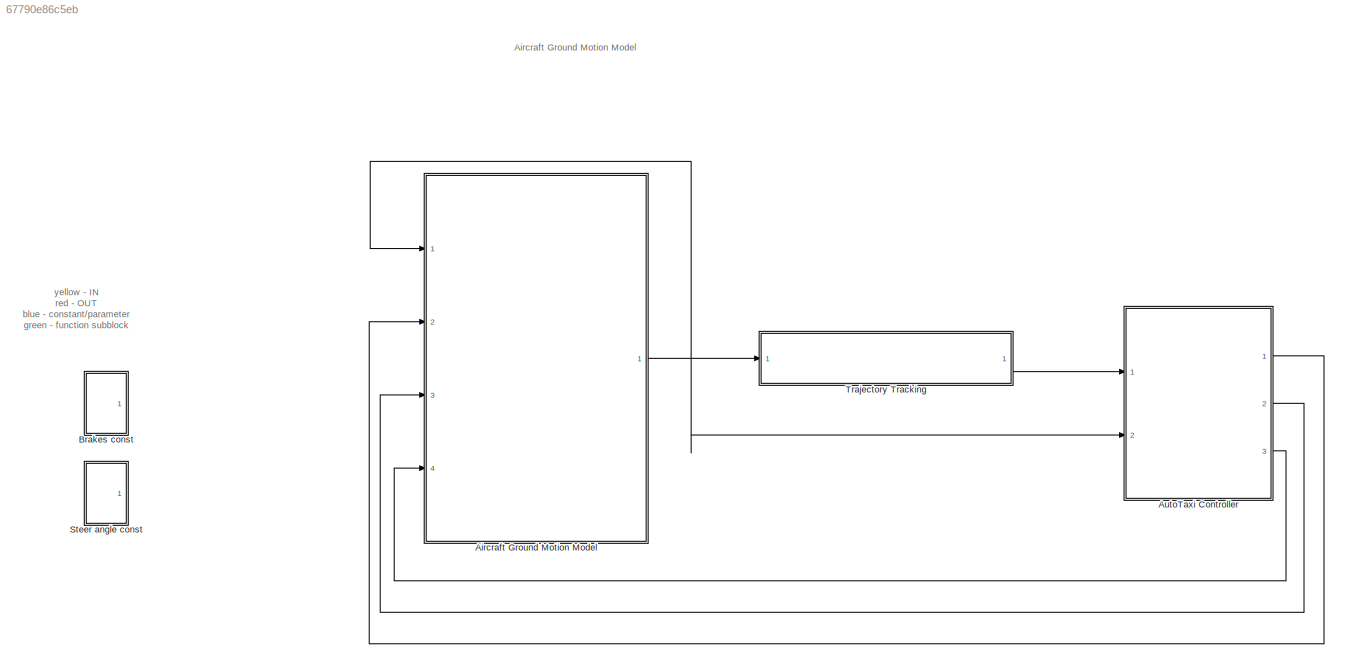
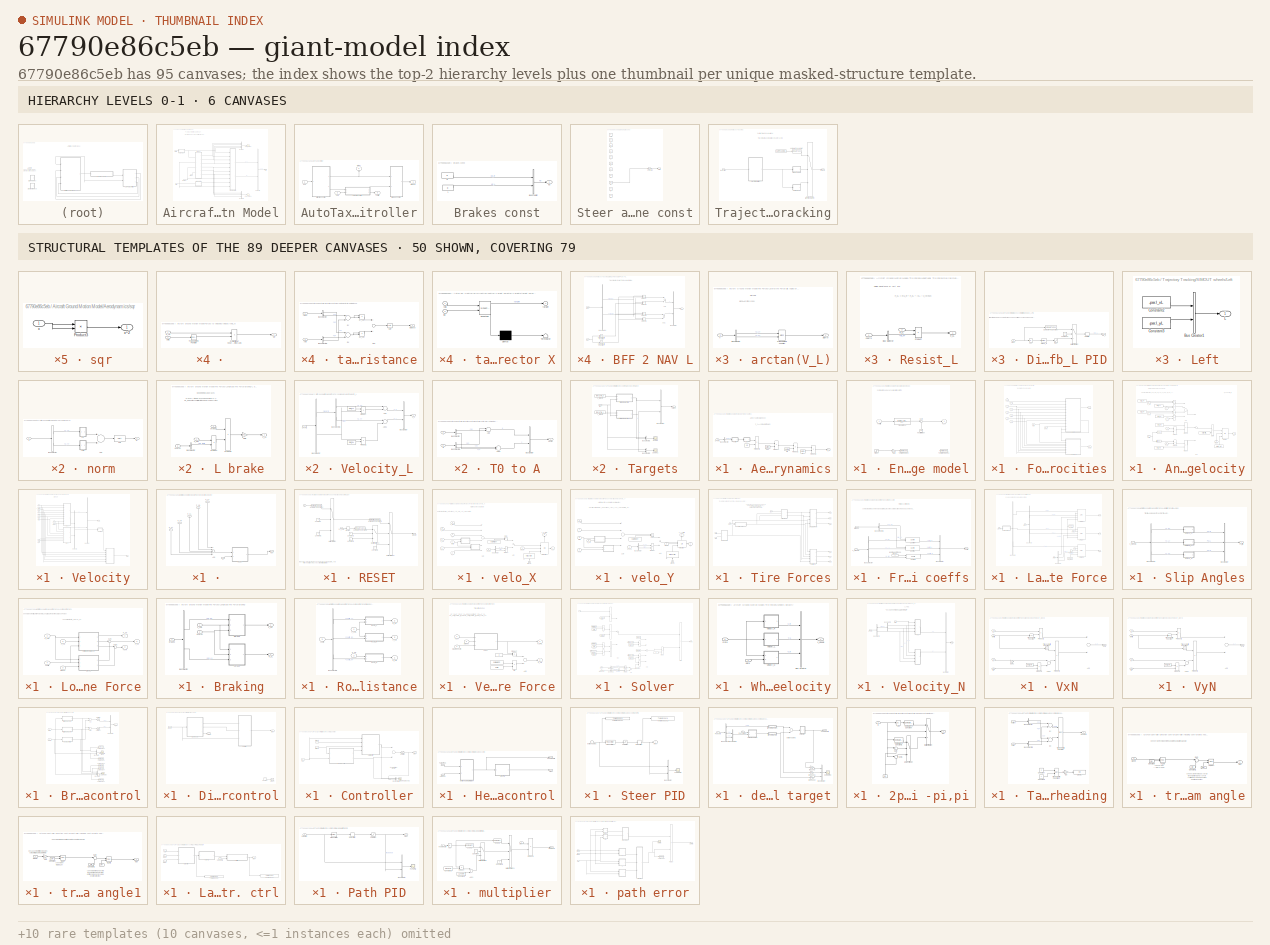
[diagram: thumbnail index - top-2 hierarchy levels (6 canvases) + 50 structural-template representatives of the remaining 89 canvases]
MODEL slx_67790e86c5eb
KIND model
BLOCK [SubSystem] Aircraft Ground Motion Model
  FunctionWithSeparateData = off
  MaskHideContents = off
  MinAlgLoopOccurrences = off
  Opaque = off
  Ports = [4, 1]
  PropExecContextOutsideSubsystem = off
  RTWSystemCode = Auto
  RequestExecContextInheritance = off
BLOCK [Outport] Aircraft Ground Motion Model/   State
  IconDisplay = Port number
BLOCK [SubSystem] Aircraft Ground Motion Model/Aerodynamics
  FunctionWithSeparateData = off
  MaskHideContents = off
  MinAlgLoopOccurrences = off
  Opaque = off
  Ports = [1, 1]
  PropExecContextOutsideSubsystem = off
  RTWSystemCode = Auto
  RequestExecContextInheritance = off
BLOCK [Constant] Aircraft Ground Motion Model/Aerodynamics/ 
  Value = 1/2
BLOCK [BusSelector] Aircraft Ground Motion Model/Aerodynamics/Bus Selector
  OutputSignals = [Vx; Vy]
  Ports = [1, 1]
BLOCK [Constant] Aircraft Ground Motion Model/Aerodynamics/Cx
  Value = par.Cx
BLOCK [Outport] Aircraft Ground Motion Model/Aerodynamics/F_xA
  IconDisplay = Port number
BLOCK [Product] Aircraft Ground Motion Model/Aerodynamics/Product
  InputSameDT = off
  OutDataTypeStr = Inherit: Inherit via internal rule
  Ports = [2, 1]
  RndMeth = Floor
  SaturateOnIntegerOverflow = off
BLOCK [Product] Aircraft Ground Motion Model/Aerodynamics/Product1
  InputSameDT = off
  OutDataTypeStr = Inherit: Inherit via internal rule
  Ports = [2, 1]
  RndMeth = Floor
  SaturateOnIntegerOverflow = off
BLOCK [Product] Aircraft Ground Motion Model/Aerodynamics/Product2
  InputSameDT = off
  OutDataTypeStr = Inherit: Inherit via internal rule
  Ports = [2, 1]
  RndMeth = Floor
  SaturateOnIntegerOverflow = off
BLOCK [Product] Aircraft Ground Motion Model/Aerodynamics/Product3
  InputSameDT = off
  OutDataTypeStr = Inherit: Inherit via internal rule
  Ports = [2, 1]
  RndMeth = Floor
  SaturateOnIntegerOverflow = off
BLOCK [Constant] Aircraft Ground Motion Model/Aerodynamics/RHO
  Value = par.rho
BLOCK [Inport] Aircraft Ground Motion Model/Aerodynamics/STATE
  IconDisplay = Port number
BLOCK [Constant] Aircraft Ground Motion Model/Aerodynamics/Sw
  Value = par.Sw
BLOCK [SubSystem] Aircraft Ground Motion Model/Aerodynamics/norm
  FunctionWithSeparateData = off
  MaskHideContents = off
  MinAlgLoopOccurrences = off
  Opaque = off
  Ports = [1, 1]
  PropExecContextOutsideSubsystem = off
  RTWSystemCode = Auto
  RequestExecContextInheritance = off
BLOCK [Sum] Aircraft Ground Motion Model/Aerodynamics/norm/Add
  InputSameDT = off
  OutDataTypeStr = Inherit: Inherit via internal rule
  Ports = [2, 1]
  SaturateOnIntegerOverflow = off
BLOCK [BusSelector] Aircraft Ground Motion Model/Aerodynamics/norm/Bus Selector
  OutputSignals = v_X,v_Y
  Ports = [1, 2]
BLOCK [Sqrt] Aircraft Ground Motion Model/Aerodynamics/norm/Sqrt
BLOCK [Inport] Aircraft Ground Motion Model/Aerodynamics/norm/V
  IconDisplay = Port number
BLOCK [SubSystem] Aircraft Ground Motion Model/Aerodynamics/norm/sqr
  FunctionWithSeparateData = off
  MaskHideContents = off
  MinAlgLoopOccurrences = off
  Opaque = off
  Ports = [1, 1]
  PropExecContextOutsideSubsystem = off
  RTWSystemCode = Auto
  RequestExecContextInheritance = off
BLOCK [Product] Aircraft Ground Motion Model/Aerodynamics/norm/sqr/Product3
  InputSameDT = off
  OutDataTypeStr = Inherit: Inherit via internal rule
  Ports = [2, 1]
  RndMeth = Floor
  SaturateOnIntegerOverflow = off
BLOCK [Inport] Aircraft Ground Motion Model/Aerodynamics/norm/sqr/x
  IconDisplay = Port number
BLOCK [Outport] Aircraft Ground Motion Model/Aerodynamics/norm/sqr/x^2
  IconDisplay = Port number
BLOCK [SubSystem] Aircraft Ground Motion Model/Aerodynamics/norm/sqr1
  FunctionWithSeparateData = off
  MaskHideContents = off
  MinAlgLoopOccurrences = off
  Opaque = off
  Ports = [1, 1]
  PropExecContextOutsideSubsystem = off
  RTWSystemCode = Auto
  RequestExecContextInheritance = off
BLOCK [Product] Aircraft Ground Motion Model/Aerodynamics/norm/sqr1/Product3
  InputSameDT = off
  OutDataTypeStr = Inherit: Inherit via internal rule
  Ports = [2, 1]
  RndMeth = Floor
  SaturateOnIntegerOverflow = off
BLOCK [Inport] Aircraft Ground Motion Model/Aerodynamics/norm/sqr1/x
  IconDisplay = Port number
BLOCK [Outport] Aircraft Ground Motion Model/Aerodynamics/norm/sqr1/x^2
  IconDisplay = Port number
BLOCK [Outport] Aircraft Ground Motion Model/Aerodynamics/norm/|V|
  IconDisplay = Port number
BLOCK [SubSystem] Aircraft Ground Motion Model/Aerodynamics/sqr
  FunctionWithSeparateData = off
  MaskHideContents = off
  MinAlgLoopOccurrences = off
  Opaque = off
  Ports = [1, 1]
  PropExecContextOutsideSubsystem = off
  RTWSystemCode = Auto
  RequestExecContextInheritance = off
BLOCK [Product] Aircraft Ground Motion Model/Aerodynamics/sqr/Product3
  InputSameDT = off
  OutDataTypeStr = Inherit: Inherit via internal rule
  Ports = [2, 1]
  RndMeth = Floor
  SaturateOnIntegerOverflow = off
BLOCK [Inport] Aircraft Ground Motion Model/Aerodynamics/sqr/x
  IconDisplay = Port number
BLOCK [Outport] Aircraft Ground Motion Model/Aerodynamics/sqr/x^2
  IconDisplay = Port number
BLOCK [Inport] Aircraft Ground Motion Model/Brakes
  IconDisplay = Port number
  Port = 2
BLOCK [BusCreator] Aircraft Ground Motion Model/Bus Creator
  DisplayOption = bar
  Ports = [4, 1]
BLOCK [BusCreator] Aircraft Ground Motion Model/Bus Creator1
  DisplayOption = bar
  Inputs = 2
  Ports = [2, 1]
BLOCK [BusCreator] Aircraft Ground Motion Model/Bus Creator3
  DisplayOption = bar
  Inputs = 3
  Ports = [3, 1]
BLOCK [SubSystem] Aircraft Ground Motion Model/Engine model
  FunctionWithSeparateData = off
  MaskHideContents = off
  MinAlgLoopOccurrences = off
  Opaque = off
  Ports = [1, 1]
  PropExecContextOutsideSubsystem = off
  RTWSystemCode = Auto
  RequestExecContextInheritance = off
BLOCK [Outport] Aircraft Ground Motion Model/Engine model/F_xT
  IconDisplay = Port number
BLOCK [Gain] Aircraft Ground Motion Model/Engine model/Gain
  Commented = on
  Gain = 10000
  OutDataTypeStr = Inherit: Inherit via internal rule
  ParamDataTypeStr = Inherit: Inherit via internal rule
  SaturateOnIntegerOverflow = off
BLOCK [Step] Aircraft Ground Motion Model/Engine model/Step1
  Commented = on
  SampleTime = 0
BLOCK [Sum] Aircraft Ground Motion Model/Engine model/Sum
  IconShape = round
  InputSameDT = off
  Inputs = |++
  OutDataTypeStr = Inherit: Inherit via internal rule
  Ports = [2, 1]
  SaturateOnIntegerOverflow = off
BLOCK [Inport] Aircraft Ground Motion Model/Engine model/Throttle
  IconDisplay = Port number
BLOCK [ToWorkspace] Aircraft Ground Motion Model/Engine model/To Workspace
  Commented = on
  MaxDataPoints = inf
  Ports = [1]
  SampleTime = -1
  SaveFormat = Timeseries
  VariableName = step
BLOCK [ToWorkspace] Aircraft Ground Motion Model/Engine model/To Workspace1
  Commented = on
  MaxDataPoints = inf
  Ports = [1]
  SampleTime = -1
  SaveFormat = Timeseries
  VariableName = thrust
BLOCK [TransferFcn] Aircraft Ground Motion Model/Engine model/Transfer Fcn
  Numerator = [par.max_thrust]
BLOCK [Constant] Aircraft Ground Motion Model/Engine model/neutral thrust
  Value = 100
BLOCK [SubSystem] Aircraft Ground Motion Model/Forces to Velocities
  FunctionWithSeparateData = off
  MaskHideContents = off
  MinAlgLoopOccurrences = off
  Opaque = off
  Ports = [10, 2]
  PropExecContextOutsideSubsystem = off
  RTWSystemCode = Auto
  RequestExecContextInheritance = off
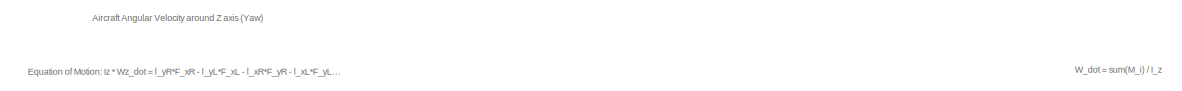
[diagram: Aircraft Ground Motion Model/Forces to Velocities/Angular Velocity - part 1/2, full width, top band]
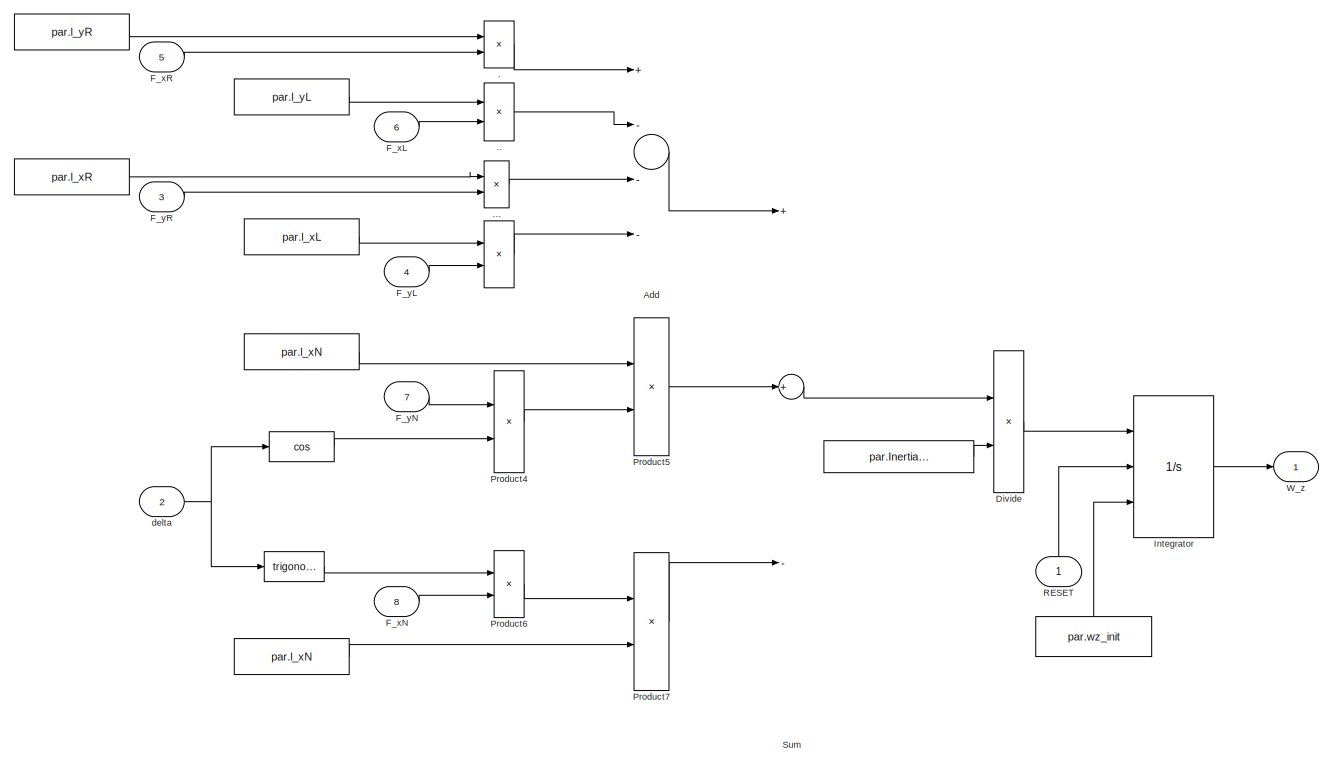
[diagram: Aircraft Ground Motion Model/Forces to Velocities/Angular Velocity - part 2/2, most of the canvas]
BLOCK [SubSystem] Aircraft Ground Motion Model/Forces to Velocities/Angular Velocity
  FunctionWithSeparateData = off
  MaskHideContents = off
  MinAlgLoopOccurrences = off
  Opaque = off
  Ports = [8, 1]
  PropExecContextOutsideSubsystem = off
  RTWSystemCode = Auto
  RequestExecContextInheritance = off
BLOCK [Constant] Aircraft Ground Motion Model/Forces to Velocities/Angular Velocity/ 
  Value = par.l_yL
BLOCK [Constant] Aircraft Ground Motion Model/Forces to Velocities/Angular Velocity/  
  Value = par.l_yR
BLOCK [Constant] Aircraft Ground Motion Model/Forces to Velocities/Angular Velocity/   
  Value = par.l_xR
BLOCK [Constant] Aircraft Ground Motion Model/Forces to Velocities/Angular Velocity/    
  Value = par.l_xL
BLOCK [Constant] Aircraft Ground Motion Model/Forces to Velocities/Angular Velocity/     
  Value = par.wz_init
BLOCK [Constant] Aircraft Ground Motion Model/Forces to Velocities/Angular Velocity/       
  Value = par.Inertia_z
BLOCK [Constant] Aircraft Ground Motion Model/Forces to Velocities/Angular Velocity/        
  Value = par.l_xN
BLOCK [Constant] Aircraft Ground Motion Model/Forces to Velocities/Angular Velocity/           
  Value = par.l_xN
BLOCK [Trigonometry] Aircraft Ground Motion Model/Forces to Velocities/Angular Velocity/                      
  Ports = [1, 1]
BLOCK [Trigonometry] Aircraft Ground Motion Model/Forces to Velocities/Angular Velocity/                                             
  Operator = cos
  Ports = [1, 1]
BLOCK [Product] Aircraft Ground Motion Model/Forces to Velocities/Angular Velocity/                                                           
  InputSameDT = off
  OutDataTypeStr = Inherit: Inherit via internal rule
  Ports = [2, 1]
  RndMeth = Floor
  SaturateOnIntegerOverflow = off
BLOCK [Product] Aircraft Ground Motion Model/Forces to Velocities/Angular Velocity/.
  InputSameDT = off
  OutDataTypeStr = Inherit: Inherit via internal rule
  Ports = [2, 1]
  RndMeth = Floor
  SaturateOnIntegerOverflow = off
BLOCK [Product] Aircraft Ground Motion Model/Forces to Velocities/Angular Velocity/..
  InputSameDT = off
  OutDataTypeStr = Inherit: Inherit via internal rule
  Ports = [2, 1]
  RndMeth = Floor
  SaturateOnIntegerOverflow = off
BLOCK [Product] Aircraft Ground Motion Model/Forces to Velocities/Angular Velocity/...
  InputSameDT = off
  OutDataTypeStr = Inherit: Inherit via internal rule
  Ports = [2, 1]
  RndMeth = Floor
  SaturateOnIntegerOverflow = off
BLOCK [Sum] Aircraft Ground Motion Model/Forces to Velocities/Angular Velocity/Add
  InputSameDT = off
  Inputs = +---
  OutDataTypeStr = Inherit: Inherit via internal rule
  Ports = [4, 1]
  SaturateOnIntegerOverflow = off
BLOCK [Product] Aircraft Ground Motion Model/Forces to Velocities/Angular Velocity/Divide
  InputSameDT = off
  Inputs = */
  OutDataTypeStr = Inherit: Inherit via internal rule
  Ports = [2, 1]
  RndMeth = Floor
  SaturateOnIntegerOverflow = off
BLOCK [Inport] Aircraft Ground Motion Model/Forces to Velocities/Angular Velocity/F_xL
  IconDisplay = Port number
  Port = 6
BLOCK [Inport] Aircraft Ground Motion Model/Forces to Velocities/Angular Velocity/F_xN
  IconDisplay = Port number
  Port = 8
BLOCK [Inport] Aircraft Ground Motion Model/Forces to Velocities/Angular Velocity/F_xR
  IconDisplay = Port number
  Port = 5
BLOCK [Inport] Aircraft Ground Motion Model/Forces to Velocities/Angular Velocity/F_yL
  IconDisplay = Port number
  Port = 4
BLOCK [Inport] Aircraft Ground Motion Model/Forces to Velocities/Angular Velocity/F_yN
  IconDisplay = Port number
  Port = 7
BLOCK [Inport] Aircraft Ground Motion Model/Forces to Velocities/Angular Velocity/F_yR
  IconDisplay = Port number
  Port = 3
BLOCK [Integrator] Aircraft Ground Motion Model/Forces to Velocities/Angular Velocity/Integrator
  ExternalReset = level hold
  InitialConditionSource = external
  Ports = [3, 1]
BLOCK [Product] Aircraft Ground Motion Model/Forces to Velocities/Angular Velocity/Product4
  InputSameDT = off
  OutDataTypeStr = Inherit: Inherit via internal rule
  Ports = [2, 1]
  RndMeth = Floor
  SaturateOnIntegerOverflow = off
BLOCK [Product] Aircraft Ground Motion Model/Forces to Velocities/Angular Velocity/Product5
  InputSameDT = off
  OutDataTypeStr = Inherit: Inherit via internal rule
  Ports = [2, 1]
  RndMeth = Floor
  SaturateOnIntegerOverflow = off
BLOCK [Product] Aircraft Ground Motion Model/Forces to Velocities/Angular Velocity/Product6
  InputSameDT = off
  OutDataTypeStr = Inherit: Inherit via internal rule
  Ports = [2, 1]
  RndMeth = Floor
  SaturateOnIntegerOverflow = off
BLOCK [Product] Aircraft Ground Motion Model/Forces to Velocities/Angular Velocity/Product7
  InputSameDT = off
  OutDataTypeStr = Inherit: Inherit via internal rule
  Ports = [2, 1]
  RndMeth = Floor
  SaturateOnIntegerOverflow = off
BLOCK [Inport] Aircraft Ground Motion Model/Forces to Velocities/Angular Velocity/RESET
  IconDisplay = Port number
BLOCK [Sum] Aircraft Ground Motion Model/Forces to Velocities/Angular Velocity/Sum
  InputSameDT = off
  Inputs = ++-
  OutDataTypeStr = Inherit: Inherit via internal rule
  Ports = [3, 1]
  SaturateOnIntegerOverflow = off
BLOCK [Outport] Aircraft Ground Motion Model/Forces to Velocities/Angular Velocity/W_z
  IconDisplay = Port number
BLOCK [Inport] Aircraft Ground Motion Model/Forces to Velocities/Angular Velocity/delta
  IconDisplay = Port number
  Port = 2
BLOCK [Inport] Aircraft Ground Motion Model/Forces to Velocities/F_xA
  IconDisplay = Port number
  Port = 9
BLOCK [Inport] Aircraft Ground Motion Model/Forces to Velocities/F_xL
  IconDisplay = Port number
  Port = 3
BLOCK [Inport] Aircraft Ground Motion Model/Forces to Velocities/F_xN
  IconDisplay = Port number
  Port = 2
BLOCK [Inport] Aircraft Ground Motion Model/Forces to Velocities/F_xR
  IconDisplay = Port number
  Port = 4
BLOCK [Inport] Aircraft Ground Motion Model/Forces to Velocities/F_xT
  IconDisplay = Port number
BLOCK [Inport] Aircraft Ground Motion Model/Forces to Velocities/F_yL
  IconDisplay = Port number
  Port = 6
BLOCK [Inport] Aircraft Ground Motion Model/Forces to Velocities/F_yN
  IconDisplay = Port number
  Port = 5
BLOCK [Inport] Aircraft Ground Motion Model/Forces to Velocities/F_yR
  IconDisplay = Port number
  Port = 7
BLOCK [Inport] Aircraft Ground Motion Model/Forces to Velocities/STATE
  IconDisplay = Port number
  Port = 10
BLOCK [SubSystem] Aircraft Ground Motion Model/Forces to Velocities/Velocity
  FunctionWithSeparateData = off
  MaskHideContents = off
  MinAlgLoopOccurrences = off
  Opaque = off
  Ports = [11, 2]
  PropExecContextOutsideSubsystem = off
  RTWSystemCode = Auto
  RequestExecContextInheritance = off
BLOCK [SubSystem] Aircraft Ground Motion Model/Forces to Velocities/Velocity/   
  FunctionWithSeparateData = off
  MaskHideContents = off
  MinAlgLoopOccurrences = off
  Opaque = off
  Ports = [6, 1]
  PropExecContextOutsideSubsystem = off
  RTWSystemCode = Auto
  RequestExecContextInheritance = off
BLOCK [Sum] Aircraft Ground Motion Model/Forces to Velocities/Velocity/   /Add
  InputSameDT = off
  Inputs = +----
  OutDataTypeStr = Inherit: Inherit via internal rule
  Ports = [5, 1]
  SaturateOnIntegerOverflow = off
BLOCK [Inport] Aircraft Ground Motion Model/Forces to Velocities/Velocity/   /F_xA
  IconDisplay = Port number
  Port = 2
BLOCK [Inport] Aircraft Ground Motion Model/Forces to Velocities/Velocity/   /F_xL
  IconDisplay = Port number
  Port = 5
BLOCK [Inport] Aircraft Ground Motion Model/Forces to Velocities/Velocity/   /F_xN
  IconDisplay = Port number
  Port = 4
BLOCK [Inport] Aircraft Ground Motion Model/Forces to Velocities/Velocity/   /F_xR
  IconDisplay = Port number
  Port = 6
BLOCK [Inport] Aircraft Ground Motion Model/Forces to Velocities/Velocity/   /F_xT
  IconDisplay = Port number
  Port = 3
BLOCK [SubSystem] Aircraft Ground Motion Model/Forces to Velocities/Velocity/   /RESET
  FunctionWithSeparateData = off
  MaskHideContents = off
  MinAlgLoopOccurrences = off
  Opaque = off
  Ports = [2, 1]
  PropExecContextOutsideSubsystem = off
  RTWSystemCode = Auto
  RequestExecContextInheritance = off
BLOCK [Reference] Aircraft Ground Motion Model/Forces to Velocities/Velocity/   /RESET/Compare To Constant  REF=simulink/Logic and Bit
Operations/Compare
To Constant
  OutDataTypeStr = boolean
  Ports = [1, 1]
  SourceBlock = simulink/Logic and Bit\nOperations/Compare\nTo Constant
  SourceType = Compare To Constant
  ZeroCross = on
  const = par.min_velo
  relop = <=
BLOCK [Reference] Aircraft Ground Motion Model/Forces to Velocities/Velocity/   /RESET/Compare To Constant1  REF=simulink/Logic and Bit
Operations/Compare
To Constant
  OutDataTypeStr = boolean
  Ports = [1, 1]
  SourceBlock = simulink/Logic and Bit\nOperations/Compare\nTo Constant
  SourceType = Compare To Constant
  ZeroCross = on
  const = 0
  relop = ==
BLOCK [Reference] Aircraft Ground Motion Model/Forces to Velocities/Velocity/   /RESET/Compare To Constant2  REF=simulink/Logic and Bit
Operations/Compare
To Constant
  OutDataTypeStr = boolean
  Ports = [1, 1]
  SourceBlock = simulink/Logic and Bit\nOperations/Compare\nTo Constant
  SourceType = Compare To Constant
  ZeroCross = on
  const = par.min_force
  relop = >=
BLOCK [Constant] Aircraft Ground Motion Model/Forces to Velocities/Velocity/   /RESET/Constant
  Value = 0
BLOCK [Constant] Aircraft Ground Motion Model/Forces to Velocities/Velocity/   /RESET/Constant1
BLOCK [Constant] Aircraft Ground Motion Model/Forces to Velocities/Velocity/   /RESET/Constant2
BLOCK [Constant] Aircraft Ground Motion Model/Forces to Velocities/Velocity/   /RESET/Constant3
  Value = 0
BLOCK [Constant] Aircraft Ground Motion Model/Forces to Velocities/Velocity/   /RESET/Constant4
  Value = 0
BLOCK [Inport] Aircraft Ground Motion Model/Forces to Velocities/Velocity/   /RESET/Fx_sum
  IconDisplay = Port number
BLOCK [Memory] Aircraft Ground Motion Model/Forces to Velocities/Velocity/   /RESET/Memory
BLOCK [MultiPortSwitch] Aircraft Ground Motion Model/Forces to Velocities/Velocity/   /RESET/Multiport Switch
  DataPortOrder = Zero-based contiguous
  InputSameDT = off
  Inputs = 2
  Ports = [3, 1]
  SaturateOnIntegerOverflow = off
BLOCK [MultiPortSwitch] Aircraft Ground Motion Model/Forces to Velocities/Velocity/   /RESET/Multiport Switch1
  DataPortOrder = Zero-based contiguous
  InputSameDT = off
  Inputs = 2
  Ports = [3, 1]
  SaturateOnIntegerOverflow = off
BLOCK [MultiPortSwitch] Aircraft Ground Motion Model/Forces to Velocities/Velocity/   /RESET/Multiport Switch2
  DataPortOrder = Zero-based contiguous
  InputSameDT = off
  Inputs = 2
  Ports = [3, 1]
  SaturateOnIntegerOverflow = off
BLOCK [Outport] Aircraft Ground Motion Model/Forces to Velocities/Velocity/   /RESET/RESET
  IconDisplay = Port number
BLOCK [Inport] Aircraft Ground Motion Model/Forces to Velocities/Velocity/   /RESET/V
  IconDisplay = Port number
  Port = 2
BLOCK [Outport] Aircraft Ground Motion Model/Forces to Velocities/Velocity/   /RST
  IconDisplay = Port number
BLOCK [Inport] Aircraft Ground Motion Model/Forces to Velocities/Velocity/   /V
  IconDisplay = Port number
BLOCK [BusCreator] Aircraft Ground Motion Model/Forces to Velocities/Velocity/Bus Creator
  DisplayOption = bar
  Inputs = 2
  Ports = [2, 1]
BLOCK [BusCreator] Aircraft Ground Motion Model/Forces to Velocities/Velocity/Bus Creator1
  DisplayOption = bar
  Inputs = 2
  Ports = [2, 1]
BLOCK [Inport] Aircraft Ground Motion Model/Forces to Velocities/Velocity/F_Thrust
  IconDisplay = Port number
  Port = 2
BLOCK [Inport] Aircraft Ground Motion Model/Forces to Velocities/Velocity/F_xA
  IconDisplay = Port number
BLOCK [Inport] Aircraft Ground Motion Model/Forces to Velocities/Velocity/F_xL
  IconDisplay = Port number
  Port = 5
BLOCK [Inport] Aircraft Ground Motion Model/Forces to Velocities/Velocity/F_xN
  IconDisplay = Port number
  Port = 3
BLOCK [Inport] Aircraft Ground Motion Model/Forces to Velocities/Velocity/F_xR
  IconDisplay = Port number
  Port = 6
BLOCK [Inport] Aircraft Ground Motion Model/Forces to Velocities/Velocity/F_yL
  IconDisplay = Port number
  Port = 7
BLOCK [Inport] Aircraft Ground Motion Model/Forces to Velocities/Velocity/F_yN
  IconDisplay = Port number
  Port = 4
BLOCK [Inport] Aircraft Ground Motion Model/Forces to Velocities/Velocity/F_yR
  IconDisplay = Port number
  Port = 8
BLOCK [Inport] Aircraft Ground Motion Model/Forces to Velocities/Velocity/RESET
  IconDisplay = Port number
  Port = 11
BLOCK [Outport] Aircraft Ground Motion Model/Forces to Velocities/Velocity/RST
  IconDisplay = Port number
  Port = 2
BLOCK [Inport] Aircraft Ground Motion Model/Forces to Velocities/Velocity/STATE
  IconDisplay = Port number
  Port = 10
BLOCK [Outport] Aircraft Ground Motion Model/Forces to Velocities/Velocity/V_out
  IconDisplay = Port number
BLOCK [Inport] Aircraft Ground Motion Model/Forces to Velocities/Velocity/delta
  IconDisplay = Port number
  Port = 9
BLOCK [SubSystem] Aircraft Ground Motion Model/Forces to Velocities/Velocity/norm
  FunctionWithSeparateData = off
  MaskHideContents = off
  MinAlgLoopOccurrences = off
  Opaque = off
  Ports = [1, 1]
  PropExecContextOutsideSubsystem = off
  RTWSystemCode = Auto
  RequestExecContextInheritance = off
BLOCK [Sum] Aircraft Ground Motion Model/Forces to Velocities/Velocity/norm/Add
  InputSameDT = off
  OutDataTypeStr = Inherit: Inherit via internal rule
  Ports = [2, 1]
  SaturateOnIntegerOverflow = off
BLOCK [BusSelector] Aircraft Ground Motion Model/Forces to Velocities/Velocity/norm/Bus Selector
  OutputSignals = signal1,signal2
  Ports = [1, 2]
BLOCK [Sqrt] Aircraft Ground Motion Model/Forces to Velocities/Velocity/norm/Sqrt
BLOCK [Inport] Aircraft Ground Motion Model/Forces to Velocities/Velocity/norm/V
  IconDisplay = Port number
BLOCK [SubSystem] Aircraft Ground Motion Model/Forces to Velocities/Velocity/norm/sqr
  FunctionWithSeparateData = off
  MaskHideContents = off
  MinAlgLoopOccurrences = off
  Opaque = off
  Ports = [1, 1]
  PropExecContextOutsideSubsystem = off
  RTWSystemCode = Auto
  RequestExecContextInheritance = off
BLOCK [Product] Aircraft Ground Motion Model/Forces to Velocities/Velocity/norm/sqr/Product3
  InputSameDT = off
  OutDataTypeStr = Inherit: Inherit via internal rule
  Ports = [2, 1]
  RndMeth = Floor
  SaturateOnIntegerOverflow = off
BLOCK [Inport] Aircraft Ground Motion Model/Forces to Velocities/Velocity/norm/sqr/x
  IconDisplay = Port number
BLOCK [Outport] Aircraft Ground Motion Model/Forces to Velocities/Velocity/norm/sqr/x^2
  IconDisplay = Port number
BLOCK [SubSystem] Aircraft Ground Motion Model/Forces to Velocities/Velocity/norm/sqr1
  FunctionWithSeparateData = off
  MaskHideContents = off
  MinAlgLoopOccurrences = off
  Opaque = off
  Ports = [1, 1]
  PropExecContextOutsideSubsystem = off
  RTWSystemCode = Auto
  RequestExecContextInheritance = off
BLOCK [Product] Aircraft Ground Motion Model/Forces to Velocities/Velocity/norm/sqr1/Product3
  InputSameDT = off
  OutDataTypeStr = Inherit: Inherit via internal rule
  Ports = [2, 1]
  RndMeth = Floor
  SaturateOnIntegerOverflow = off
BLOCK [Inport] Aircraft Ground Motion Model/Forces to Velocities/Velocity/norm/sqr1/x
  IconDisplay = Port number
BLOCK [Outport] Aircraft Ground Motion Model/Forces to Velocities/Velocity/norm/sqr1/x^2
  IconDisplay = Port number
BLOCK [Outport] Aircraft Ground Motion Model/Forces to Velocities/Velocity/norm/|V|
  IconDisplay = Port number
BLOCK [SubSystem] Aircraft Ground Motion Model/Forces to Velocities/Velocity/velo_X
  FunctionWithSeparateData = off
  MaskHideContents = off
  MinAlgLoopOccurrences = off
  Opaque = off
  Ports = [9, 2]
  PropExecContextOutsideSubsystem = off
  RTWSystemCode = Auto
  RequestExecContextInheritance = off
BLOCK [Constant] Aircraft Ground Motion Model/Forces to Velocities/Velocity/velo_X/ 
  Value = par.weight
BLOCK [SubSystem] Aircraft Ground Motion Model/Forces to Velocities/Velocity/velo_X/  
  FunctionWithSeparateData = off
  MaskHideContents = off
  MinAlgLoopOccurrences = off
  Opaque = off
  Ports = [2, 1]
  PropExecContextOutsideSubsystem = off
  RTWSystemCode = Auto
  RequestExecContextInheritance = off
BLOCK [SubSystem] Aircraft Ground Motion Model/Forces to Velocities/Velocity/velo_X/    
  FunctionWithSeparateData = off
  MaskHideContents = off
  MinAlgLoopOccurrences = off
  Opaque = off
  Ports = [2, 1]
  PropExecContextOutsideSubsystem = off
  RTWSystemCode = Auto
  RequestExecContextInheritance = off
BLOCK [Inport] Aircraft Ground Motion Model/Forces to Velocities/Velocity/velo_X/    /F_xN
  IconDisplay = Port number
BLOCK [Product] Aircraft Ground Motion Model/Forces to Velocities/Velocity/velo_X/    /Projection of nose-wheel resistance force into X axis
  InputSameDT = off
  OutDataTypeStr = Inherit: Inherit via internal rule
  Ports = [2, 1]
  RndMeth = Floor
  SaturateOnIntegerOverflow = off
BLOCK [Trigonometry] Aircraft Ground Motion Model/Forces to Velocities/Velocity/velo_X/    /Trigonometric Function
  Operator = cos
  Ports = [1, 1]
BLOCK [Outport] Aircraft Ground Motion Model/Forces to Velocities/Velocity/velo_X/    /cos
  IconDisplay = Port number
BLOCK [Inport] Aircraft Ground Motion Model/Forces to Velocities/Velocity/velo_X/    /delta
  IconDisplay = Port number
  Port = 2
BLOCK [Inport] Aircraft Ground Motion Model/Forces to Velocities/Velocity/velo_X/  /F_yN
  IconDisplay = Port number
  Port = 2
BLOCK [Product] Aircraft Ground Motion Model/Forces to Velocities/Velocity/velo_X/  /Projection of nose-wheel lateral force into X-axis
  InputSameDT = off
  OutDataTypeStr = Inherit: Inherit via internal rule
  Ports = [2, 1]
  RndMeth = Floor
  SaturateOnIntegerOverflow = off
BLOCK [Trigonometry] Aircraft Ground Motion Model/Forces to Velocities/Velocity/velo_X/  /Trigonometric Function
  Ports = [1, 1]
BLOCK [Inport] Aircraft Ground Motion Model/Forces to Velocities/Velocity/velo_X/  /delta
  IconDisplay = Port number
BLOCK [Outport] Aircraft Ground Motion Model/Forces to Velocities/Velocity/velo_X/  /sin
  IconDisplay = Port number
BLOCK [Sum] Aircraft Ground Motion Model/Forces to Velocities/Velocity/velo_X/Add
  InputSameDT = off
  OutDataTypeStr = Inherit: Inherit via internal rule
  Ports = [2, 1]
  SaturateOnIntegerOverflow = off
BLOCK [BusSelector] Aircraft Ground Motion Model/Forces to Velocities/Velocity/velo_X/Bus Selector
  OutputSignals = [Vx; Vy].v_Y,Wz
  Ports = [1, 2]
BLOCK [Product] Aircraft Ground Motion Model/Forces to Velocities/Velocity/velo_X/Divide
  InputSameDT = off
  Inputs = */
  OutDataTypeStr = Inherit: Inherit via internal rule
  Ports = [2, 1]
  RndMeth = Floor
  SaturateOnIntegerOverflow = off
BLOCK [Inport] Aircraft Ground Motion Model/Forces to Velocities/Velocity/velo_X/F_thrust
  IconDisplay = Port number
  Port = 2
BLOCK [Inport] Aircraft Ground Motion Model/Forces to Velocities/Velocity/velo_X/F_xA
  IconDisplay = Port number
BLOCK [Inport] Aircraft Ground Motion Model/Forces to Velocities/Velocity/velo_X/F_xL
  IconDisplay = Port number
  Port = 4
BLOCK [Inport] Aircraft Ground Motion Model/Forces to Velocities/Velocity/velo_X/F_xN
  IconDisplay = Port number
  Port = 5
BLOCK [Inport] Aircraft Ground Motion Model/Forces to Velocities/Velocity/velo_X/F_xR
  IconDisplay = Port number
  Port = 3
BLOCK [Inport] Aircraft Ground Motion Model/Forces to Velocities/Velocity/velo_X/F_yN
  IconDisplay = Port number
  Port = 6
BLOCK [Ground] Aircraft Ground Motion Model/Forces to Velocities/Velocity/velo_X/Ground
BLOCK [InitialCondition] Aircraft Ground Motion Model/Forces to Velocities/Velocity/velo_X/IC
  Value = par.vx_init
BLOCK [Integrator] Aircraft Ground Motion Model/Forces to Velocities/Velocity/velo_X/Integrator
  ExternalReset = level hold
  InitialConditionSource = external
  Ports = [3, 1, 0, 0, 1]
  ShowStatePort = on
BLOCK [Product] Aircraft Ground Motion Model/Forces to Velocities/Velocity/velo_X/Product
  InputSameDT = off
  OutDataTypeStr = Inherit: Inherit via internal rule
  Ports = [2, 1]
  RndMeth = Floor
  SaturateOnIntegerOverflow = off
BLOCK [Inport] Aircraft Ground Motion Model/Forces to Velocities/Velocity/velo_X/RESET
  IconDisplay = Port number
  Port = 9
BLOCK [Inport] Aircraft Ground Motion Model/Forces to Velocities/Velocity/velo_X/STATE
  IconDisplay = Port number
  Port = 8
BLOCK [Sum] Aircraft Ground Motion Model/Forces to Velocities/Velocity/velo_X/Sum
  InputSameDT = off
  Inputs = +-----
  OutDataTypeStr = Inherit: Inherit via internal rule
  Ports = [6, 1]
  SaturateOnIntegerOverflow = off
BLOCK [Inport] Aircraft Ground Motion Model/Forces to Velocities/Velocity/velo_X/delta
  IconDisplay = Port number
  Port = 7
BLOCK [Outport] Aircraft Ground Motion Model/Forces to Velocities/Velocity/velo_X/v_X
  IconDisplay = Port number
BLOCK [Outport] Aircraft Ground Motion Model/Forces to Velocities/Velocity/velo_X/v_X_state
  IconDisplay = Port number
  Port = 2
BLOCK [SubSystem] Aircraft Ground Motion Model/Forces to Velocities/Velocity/velo_Y
  FunctionWithSeparateData = off
  MaskHideContents = off
  MinAlgLoopOccurrences = off
  Opaque = off
  Ports = [7, 2]
  PropExecContextOutsideSubsystem = off
  RTWSystemCode = Auto
  RequestExecContextInheritance = off
BLOCK [Constant] Aircraft Ground Motion Model/Forces to Velocities/Velocity/velo_Y/ 
  Value = par.weight
BLOCK [SubSystem] Aircraft Ground Motion Model/Forces to Velocities/Velocity/velo_Y/   
  FunctionWithSeparateData = off
  MaskHideContents = off
  MinAlgLoopOccurrences = off
  Opaque = off
  Ports = [2, 1]
  PropExecContextOutsideSubsystem = off
  RTWSystemCode = Auto
  RequestExecContextInheritance = off
BLOCK [SubSystem] Aircraft Ground Motion Model/Forces to Velocities/Velocity/velo_Y/       
  FunctionWithSeparateData = off
  MaskHideContents = off
  MinAlgLoopOccurrences = off
  Opaque = off
  Ports = [2, 1]
  PropExecContextOutsideSubsystem = off
  RTWSystemCode = Auto
  RequestExecContextInheritance = off
BLOCK [Inport] Aircraft Ground Motion Model/Forces to Velocities/Velocity/velo_Y/       /F_xN
  IconDisplay = Port number
  Port = 2
BLOCK [Outport] Aircraft Ground Motion Model/Forces to Velocities/Velocity/velo_Y/       /Out1
  IconDisplay = Port number
BLOCK [Product] Aircraft Ground Motion Model/Forces to Velocities/Velocity/velo_Y/       /Projection of nose-wheel resistance force into Y-axis
  InputSameDT = off
  OutDataTypeStr = Inherit: Inherit via internal rule
  Ports = [2, 1]
  RndMeth = Floor
  SaturateOnIntegerOverflow = off
BLOCK [Trigonometry] Aircraft Ground Motion Model/Forces to Velocities/Velocity/velo_Y/       /Trigonometric Function
  Ports = [1, 1]
BLOCK [Inport] Aircraft Ground Motion Model/Forces to Velocities/Velocity/velo_Y/       /delta
  IconDisplay = Port number
BLOCK [Inport] Aircraft Ground Motion Model/Forces to Velocities/Velocity/velo_Y/   /F_yN
  IconDisplay = Port number
  Port = 2
BLOCK [Product] Aircraft Ground Motion Model/Forces to Velocities/Velocity/velo_Y/   /Projection of nose-wheel lateral force into Y axis
  InputSameDT = off
  OutDataTypeStr = Inherit: Inherit via internal rule
  Ports = [2, 1]
  RndMeth = Floor
  SaturateOnIntegerOverflow = off
BLOCK [Trigonometry] Aircraft Ground Motion Model/Forces to Velocities/Velocity/velo_Y/   /Trigonometric Function
  Operator = cos
  Ports = [1, 1]
BLOCK [Outport] Aircraft Ground Motion Model/Forces to Velocities/Velocity/velo_Y/   /cos
  IconDisplay = Port number
BLOCK [Inport] Aircraft Ground Motion Model/Forces to Velocities/Velocity/velo_Y/   /delta
  IconDisplay = Port number
BLOCK [Sum] Aircraft Ground Motion Model/Forces to Velocities/Velocity/velo_Y/Add
  InputSameDT = off
  Inputs = +-
  OutDataTypeStr = Inherit: Inherit via internal rule
  Ports = [2, 1]
  SaturateOnIntegerOverflow = off
BLOCK [BusSelector] Aircraft Ground Motion Model/Forces to Velocities/Velocity/velo_Y/Bus Selector
  OutputSignals = [Vx; Vy].v_X,Wz
  Ports = [1, 2]
BLOCK [Product] Aircraft Ground Motion Model/Forces to Velocities/Velocity/velo_Y/Divide
  InputSameDT = off
  Inputs = */
  OutDataTypeStr = Inherit: Inherit via internal rule
  Ports = [2, 1]
  RndMeth = Floor
  SaturateOnIntegerOverflow = off
BLOCK [Inport] Aircraft Ground Motion Model/Forces to Velocities/Velocity/velo_Y/F_xN
  IconDisplay = Port number
  Port = 5
BLOCK [Inport] Aircraft Ground Motion Model/Forces to Velocities/Velocity/velo_Y/F_yL
  IconDisplay = Port number
  Port = 7
BLOCK [Inport] Aircraft Ground Motion Model/Forces to Velocities/Velocity/velo_Y/F_yN
  IconDisplay = Port number
  Port = 4
BLOCK [Inport] Aircraft Ground Motion Model/Forces to Velocities/Velocity/velo_Y/F_yR
  IconDisplay = Port number
  Port = 6
BLOCK [Ground] Aircraft Ground Motion Model/Forces to Velocities/Velocity/velo_Y/Ground
BLOCK [InitialCondition] Aircraft Ground Motion Model/Forces to Velocities/Velocity/velo_Y/IC
  Value = par.vy_init
BLOCK [Integrator] Aircraft Ground Motion Model/Forces to Velocities/Velocity/velo_Y/Integrator
  ExternalReset = level hold
  InitialConditionSource = external
  Ports = [3, 1, 0, 0, 1]
  ShowStatePort = on
BLOCK [Product] Aircraft Ground Motion Model/Forces to Velocities/Velocity/velo_Y/Product
  InputSameDT = off
  OutDataTypeStr = Inherit: Inherit via internal rule
  Ports = [2, 1]
  RndMeth = Floor
  SaturateOnIntegerOverflow = off
BLOCK [Inport] Aircraft Ground Motion Model/Forces to Velocities/Velocity/velo_Y/RESET
  IconDisplay = Port number
  Port = 2
BLOCK [Inport] Aircraft Ground Motion Model/Forces to Velocities/Velocity/velo_Y/STATE
  IconDisplay = Port number
BLOCK [Sum] Aircraft Ground Motion Model/Forces to Velocities/Velocity/velo_Y/Sum
  InputSameDT = off
  Inputs = +++-
  OutDataTypeStr = Inherit: Inherit via internal rule
  Ports = [4, 1]
  SaturateOnIntegerOverflow = off
BLOCK [Inport] Aircraft Ground Motion Model/Forces to Velocities/Velocity/velo_Y/delta
  IconDisplay = Port number
  Port = 3
BLOCK [Outport] Aircraft Ground Motion Model/Forces to Velocities/Velocity/velo_Y/v_Y
  IconDisplay = Port number
BLOCK [Outport] Aircraft Ground Motion Model/Forces to Velocities/Velocity/velo_Y/v_Y_state
  IconDisplay = Port number
  Port = 2
BLOCK [Outport] Aircraft Ground Motion Model/Forces to Velocities/angular
  IconDisplay = Port number
  Port = 2
BLOCK [Inport] Aircraft Ground Motion Model/Forces to Velocities/delta
  IconDisplay = Port number
  Port = 8
BLOCK [Outport] Aircraft Ground Motion Model/Forces to Velocities/velocity
  IconDisplay = Port number
BLOCK [Inport] Aircraft Ground Motion Model/State
  IconDisplay = Port number
BLOCK [Inport] Aircraft Ground Motion Model/Steer angle
  IconDisplay = Port number
  Port = 3
BLOCK [Inport] Aircraft Ground Motion Model/Throttle
  IconDisplay = Port number
  Port = 4
BLOCK [SubSystem] Aircraft Ground Motion Model/Tire Forces
  FunctionWithSeparateData = off
  MaskHideContents = off
  MinAlgLoopOccurrences = off
  Opaque = off
  Ports = [4, 6]
  PropExecContextOutsideSubsystem = off
  RTWSystemCode = Auto
  RequestExecContextInheritance = off
BLOCK [Outport] Aircraft Ground Motion Model/Tire Forces/F_xL
  IconDisplay = Port number
  Port = 2
BLOCK [Outport] Aircraft Ground Motion Model/Tire Forces/F_xN
  IconDisplay = Port number
BLOCK [Outport] Aircraft Ground Motion Model/Tire Forces/F_xR
  IconDisplay = Port number
  Port = 3
BLOCK [Outport] Aircraft Ground Motion Model/Tire Forces/F_yL
  IconDisplay = Port number
  Port = 5
BLOCK [Outport] Aircraft Ground Motion Model/Tire Forces/F_yN
  IconDisplay = Port number
  Port = 4
BLOCK [Outport] Aircraft Ground Motion Model/Tire Forces/F_yR
  IconDisplay = Port number
  Port = 6
BLOCK [SubSystem] Aircraft Ground Motion Model/Tire Forces/Friction coeffs
  FunctionWithSeparateData = off
  MaskHideContents = off
  MinAlgLoopOccurrences = off
  Opaque = off
  Ports = [2, 1]
  PropExecContextOutsideSubsystem = off
  RTWSystemCode = Auto
  RequestExecContextInheritance = off
BLOCK [Inport] Aircraft Ground Motion Model/Tire Forces/Friction coeffs/Brakes
  IconDisplay = Port number
BLOCK [BusCreator] Aircraft Ground Motion Model/Tire Forces/Friction coeffs/Bus Creator
  DisplayOption = bar
  Inputs = 3
  Ports = [3, 1]
BLOCK [BusSelector] Aircraft Ground Motion Model/Tire Forces/Friction coeffs/Bus Selector
  OutputSignals = V_R,V_L,V_N
  Ports = [1, 3]
BLOCK [BusSelector] Aircraft Ground Motion Model/Tire Forces/Friction coeffs/Bus Selector1
  OutputSignals = kb_R,kb_L
  Ports = [1, 2]
BLOCK [Reference] Aircraft Ground Motion Model/Tire Forces/Friction coeffs/Coeffs L  REF=coeffs/Coeffs  (lib defined in slx_21b32483503c)
  Ports = [2, 1]
  SourceBlock = coeffs/Coeffs
  SourceType = SubSystem
BLOCK [Reference] Aircraft Ground Motion Model/Tire Forces/Friction coeffs/Coeffs N  REF=coeffs/Coeffs  (lib defined in slx_21b32483503c)
  Ports = [2, 1]
  SourceBlock = coeffs/Coeffs
  SourceType = SubSystem
BLOCK [Reference] Aircraft Ground Motion Model/Tire Forces/Friction coeffs/Coeffs R  REF=coeffs/Coeffs  (lib defined in slx_21b32483503c)
  Ports = [2, 1]
  SourceBlock = coeffs/Coeffs
  SourceType = SubSystem
BLOCK [Constant] Aircraft Ground Motion Model/Tire Forces/Friction coeffs/No brakes for nose wheel
  Value = 0
BLOCK [Inport] Aircraft Ground Motion Model/Tire Forces/Friction coeffs/V_Wheels
  IconDisplay = Port number
  Port = 2
BLOCK [Outport] Aircraft Ground Motion Model/Tire Forces/Friction coeffs/coeffs
  IconDisplay = Port number
BLOCK [SubSystem] Aircraft Ground Motion Model/Tire Forces/Lateral tire Force
  FunctionWithSeparateData = off
  MaskHideContents = off
  MinAlgLoopOccurrences = off
  Opaque = off
  Ports = [5, 3]
  PropExecContextOutsideSubsystem = off
  RTWSystemCode = Auto
  RequestExecContextInheritance = off
BLOCK [BusSelector] Aircraft Ground Motion Model/Tire Forces/Lateral tire Force/Bus Selector
  OutputSignals = kb_R,kb_L
  Ports = [1, 2]
BLOCK [BusSelector] Aircraft Ground Motion Model/Tire Forces/Lateral tire Force/Bus Selector1
  OutputSignals = coeffs_R,coeffs_L,coeffs_N
  Ports = [1, 3]
BLOCK [BusSelector] Aircraft Ground Motion Model/Tire Forces/Lateral tire Force/Bus Selector2
  OutputSignals = PSI_R,PSI_L,PSI_N
  Ports = [1, 3]
BLOCK [Outport] Aircraft Ground Motion Model/Tire Forces/Lateral tire Force/F_yL
  IconDisplay = Port number
  Port = 2
BLOCK [Outport] Aircraft Ground Motion Model/Tire Forces/Lateral tire Force/F_yN
  IconDisplay = Port number
BLOCK [Outport] Aircraft Ground Motion Model/Tire Forces/Lateral tire Force/F_yR
  IconDisplay = Port number
  Port = 3
BLOCK [Inport] Aircraft Ground Motion Model/Tire Forces/Lateral tire Force/F_zN
  IconDisplay = Port number
  Port = 3
BLOCK [Inport] Aircraft Ground Motion Model/Tire Forces/Lateral tire Force/F_zRL
  IconDisplay = Port number
  Port = 4
BLOCK [Constant] Aircraft Ground Motion Model/Tire Forces/Lateral tire Force/Fz_main
  Value = 40000
BLOCK [Constant] Aircraft Ground Motion Model/Tire Forces/Lateral tire Force/Fz_nose
  Value = 40000
BLOCK [Reference] Aircraft Ground Motion Model/Tire Forces/Lateral tire Force/Lateral LEFT  REF=lateral_model/Lateral  (lib defined in slx_c514eeb0da3c)
  Ports = [5, 1]
  SourceBlock = lateral_model/Lateral
  SourceType = SubSystem
BLOCK [Reference] Aircraft Ground Motion Model/Tire Forces/Lateral tire Force/Lateral NOSE  REF=lateral_model/Lateral  (lib defined in slx_c514eeb0da3c)
  Ports = [5, 1]
  SourceBlock = lateral_model/Lateral
  SourceType = SubSystem
BLOCK [Reference] Aircraft Ground Motion Model/Tire Forces/Lateral tire Force/Lateral RIGHT  REF=lateral_model/Lateral  (lib defined in slx_c514eeb0da3c)
  Ports = [5, 1]
  SourceBlock = lateral_model/Lateral
  SourceType = SubSystem
BLOCK [Constant] Aircraft Ground Motion Model/Tire Forces/Lateral tire Force/No brakes
  Value = 0
BLOCK [SubSystem] Aircraft Ground Motion Model/Tire Forces/Lateral tire Force/Slip Angles
  FunctionWithSeparateData = off
  MaskHideContents = off
  MinAlgLoopOccurrences = off
  Opaque = off
  Ports = [1, 1]
  PropExecContextOutsideSubsystem = off
  RTWSystemCode = Auto
  RequestExecContextInheritance = off
BLOCK [BusCreator] Aircraft Ground Motion Model/Tire Forces/Lateral tire Force/Slip Angles/Bus Creator
  DisplayOption = bar
  Inputs = 3
  Ports = [3, 1]
BLOCK [BusSelector] Aircraft Ground Motion Model/Tire Forces/Lateral tire Force/Slip Angles/Bus Selector
  OutputSignals = V_R,V_L,V_N
  Ports = [1, 3]
BLOCK [Outport] Aircraft Ground Motion Model/Tire Forces/Lateral tire Force/Slip Angles/PSI_tire
  IconDisplay = Port number
BLOCK [Inport] Aircraft Ground Motion Model/Tire Forces/Lateral tire Force/Slip Angles/V_wheels
  IconDisplay = Port number
BLOCK [SubSystem] Aircraft Ground Motion Model/Tire Forces/Lateral tire Force/Slip Angles/arctan(V_L)
  FunctionWithSeparateData = off
  MaskHideContents = off
  MinAlgLoopOccurrences = off
  Opaque = off
  Ports = [1, 1]
  PropExecContextOutsideSubsystem = off
  RTWSystemCode = Auto
  RequestExecContextInheritance = off
BLOCK [BusSelector] Aircraft Ground Motion Model/Tire Forces/Lateral tire Force/Slip Angles/arctan(V_L)/Bus Selector
  OutputSignals = V_y,V_x
  Ports = [1, 2]
BLOCK [Trigonometry] Aircraft Ground Motion Model/Tire Forces/Lateral tire Force/Slip Angles/arctan(V_L)/Trigonometric Function
  Operator = atan2
  Ports = [2, 1]
BLOCK [Inport] Aircraft Ground Motion Model/Tire Forces/Lateral tire Force/Slip Angles/arctan(V_L)/V
  IconDisplay = Port number
BLOCK [Outport] Aircraft Ground Motion Model/Tire Forces/Lateral tire Force/Slip Angles/arctan(V_L)/atan(V)
  IconDisplay = Port number
BLOCK [SubSystem] Aircraft Ground Motion Model/Tire Forces/Lateral tire Force/Slip Angles/arctan(V_N)
  FunctionWithSeparateData = off
  MaskHideContents = off
  MinAlgLoopOccurrences = off
  Opaque = off
  Ports = [1, 1]
  PropExecContextOutsideSubsystem = off
  RTWSystemCode = Auto
  RequestExecContextInheritance = off
BLOCK [BusSelector] Aircraft Ground Motion Model/Tire Forces/Lateral tire Force/Slip Angles/arctan(V_N)/Bus Selector
  OutputSignals = V_y,V_x
  Ports = [1, 2]
BLOCK [Trigonometry] Aircraft Ground Motion Model/Tire Forces/Lateral tire Force/Slip Angles/arctan(V_N)/Trigonometric Function
  Operator = atan2
  Ports = [2, 1]
BLOCK [Inport] Aircraft Ground Motion Model/Tire Forces/Lateral tire Force/Slip Angles/arctan(V_N)/V
  IconDisplay = Port number
BLOCK [Outport] Aircraft Ground Motion Model/Tire Forces/Lateral tire Force/Slip Angles/arctan(V_N)/atan(V)
  IconDisplay = Port number
BLOCK [SubSystem] Aircraft Ground Motion Model/Tire Forces/Lateral tire Force/Slip Angles/arctan(V_R)
  FunctionWithSeparateData = off
  MaskHideContents = off
  MinAlgLoopOccurrences = off
  Opaque = off
  Ports = [1, 1]
  PropExecContextOutsideSubsystem = off
  RTWSystemCode = Auto
  RequestExecContextInheritance = off
BLOCK [BusSelector] Aircraft Ground Motion Model/Tire Forces/Lateral tire Force/Slip Angles/arctan(V_R)/Bus Selector
  OutputSignals = V_y,V_x
  Ports = [1, 2]
BLOCK [Trigonometry] Aircraft Ground Motion Model/Tire Forces/Lateral tire Force/Slip Angles/arctan(V_R)/Trigonometric Function
  Operator = atan2
  Ports = [2, 1]
BLOCK [Inport] Aircraft Ground Motion Model/Tire Forces/Lateral tire Force/Slip Angles/arctan(V_R)/V
  IconDisplay = Port number
BLOCK [Outport] Aircraft Ground Motion Model/Tire Forces/Lateral tire Force/Slip Angles/arctan(V_R)/atan(V)
  IconDisplay = Port number
BLOCK [Inport] Aircraft Ground Motion Model/Tire Forces/Lateral tire Force/V_wheels
  IconDisplay = Port number
  Port = 5
BLOCK [Inport] Aircraft Ground Motion Model/Tire Forces/Lateral tire Force/brakes
  IconDisplay = Port number
BLOCK [Inport] Aircraft Ground Motion Model/Tire Forces/Lateral tire Force/coeffs
  IconDisplay = Port number
  Port = 2
BLOCK [SubSystem] Aircraft Ground Motion Model/Tire Forces/Longitudal Tire Force
  FunctionWithSeparateData = off
  MaskHideContents = off
  MinAlgLoopOccurrences = off
  Opaque = off
  Ports = [4, 3]
  PropExecContextOutsideSubsystem = off
  RTWSystemCode = Auto
  RequestExecContextInheritance = off
BLOCK [SubSystem] Aircraft Ground Motion Model/Tire Forces/Longitudal Tire Force/Braking
  FunctionWithSeparateData = off
  MaskHideContents = off
  MinAlgLoopOccurrences = off
  Opaque = off
  Ports = [3, 2]
  PropExecContextOutsideSubsystem = off
  RTWSystemCode = Auto
  RequestExecContextInheritance = off
BLOCK [BusSelector] Aircraft Ground Motion Model/Tire Forces/Longitudal Tire Force/Braking/Bus Selector
  OutputSignals = kb_R,kb_L
  Ports = [1, 2]
BLOCK [Outport] Aircraft Ground Motion Model/Tire Forces/Longitudal Tire Force/Braking/F_xL
  IconDisplay = Port number
BLOCK [Outport] Aircraft Ground Motion Model/Tire Forces/Longitudal Tire Force/Braking/F_xR
  IconDisplay = Port number
  Port = 2
BLOCK [Inport] Aircraft Ground Motion Model/Tire Forces/Longitudal Tire Force/Braking/F_zRL
  IconDisplay = Port number
BLOCK [SubSystem] Aircraft Ground Motion Model/Tire Forces/Longitudal Tire Force/Braking/L brake
  FunctionWithSeparateData = off
  MaskHideContents = off
  MinAlgLoopOccurrences = off
  Opaque = off
  Ports = [3, 1]
  PropExecContextOutsideSubsystem = off
  RTWSystemCode = Auto
  RequestExecContextInheritance = off
BLOCK [BusSelector] Aircraft Ground Motion Model/Tire Forces/Longitudal Tire Force/Braking/L brake/Bus Selector
  OutputSignals = coeffs_L.mu_Beff
  Ports = [1, 1]
BLOCK [Outport] Aircraft Ground Motion Model/Tire Forces/Longitudal Tire Force/Braking/L brake/F_xL
  IconDisplay = Port number
BLOCK [Inport] Aircraft Ground Motion Model/Tire Forces/Longitudal Tire Force/Braking/L brake/F_zRL
  IconDisplay = Port number
BLOCK [Gain] Aircraft Ground Motion Model/Tire Forces/Longitudal Tire Force/Braking/L brake/Gain
  Gain = 0.3
  OutDataTypeStr = Inherit: Inherit via internal rule
  ParamDataTypeStr = Inherit: Inherit via internal rule
  SaturateOnIntegerOverflow = off
BLOCK [Product] Aircraft Ground Motion Model/Tire Forces/Longitudal Tire Force/Braking/L brake/Product
  InputSameDT = off
  OutDataTypeStr = Inherit: Inherit via internal rule
  Ports = [2, 1]
  RndMeth = Floor
  SaturateOnIntegerOverflow = off
BLOCK [Product] Aircraft Ground Motion Model/Tire Forces/Longitudal Tire Force/Braking/L brake/Product1
  InputSameDT = off
  OutDataTypeStr = Inherit: Inherit via internal rule
  Ports = [2, 1]
  RndMeth = Floor
  SaturateOnIntegerOverflow = off
BLOCK [Inport] Aircraft Ground Motion Model/Tire Forces/Longitudal Tire Force/Braking/L brake/brakes
  IconDisplay = Port number
  Port = 3
BLOCK [Inport] Aircraft Ground Motion Model/Tire Forces/Longitudal Tire Force/Braking/L brake/environ
  IconDisplay = Port number
  Port = 2
BLOCK [SubSystem] Aircraft Ground Motion Model/Tire Forces/Longitudal Tire Force/Braking/R brake
  FunctionWithSeparateData = off
  MaskHideContents = off
  MinAlgLoopOccurrences = off
  Opaque = off
  Ports = [3, 1]
  PropExecContextOutsideSubsystem = off
  RTWSystemCode = Auto
  RequestExecContextInheritance = off
BLOCK [BusSelector] Aircraft Ground Motion Model/Tire Forces/Longitudal Tire Force/Braking/R brake/Bus Selector
  OutputSignals = coeffs_R.mu_Beff
  Ports = [1, 1]
BLOCK [Outport] Aircraft Ground Motion Model/Tire Forces/Longitudal Tire Force/Braking/R brake/F_xR
  IconDisplay = Port number
BLOCK [Inport] Aircraft Ground Motion Model/Tire Forces/Longitudal Tire Force/Braking/R brake/F_zRL
  IconDisplay = Port number
  Port = 2
BLOCK [Gain] Aircraft Ground Motion Model/Tire Forces/Longitudal Tire Force/Braking/R brake/Gain
  Gain = 0.3
  OutDataTypeStr = Inherit: Inherit via internal rule
  ParamDataTypeStr = Inherit: Inherit via internal rule
  SaturateOnIntegerOverflow = off
BLOCK [Product] Aircraft Ground Motion Model/Tire Forces/Longitudal Tire Force/Braking/R brake/Product
  InputSameDT = off
  OutDataTypeStr = Inherit: Inherit via internal rule
  Ports = [2, 1]
  RndMeth = Floor
  SaturateOnIntegerOverflow = off
BLOCK [Product] Aircraft Ground Motion Model/Tire Forces/Longitudal Tire Force/Braking/R brake/Product1
  InputSameDT = off
  OutDataTypeStr = Inherit: Inherit via internal rule
  Ports = [2, 1]
  RndMeth = Floor
  SaturateOnIntegerOverflow = off
BLOCK [Inport] Aircraft Ground Motion Model/Tire Forces/Longitudal Tire Force/Braking/R brake/brakes
  IconDisplay = Port number
BLOCK [Inport] Aircraft Ground Motion Model/Tire Forces/Longitudal Tire Force/Braking/R brake/environ
  IconDisplay = Port number
  Port = 3
BLOCK [Inport] Aircraft Ground Motion Model/Tire Forces/Longitudal Tire Force/Braking/brakes
  IconDisplay = Port number
  Port = 3
BLOCK [Inport] Aircraft Ground Motion Model/Tire Forces/Longitudal Tire Force/Braking/environ
  IconDisplay = Port number
  Port = 2
BLOCK [Outport] Aircraft Ground Motion Model/Tire Forces/Longitudal Tire Force/F_xL
  IconDisplay = Port number
  Port = 2
BLOCK [Outport] Aircraft Ground Motion Model/Tire Forces/Longitudal Tire Force/F_xN
  IconDisplay = Port number
BLOCK [Outport] Aircraft Ground Motion Model/Tire Forces/Longitudal Tire Force/F_xR
  IconDisplay = Port number
  Port = 3
BLOCK [Inport] Aircraft Ground Motion Model/Tire Forces/Longitudal Tire Force/F_zN
  IconDisplay = Port number
  Port = 2
BLOCK [Inport] Aircraft Ground Motion Model/Tire Forces/Longitudal Tire Force/F_zRL
  IconDisplay = Port number
BLOCK [SubSystem] Aircraft Ground Motion Model/Tire Forces/Longitudal Tire Force/Rolling Resistance
  FunctionWithSeparateData = off
  MaskHideContents = off
  MinAlgLoopOccurrences = off
  Opaque = off
  Ports = [3, 3]
  PropExecContextOutsideSubsystem = off
  RTWSystemCode = Auto
  RequestExecContextInheritance = off
BLOCK [BusSelector] Aircraft Ground Motion Model/Tire Forces/Longitudal Tire Force/Rolling Resistance/Bus Selector1
  OutputSignals = coeffs_L,coeffs_R,coeffs_N
  Ports = [1, 3]
BLOCK [Outport] Aircraft Ground Motion Model/Tire Forces/Longitudal Tire Force/Rolling Resistance/F_xL
  IconDisplay = Port number
  Port = 2
BLOCK [Outport] Aircraft Ground Motion Model/Tire Forces/Longitudal Tire Force/Rolling Resistance/F_xN
  IconDisplay = Port number
BLOCK [Outport] Aircraft Ground Motion Model/Tire Forces/Longitudal Tire Force/Rolling Resistance/F_xR
  IconDisplay = Port number
  Port = 3
BLOCK [Inport] Aircraft Ground Motion Model/Tire Forces/Longitudal Tire Force/Rolling Resistance/F_zN
  IconDisplay = Port number
  Port = 2
BLOCK [Inport] Aircraft Ground Motion Model/Tire Forces/Longitudal Tire Force/Rolling Resistance/F_zRL
  IconDisplay = Port number
BLOCK [SubSystem] Aircraft Ground Motion Model/Tire Forces/Longitudal Tire Force/Rolling Resistance/Resist_L
  FunctionWithSeparateData = off
  MaskHideContents = off
  MinAlgLoopOccurrences = off
  Opaque = off
  Ports = [2, 1]
  PropExecContextOutsideSubsystem = off
  RTWSystemCode = Auto
  RequestExecContextInheritance = off
BLOCK [BusSelector] Aircraft Ground Motion Model/Tire Forces/Longitudal Tire Force/Rolling Resistance/Resist_L/Bus Selector
  OutputSignals = mu_R
  Ports = [1, 1]
BLOCK [Outport] Aircraft Ground Motion Model/Tire Forces/Longitudal Tire Force/Rolling Resistance/Resist_L/F_xL
  IconDisplay = Port number
BLOCK [Inport] Aircraft Ground Motion Model/Tire Forces/Longitudal Tire Force/Rolling Resistance/Resist_L/F_zL
  IconDisplay = Port number
  Port = 2
BLOCK [Product] Aircraft Ground Motion Model/Tire Forces/Longitudal Tire Force/Rolling Resistance/Resist_L/Product
  InputSameDT = off
  OutDataTypeStr = Inherit: Inherit via internal rule
  Ports = [2, 1]
  RndMeth = Floor
  SaturateOnIntegerOverflow = off
BLOCK [Inport] Aircraft Ground Motion Model/Tire Forces/Longitudal Tire Force/Rolling Resistance/Resist_L/coeffs
  IconDisplay = Port number
BLOCK [SubSystem] Aircraft Ground Motion Model/Tire Forces/Longitudal Tire Force/Rolling Resistance/Resist_N
  FunctionWithSeparateData = off
  MaskHideContents = off
  MinAlgLoopOccurrences = off
  Opaque = off
  Ports = [2, 1]
  PropExecContextOutsideSubsystem = off
  RTWSystemCode = Auto
  RequestExecContextInheritance = off
BLOCK [BusSelector] Aircraft Ground Motion Model/Tire Forces/Longitudal Tire Force/Rolling Resistance/Resist_N/Bus Selector
  OutputSignals = mu_R
  Ports = [1, 1]
BLOCK [Outport] Aircraft Ground Motion Model/Tire Forces/Longitudal Tire Force/Rolling Resistance/Resist_N/F_xN
  IconDisplay = Port number
BLOCK [Inport] Aircraft Ground Motion Model/Tire Forces/Longitudal Tire Force/Rolling Resistance/Resist_N/F_zN
  IconDisplay = Port number
BLOCK [Product] Aircraft Ground Motion Model/Tire Forces/Longitudal Tire Force/Rolling Resistance/Resist_N/Product
  InputSameDT = off
  OutDataTypeStr = Inherit: Inherit via internal rule
  Ports = [2, 1]
  RndMeth = Floor
  SaturateOnIntegerOverflow = off
BLOCK [Inport] Aircraft Ground Motion Model/Tire Forces/Longitudal Tire Force/Rolling Resistance/Resist_N/coeffs
  IconDisplay = Port number
  Port = 2
BLOCK [SubSystem] Aircraft Ground Motion Model/Tire Forces/Longitudal Tire Force/Rolling Resistance/Resist_R
  FunctionWithSeparateData = off
  MaskHideContents = off
  MinAlgLoopOccurrences = off
  Opaque = off
  Ports = [2, 1]
  PropExecContextOutsideSubsystem = off
  RTWSystemCode = Auto
  RequestExecContextInheritance = off
BLOCK [BusSelector] Aircraft Ground Motion Model/Tire Forces/Longitudal Tire Force/Rolling Resistance/Resist_R/Bus Selector
  OutputSignals = mu_R
  Ports = [1, 1]
BLOCK [Outport] Aircraft Ground Motion Model/Tire Forces/Longitudal Tire Force/Rolling Resistance/Resist_R/F_xR
  IconDisplay = Port number
BLOCK [Inport] Aircraft Ground Motion Model/Tire Forces/Longitudal Tire Force/Rolling Resistance/Resist_R/F_zR
  IconDisplay = Port number
BLOCK [Product] Aircraft Ground Motion Model/Tire Forces/Longitudal Tire Force/Rolling Resistance/Resist_R/Product
  InputSameDT = off
  OutDataTypeStr = Inherit: Inherit via internal rule
  Ports = [2, 1]
  RndMeth = Floor
  SaturateOnIntegerOverflow = off
BLOCK [Inport] Aircraft Ground Motion Model/Tire Forces/Longitudal Tire Force/Rolling Resistance/Resist_R/coeffs
  IconDisplay = Port number
  Port = 2
BLOCK [Inport] Aircraft Ground Motion Model/Tire Forces/Longitudal Tire Force/Rolling Resistance/coeffs
  IconDisplay = Port number
  Port = 3
BLOCK [Sum] Aircraft Ground Motion Model/Tire Forces/Longitudal Tire Force/Sum
  IconShape = round
  InputSameDT = off
  Inputs = |++
  OutDataTypeStr = Inherit: Inherit via internal rule
  Ports = [2, 1]
  SaturateOnIntegerOverflow = off
BLOCK [Sum] Aircraft Ground Motion Model/Tire Forces/Longitudal Tire Force/Sum1
  IconShape = round
  InputSameDT = off
  Inputs = |++
  OutDataTypeStr = Inherit: Inherit via internal rule
  Ports = [2, 1]
  SaturateOnIntegerOverflow = off
BLOCK [Inport] Aircraft Ground Motion Model/Tire Forces/Longitudal Tire Force/brakes
  IconDisplay = Port number
  Port = 3
BLOCK [Inport] Aircraft Ground Motion Model/Tire Forces/Longitudal Tire Force/coeffs
  IconDisplay = Port number
  Port = 4
BLOCK [SubSystem] Aircraft Ground Motion Model/Tire Forces/Vertical Tire Force
  FunctionWithSeparateData = off
  MaskHideContents = off
  MinAlgLoopOccurrences = off
  Opaque = off
  Ports = [3, 2]
  PropExecContextOutsideSubsystem = off
  RTWSystemCode = Auto
  RequestExecContextInheritance = off
BLOCK [Constant] Aircraft Ground Motion Model/Tire Forces/Vertical Tire Force/ 
  Value = par.weight
BLOCK [Constant] Aircraft Ground Motion Model/Tire Forces/Vertical Tire Force/  
  Value = par.g
BLOCK [Constant] Aircraft Ground Motion Model/Tire Forces/Vertical Tire Force/      
  Value = 2
BLOCK [Sum] Aircraft Ground Motion Model/Tire Forces/Vertical Tire Force/Add
  InputSameDT = off
  Inputs = -+
  OutDataTypeStr = Inherit: Inherit via internal rule
  Ports = [2, 1]
  SaturateOnIntegerOverflow = off
BLOCK [Inport] Aircraft Ground Motion Model/Tire Forces/Vertical Tire Force/F_xT
  IconDisplay = Port number
BLOCK [Outport] Aircraft Ground Motion Model/Tire Forces/Vertical Tire Force/F_zN
  IconDisplay = Port number
  Port = 2
BLOCK [Outport] Aircraft Ground Motion Model/Tire Forces/Vertical Tire Force/F_zRL
  IconDisplay = Port number
BLOCK [Product] Aircraft Ground Motion Model/Tire Forces/Vertical Tire Force/Product
  InputSameDT = off
  OutDataTypeStr = Inherit: Inherit via internal rule
  Ports = [2, 1]
  RndMeth = Floor
  SaturateOnIntegerOverflow = off
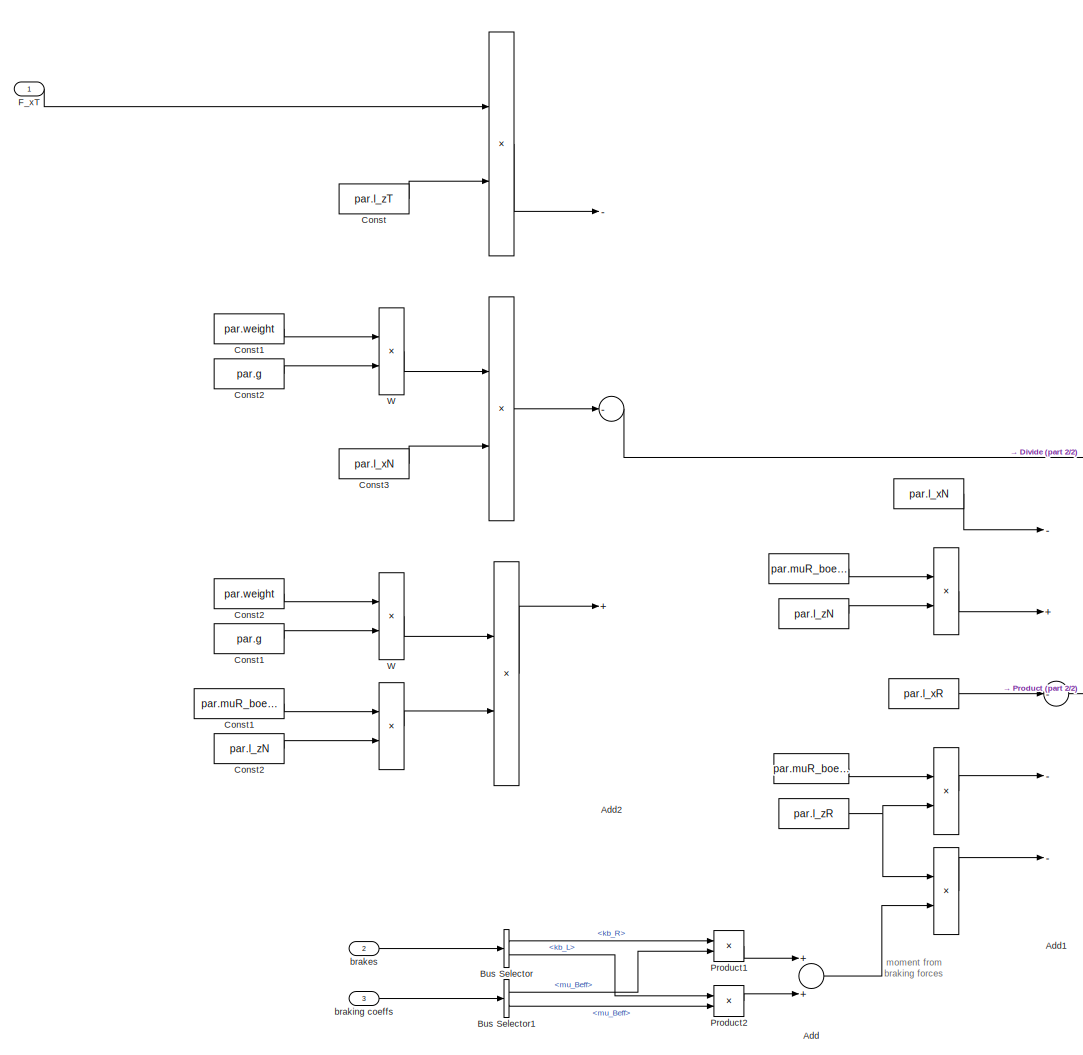
[diagram: Aircraft Ground Motion Model/Tire Forces/Vertical Tire Force/Solver - part 1/2, left side, full height]
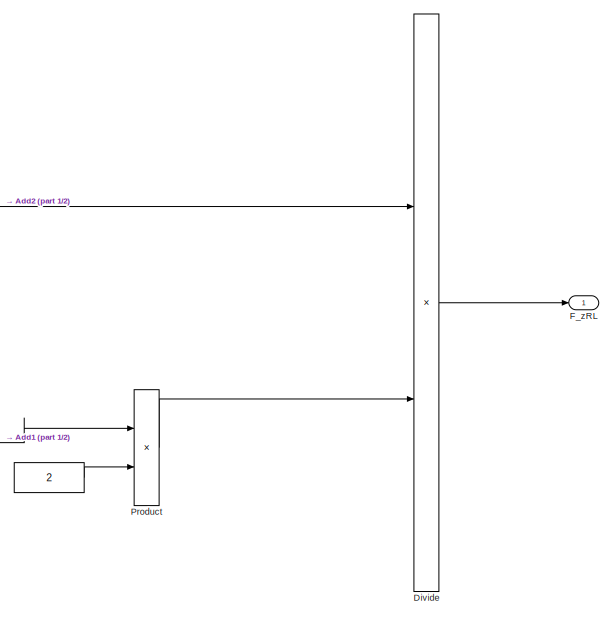
[diagram: Aircraft Ground Motion Model/Tire Forces/Vertical Tire Force/Solver - part 2/2, middle right region]
BLOCK [SubSystem] Aircraft Ground Motion Model/Tire Forces/Vertical Tire Force/Solver
  FunctionWithSeparateData = off
  MaskHideContents = off
  MinAlgLoopOccurrences = off
  Opaque = off
  Ports = [3, 1]
  PropExecContextOutsideSubsystem = off
  RTWSystemCode = Auto
  RequestExecContextInheritance = off
BLOCK [Constant] Aircraft Ground Motion Model/Tire Forces/Vertical Tire Force/Solver/      
  Value = par.l_xN
BLOCK [Product] Aircraft Ground Motion Model/Tire Forces/Vertical Tire Force/Solver/           
  InputSameDT = off
  OutDataTypeStr = Inherit: Inherit via internal rule
  Ports = [2, 1]
  RndMeth = Floor
  SaturateOnIntegerOverflow = off
BLOCK [Constant] Aircraft Ground Motion Model/Tire Forces/Vertical Tire Force/Solver/            
  Value = par.muR_boeing
BLOCK [Constant] Aircraft Ground Motion Model/Tire Forces/Vertical Tire Force/Solver/                  
  Value = 2
BLOCK [Constant] Aircraft Ground Motion Model/Tire Forces/Vertical Tire Force/Solver/                     
  Value = par.l_zN
BLOCK [Constant] Aircraft Ground Motion Model/Tire Forces/Vertical Tire Force/Solver/                         
  Value = par.l_zR
BLOCK [Product] Aircraft Ground Motion Model/Tire Forces/Vertical Tire Force/Solver/                          
  InputSameDT = off
  OutDataTypeStr = Inherit: Inherit via internal rule
  Ports = [2, 1]
  RndMeth = Floor
  SaturateOnIntegerOverflow = off
BLOCK [Constant] Aircraft Ground Motion Model/Tire Forces/Vertical Tire Force/Solver/                             
  Value = par.l_xR
BLOCK [Product] Aircraft Ground Motion Model/Tire Forces/Vertical Tire Force/Solver/                              
  InputSameDT = off
  OutDataTypeStr = Inherit: Inherit via internal rule
  Ports = [2, 1]
  RndMeth = Floor
  SaturateOnIntegerOverflow = off
BLOCK [Product] Aircraft Ground Motion Model/Tire Forces/Vertical Tire Force/Solver/                                  
  InputSameDT = off
  OutDataTypeStr = Inherit: Inherit via internal rule
  Ports = [2, 1]
  RndMeth = Floor
  SaturateOnIntegerOverflow = off
BLOCK [Product] Aircraft Ground Motion Model/Tire Forces/Vertical Tire Force/Solver/                                     
  InputSameDT = off
  OutDataTypeStr = Inherit: Inherit via internal rule
  Ports = [2, 1]
  RndMeth = Floor
  SaturateOnIntegerOverflow = off
BLOCK [Constant] Aircraft Ground Motion Model/Tire Forces/Vertical Tire Force/Solver/                                        
  Value = par.muR_boeing
BLOCK [Product] Aircraft Ground Motion Model/Tire Forces/Vertical Tire Force/Solver/                                             
  InputSameDT = off
  OutDataTypeStr = Inherit: Inherit via internal rule
  Ports = [2, 1]
  RndMeth = Floor
  SaturateOnIntegerOverflow = off
BLOCK [Product] Aircraft Ground Motion Model/Tire Forces/Vertical Tire Force/Solver/                                              
  InputSameDT = off
  OutDataTypeStr = Inherit: Inherit via internal rule
  Ports = [2, 1]
  RndMeth = Floor
  SaturateOnIntegerOverflow = off
BLOCK [Constant] Aircraft Ground Motion Model/Tire Forces/Vertical Tire Force/Solver/  Const1
  Value = par.g
BLOCK [Constant] Aircraft Ground Motion Model/Tire Forces/Vertical Tire Force/Solver/  Const2
  Value = par.g
BLOCK [Constant] Aircraft Ground Motion Model/Tire Forces/Vertical Tire Force/Solver/ Const1
  Value = par.weight
BLOCK [Constant] Aircraft Ground Motion Model/Tire Forces/Vertical Tire Force/Solver/ Const2
  Value = par.weight
BLOCK [Sum] Aircraft Ground Motion Model/Tire Forces/Vertical Tire Force/Solver/Add
  InputSameDT = off
  OutDataTypeStr = Inherit: Inherit via internal rule
  Ports = [2, 1]
  SaturateOnIntegerOverflow = off
BLOCK [Sum] Aircraft Ground Motion Model/Tire Forces/Vertical Tire Force/Solver/Add1
  InputSameDT = off
  Inputs = -+---
  OutDataTypeStr = Inherit: Inherit via internal rule
  Ports = [5, 1]
  SaturateOnIntegerOverflow = off
BLOCK [Sum] Aircraft Ground Motion Model/Tire Forces/Vertical Tire Force/Solver/Add2
  InputSameDT = off
  Inputs = --+
  OutDataTypeStr = Inherit: Inherit via internal rule
  Ports = [3, 1]
  SaturateOnIntegerOverflow = off
BLOCK [BusSelector] Aircraft Ground Motion Model/Tire Forces/Vertical Tire Force/Solver/Bus Selector
  OutputSignals = kb_R,kb_L
  Ports = [1, 2]
BLOCK [BusSelector] Aircraft Ground Motion Model/Tire Forces/Vertical Tire Force/Solver/Bus Selector1
  OutputSignals = coeffs_R.mu_Beff,coeffs_L.mu_Beff
  Ports = [1, 2]
BLOCK [Constant] Aircraft Ground Motion Model/Tire Forces/Vertical Tire Force/Solver/Const
  Value = par.l_zT
BLOCK [Constant] Aircraft Ground Motion Model/Tire Forces/Vertical Tire Force/Solver/Const1
  Value = par.muR_boeing
BLOCK [Constant] Aircraft Ground Motion Model/Tire Forces/Vertical Tire Force/Solver/Const2
  Value = par.l_zN
BLOCK [Constant] Aircraft Ground Motion Model/Tire Forces/Vertical Tire Force/Solver/Const3
  Value = par.l_xN
BLOCK [Product] Aircraft Ground Motion Model/Tire Forces/Vertical Tire Force/Solver/Divide
  InputSameDT = off
  Inputs = */
  OutDataTypeStr = Inherit: Inherit via internal rule
  Ports = [2, 1]
  RndMeth = Floor
  SaturateOnIntegerOverflow = off
BLOCK [Inport] Aircraft Ground Motion Model/Tire Forces/Vertical Tire Force/Solver/F_xT
  IconDisplay = Port number
BLOCK [Outport] Aircraft Ground Motion Model/Tire Forces/Vertical Tire Force/Solver/F_zRL
  IconDisplay = Port number
BLOCK [Product] Aircraft Ground Motion Model/Tire Forces/Vertical Tire Force/Solver/Product
  InputSameDT = off
  OutDataTypeStr = Inherit: Inherit via internal rule
  Ports = [2, 1]
  RndMeth = Floor
  SaturateOnIntegerOverflow = off
BLOCK [Product] Aircraft Ground Motion Model/Tire Forces/Vertical Tire Force/Solver/Product1
  InputSameDT = off
  OutDataTypeStr = Inherit: Inherit via internal rule
  Ports = [2, 1]
  RndMeth = Floor
  SaturateOnIntegerOverflow = off
BLOCK [Product] Aircraft Ground Motion Model/Tire Forces/Vertical Tire Force/Solver/Product2
  InputSameDT = off
  OutDataTypeStr = Inherit: Inherit via internal rule
  Ports = [2, 1]
  RndMeth = Floor
  SaturateOnIntegerOverflow = off
BLOCK [Product] Aircraft Ground Motion Model/Tire Forces/Vertical Tire Force/Solver/W
  InputSameDT = off
  OutDataTypeStr = Inherit: Inherit via internal rule
  Ports = [2, 1]
  RndMeth = Floor
  SaturateOnIntegerOverflow = off
BLOCK [Product] Aircraft Ground Motion Model/Tire Forces/Vertical Tire Force/Solver/W 
  InputSameDT = off
  OutDataTypeStr = Inherit: Inherit via internal rule
  Ports = [2, 1]
  RndMeth = Floor
  SaturateOnIntegerOverflow = off
BLOCK [Inport] Aircraft Ground Motion Model/Tire Forces/Vertical Tire Force/Solver/brakes
  IconDisplay = Port number
  Port = 2
BLOCK [Inport] Aircraft Ground Motion Model/Tire Forces/Vertical Tire Force/Solver/braking coeffs
  IconDisplay = Port number
  Port = 3
BLOCK [Inport] Aircraft Ground Motion Model/Tire Forces/Vertical Tire Force/brakes
  IconDisplay = Port number
  Port = 3
BLOCK [Inport] Aircraft Ground Motion Model/Tire Forces/Vertical Tire Force/braking coeffs
  IconDisplay = Port number
  Port = 2
BLOCK [Product] Aircraft Ground Motion Model/Tire Forces/Vertical Tire Force/m*g
  InputSameDT = off
  OutDataTypeStr = Inherit: Inherit via internal rule
  Ports = [2, 1]
  RndMeth = Floor
  SaturateOnIntegerOverflow = off
BLOCK [SubSystem] Aircraft Ground Motion Model/Tire Forces/Wheels Velocity
  FunctionWithSeparateData = off
  MaskHideContents = off
  MinAlgLoopOccurrences = off
  Opaque = off
  Ports = [2, 1]
  PropExecContextOutsideSubsystem = off
  RTWSystemCode = Auto
  RequestExecContextInheritance = off
BLOCK [BusCreator] Aircraft Ground Motion Model/Tire Forces/Wheels Velocity/Bus Creator
  DisplayOption = bar
  Inputs = 3
  Ports = [3, 1]
BLOCK [Outport] Aircraft Ground Motion Model/Tire Forces/Wheels Velocity/V_wheels
  IconDisplay = Port number
BLOCK [SubSystem] Aircraft Ground Motion Model/Tire Forces/Wheels Velocity/Velocity_L
  FunctionWithSeparateData = off
  MaskHideContents = off
  MinAlgLoopOccurrences = off
  Opaque = off
  Ports = [1, 1]
  PropExecContextOutsideSubsystem = off
  RTWSystemCode = Auto
  RequestExecContextInheritance = off
BLOCK [Constant] Aircraft Ground Motion Model/Tire Forces/Wheels Velocity/Velocity_L/ 
  Value = par.l_yL
BLOCK [Constant] Aircraft Ground Motion Model/Tire Forces/Wheels Velocity/Velocity_L/  
  Value = par.l_xL
BLOCK [Sum] Aircraft Ground Motion Model/Tire Forces/Wheels Velocity/Velocity_L/Add
  InputSameDT = off
  OutDataTypeStr = Inherit: Inherit via internal rule
  Ports = [2, 1]
  SaturateOnIntegerOverflow = off
BLOCK [Sum] Aircraft Ground Motion Model/Tire Forces/Wheels Velocity/Velocity_L/Add1
  InputSameDT = off
  Inputs = +-
  OutDataTypeStr = Inherit: Inherit via internal rule
  Ports = [2, 1]
  SaturateOnIntegerOverflow = off
BLOCK [BusCreator] Aircraft Ground Motion Model/Tire Forces/Wheels Velocity/Velocity_L/Bus Creator
  DisplayOption = bar
  Inputs = 2
  Ports = [2, 1]
BLOCK [BusSelector] Aircraft Ground Motion Model/Tire Forces/Wheels Velocity/Velocity_L/Bus Selector
  OutputSignals = [Vx; Vy],Wz
  Ports = [1, 2]
BLOCK [BusSelector] Aircraft Ground Motion Model/Tire Forces/Wheels Velocity/Velocity_L/Bus Selector1
  OutputSignals = v_X,v_Y
  Ports = [1, 2]
BLOCK [Product] Aircraft Ground Motion Model/Tire Forces/Wheels Velocity/Velocity_L/Product
  InputSameDT = off
  OutDataTypeStr = Inherit: Inherit via internal rule
  Ports = [2, 1]
  RndMeth = Floor
  SaturateOnIntegerOverflow = off
BLOCK [Product] Aircraft Ground Motion Model/Tire Forces/Wheels Velocity/Velocity_L/Product1
  InputSameDT = off
  OutDataTypeStr = Inherit: Inherit via internal rule
  Ports = [2, 1]
  RndMeth = Floor
  SaturateOnIntegerOverflow = off
BLOCK [Inport] Aircraft Ground Motion Model/Tire Forces/Wheels Velocity/Velocity_L/STATE
  IconDisplay = Port number
BLOCK [Outport] Aircraft Ground Motion Model/Tire Forces/Wheels Velocity/Velocity_L/V_L
  IconDisplay = Port number
BLOCK [SubSystem] Aircraft Ground Motion Model/Tire Forces/Wheels Velocity/Velocity_N
  FunctionWithSeparateData = off
  MaskHideContents = off
  MinAlgLoopOccurrences = off
  Opaque = off
  Ports = [2, 1]
  PropExecContextOutsideSubsystem = off
  RTWSystemCode = Auto
  RequestExecContextInheritance = off
BLOCK [BusCreator] Aircraft Ground Motion Model/Tire Forces/Wheels Velocity/Velocity_N/Bus Creator
  DisplayOption = bar
  Inputs = 2
  Ports = [2, 1]
BLOCK [BusSelector] Aircraft Ground Motion Model/Tire Forces/Wheels Velocity/Velocity_N/Bus Selector
  OutputSignals = [Vx; Vy],Wz
  Ports = [1, 2]
BLOCK [BusSelector] Aircraft Ground Motion Model/Tire Forces/Wheels Velocity/Velocity_N/Bus Selector1
  OutputSignals = v_X,v_Y
  Ports = [1, 2]
BLOCK [Inport] Aircraft Ground Motion Model/Tire Forces/Wheels Velocity/Velocity_N/STATE
  IconDisplay = Port number
BLOCK [Outport] Aircraft Ground Motion Model/Tire Forces/Wheels Velocity/Velocity_N/V_N
  IconDisplay = Port number
BLOCK [SubSystem] Aircraft Ground Motion Model/Tire Forces/Wheels Velocity/Velocity_N/VxN
  FunctionWithSeparateData = off
  MaskHideContents = off
  MinAlgLoopOccurrences = off
  Opaque = off
  Ports = [4, 1]
  PropExecContextOutsideSubsystem = off
  RTWSystemCode = Auto
  RequestExecContextInheritance = off
BLOCK [Constant] Aircraft Ground Motion Model/Tire Forces/Wheels Velocity/Velocity_N/VxN/     
  Value = par.l_xN
BLOCK [Sum] Aircraft Ground Motion Model/Tire Forces/Wheels Velocity/Velocity_N/VxN/Add
  InputSameDT = off
  OutDataTypeStr = Inherit: Inherit via internal rule
  Ports = [2, 1]
  SaturateOnIntegerOverflow = off
BLOCK [Sum] Aircraft Ground Motion Model/Tire Forces/Wheels Velocity/Velocity_N/VxN/Add2
  InputSameDT = off
  OutDataTypeStr = Inherit: Inherit via internal rule
  Ports = [2, 1]
  SaturateOnIntegerOverflow = off
BLOCK [Gain] Aircraft Ground Motion Model/Tire Forces/Wheels Velocity/Velocity_N/VxN/Gain1
  Commented = on
  Gain = -1
  OutDataTypeStr = Inherit: Inherit via internal rule
  ParamDataTypeStr = Inherit: Inherit via internal rule
  SaturateOnIntegerOverflow = off
BLOCK [Product] Aircraft Ground Motion Model/Tire Forces/Wheels Velocity/Velocity_N/VxN/Product1
  InputSameDT = off
  OutDataTypeStr = Inherit: Inherit via internal rule
  Ports = [2, 1]
  RndMeth = Floor
  SaturateOnIntegerOverflow = off
BLOCK [Product] Aircraft Ground Motion Model/Tire Forces/Wheels Velocity/Velocity_N/VxN/Product2
  InputSameDT = off
  OutDataTypeStr = Inherit: Inherit via internal rule
  Ports = [2, 1]
  RndMeth = Floor
  SaturateOnIntegerOverflow = off
BLOCK [Product] Aircraft Ground Motion Model/Tire Forces/Wheels Velocity/Velocity_N/VxN/Product3
  InputSameDT = off
  OutDataTypeStr = Inherit: Inherit via internal rule
  Ports = [2, 1]
  RndMeth = Floor
  SaturateOnIntegerOverflow = off
BLOCK [Trigonometry] Aircraft Ground Motion Model/Tire Forces/Wheels Velocity/Velocity_N/VxN/Trigonometric Function
  Operator = cos
  Ports = [1, 1]
BLOCK [Trigonometry] Aircraft Ground Motion Model/Tire Forces/Wheels Velocity/Velocity_N/VxN/Trigonometric Function1
  Ports = [1, 1]
BLOCK [Inport] Aircraft Ground Motion Model/Tire Forces/Wheels Velocity/Velocity_N/VxN/Vx
  IconDisplay = Port number
  Port = 2
BLOCK [Outport] Aircraft Ground Motion Model/Tire Forces/Wheels Velocity/Velocity_N/VxN/VxN
  IconDisplay = Port number
BLOCK [Inport] Aircraft Ground Motion Model/Tire Forces/Wheels Velocity/Velocity_N/VxN/Vy
  IconDisplay = Port number
  Port = 3
BLOCK [Inport] Aircraft Ground Motion Model/Tire Forces/Wheels Velocity/Velocity_N/VxN/Wz
  IconDisplay = Port number
  Port = 4
BLOCK [Inport] Aircraft Ground Motion Model/Tire Forces/Wheels Velocity/Velocity_N/VxN/delta
  IconDisplay = Port number
BLOCK [SubSystem] Aircraft Ground Motion Model/Tire Forces/Wheels Velocity/Velocity_N/VyN
  FunctionWithSeparateData = off
  MaskHideContents = off
  MinAlgLoopOccurrences = off
  Opaque = off
  Ports = [4, 1]
  PropExecContextOutsideSubsystem = off
  RTWSystemCode = Auto
  RequestExecContextInheritance = off
BLOCK [Constant] Aircraft Ground Motion Model/Tire Forces/Wheels Velocity/Velocity_N/VyN/     
  Value = par.l_xN
BLOCK [Sum] Aircraft Ground Motion Model/Tire Forces/Wheels Velocity/Velocity_N/VyN/Add
  InputSameDT = off
  Inputs = -+
  OutDataTypeStr = Inherit: Inherit via internal rule
  Ports = [2, 1]
  SaturateOnIntegerOverflow = off
BLOCK [Sum] Aircraft Ground Motion Model/Tire Forces/Wheels Velocity/Velocity_N/VyN/Add2
  InputSameDT = off
  OutDataTypeStr = Inherit: Inherit via internal rule
  Ports = [2, 1]
  SaturateOnIntegerOverflow = off
BLOCK [Product] Aircraft Ground Motion Model/Tire Forces/Wheels Velocity/Velocity_N/VyN/Product1
  InputSameDT = off
  OutDataTypeStr = Inherit: Inherit via internal rule
  Ports = [2, 1]
  RndMeth = Floor
  SaturateOnIntegerOverflow = off
BLOCK [Product] Aircraft Ground Motion Model/Tire Forces/Wheels Velocity/Velocity_N/VyN/Product2
  InputSameDT = off
  OutDataTypeStr = Inherit: Inherit via internal rule
  Ports = [2, 1]
  RndMeth = Floor
  SaturateOnIntegerOverflow = off
BLOCK [Product] Aircraft Ground Motion Model/Tire Forces/Wheels Velocity/Velocity_N/VyN/Product3
  InputSameDT = off
  OutDataTypeStr = Inherit: Inherit via internal rule
  Ports = [2, 1]
  RndMeth = Floor
  SaturateOnIntegerOverflow = off
BLOCK [Trigonometry] Aircraft Ground Motion Model/Tire Forces/Wheels Velocity/Velocity_N/VyN/Trigonometric Function
  Ports = [1, 1]
BLOCK [Trigonometry] Aircraft Ground Motion Model/Tire Forces/Wheels Velocity/Velocity_N/VyN/Trigonometric Function1
  Operator = cos
  Ports = [1, 1]
BLOCK [Inport] Aircraft Ground Motion Model/Tire Forces/Wheels Velocity/Velocity_N/VyN/Vx
  IconDisplay = Port number
  Port = 2
BLOCK [Inport] Aircraft Ground Motion Model/Tire Forces/Wheels Velocity/Velocity_N/VyN/Vy
  IconDisplay = Port number
  Port = 3
BLOCK [Outport] Aircraft Ground Motion Model/Tire Forces/Wheels Velocity/Velocity_N/VyN/VyN
  IconDisplay = Port number
BLOCK [Inport] Aircraft Ground Motion Model/Tire Forces/Wheels Velocity/Velocity_N/VyN/Wz
  IconDisplay = Port number
  Port = 4
BLOCK [Inport] Aircraft Ground Motion Model/Tire Forces/Wheels Velocity/Velocity_N/VyN/delta
  IconDisplay = Port number
BLOCK [Inport] Aircraft Ground Motion Model/Tire Forces/Wheels Velocity/Velocity_N/delta
  IconDisplay = Port number
  Port = 2
BLOCK [SubSystem] Aircraft Ground Motion Model/Tire Forces/Wheels Velocity/Velocity_R
  FunctionWithSeparateData = off
  MaskHideContents = off
  MinAlgLoopOccurrences = off
  Opaque = off
  Ports = [1, 1]
  PropExecContextOutsideSubsystem = off
  RTWSystemCode = Auto
  RequestExecContextInheritance = off
BLOCK [Constant] Aircraft Ground Motion Model/Tire Forces/Wheels Velocity/Velocity_R/ 
  Value = par.l_yR
BLOCK [Constant] Aircraft Ground Motion Model/Tire Forces/Wheels Velocity/Velocity_R/  
  Value = par.l_xR
BLOCK [Sum] Aircraft Ground Motion Model/Tire Forces/Wheels Velocity/Velocity_R/Add
  InputSameDT = off
  Inputs = +-
  OutDataTypeStr = Inherit: Inherit via internal rule
  Ports = [2, 1]
  SaturateOnIntegerOverflow = off
BLOCK [Sum] Aircraft Ground Motion Model/Tire Forces/Wheels Velocity/Velocity_R/Add1
  InputSameDT = off
  Inputs = +-
  OutDataTypeStr = Inherit: Inherit via internal rule
  Ports = [2, 1]
  SaturateOnIntegerOverflow = off
BLOCK [BusCreator] Aircraft Ground Motion Model/Tire Forces/Wheels Velocity/Velocity_R/Bus Creator
  DisplayOption = bar
  Inputs = 2
  Ports = [2, 1]
BLOCK [BusSelector] Aircraft Ground Motion Model/Tire Forces/Wheels Velocity/Velocity_R/Bus Selector
  OutputSignals = [Vx; Vy],Wz
  Ports = [1, 2]
BLOCK [BusSelector] Aircraft Ground Motion Model/Tire Forces/Wheels Velocity/Velocity_R/Bus Selector1
  OutputSignals = v_X,v_Y
  Ports = [1, 2]
BLOCK [Product] Aircraft Ground Motion Model/Tire Forces/Wheels Velocity/Velocity_R/Product
  InputSameDT = off
  OutDataTypeStr = Inherit: Inherit via internal rule
  Ports = [2, 1]
  RndMeth = Floor
  SaturateOnIntegerOverflow = off
BLOCK [Product] Aircraft Ground Motion Model/Tire Forces/Wheels Velocity/Velocity_R/Product1
  InputSameDT = off
  OutDataTypeStr = Inherit: Inherit via internal rule
  Ports = [2, 1]
  RndMeth = Floor
  SaturateOnIntegerOverflow = off
BLOCK [Inport] Aircraft Ground Motion Model/Tire Forces/Wheels Velocity/Velocity_R/STATE
  IconDisplay = Port number
BLOCK [Outport] Aircraft Ground Motion Model/Tire Forces/Wheels Velocity/Velocity_R/V_R
  IconDisplay = Port number
BLOCK [Inport] Aircraft Ground Motion Model/Tire Forces/Wheels Velocity/delta
  IconDisplay = Port number
BLOCK [Inport] Aircraft Ground Motion Model/Tire Forces/Wheels Velocity/state
  IconDisplay = Port number
  Port = 2
BLOCK [Inport] Aircraft Ground Motion Model/Tire Forces/brakes
  IconDisplay = Port number
  Port = 4
BLOCK [Inport] Aircraft Ground Motion Model/Tire Forces/delta
  IconDisplay = Port number
  Port = 3
BLOCK [Inport] Aircraft Ground Motion Model/Tire Forces/state
  IconDisplay = Port number
  Port = 2
BLOCK [Inport] Aircraft Ground Motion Model/Tire Forces/thrust
  IconDisplay = Port number
BLOCK [Scope] Aircraft Ground Motion Model/X TIRE_FORCES
  DataFormat = StructureWithTime
  Floating = off
  NumInputPorts = 1
  Ports = [1]
  SampleTime = 0
  SaveName = ScopeData3
  ShowLegends = off
  YMax = 10000
  YMin = -140000
BLOCK [Scope] Aircraft Ground Motion Model/Y TIRE_FORCES1
  DataFormat = StructureWithTime
  Floating = off
  NumInputPorts = 1
  Ports = [1]
  SampleTime = 0
  SaveName = ScopeData4
  ShowLegends = off
  YMax = 10000
  YMin = -140000
BLOCK [SubSystem] AutoTaxi Controller
  FunctionWithSeparateData = off
  MaskHideContents = off
  MinAlgLoopOccurrences = off
  Opaque = off
  Ports = [2, 3]
  PropExecContextOutsideSubsystem = off
  RTWSystemCode = Auto
  RequestExecContextInheritance = off
BLOCK [Outport] AutoTaxi Controller/Brakes
  IconDisplay = Port number
BLOCK [SubSystem] AutoTaxi Controller/Brakes control
  FunctionWithSeparateData = off
  MaskHideContents = off
  MinAlgLoopOccurrences = off
  Opaque = off
  Ports = [2, 1]
  PropExecContextOutsideSubsystem = off
  RTWSystemCode = Auto
  RequestExecContextInheritance = off
BLOCK [Sum] AutoTaxi Controller/Brakes control/Add
  InputSameDT = off
  OutDataTypeStr = Inherit: Inherit via internal rule
  Ports = [2, 1]
  SaturateOnIntegerOverflow = off
BLOCK [Sum] AutoTaxi Controller/Brakes control/Add1
  InputSameDT = off
  OutDataTypeStr = Inherit: Inherit via internal rule
  Ports = [2, 1]
  SaturateOnIntegerOverflow = off
BLOCK [Scope] AutoTaxi Controller/Brakes control/BRAKES PID VELO
  DataFormat = StructureWithTime
  Floating = off
  NumInputPorts = 1
  Ports = [1]
  SampleTime = 0
  SaveName = ScopeData16
  ShowLegends = off
BLOCK [Scope] AutoTaxi Controller/Brakes control/BRAKES PID steer
  DataFormat = StructureWithTime
  Floating = off
  NumInputPorts = 1
  Ports = [1]
  SampleTime = 0
  SaveName = ScopeData1
  ShowLegends = off
BLOCK [BusCreator] AutoTaxi Controller/Brakes control/Bus Creator
  DisplayOption = bar
  Inputs = 2
  Ports = [2, 1]
BLOCK [BusCreator] AutoTaxi Controller/Brakes control/Bus Creator1
  DisplayOption = bar
  Inputs = 2
  Ports = [2, 1]
BLOCK [BusCreator] AutoTaxi Controller/Brakes control/Bus Creator2
  DisplayOption = bar
  Inputs = 3
  Ports = [3, 1]
BLOCK [SubSystem] AutoTaxi Controller/Brakes control/Diff braking - Kb_L PID
  FunctionWithSeparateData = off
  MaskHideContents = off
  MinAlgLoopOccurrences = off
  Opaque = off
  Ports = [1, 1]
  PropExecContextOutsideSubsystem = off
  RTWSystemCode = Auto
  RequestExecContextInheritance = off
BLOCK [Abs] AutoTaxi Controller/Brakes control/Diff braking - Kb_L PID/Abs
  SaturateOnIntegerOverflow = off
BLOCK [Reference] AutoTaxi Controller/Brakes control/Diff braking - Kb_L PID/Compare To Constant  REF=simulink/Logic and Bit
Operations/Compare
To Constant
  OutDataTypeStr = boolean
  Ports = [1, 1]
  SourceBlock = simulink/Logic and Bit\nOperations/Compare\nTo Constant
  SourceType = Compare To Constant
  ZeroCross = on
  const = -par.delta_lim
  relop = <=
BLOCK [MultiPortSwitch] AutoTaxi Controller/Brakes control/Diff braking - Kb_L PID/Multiport Switch
  DataPortOrder = Zero-based contiguous
  InputSameDT = off
  Inputs = 2
  Ports = [3, 1]
  SaturateOnIntegerOverflow = off
BLOCK [Reference] AutoTaxi Controller/Brakes control/Diff braking - Kb_L PID/PID Kb_R  REF=simulink/Continuous/PID Controller
  AntiWindupMode = none
  Controller = PID
  D = 0
  DOutDataTypeStr = Inherit: Inherit via internal rule
  DOutMax = []
  DOutMin = []
  DParamDataTypeStr = Inherit: Inherit via internal rule
  DParamMax = []
  DParamMin = []
  ExternalReset = none
  FilterContinuousStateAttributes = ''
  FilterMethod = Forward Euler
  FilterOutDataTypeStr = Inherit: Inherit via internal rule
  FilterOutMax = []
  FilterOutMin = []
  FilterRTWStateStorageClass = Auto
  FilterStateMustResolveToSignalObject = off
  Form = Parallel
  I = 0
  IOutDataTypeStr = Inherit: Inherit via internal rule
  IOutMax = []
  IOutMin = []
  IParamDataTypeStr = Inherit: Inherit via internal rule
  IParamMax = []
  IParamMin = []
  IgnoreLimit = off
  InitialConditionForFilter = 0
  InitialConditionForIntegrator = 0
  InitialConditionSource = internal
  IntegratorContinuousStateAttributes = ''
  IntegratorMethod = Forward Euler
  IntegratorOutDataTypeStr = Inherit: Inherit via internal rule
  IntegratorOutMax = []
  IntegratorOutMin = []
  IntegratorRTWStateStorageClass = Auto
  IntegratorStateMustResolveToSignalObject = off
  Kb = 1
  KbOutDataTypeStr = Inherit: Inherit via internal rule
  KbOutMax = []
  KbOutMin = []
  KbParamDataTypeStr = Inherit: Inherit via internal rule
  KbParamMax = []
  KbParamMin = []
  Kt = 1
  KtOutDataTypeStr = Inherit: Inherit via internal rule
  KtOutMax = []
  KtOutMin = []
  KtParamDataTypeStr = Inherit: Inherit via internal rule
  KtParamMax = []
  KtParamMin = []
  LimitOutput = off
  LinearizeAsGain = on
  LockScale = off
  LowerSaturationLimit = -inf
  N = 100
  NOutDataTypeStr = Inherit: Inherit via internal rule
  NOutMax = []
  NOutMin = []
  NParamDataTypeStr = Inherit: Inherit via internal rule
  NParamMax = []
  NParamMin = []
  P = 10
  POutDataTypeStr = Inherit: Inherit via internal rule
  POutMax = []
  POutMin = []
  PParamDataTypeStr = Inherit: Inherit via internal rule
  PParamMax = []
  PParamMin = []
  Ports = [1, 1]
  RndMeth = Floor
  SampleTime = 1
  SaturateOnIntegerOverflow = off
  SaturationOutDataTypeStr = Inherit: Same as input
  SaturationOutMax = []
  SaturationOutMin = []
  SourceBlock = simulink/Continuous/PID Controller
  SourceType = PID 1dof
  SumAccumDataTypeStr = Inherit: Inherit via internal rule
  SumDAccumDataTypeStr = Inherit: Inherit via internal rule
  SumDOutDataTypeStr = Inherit: Inherit via internal rule
  SumDOutMax = []
  SumDOutMin = []
  SumI1AccumDataTypeStr = Inherit: Inherit via internal rule
  SumI1OutDataTypeStr = Inherit: Inherit via internal rule
  SumI1OutMax = []
  SumI1OutMin = []
  SumI2AccumDataTypeStr = Inherit: Inherit via internal rule
  SumI2OutDataTypeStr = Inherit: Inherit via internal rule
  SumI2OutMax = []
  SumI2OutMin = []
  SumI3AccumDataTypeStr = Inherit: Inherit via internal rule
  SumI3OutDataTypeStr = Inherit: Inherit via internal rule
  SumI3OutMax = []
  SumI3OutMin = []
  SumOutDataTypeStr = Inherit: Inherit via internal rule
  SumOutMax = []
  SumOutMin = []
  TimeDomain = Continuous-time
  TrackingMode = off
  UpperSaturationLimit = inf
  ZeroCross = on
BLOCK [RateLimiter] AutoTaxi Controller/Brakes control/Diff braking - Kb_L PID/Rate limit
  FallingSlewLimit = -2
  RisingSlewLimit = 2
  SampleTimeMode = inherited
BLOCK [Outport] AutoTaxi Controller/Brakes control/Diff braking - Kb_L PID/kb_L
  IconDisplay = Port number
BLOCK [Saturate] AutoTaxi Controller/Brakes control/Diff braking - Kb_L PID/max
  InputPortMap = u0
  LowerLimit = 0
  Ports = [1, 1]
  UpperLimit = 1
BLOCK [Constant] AutoTaxi Controller/Brakes control/Diff braking - Kb_L PID/no brakes 
  Value = 0
BLOCK [Inport] AutoTaxi Controller/Brakes control/Diff braking - Kb_L PID/steer
  IconDisplay = Port number
BLOCK [SubSystem] AutoTaxi Controller/Brakes control/Diff braking - Kb_R PID
  FunctionWithSeparateData = off
  MaskHideContents = off
  MinAlgLoopOccurrences = off
  Opaque = off
  Ports = [1, 1]
  PropExecContextOutsideSubsystem = off
  RTWSystemCode = Auto
  RequestExecContextInheritance = off
BLOCK [Abs] AutoTaxi Controller/Brakes control/Diff braking - Kb_R PID/Abs
  SaturateOnIntegerOverflow = off
BLOCK [Reference] AutoTaxi Controller/Brakes control/Diff braking - Kb_R PID/Compare To Constant  REF=simulink/Logic and Bit
Operations/Compare
To Constant
  OutDataTypeStr = boolean
  Ports = [1, 1]
  SourceBlock = simulink/Logic and Bit\nOperations/Compare\nTo Constant
  SourceType = Compare To Constant
  ZeroCross = on
  const = par.delta_lim
  relop = >=
BLOCK [MultiPortSwitch] AutoTaxi Controller/Brakes control/Diff braking - Kb_R PID/Multiport Switch
  DataPortOrder = Zero-based contiguous
  InputSameDT = off
  Inputs = 2
  Ports = [3, 1]
  SaturateOnIntegerOverflow = off
BLOCK [Reference] AutoTaxi Controller/Brakes control/Diff braking - Kb_R PID/PID Kb_R  REF=simulink/Continuous/PID Controller
  AntiWindupMode = none
  Controller = PID
  D = 0
  DOutDataTypeStr = Inherit: Inherit via internal rule
  DOutMax = []
  DOutMin = []
  DParamDataTypeStr = Inherit: Inherit via internal rule
  DParamMax = []
  DParamMin = []
  ExternalReset = none
  FilterContinuousStateAttributes = ''
  FilterMethod = Forward Euler
  FilterOutDataTypeStr = Inherit: Inherit via internal rule
  FilterOutMax = []
  FilterOutMin = []
  FilterRTWStateStorageClass = Auto
  FilterStateMustResolveToSignalObject = off
  Form = Parallel
  I = 0
  IOutDataTypeStr = Inherit: Inherit via internal rule
  IOutMax = []
  IOutMin = []
  IParamDataTypeStr = Inherit: Inherit via internal rule
  IParamMax = []
  IParamMin = []
  IgnoreLimit = off
  InitialConditionForFilter = 0
  InitialConditionForIntegrator = 0
  InitialConditionSource = internal
  IntegratorContinuousStateAttributes = ''
  IntegratorMethod = Forward Euler
  IntegratorOutDataTypeStr = Inherit: Inherit via internal rule
  IntegratorOutMax = []
  IntegratorOutMin = []
  IntegratorRTWStateStorageClass = Auto
  IntegratorStateMustResolveToSignalObject = off
  Kb = 1
  KbOutDataTypeStr = Inherit: Inherit via internal rule
  KbOutMax = []
  KbOutMin = []
  KbParamDataTypeStr = Inherit: Inherit via internal rule
  KbParamMax = []
  KbParamMin = []
  Kt = 1
  KtOutDataTypeStr = Inherit: Inherit via internal rule
  KtOutMax = []
  KtOutMin = []
  KtParamDataTypeStr = Inherit: Inherit via internal rule
  KtParamMax = []
  KtParamMin = []
  LimitOutput = off
  LinearizeAsGain = on
  LockScale = off
  LowerSaturationLimit = -inf
  N = 100
  NOutDataTypeStr = Inherit: Inherit via internal rule
  NOutMax = []
  NOutMin = []
  NParamDataTypeStr = Inherit: Inherit via internal rule
  NParamMax = []
  NParamMin = []
  P = 10
  POutDataTypeStr = Inherit: Inherit via internal rule
  POutMax = []
  POutMin = []
  PParamDataTypeStr = Inherit: Inherit via internal rule
  PParamMax = []
  PParamMin = []
  Ports = [1, 1]
  RndMeth = Floor
  SampleTime = 1
  SaturateOnIntegerOverflow = off
  SaturationOutDataTypeStr = Inherit: Same as input
  SaturationOutMax = []
  SaturationOutMin = []
  SourceBlock = simulink/Continuous/PID Controller
  SourceType = PID 1dof
  SumAccumDataTypeStr = Inherit: Inherit via internal rule
  SumDAccumDataTypeStr = Inherit: Inherit via internal rule
  SumDOutDataTypeStr = Inherit: Inherit via internal rule
  SumDOutMax = []
  SumDOutMin = []
  SumI1AccumDataTypeStr = Inherit: Inherit via internal rule
  SumI1OutDataTypeStr = Inherit: Inherit via internal rule
  SumI1OutMax = []
  SumI1OutMin = []
  SumI2AccumDataTypeStr = Inherit: Inherit via internal rule
  SumI2OutDataTypeStr = Inherit: Inherit via internal rule
  SumI2OutMax = []
  SumI2OutMin = []
  SumI3AccumDataTypeStr = Inherit: Inherit via internal rule
  SumI3OutDataTypeStr = Inherit: Inherit via internal rule
  SumI3OutMax = []
  SumI3OutMin = []
  SumOutDataTypeStr = Inherit: Inherit via internal rule
  SumOutMax = []
  SumOutMin = []
  TimeDomain = Continuous-time
  TrackingMode = off
  UpperSaturationLimit = inf
  ZeroCross = on
BLOCK [RateLimiter] AutoTaxi Controller/Brakes control/Diff braking - Kb_R PID/Rate limit
  FallingSlewLimit = -2
  RisingSlewLimit = 2
  SampleTimeMode = inherited
BLOCK [Outport] AutoTaxi Controller/Brakes control/Diff braking - Kb_R PID/kb_R
  IconDisplay = Port number
BLOCK [Saturate] AutoTaxi Controller/Brakes control/Diff braking - Kb_R PID/max
  InputPortMap = u0
  LowerLimit = 0
  Ports = [1, 1]
  UpperLimit = 1
BLOCK [Constant] AutoTaxi Controller/Brakes control/Diff braking - Kb_R PID/no brakes 
  Value = 0
BLOCK [Inport] AutoTaxi Controller/Brakes control/Diff braking - Kb_R PID/steer
  IconDisplay = Port number
BLOCK [Outport] AutoTaxi Controller/Brakes control/Kb_RL
  IconDisplay = Port number
BLOCK [Saturate] AutoTaxi Controller/Brakes control/Saturation
  InputPortMap = u0
  LowerLimit = 0
  Ports = [1, 1]
  UpperLimit = 0.7
BLOCK [Saturate] AutoTaxi Controller/Brakes control/Saturation1
  InputPortMap = u0
  LowerLimit = 0
  Ports = [1, 1]
  UpperLimit = 0.7
BLOCK [Inport] AutoTaxi Controller/Brakes control/Steer
  IconDisplay = Port number
BLOCK [ToWorkspace] AutoTaxi Controller/Brakes control/To Workspace
  MaxDataPoints = inf
  Ports = [1]
  SampleTime = -1
  SaveFormat = Timeseries
  VariableName = V_DIFF
BLOCK [ToWorkspace] AutoTaxi Controller/Brakes control/To Workspace1
  MaxDataPoints = inf
  Ports = [1]
  SampleTime = -1
  SaveFormat = Timeseries
  VariableName = STEER
BLOCK [ToWorkspace] AutoTaxi Controller/Brakes control/To Workspace2
  MaxDataPoints = inf
  Ports = [1]
  SampleTime = -1
  SaveFormat = Timeseries
  VariableName = BRAKES
BLOCK [ToWorkspace] AutoTaxi Controller/Brakes control/To Workspace3
  MaxDataPoints = inf
  Ports = [1]
  SampleTime = -1
  SaveFormat = Timeseries
  VariableName = R_BRAKE
BLOCK [ToWorkspace] AutoTaxi Controller/Brakes control/To Workspace4
  MaxDataPoints = inf
  Ports = [1]
  SampleTime = -1
  SaveFormat = Timeseries
  VariableName = L_BRAKE
BLOCK [Inport] AutoTaxi Controller/Brakes control/Velo diff
  IconDisplay = Port number
  Port = 2
BLOCK [SubSystem] AutoTaxi Controller/Brakes control/Velocity Control PID
  FunctionWithSeparateData = off
  MaskHideContents = off
  MinAlgLoopOccurrences = off
  Opaque = off
  Ports = [1, 1]
  PropExecContextOutsideSubsystem = off
  RTWSystemCode = Auto
  RequestExecContextInheritance = off
BLOCK [Abs] AutoTaxi Controller/Brakes control/Velocity Control PID/Abs
  SaturateOnIntegerOverflow = off
BLOCK [Reference] AutoTaxi Controller/Brakes control/Velocity Control PID/Compare To Constant  REF=simulink/Logic and Bit
Operations/Compare
To Constant
  OutDataTypeStr = boolean
  Ports = [1, 1]
  SourceBlock = simulink/Logic and Bit\nOperations/Compare\nTo Constant
  SourceType = Compare To Constant
  ZeroCross = on
  const = -1
  relop = <
BLOCK [MultiPortSwitch] AutoTaxi Controller/Brakes control/Velocity Control PID/Multiport Switch
  DataPortOrder = Zero-based contiguous
  InputSameDT = off
  Inputs = 2
  Ports = [3, 1]
  SaturateOnIntegerOverflow = off
BLOCK [Reference] AutoTaxi Controller/Brakes control/Velocity Control PID/PID Kb_R  REF=simulink/Continuous/PID Controller
  AntiWindupMode = none
  Controller = PID
  D = 0
  DOutDataTypeStr = Inherit: Inherit via internal rule
  DOutMax = []
  DOutMin = []
  DParamDataTypeStr = Inherit: Inherit via internal rule
  DParamMax = []
  DParamMin = []
  ExternalReset = none
  FilterContinuousStateAttributes = ''
  FilterMethod = Forward Euler
  FilterOutDataTypeStr = Inherit: Inherit via internal rule
  FilterOutMax = []
  FilterOutMin = []
  FilterRTWStateStorageClass = Auto
  FilterStateMustResolveToSignalObject = off
  Form = Parallel
  I = 0
  IOutDataTypeStr = Inherit: Inherit via internal rule
  IOutMax = []
  IOutMin = []
  IParamDataTypeStr = Inherit: Inherit via internal rule
  IParamMax = []
  IParamMin = []
  IgnoreLimit = off
  InitialConditionForFilter = 0
  InitialConditionForIntegrator = 0
  InitialConditionSource = internal
  IntegratorContinuousStateAttributes = ''
  IntegratorMethod = Forward Euler
  IntegratorOutDataTypeStr = Inherit: Inherit via internal rule
  IntegratorOutMax = []
  IntegratorOutMin = []
  IntegratorRTWStateStorageClass = Auto
  IntegratorStateMustResolveToSignalObject = off
  Kb = 1
  KbOutDataTypeStr = Inherit: Inherit via internal rule
  KbOutMax = []
  KbOutMin = []
  KbParamDataTypeStr = Inherit: Inherit via internal rule
  KbParamMax = []
  KbParamMin = []
  Kt = 1
  KtOutDataTypeStr = Inherit: Inherit via internal rule
  KtOutMax = []
  KtOutMin = []
  KtParamDataTypeStr = Inherit: Inherit via internal rule
  KtParamMax = []
  KtParamMin = []
  LimitOutput = off
  LinearizeAsGain = on
  LockScale = off
  LowerSaturationLimit = -inf
  N = 100
  NOutDataTypeStr = Inherit: Inherit via internal rule
  NOutMax = []
  NOutMin = []
  NParamDataTypeStr = Inherit: Inherit via internal rule
  NParamMax = []
  NParamMin = []
  P = 0.4
  POutDataTypeStr = Inherit: Inherit via internal rule
  POutMax = []
  POutMin = []
  PParamDataTypeStr = Inherit: Inherit via internal rule
  PParamMax = []
  PParamMin = []
  Ports = [1, 1]
  RndMeth = Floor
  SampleTime = 1
  SaturateOnIntegerOverflow = off
  SaturationOutDataTypeStr = Inherit: Same as input
  SaturationOutMax = []
  SaturationOutMin = []
  SourceBlock = simulink/Continuous/PID Controller
  SourceType = PID 1dof
  SumAccumDataTypeStr = Inherit: Inherit via internal rule
  SumDAccumDataTypeStr = Inherit: Inherit via internal rule
  SumDOutDataTypeStr = Inherit: Inherit via internal rule
  SumDOutMax = []
  SumDOutMin = []
  SumI1AccumDataTypeStr = Inherit: Inherit via internal rule
  SumI1OutDataTypeStr = Inherit: Inherit via internal rule
  SumI1OutMax = []
  SumI1OutMin = []
  SumI2AccumDataTypeStr = Inherit: Inherit via internal rule
  SumI2OutDataTypeStr = Inherit: Inherit via internal rule
  SumI2OutMax = []
  SumI2OutMin = []
  SumI3AccumDataTypeStr = Inherit: Inherit via internal rule
  SumI3OutDataTypeStr = Inherit: Inherit via internal rule
  SumI3OutMax = []
  SumI3OutMin = []
  SumOutDataTypeStr = Inherit: Inherit via internal rule
  SumOutMax = []
  SumOutMin = []
  TimeDomain = Continuous-time
  TrackingMode = off
  UpperSaturationLimit = inf
  ZeroCross = on
BLOCK [RateLimiter] AutoTaxi Controller/Brakes control/Velocity Control PID/Rate limit
  FallingSlewLimit = -0.5
  SampleTimeMode = inherited
BLOCK [Inport] AutoTaxi Controller/Brakes control/Velocity Control PID/delta velo
  IconDisplay = Port number
BLOCK [Outport] AutoTaxi Controller/Brakes control/Velocity Control PID/kb
  IconDisplay = Port number
BLOCK [Saturate] AutoTaxi Controller/Brakes control/Velocity Control PID/max
  InputPortMap = u0
  LowerLimit = 0
  Ports = [1, 1]
  UpperLimit = 1
BLOCK [Constant] AutoTaxi Controller/Brakes control/Velocity Control PID/no brakes 
  Value = 0
BLOCK [SubSystem] AutoTaxi Controller/Direction control
  FunctionWithSeparateData = off
  MaskHideContents = off
  MinAlgLoopOccurrences = off
  Opaque = off
  Ports = [1, 2]
  PropExecContextOutsideSubsystem = off
  RTWSystemCode = Auto
  RequestExecContextInheritance = off
BLOCK [Constant] AutoTaxi Controller/Direction control/Constant
  Commented = on
  Value = 0
BLOCK [SubSystem] AutoTaxi Controller/Direction control/Controller
  FunctionWithSeparateData = off
  MaskHideContents = off
  MinAlgLoopOccurrences = off
  Opaque = off
  Ports = [3, 1]
  PropExecContextOutsideSubsystem = off
  RTWSystemCode = Auto
  RequestExecContextInheritance = off
BLOCK [BusCreator] AutoTaxi Controller/Direction control/Controller/Bus Creator
  DisplayOption = bar
  Inputs = 3
  Ports = [3, 1]
BLOCK [Sum] AutoTaxi Controller/Direction control/Controller/Fuse steering signals
  InputSameDT = off
  OutDataTypeStr = Inherit: Inherit via internal rule
  Ports = [2, 1]
  SaturateOnIntegerOverflow = off
BLOCK [SubSystem] AutoTaxi Controller/Direction control/Controller/Heading control
  FunctionWithSeparateData = off
  MaskHideContents = off
  MinAlgLoopOccurrences = off
  Opaque = off
  Ports = [2, 2]
  PropExecContextOutsideSubsystem = off
  RTWSystemCode = Auto
  RequestExecContextInheritance = off
BLOCK [Inport] AutoTaxi Controller/Direction control/Controller/Heading control/Aero Pos
  IconDisplay = Port number
  Port = 2
BLOCK [SubSystem] AutoTaxi Controller/Direction control/Controller/Heading control/Steer PID
  FunctionWithSeparateData = off
  MaskHideContents = off
  MinAlgLoopOccurrences = off
  Opaque = off
  Ports = [1, 1]
  PropExecContextOutsideSubsystem = off
  RTWSystemCode = Auto
  RequestExecContextInheritance = off
BLOCK [BusCreator] AutoTaxi Controller/Direction control/Controller/Heading control/Steer PID/Bus Creator
  DisplayOption = bar
  Inputs = 2
  Ports = [2, 1]
BLOCK [Reference] AutoTaxi Controller/Direction control/Controller/Heading control/Steer PID/PID Controller  REF=simulink/Continuous/PID Controller
  AntiWindupMode = none
  Controller = PID
  D = 0.05
  DOutDataTypeStr = Inherit: Inherit via internal rule
  DOutMax = []
  DOutMin = []
  DParamDataTypeStr = Inherit: Inherit via internal rule
  DParamMax = []
  DParamMin = []
  ExternalReset = none
  FilterContinuousStateAttributes = ''
  FilterMethod = Forward Euler
  FilterOutDataTypeStr = Inherit: Inherit via internal rule
  FilterOutMax = []
  FilterOutMin = []
  FilterRTWStateStorageClass = Auto
  FilterStateMustResolveToSignalObject = off
  Form = Parallel
  I = 0
  IOutDataTypeStr = Inherit: Inherit via internal rule
  IOutMax = []
  IOutMin = []
  IParamDataTypeStr = Inherit: Inherit via internal rule
  IParamMax = []
  IParamMin = []
  IgnoreLimit = off
  InitialConditionForFilter = 0
  InitialConditionForIntegrator = 0
  InitialConditionSource = internal
  IntegratorContinuousStateAttributes = ''
  IntegratorMethod = Forward Euler
  IntegratorOutDataTypeStr = Inherit: Inherit via internal rule
  IntegratorOutMax = []
  IntegratorOutMin = []
  IntegratorRTWStateStorageClass = Auto
  IntegratorStateMustResolveToSignalObject = off
  Kb = 1
  KbOutDataTypeStr = Inherit: Inherit via internal rule
  KbOutMax = []
  KbOutMin = []
  KbParamDataTypeStr = Inherit: Inherit via internal rule
  KbParamMax = []
  KbParamMin = []
  Kt = 1
  KtOutDataTypeStr = Inherit: Inherit via internal rule
  KtOutMax = []
  KtOutMin = []
  KtParamDataTypeStr = Inherit: Inherit via internal rule
  KtParamMax = []
  KtParamMin = []
  LimitOutput = off
  LinearizeAsGain = on
  LockScale = off
  LowerSaturationLimit = -inf
  N = 10
  NOutDataTypeStr = Inherit: Inherit via internal rule
  NOutMax = []
  NOutMin = []
  NParamDataTypeStr = Inherit: Inherit via internal rule
  NParamMax = []
  NParamMin = []
  P = 1
  POutDataTypeStr = Inherit: Inherit via internal rule
  POutMax = []
  POutMin = []
  PParamDataTypeStr = Inherit: Inherit via internal rule
  PParamMax = []
  PParamMin = []
  Ports = [1, 1]
  RndMeth = Floor
  SampleTime = 1
  SaturateOnIntegerOverflow = off
  SaturationOutDataTypeStr = Inherit: Same as input
  SaturationOutMax = []
  SaturationOutMin = []
  SourceBlock = simulink/Continuous/PID Controller
  SourceType = PID 1dof
  SumAccumDataTypeStr = Inherit: Inherit via internal rule
  SumDAccumDataTypeStr = Inherit: Inherit via internal rule
  SumDOutDataTypeStr = Inherit: Inherit via internal rule
  SumDOutMax = []
  SumDOutMin = []
  SumI1AccumDataTypeStr = Inherit: Inherit via internal rule
  SumI1OutDataTypeStr = Inherit: Inherit via internal rule
  SumI1OutMax = []
  SumI1OutMin = []
  SumI2AccumDataTypeStr = Inherit: Inherit via internal rule
  SumI2OutDataTypeStr = Inherit: Inherit via internal rule
  SumI2OutMax = []
  SumI2OutMin = []
  SumI3AccumDataTypeStr = Inherit: Inherit via internal rule
  SumI3OutDataTypeStr = Inherit: Inherit via internal rule
  SumI3OutMax = []
  SumI3OutMin = []
  SumOutDataTypeStr = Inherit: Inherit via internal rule
  SumOutMax = []
  SumOutMin = []
  TimeDomain = Continuous-time
  TrackingMode = off
  UpperSaturationLimit = inf
  ZeroCross = on
BLOCK [RateLimiter] AutoTaxi Controller/Direction control/Controller/Heading control/Steer PID/Rate Limiter
  FallingSlewLimit = -3
  RisingSlewLimit = 3
  SampleTimeMode = inherited
BLOCK [Scope] AutoTaxi Controller/Direction control/Controller/Heading control/Steer PID/STEER PID 
  DataFormat = StructureWithTime
  Floating = off
  NumInputPorts = 1
  Ports = [1]
  SampleTime = 0
  SaveName = ScopeData6
  ShowLegends = off
  YMax = 3.5
  YMin = -3.5
  ZoomMode = xonly
BLOCK [Saturate] AutoTaxi Controller/Direction control/Controller/Heading control/Steer PID/Saturation
  InputPortMap = u0
  LowerLimit = -par.max_delta
  Ports = [1, 1]
  UpperLimit = par.max_delta
BLOCK [ToWorkspace] AutoTaxi Controller/Direction control/Controller/Heading control/Steer PID/To Workspace1
  MaxDataPoints = inf
  Ports = [1]
  SampleTime = -1
  SaveFormat = Timeseries
  VariableName = HEADING_ERR
BLOCK [ToWorkspace] AutoTaxi Controller/Direction control/Controller/Heading control/Steer PID/To Workspace2
  MaxDataPoints = inf
  Ports = [1]
  SampleTime = -1
  SaveFormat = Timeseries
  VariableName = HEADING_PID
BLOCK [Inport] AutoTaxi Controller/Direction control/Controller/Heading control/Steer PID/delta heading 
  IconDisplay = Port number
BLOCK [Outport] AutoTaxi Controller/Direction control/Controller/Heading control/Steer PID/steer
  IconDisplay = Port number
BLOCK [Inport] AutoTaxi Controller/Direction control/Controller/Heading control/Target Pos
  IconDisplay = Port number
BLOCK [SubSystem] AutoTaxi Controller/Direction control/Controller/Heading control/delta heading to target
  FunctionWithSeparateData = off
  MaskHideContents = off
  MinAlgLoopOccurrences = off
  Opaque = off
  Ports = [2, 1]
  PropExecContextOutsideSubsystem = off
  RTWSystemCode = Auto
  RequestExecContextInheritance = off
BLOCK [SubSystem] AutoTaxi Controller/Direction control/Controller/Heading control/delta heading to target/2pi to -pi,pi
  FunctionWithSeparateData = off
  MaskHideContents = off
  MinAlgLoopOccurrences = off
  Opaque = off
  Ports = [1, 1]
  PropExecContextOutsideSubsystem = off
  RTWSystemCode = Auto
  RequestExecContextInheritance = off
BLOCK [Constant] AutoTaxi Controller/Direction control/Controller/Heading control/delta heading to target/2pi to -pi,pi/ 
  Value = 2*pi
BLOCK [Abs] AutoTaxi Controller/Direction control/Controller/Heading control/delta heading to target/2pi to -pi,pi/Abs
  SaturateOnIntegerOverflow = off
BLOCK [Reference] AutoTaxi Controller/Direction control/Controller/Heading control/delta heading to target/2pi to -pi,pi/Compare To Constant  REF=simulink/Logic and Bit
Operations/Compare
To Constant
  OutDataTypeStr = boolean
  Ports = [1, 1]
  SourceBlock = simulink/Logic and Bit\nOperations/Compare\nTo Constant
  SourceType = Compare To Constant
  ZeroCross = on
  const = pi
  relop = >
BLOCK [Reference] AutoTaxi Controller/Direction control/Controller/Heading control/delta heading to target/2pi to -pi,pi/Compare To Constant1  REF=simulink/Logic and Bit
Operations/Compare
To Constant
  OutDataTypeStr = boolean
  Ports = [1, 1]
  SourceBlock = simulink/Logic and Bit\nOperations/Compare\nTo Constant
  SourceType = Compare To Constant
  ZeroCross = on
  const = 0
  relop = >
BLOCK [Inport] AutoTaxi Controller/Direction control/Controller/Heading control/delta heading to target/2pi to -pi,pi/In
  IconDisplay = Port number
BLOCK [MultiPortSwitch] AutoTaxi Controller/Direction control/Controller/Heading control/delta heading to target/2pi to -pi,pi/Multiport Switch
  DataPortOrder = Zero-based contiguous
  InputSameDT = off
  Inputs = 2
  Ports = [3, 1]
  SaturateOnIntegerOverflow = off
BLOCK [Outport] AutoTaxi Controller/Direction control/Controller/Heading control/delta heading to target/2pi to -pi,pi/Out
  IconDisplay = Port number
BLOCK [Sum] AutoTaxi Controller/Direction control/Controller/Heading control/delta heading to target/2pi to -pi,pi/Sum
  IconShape = round
  InputSameDT = off
  Inputs = |++
  OutDataTypeStr = Inherit: Inherit via internal rule
  Ports = [2, 1]
  SaturateOnIntegerOverflow = off
BLOCK [Sum] AutoTaxi Controller/Direction control/Controller/Heading control/delta heading to target/2pi to -pi,pi/Sum1
  IconShape = round
  InputSameDT = off
  Inputs = |+-
  OutDataTypeStr = Inherit: Inherit via internal rule
  Ports = [2, 1]
  SaturateOnIntegerOverflow = off
BLOCK [MultiPortSwitch] AutoTaxi Controller/Direction control/Controller/Heading control/delta heading to target/2pi to -pi,pi/adjunct to 2pi 
  DataPortOrder = Zero-based contiguous
  InputSameDT = off
  Inputs = 2
  Ports = [3, 1]
  SaturateOnIntegerOverflow = off
BLOCK [BusCreator] AutoTaxi Controller/Direction control/Controller/Heading control/delta heading to target/Bus Creator
  DisplayOption = bar
  Inputs = 3
  Ports = [3, 1]
BLOCK [BusCreator] AutoTaxi Controller/Direction control/Controller/Heading control/delta heading to target/Bus Creator1
  DisplayOption = bar
  Inputs = 2
  Ports = [2, 1]
BLOCK [BusSelector] AutoTaxi Controller/Direction control/Controller/Heading control/delta heading to target/Bus Selector
  OutputSignals = PSI,X,Y
  Ports = [1, 3]
BLOCK [Inport] AutoTaxi Controller/Direction control/Controller/Heading control/delta heading to target/Pos Aero
  IconDisplay = Port number
  Port = 2
BLOCK [Inport] AutoTaxi Controller/Direction control/Controller/Heading control/delta heading to target/Pos Target
  IconDisplay = Port number
BLOCK [SubSystem] AutoTaxi Controller/Direction control/Controller/Heading control/delta heading to target/Target heading
  FunctionWithSeparateData = off
  MaskHideContents = off
  MinAlgLoopOccurrences = off
  Opaque = off
  Ports = [2, 1]
  PropExecContextOutsideSubsystem = off
  RTWSystemCode = Auto
  RequestExecContextInheritance = off
BLOCK [BusSelector] AutoTaxi Controller/Direction control/Controller/Heading control/delta heading to target/Target heading/Bus Selector
  OutputSignals = X,Y
  Ports = [1, 2]
BLOCK [BusSelector] AutoTaxi Controller/Direction control/Controller/Heading control/delta heading to target/Target heading/Bus Selector1
  OutputSignals = X,Y
  Ports = [1, 2]
BLOCK [Constant] AutoTaxi Controller/Direction control/Controller/Heading control/delta heading to target/Target heading/Constant
  Commented = on
  Value = -1
BLOCK [Constant] AutoTaxi Controller/Direction control/Controller/Heading control/delta heading to target/Target heading/Constant1
  Commented = on
BLOCK [Display] AutoTaxi Controller/Direction control/Controller/Heading control/delta heading to target/Target heading/Display
  Commented = on
  Decimation = 1
  Ports = [1]
BLOCK [Outport] AutoTaxi Controller/Direction control/Controller/Heading control/delta heading to target/Target heading/Heading
  IconDisplay = Port number
BLOCK [Inport] AutoTaxi Controller/Direction control/Controller/Heading control/delta heading to target/Target heading/Pos
  IconDisplay = Port number
  Port = 2
BLOCK [Inport] AutoTaxi Controller/Direction control/Controller/Heading control/delta heading to target/Target heading/Target
  IconDisplay = Port number
BLOCK [Trigonometry] AutoTaxi Controller/Direction control/Controller/Heading control/delta heading to target/Target heading/Trigonometric Function
  Operator = atan2
  Ports = [2, 1]
BLOCK [Trigonometry] AutoTaxi Controller/Direction control/Controller/Heading control/delta heading to target/Target heading/Trigonometric Function1
  Commented = on
  Operator = atan2
  Ports = [2, 1]
BLOCK [Sum] AutoTaxi Controller/Direction control/Controller/Heading control/delta heading to target/Target heading/dX
  InputSameDT = off
  Inputs = +-
  OutDataTypeStr = Inherit: Inherit via internal rule
  Ports = [2, 1]
  SaturateOnIntegerOverflow = off
BLOCK [Sum] AutoTaxi Controller/Direction control/Controller/Heading control/delta heading to target/Target heading/dY
  InputSameDT = off
  Inputs = +-
  OutDataTypeStr = Inherit: Inherit via internal rule
  Ports = [2, 1]
  SaturateOnIntegerOverflow = off
BLOCK [Gain] AutoTaxi Controller/Direction control/Controller/Heading control/delta heading to target/Target heading/r2d 
  Commented = on
  Gain = 57.2957795
  OutDataTypeStr = Inherit: Inherit via internal rule
  ParamDataTypeStr = Inherit: Inherit via internal rule
  SaturateOnIntegerOverflow = off
BLOCK [Scope] AutoTaxi Controller/Direction control/Controller/Heading control/delta heading to target/dHeading
  DataFormat = StructureWithTime
  Floating = off
  NumInputPorts = 1
  Ports = [1]
  SampleTime = 0
  SaveName = ScopeData7
  ShowLegends = off
  TimeRange = 25.59999999999991
  YMax = 375
  YMin = -75
BLOCK [Sum] AutoTaxi Controller/Direction control/Controller/Heading control/delta heading to target/delta heading
  InputSameDT = off
  Inputs = -+
  OutDataTypeStr = Inherit: Inherit via internal rule
  Ports = [2, 1]
  SaturateOnIntegerOverflow = off
BLOCK [Outport] AutoTaxi Controller/Direction control/Controller/Heading control/delta heading to target/heading diff
  IconDisplay = Port number
BLOCK [Gain] AutoTaxi Controller/Direction control/Controller/Heading control/delta heading to target/rad2deg
  Gain = 57.2957795
  OutDataTypeStr = Inherit: Inherit via internal rule
  ParamDataTypeStr = Inherit: Inherit via internal rule
  SaturateOnIntegerOverflow = off
BLOCK [Gain] AutoTaxi Controller/Direction control/Controller/Heading control/delta heading to target/rad2deg1
  Gain = 57.2957795
  OutDataTypeStr = Inherit: Inherit via internal rule
  ParamDataTypeStr = Inherit: Inherit via internal rule
  SaturateOnIntegerOverflow = off
BLOCK [Gain] AutoTaxi Controller/Direction control/Controller/Heading control/delta heading to target/rad2deg2
  Gain = 57.2957795
  OutDataTypeStr = Inherit: Inherit via internal rule
  ParamDataTypeStr = Inherit: Inherit via internal rule
  SaturateOnIntegerOverflow = off
BLOCK [SubSystem] AutoTaxi Controller/Direction control/Controller/Heading control/delta heading to target/transform angle
  FunctionWithSeparateData = off
  MaskHideContents = off
  MinAlgLoopOccurrences = off
  Opaque = off
  Ports = [1, 1]
  PropExecContextOutsideSubsystem = off
  RTWSystemCode = Auto
  RequestExecContextInheritance = off
BLOCK [Constant] AutoTaxi Controller/Direction control/Controller/Heading control/delta heading to target/transform angle/ 
  Value = 2*pi
BLOCK [Math] AutoTaxi Controller/Direction control/Controller/Heading control/delta heading to target/transform angle/(0,2pi)
  Operator = mod
  Ports = [2, 1]
BLOCK [Math] AutoTaxi Controller/Direction control/Controller/Heading control/delta heading to target/transform angle/(0,2pi)1
  Operator = mod
  Ports = [2, 1]
BLOCK [Constant] AutoTaxi Controller/Direction control/Controller/Heading control/delta heading to target/transform angle/Constant
  Value = 2*pi
BLOCK [Constant] AutoTaxi Controller/Direction control/Controller/Heading control/delta heading to target/transform angle/Constant1
  Value = pi/2
BLOCK [Inport] AutoTaxi Controller/Direction control/Controller/Heading control/delta heading to target/transform angle/Geom
  IconDisplay = Port number
BLOCK [Outport] AutoTaxi Controller/Direction control/Controller/Heading control/delta heading to target/transform angle/Nav
  IconDisplay = Port number
BLOCK [Sum] AutoTaxi Controller/Direction control/Controller/Heading control/delta heading to target/transform angle/Sum
  IconShape = round
  InputSameDT = off
  Inputs = |-+
  OutDataTypeStr = Inherit: Inherit via internal rule
  Ports = [2, 1]
  SaturateOnIntegerOverflow = off
BLOCK [SubSystem] AutoTaxi Controller/Direction control/Controller/Heading control/delta heading to target/transform angle1
  FunctionWithSeparateData = off
  MaskHideContents = off
  MinAlgLoopOccurrences = off
  Opaque = off
  Ports = [1, 1]
  PropExecContextOutsideSubsystem = off
  RTWSystemCode = Auto
  RequestExecContextInheritance = off
BLOCK [Constant] AutoTaxi Controller/Direction control/Controller/Heading control/delta heading to target/transform angle1/ 
  Value = 2*pi
BLOCK [Math] AutoTaxi Controller/Direction control/Controller/Heading control/delta heading to target/transform angle1/(0,2pi)
  Operator = mod
  Ports = [2, 1]
BLOCK [Math] AutoTaxi Controller/Direction control/Controller/Heading control/delta heading to target/transform angle1/(0,2pi)1
  Operator = mod
  Ports = [2, 1]
BLOCK [Constant] AutoTaxi Controller/Direction control/Controller/Heading control/delta heading to target/transform angle1/Constant
  Value = 2*pi
BLOCK [Constant] AutoTaxi Controller/Direction control/Controller/Heading control/delta heading to target/transform angle1/Constant1
  Value = pi/2
BLOCK [Gain] AutoTaxi Controller/Direction control/Controller/Heading control/delta heading to target/transform angle1/Gain
  Gain = -1
  OutDataTypeStr = Inherit: Inherit via internal rule
  ParamDataTypeStr = Inherit: Inherit via internal rule
  SaturateOnIntegerOverflow = off
BLOCK [Inport] AutoTaxi Controller/Direction control/Controller/Heading control/delta heading to target/transform angle1/Geom
  IconDisplay = Port number
BLOCK [Outport] AutoTaxi Controller/Direction control/Controller/Heading control/delta heading to target/transform angle1/Nav
  IconDisplay = Port number
BLOCK [Sum] AutoTaxi Controller/Direction control/Controller/Heading control/delta heading to target/transform angle1/Sum
  IconShape = round
  InputSameDT = off
  Inputs = |-+
  OutDataTypeStr = Inherit: Inherit via internal rule
  Ports = [2, 1]
  SaturateOnIntegerOverflow = off
BLOCK [Outport] AutoTaxi Controller/Direction control/Controller/Heading control/headingDiff
  IconDisplay = Port number
BLOCK [Outport] AutoTaxi Controller/Direction control/Controller/Heading control/steer
  IconDisplay = Port number
  Port = 2
BLOCK [SubSystem] AutoTaxi Controller/Direction control/Controller/Lateral err. ctrl
  FunctionWithSeparateData = off
  MaskHideContents = off
  MinAlgLoopOccurrences = off
  Opaque = off
  Ports = [4, 1]
  PropExecContextOutsideSubsystem = off
  RTWSystemCode = Auto
  RequestExecContextInheritance = off
BLOCK [Inport] AutoTaxi Controller/Direction control/Controller/Lateral err. ctrl/Aero
  IconDisplay = Port number
BLOCK [SubSystem] AutoTaxi Controller/Direction control/Controller/Lateral err. ctrl/Path PID
  FunctionWithSeparateData = off
  MaskHideContents = off
  MinAlgLoopOccurrences = off
  Opaque = off
  Ports = [1, 1]
  PropExecContextOutsideSubsystem = off
  RTWSystemCode = Auto
  RequestExecContextInheritance = off
BLOCK [BusCreator] AutoTaxi Controller/Direction control/Controller/Lateral err. ctrl/Path PID/Bus Creator
  DisplayOption = bar
  Inputs = 2
  Ports = [2, 1]
BLOCK [Scope] AutoTaxi Controller/Direction control/Controller/Lateral err. ctrl/Path PID/PATH PID 
  DataFormat = StructureWithTime
  Floating = off
  NumInputPorts = 1
  Ports = [1]
  SampleTime = 0
  SaveName = ScopeData6
  ShowLegends = off
  YMax = 3.5
  YMin = -3.5
BLOCK [Reference] AutoTaxi Controller/Direction control/Controller/Lateral err. ctrl/Path PID/PID Controller  REF=simulink/Continuous/PID Controller
  AntiWindupMode = none
  Controller = PID
  D = 0.008
  DOutDataTypeStr = Inherit: Inherit via internal rule
  DOutMax = []
  DOutMin = []
  DParamDataTypeStr = Inherit: Inherit via internal rule
  DParamMax = []
  DParamMin = []
  ExternalReset = none
  FilterContinuousStateAttributes = ''
  FilterMethod = Forward Euler
  FilterOutDataTypeStr = Inherit: Inherit via internal rule
  FilterOutMax = []
  FilterOutMin = []
  FilterRTWStateStorageClass = Auto
  FilterStateMustResolveToSignalObject = off
  Form = Parallel
  I = 0
  IOutDataTypeStr = Inherit: Inherit via internal rule
  IOutMax = []
  IOutMin = []
  IParamDataTypeStr = Inherit: Inherit via internal rule
  IParamMax = []
  IParamMin = []
  IgnoreLimit = off
  InitialConditionForFilter = 0
  InitialConditionForIntegrator = 0
  InitialConditionSource = internal
  IntegratorContinuousStateAttributes = ''
  IntegratorMethod = Forward Euler
  IntegratorOutDataTypeStr = Inherit: Inherit via internal rule
  IntegratorOutMax = []
  IntegratorOutMin = []
  IntegratorRTWStateStorageClass = Auto
  IntegratorStateMustResolveToSignalObject = off
  Kb = 1
  KbOutDataTypeStr = Inherit: Inherit via internal rule
  KbOutMax = []
  KbOutMin = []
  KbParamDataTypeStr = Inherit: Inherit via internal rule
  KbParamMax = []
  KbParamMin = []
  Kt = 1
  KtOutDataTypeStr = Inherit: Inherit via internal rule
  KtOutMax = []
  KtOutMin = []
  KtParamDataTypeStr = Inherit: Inherit via internal rule
  KtParamMax = []
  KtParamMin = []
  LimitOutput = off
  LinearizeAsGain = on
  LockScale = off
  LowerSaturationLimit = -inf
  N = 10
  NOutDataTypeStr = Inherit: Inherit via internal rule
  NOutMax = []
  NOutMin = []
  NParamDataTypeStr = Inherit: Inherit via internal rule
  NParamMax = []
  NParamMin = []
  P = 0.03
  POutDataTypeStr = Inherit: Inherit via internal rule
  POutMax = []
  POutMin = []
  PParamDataTypeStr = Inherit: Inherit via internal rule
  PParamMax = []
  PParamMin = []
  Ports = [1, 1]
  RndMeth = Floor
  SampleTime = 1
  SaturateOnIntegerOverflow = off
  SaturationOutDataTypeStr = Inherit: Same as input
  SaturationOutMax = []
  SaturationOutMin = []
  SourceBlock = simulink/Continuous/PID Controller
  SourceType = PID 1dof
  SumAccumDataTypeStr = Inherit: Inherit via internal rule
  SumDAccumDataTypeStr = Inherit: Inherit via internal rule
  SumDOutDataTypeStr = Inherit: Inherit via internal rule
  SumDOutMax = []
  SumDOutMin = []
  SumI1AccumDataTypeStr = Inherit: Inherit via internal rule
  SumI1OutDataTypeStr = Inherit: Inherit via internal rule
  SumI1OutMax = []
  SumI1OutMin = []
  SumI2AccumDataTypeStr = Inherit: Inherit via internal rule
  SumI2OutDataTypeStr = Inherit: Inherit via internal rule
  SumI2OutMax = []
  SumI2OutMin = []
  SumI3AccumDataTypeStr = Inherit: Inherit via internal rule
  SumI3OutDataTypeStr = Inherit: Inherit via internal rule
  SumI3OutMax = []
  SumI3OutMin = []
  SumOutDataTypeStr = Inherit: Inherit via internal rule
  SumOutMax = []
  SumOutMin = []
  TimeDomain = Continuous-time
  TrackingMode = off
  UpperSaturationLimit = inf
  ZeroCross = on
BLOCK [RateLimiter] AutoTaxi Controller/Direction control/Controller/Lateral err. ctrl/Path PID/Rate Limiter
  FallingSlewLimit = -3
  RisingSlewLimit = 3
  SampleTimeMode = inherited
BLOCK [Saturate] AutoTaxi Controller/Direction control/Controller/Lateral err. ctrl/Path PID/Saturation
  InputPortMap = u0
  LowerLimit = -par.max_delta
  Ports = [1, 1]
  UpperLimit = par.max_delta
BLOCK [Inport] AutoTaxi Controller/Direction control/Controller/Lateral err. ctrl/Path PID/pathError 
  IconDisplay = Port number
BLOCK [Outport] AutoTaxi Controller/Direction control/Controller/Lateral err. ctrl/Path PID/steer
  IconDisplay = Port number
BLOCK [ToWorkspace] AutoTaxi Controller/Direction control/Controller/Lateral err. ctrl/To Workspace1
  MaxDataPoints = inf
  Ports = [1]
  SampleTime = -1
  SaveFormat = Timeseries
  VariableName = PATH_ERR
BLOCK [ToWorkspace] AutoTaxi Controller/Direction control/Controller/Lateral err. ctrl/To Workspace2
  MaxDataPoints = inf
  Ports = [1]
  SampleTime = -1
  SaveFormat = Timeseries
  VariableName = PATH_PID
BLOCK [Inport] AutoTaxi Controller/Direction control/Controller/Lateral err. ctrl/headingDiff
  IconDisplay = Port number
  Port = 4
BLOCK [SubSystem] AutoTaxi Controller/Direction control/Controller/Lateral err. ctrl/multiplier
  FunctionWithSeparateData = off
  MaskHideContents = off
  MinAlgLoopOccurrences = off
  Opaque = off
  Ports = [2, 1]
  PropExecContextOutsideSubsystem = off
  RTWSystemCode = Auto
  RequestExecContextInheritance = off
BLOCK [Reference] AutoTaxi Controller/Direction control/Controller/Lateral err. ctrl/multiplier/10 deg  REF=simulink/Logic and Bit
Operations/Compare
To Constant
  OutDataTypeStr = boolean
  Ports = [1, 1]
  SourceBlock = simulink/Logic and Bit\nOperations/Compare\nTo Constant
  SourceType = Compare To Constant
  ZeroCross = on
  const = 0.174532925
  relop = >
BLOCK [Reference] AutoTaxi Controller/Direction control/Controller/Lateral err. ctrl/multiplier/80 deg  REF=simulink/Logic and Bit
Operations/Compare
To Constant
  OutDataTypeStr = boolean
  Ports = [1, 1]
  SourceBlock = simulink/Logic and Bit\nOperations/Compare\nTo Constant
  SourceType = Compare To Constant
  ZeroCross = on
  const = 1.3962634
  relop = >
BLOCK [Abs] AutoTaxi Controller/Direction control/Controller/Lateral err. ctrl/multiplier/Abs
  SaturateOnIntegerOverflow = off
BLOCK [Sum] AutoTaxi Controller/Direction control/Controller/Lateral err. ctrl/multiplier/Add1
  InputSameDT = off
  OutDataTypeStr = Inherit: Inherit via internal rule
  Ports = [2, 1]
  SaturateOnIntegerOverflow = off
BLOCK [Constant] AutoTaxi Controller/Direction control/Controller/Lateral err. ctrl/multiplier/Constant
BLOCK [Constant] AutoTaxi Controller/Direction control/Controller/Lateral err. ctrl/multiplier/Constant1
  Value = -0.81848
BLOCK [Constant] AutoTaxi Controller/Direction control/Controller/Lateral err. ctrl/multiplier/Constant2
  Value = 1.14285
BLOCK [Constant] AutoTaxi Controller/Direction control/Controller/Lateral err. ctrl/multiplier/Constant3
  Value = 0
BLOCK [MultiPortSwitch] AutoTaxi Controller/Direction control/Controller/Lateral err. ctrl/multiplier/Multiport Switch
  DataPortOrder = Zero-based contiguous
  InputSameDT = off
  Inputs = 2
  Ports = [3, 1]
  SaturateOnIntegerOverflow = off
BLOCK [MultiPortSwitch] AutoTaxi Controller/Direction control/Controller/Lateral err. ctrl/multiplier/Multiport Switch1
  DataPortOrder = Zero-based contiguous
  InputSameDT = off
  Inputs = 2
  Ports = [3, 1]
  SaturateOnIntegerOverflow = off
BLOCK [Product] AutoTaxi Controller/Direction control/Controller/Lateral err. ctrl/multiplier/Product
  InputSameDT = off
  OutDataTypeStr = Inherit: Inherit via internal rule
  Ports = [2, 1]
  RndMeth = Floor
  SaturateOnIntegerOverflow = off
BLOCK [Product] AutoTaxi Controller/Direction control/Controller/Lateral err. ctrl/multiplier/Product1
  InputSameDT = off
  OutDataTypeStr = Inherit: Inherit via internal rule
  Ports = [2, 1]
  RndMeth = Floor
  SaturateOnIntegerOverflow = off
BLOCK [Inport] AutoTaxi Controller/Direction control/Controller/Lateral err. ctrl/multiplier/heading diff
  IconDisplay = Port number
  Port = 2
BLOCK [Inport] AutoTaxi Controller/Direction control/Controller/Lateral err. ctrl/multiplier/steer
  IconDisplay = Port number
BLOCK [Outport] AutoTaxi Controller/Direction control/Controller/Lateral err. ctrl/multiplier/steer new
  IconDisplay = Port number
BLOCK [SubSystem] AutoTaxi Controller/Direction control/Controller/Lateral err. ctrl/path error
  FunctionWithSeparateData = off
  MaskHideContents = off
  MinAlgLoopOccurrences = off
  Opaque = off
  Ports = [3, 1]
  PropExecContextOutsideSubsystem = off
  RTWSystemCode = Auto
  RequestExecContextInheritance = off
BLOCK [Inport] AutoTaxi Controller/Direction control/Controller/Lateral err. ctrl/path error/Aero
  IconDisplay = Port number
BLOCK [SubSystem] AutoTaxi Controller/Direction control/Controller/Lateral err. ctrl/path error/CrossProduct 
  FunctionWithSeparateData = off
  MaskHideContents = off
  MinAlgLoopOccurrences = off
  Opaque = off
  Ports = [2, 1]
  PropExecContextOutsideSubsystem = off
  RTWSystemCode = Auto
  RequestExecContextInheritance = off
BLOCK [Inport] AutoTaxi Controller/Direction control/Controller/Lateral err. ctrl/path error/CrossProduct /A
  IconDisplay = Port number
BLOCK [Sum] AutoTaxi Controller/Direction control/Controller/Lateral err. ctrl/path error/CrossProduct /Add
  InputSameDT = off
  Inputs = +-
  OutDataTypeStr = Inherit: Inherit via internal rule
  Ports = [2, 1]
  SaturateOnIntegerOverflow = off
BLOCK [Inport] AutoTaxi Controller/Direction control/Controller/Lateral err. ctrl/path error/CrossProduct /B
  IconDisplay = Port number
  Port = 2
BLOCK [BusSelector] AutoTaxi Controller/Direction control/Controller/Lateral err. ctrl/path error/CrossProduct /Bus Selector
  OutputSignals = X,Y
  Ports = [1, 2]
BLOCK [BusSelector] AutoTaxi Controller/Direction control/Controller/Lateral err. ctrl/path error/CrossProduct /Bus Selector1
  OutputSignals = X,Y
  Ports = [1, 2]
BLOCK [Product] AutoTaxi Controller/Direction control/Controller/Lateral err. ctrl/path error/CrossProduct /Product
  InputSameDT = off
  OutDataTypeStr = Inherit: Inherit via internal rule
  Ports = [2, 1]
  RndMeth = Floor
  SaturateOnIntegerOverflow = off
BLOCK [Product] AutoTaxi Controller/Direction control/Controller/Lateral err. ctrl/path error/CrossProduct /Product1
  InputSameDT = off
  OutDataTypeStr = Inherit: Inherit via internal rule
  Ports = [2, 1]
  RndMeth = Floor
  SaturateOnIntegerOverflow = off
BLOCK [Outport] AutoTaxi Controller/Direction control/Controller/Lateral err. ctrl/path error/CrossProduct /Sign
  IconDisplay = Port number
BLOCK [Signum] AutoTaxi Controller/Direction control/Controller/Lateral err. ctrl/path error/CrossProduct /Sign1
BLOCK [Scope] AutoTaxi Controller/Direction control/Controller/Lateral err. ctrl/path error/Patherror
  DataFormat = StructureWithTime
  Floating = off
  NumInputPorts = 1
  Ports = [1]
  SampleTime = 0
  SaveName = ScopeData15
  ShowLegends = off
  ZoomMode = xonly
BLOCK [Product] AutoTaxi Controller/Direction control/Controller/Lateral err. ctrl/path error/Product
  InputSameDT = off
  OutDataTypeStr = Inherit: Inherit via internal rule
  Ports = [2, 1]
  RndMeth = Floor
  SaturateOnIntegerOverflow = off
BLOCK [SubSystem] AutoTaxi Controller/Direction control/Controller/Lateral err. ctrl/path error/T0 to A
  FunctionWithSeparateData = off
  MaskHideContents = off
  MinAlgLoopOccurrences = off
  Opaque = off
  Ports = [2, 1]
  PropExecContextOutsideSubsystem = off
  RTWSystemCode = Auto
  RequestExecContextInheritance = off
BLOCK [Inport] AutoTaxi Controller/Direction control/Controller/Lateral err. ctrl/path error/T0 to A/A
  IconDisplay = Port number
BLOCK [Sum] AutoTaxi Controller/Direction control/Controller/Lateral err. ctrl/path error/T0 to A/Add
  InputSameDT = off
  Inputs = +-
  OutDataTypeStr = Inherit: Inherit via internal rule
  Ports = [2, 1]
  SaturateOnIntegerOverflow = off
BLOCK [Sum] AutoTaxi Controller/Direction control/Controller/Lateral err. ctrl/path error/T0 to A/Add1
  InputSameDT = off
  Inputs = +-
  OutDataTypeStr = Inherit: Inherit via internal rule
  Ports = [2, 1]
  SaturateOnIntegerOverflow = off
BLOCK [Inport] AutoTaxi Controller/Direction control/Controller/Lateral err. ctrl/path error/T0 to A/B
  IconDisplay = Port number
  Port = 2
BLOCK [BusCreator] AutoTaxi Controller/Direction control/Controller/Lateral err. ctrl/path error/T0 to A/Bus Creator
  DisplayOption = bar
  Inputs = 2
  Ports = [2, 1]
BLOCK [BusSelector] AutoTaxi Controller/Direction control/Controller/Lateral err. ctrl/path error/T0 to A/Bus Selector
  OutputSignals = X,Y
  Ports = [1, 2]
BLOCK [BusSelector] AutoTaxi Controller/Direction control/Controller/Lateral err. ctrl/path error/T0 to A/Bus Selector1
  OutputSignals = X,Y
  Ports = [1, 2]
BLOCK [Outport] AutoTaxi Controller/Direction control/Controller/Lateral err. ctrl/path error/T0 to A/Vector 
  IconDisplay = Port number
BLOCK [SubSystem] AutoTaxi Controller/Direction control/Controller/Lateral err. ctrl/path error/T0 to T1
  FunctionWithSeparateData = off
  MaskHideContents = off
  MinAlgLoopOccurrences = off
  Opaque = off
  Ports = [2, 1]
  PropExecContextOutsideSubsystem = off
  RTWSystemCode = Auto
  RequestExecContextInheritance = off
BLOCK [Inport] AutoTaxi Controller/Direction control/Controller/Lateral err. ctrl/path error/T0 to T1/A
  IconDisplay = Port number
BLOCK [Sum] AutoTaxi Controller/Direction control/Controller/Lateral err. ctrl/path error/T0 to T1/Add
  InputSameDT = off
  Inputs = +-
  OutDataTypeStr = Inherit: Inherit via internal rule
  Ports = [2, 1]
  SaturateOnIntegerOverflow = off
BLOCK [Sum] AutoTaxi Controller/Direction control/Controller/Lateral err. ctrl/path error/T0 to T1/Add1
  InputSameDT = off
  Inputs = +-
  OutDataTypeStr = Inherit: Inherit via internal rule
  Ports = [2, 1]
  SaturateOnIntegerOverflow = off
BLOCK [Inport] AutoTaxi Controller/Direction control/Controller/Lateral err. ctrl/path error/T0 to T1/B
  IconDisplay = Port number
  Port = 2
BLOCK [BusCreator] AutoTaxi Controller/Direction control/Controller/Lateral err. ctrl/path error/T0 to T1/Bus Creator
  DisplayOption = bar
  Inputs = 2
  Ports = [2, 1]
BLOCK [BusSelector] AutoTaxi Controller/Direction control/Controller/Lateral err. ctrl/path error/T0 to T1/Bus Selector
  OutputSignals = X,Y
  Ports = [1, 2]
BLOCK [BusSelector] AutoTaxi Controller/Direction control/Controller/Lateral err. ctrl/path error/T0 to T1/Bus Selector1
  OutputSignals = X,Y
  Ports = [1, 2]
BLOCK [Outport] AutoTaxi Controller/Direction control/Controller/Lateral err. ctrl/path error/T0 to T1/Vector
  IconDisplay = Port number
BLOCK [Inport] AutoTaxi Controller/Direction control/Controller/Lateral err. ctrl/path error/Target0
  IconDisplay = Port number
  Port = 2
BLOCK [Inport] AutoTaxi Controller/Direction control/Controller/Lateral err. ctrl/path error/Target1
  IconDisplay = Port number
  Port = 3
BLOCK [ToWorkspace] AutoTaxi Controller/Direction control/Controller/Lateral err. ctrl/path error/To Workspace
  MaxDataPoints = inf
  Ports = [1]
  SampleTime = -1
  SaveFormat = Timeseries
  VariableName = PATHERROR
BLOCK [SubSystem] AutoTaxi Controller/Direction control/Controller/Lateral err. ctrl/path error/a
  FunctionWithSeparateData = off
  MaskHideContents = off
  MinAlgLoopOccurrences = off
  Opaque = off
  Ports = [2, 1]
  PropExecContextOutsideSubsystem = off
  RTWSystemCode = Auto
  RequestExecContextInheritance = off
BLOCK [Inport] AutoTaxi Controller/Direction control/Controller/Lateral err. ctrl/path error/a/A
  IconDisplay = Port number
BLOCK [Sum] AutoTaxi Controller/Direction control/Controller/Lateral err. ctrl/path error/a/Add
  InputSameDT = off
  Inputs = +-
  OutDataTypeStr = Inherit: Inherit via internal rule
  Ports = [2, 1]
  SaturateOnIntegerOverflow = off
BLOCK [Sum] AutoTaxi Controller/Direction control/Controller/Lateral err. ctrl/path error/a/Add1
  InputSameDT = off
  Inputs = +-
  OutDataTypeStr = Inherit: Inherit via internal rule
  Ports = [2, 1]
  SaturateOnIntegerOverflow = off
BLOCK [Sum] AutoTaxi Controller/Direction control/Controller/Lateral err. ctrl/path error/a/Add2
  InputSameDT = off
  OutDataTypeStr = Inherit: Inherit via internal rule
  Ports = [2, 1]
  SaturateOnIntegerOverflow = off
BLOCK [Inport] AutoTaxi Controller/Direction control/Controller/Lateral err. ctrl/path error/a/B
  IconDisplay = Port number
  Port = 2
BLOCK [BusSelector] AutoTaxi Controller/Direction control/Controller/Lateral err. ctrl/path error/a/Bus Selector
  OutputSignals = X,Y
  Ports = [1, 2]
BLOCK [BusSelector] AutoTaxi Controller/Direction control/Controller/Lateral err. ctrl/path error/a/Bus Selector1
  OutputSignals = X,Y
  Ports = [1, 2]
BLOCK [Outport] AutoTaxi Controller/Direction control/Controller/Lateral err. ctrl/path error/a/Distance
  IconDisplay = Port number
BLOCK [Product] AutoTaxi Controller/Direction control/Controller/Lateral err. ctrl/path error/a/Product
  InputSameDT = off
  OutDataTypeStr = Inherit: Inherit via internal rule
  Ports = [2, 1]
  RndMeth = Floor
  SaturateOnIntegerOverflow = off
BLOCK [Product] AutoTaxi Controller/Direction control/Controller/Lateral err. ctrl/path error/a/Product1
  InputSameDT = off
  OutDataTypeStr = Inherit: Inherit via internal rule
  Ports = [2, 1]
  RndMeth = Floor
  SaturateOnIntegerOverflow = off
BLOCK [Sqrt] AutoTaxi Controller/Direction control/Controller/Lateral err. ctrl/path error/a/Sqrt
BLOCK [SubSystem] AutoTaxi Controller/Direction control/Controller/Lateral err. ctrl/path error/b
  FunctionWithSeparateData = off
  MaskHideContents = off
  MinAlgLoopOccurrences = off
  Opaque = off
  Ports = [2, 1]
  PropExecContextOutsideSubsystem = off
  RTWSystemCode = Auto
  RequestExecContextInheritance = off
BLOCK [Inport] AutoTaxi Controller/Direction control/Controller/Lateral err. ctrl/path error/b/A
  IconDisplay = Port number
BLOCK [Sum] AutoTaxi Controller/Direction control/Controller/Lateral err. ctrl/path error/b/Add
  InputSameDT = off
  Inputs = +-
  OutDataTypeStr = Inherit: Inherit via internal rule
  Ports = [2, 1]
  SaturateOnIntegerOverflow = off
BLOCK [Sum] AutoTaxi Controller/Direction control/Controller/Lateral err. ctrl/path error/b/Add1
  InputSameDT = off
  Inputs = +-
  OutDataTypeStr = Inherit: Inherit via internal rule
  Ports = [2, 1]
  SaturateOnIntegerOverflow = off
BLOCK [Sum] AutoTaxi Controller/Direction control/Controller/Lateral err. ctrl/path error/b/Add2
  InputSameDT = off
  OutDataTypeStr = Inherit: Inherit via internal rule
  Ports = [2, 1]
  SaturateOnIntegerOverflow = off
BLOCK [Inport] AutoTaxi Controller/Direction control/Controller/Lateral err. ctrl/path error/b/B
  IconDisplay = Port number
  Port = 2
BLOCK [BusSelector] AutoTaxi Controller/Direction control/Controller/Lateral err. ctrl/path error/b/Bus Selector
  OutputSignals = X,Y
  Ports = [1, 2]
BLOCK [BusSelector] AutoTaxi Controller/Direction control/Controller/Lateral err. ctrl/path error/b/Bus Selector1
  OutputSignals = X,Y
  Ports = [1, 2]
BLOCK [Outport] AutoTaxi Controller/Direction control/Controller/Lateral err. ctrl/path error/b/Distance
  IconDisplay = Port number
BLOCK [Product] AutoTaxi Controller/Direction control/Controller/Lateral err. ctrl/path error/b/Product
  InputSameDT = off
  OutDataTypeStr = Inherit: Inherit via internal rule
  Ports = [2, 1]
  RndMeth = Floor
  SaturateOnIntegerOverflow = off
BLOCK [Product] AutoTaxi Controller/Direction control/Controller/Lateral err. ctrl/path error/b/Product1
  InputSameDT = off
  OutDataTypeStr = Inherit: Inherit via internal rule
  Ports = [2, 1]
  RndMeth = Floor
  SaturateOnIntegerOverflow = off
BLOCK [Sqrt] AutoTaxi Controller/Direction control/Controller/Lateral err. ctrl/path error/b/Sqrt
BLOCK [SubSystem] AutoTaxi Controller/Direction control/Controller/Lateral err. ctrl/path error/c
  FunctionWithSeparateData = off
  MaskHideContents = off
  MinAlgLoopOccurrences = off
  Opaque = off
  Ports = [2, 1]
  PropExecContextOutsideSubsystem = off
  RTWSystemCode = Auto
  RequestExecContextInheritance = off
BLOCK [Inport] AutoTaxi Controller/Direction control/Controller/Lateral err. ctrl/path error/c/A
  IconDisplay = Port number
BLOCK [Sum] AutoTaxi Controller/Direction control/Controller/Lateral err. ctrl/path error/c/Add
  InputSameDT = off
  Inputs = +-
  OutDataTypeStr = Inherit: Inherit via internal rule
  Ports = [2, 1]
  SaturateOnIntegerOverflow = off
BLOCK [Sum] AutoTaxi Controller/Direction control/Controller/Lateral err. ctrl/path error/c/Add1
  InputSameDT = off
  Inputs = +-
  OutDataTypeStr = Inherit: Inherit via internal rule
  Ports = [2, 1]
  SaturateOnIntegerOverflow = off
BLOCK [Sum] AutoTaxi Controller/Direction control/Controller/Lateral err. ctrl/path error/c/Add2
  InputSameDT = off
  OutDataTypeStr = Inherit: Inherit via internal rule
  Ports = [2, 1]
  SaturateOnIntegerOverflow = off
BLOCK [Inport] AutoTaxi Controller/Direction control/Controller/Lateral err. ctrl/path error/c/B
  IconDisplay = Port number
  Port = 2
BLOCK [BusSelector] AutoTaxi Controller/Direction control/Controller/Lateral err. ctrl/path error/c/Bus Selector
  OutputSignals = X,Y
  Ports = [1, 2]
BLOCK [BusSelector] AutoTaxi Controller/Direction control/Controller/Lateral err. ctrl/path error/c/Bus Selector1
  OutputSignals = X,Y
  Ports = [1, 2]
BLOCK [Outport] AutoTaxi Controller/Direction control/Controller/Lateral err. ctrl/path error/c/Distance
  IconDisplay = Port number
BLOCK [Product] AutoTaxi Controller/Direction control/Controller/Lateral err. ctrl/path error/c/Product
  InputSameDT = off
  OutDataTypeStr = Inherit: Inherit via internal rule
  Ports = [2, 1]
  RndMeth = Floor
  SaturateOnIntegerOverflow = off
BLOCK [Product] AutoTaxi Controller/Direction control/Controller/Lateral err. ctrl/path error/c/Product1
  InputSameDT = off
  OutDataTypeStr = Inherit: Inherit via internal rule
  Ports = [2, 1]
  RndMeth = Floor
  SaturateOnIntegerOverflow = off
BLOCK [Sqrt] AutoTaxi Controller/Direction control/Controller/Lateral err. ctrl/path error/c/Sqrt
BLOCK [SubSystem] AutoTaxi Controller/Direction control/Controller/Lateral err. ctrl/path error/path error
  FunctionWithSeparateData = off
  MaskHideContents = off
  MinAlgLoopOccurrences = off
  Opaque = off
  Ports = [3, 1]
  PropExecContextOutsideSubsystem = off
  RTWSystemCode = Auto
  RequestExecContextInheritance = off
BLOCK [Sum] AutoTaxi Controller/Direction control/Controller/Lateral err. ctrl/path error/path error/Add
  InputSameDT = off
  Inputs = +-+
  OutDataTypeStr = Inherit: Inherit via internal rule
  Ports = [3, 1]
  SaturateOnIntegerOverflow = off
BLOCK [Constant] AutoTaxi Controller/Direction control/Controller/Lateral err. ctrl/path error/path error/Constant
  Value = 2
BLOCK [Product] AutoTaxi Controller/Direction control/Controller/Lateral err. ctrl/path error/path error/Divide
  InputSameDT = off
  Inputs = */
  OutDataTypeStr = Inherit: Inherit via internal rule
  Ports = [2, 1]
  RndMeth = Floor
  SaturateOnIntegerOverflow = off
BLOCK [Product] AutoTaxi Controller/Direction control/Controller/Lateral err. ctrl/path error/path error/Product
  InputSameDT = off
  Inputs = 3
  OutDataTypeStr = Inherit: Inherit via internal rule
  Ports = [3, 1]
  RndMeth = Floor
  SaturateOnIntegerOverflow = off
BLOCK [Product] AutoTaxi Controller/Direction control/Controller/Lateral err. ctrl/path error/path error/Product1
  InputSameDT = off
  OutDataTypeStr = Inherit: Inherit via internal rule
  Ports = [2, 1]
  RndMeth = Floor
  SaturateOnIntegerOverflow = off
BLOCK [Saturate] AutoTaxi Controller/Direction control/Controller/Lateral err. ctrl/path error/path error/Saturation
  InputPortMap = u0
  LowerLimit = 0.00000000000000001
  Ports = [1, 1]
  UpperLimit = 999999999999999999
BLOCK [Trigonometry] AutoTaxi Controller/Direction control/Controller/Lateral err. ctrl/path error/path error/Trigonometric Function
  Operator = acos
  Ports = [1, 1]
BLOCK [Trigonometry] AutoTaxi Controller/Direction control/Controller/Lateral err. ctrl/path error/path error/Trigonometric Function1
  Ports = [1, 1]
BLOCK [Inport] AutoTaxi Controller/Direction control/Controller/Lateral err. ctrl/path error/path error/a
  IconDisplay = Port number
BLOCK [Product] AutoTaxi Controller/Direction control/Controller/Lateral err. ctrl/path error/path error/a sqr
  InputSameDT = off
  OutDataTypeStr = Inherit: Inherit via internal rule
  Ports = [2, 1]
  RndMeth = Floor
  SaturateOnIntegerOverflow = off
BLOCK [Inport] AutoTaxi Controller/Direction control/Controller/Lateral err. ctrl/path error/path error/b
  IconDisplay = Port number
  Port = 2
BLOCK [Product] AutoTaxi Controller/Direction control/Controller/Lateral err. ctrl/path error/path error/b sqr
  InputSameDT = off
  OutDataTypeStr = Inherit: Inherit via internal rule
  Ports = [2, 1]
  RndMeth = Floor
  SaturateOnIntegerOverflow = off
BLOCK [Inport] AutoTaxi Controller/Direction control/Controller/Lateral err. ctrl/path error/path error/c
  IconDisplay = Port number
  Port = 3
BLOCK [Product] AutoTaxi Controller/Direction control/Controller/Lateral err. ctrl/path error/path error/c sqr
  InputSameDT = off
  OutDataTypeStr = Inherit: Inherit via internal rule
  Ports = [2, 1]
  RndMeth = Floor
  SaturateOnIntegerOverflow = off
BLOCK [Outport] AutoTaxi Controller/Direction control/Controller/Lateral err. ctrl/path error/path error/patherror
  IconDisplay = Port number
BLOCK [Outport] AutoTaxi Controller/Direction control/Controller/Lateral err. ctrl/path error/patherror
  IconDisplay = Port number
BLOCK [Outport] AutoTaxi Controller/Direction control/Controller/Lateral err. ctrl/steer
  IconDisplay = Port number
BLOCK [Inport] AutoTaxi Controller/Direction control/Controller/Lateral err. ctrl/target0
  IconDisplay = Port number
  Port = 2
BLOCK [Inport] AutoTaxi Controller/Direction control/Controller/Lateral err. ctrl/target1
  IconDisplay = Port number
  Port = 3
BLOCK [Inport] AutoTaxi Controller/Direction control/Controller/Pos
  IconDisplay = Port number
  Port = 3
BLOCK [Scope] AutoTaxi Controller/Direction control/Controller/STEER heading+path
  DataFormat = StructureWithTime
  Floating = off
  NumInputPorts = 1
  Ports = [1]
  SampleTime = 0
  SaveName = ScopeData11
  ShowLegends = off
BLOCK [Saturate] AutoTaxi Controller/Direction control/Controller/Saturation
  InputPortMap = u0
  LowerLimit = -par.max_delta
  Ports = [1, 1]
  UpperLimit = par.max_delta
BLOCK [Outport] AutoTaxi Controller/Direction control/Controller/Steer
  IconDisplay = Port number
BLOCK [Inport] AutoTaxi Controller/Direction control/Controller/target0
  IconDisplay = Port number
BLOCK [Inport] AutoTaxi Controller/Direction control/Controller/target1
  IconDisplay = Port number
  Port = 2
BLOCK [Product] AutoTaxi Controller/Direction control/Product
  Commented = on
  InputSameDT = off
  OutDataTypeStr = Inherit: Inherit via internal rule
  Ports = [2, 1]
  RndMeth = Floor
  SaturateOnIntegerOverflow = off
BLOCK [Outport] AutoTaxi Controller/Direction control/Steer
  IconDisplay = Port number
BLOCK [Outport] AutoTaxi Controller/Direction control/Target idx
  IconDisplay = Port number
  Port = 2
BLOCK [SubSystem] AutoTaxi Controller/Direction control/Target selector
  FunctionWithSeparateData = off
  MaskHideContents = off
  MinAlgLoopOccurrences = off
  Opaque = off
  Ports = [1, 3]
  PropExecContextOutsideSubsystem = off
  RTWSystemCode = Auto
  RequestExecContextInheritance = off
BLOCK [BusCreator] AutoTaxi Controller/Direction control/Target selector/Bus Creator1
  DisplayOption = bar
  Inputs = 2
  Ports = [2, 1]
BLOCK [Constant] AutoTaxi Controller/Direction control/Target selector/Constant
  Value = -1
BLOCK [Reference] AutoTaxi Controller/Direction control/Target selector/Counter  REF=dspswit3/Counter
  CntDtype = double
  CountEvent = Rising edge
  CounterSize = 32 bits
  Direction = Up
  HitDtype = Logical
  HitValue = 32
  InitialCount = 1
  MaxCount = 255
  Output = Count
  Ports = [1, 1]
  ResetInput = off
  SamplesPerFrame = 1
  SourceBlock = dspswit3/Counter
  SourceType = Counter
  Ts = 1
BLOCK [Memory] AutoTaxi Controller/Direction control/Target selector/Memory
BLOCK [Inport] AutoTaxi Controller/Direction control/Target selector/Pos Aero
  IconDisplay = Port number
BLOCK [Outport] AutoTaxi Controller/Direction control/Target selector/Previous Target
  IconDisplay = Port number
BLOCK [Sum] AutoTaxi Controller/Direction control/Target selector/Previous idx
  InputSameDT = off
  OutDataTypeStr = Inherit: Inherit via internal rule
  Ports = [2, 1]
  SaturateOnIntegerOverflow = off
BLOCK [Saturate] AutoTaxi Controller/Direction control/Target selector/Saturation
  InputPortMap = u0
  LowerLimit = 1
  Ports = [1, 1]
  UpperLimit = par.count_targets
BLOCK [Outport] AutoTaxi Controller/Direction control/Target selector/Target
  IconDisplay = Port number
  Port = 2
BLOCK [Outport] AutoTaxi Controller/Direction control/Target selector/Target IDX
  IconDisplay = Port number
  Port = 3
BLOCK [Scope] AutoTaxi Controller/Direction control/Target selector/Target distance ID
  DataFormat = StructureWithTime
  Floating = off
  NumInputPorts = 1
  Ports = [1]
  SampleTime = 0
  SaveName = ScopeData12
  ShowLegends = off
  YMax = 5.5e+06
  YMin = 0
BLOCK [SubSystem] AutoTaxi Controller/Direction control/Target selector/Targets
  FunctionWithSeparateData = off
  MaskHideContents = off
  MinAlgLoopOccurrences = off
  Opaque = off
  Ports = [1, 1]
  PropExecContextOutsideSubsystem = off
  RTWSystemCode = Auto
  RequestExecContextInheritance = off
BLOCK [BusCreator] AutoTaxi Controller/Direction control/Target selector/Targets/Bus Creator
  DisplayOption = bar
  Inputs = 2
  Ports = [2, 1]
BLOCK [BusCreator] AutoTaxi Controller/Direction control/Target selector/Targets/Bus Creator1
  DisplayOption = bar
  Inputs = 2
  Ports = [2, 1]
BLOCK [BusCreator] AutoTaxi Controller/Direction control/Target selector/Targets/Bus Creator2
  DisplayOption = bar
  Inputs = 2
  Ports = [2, 1]
BLOCK [Scope] AutoTaxi Controller/Direction control/Target selector/Targets/Scope
  DataFormat = StructureWithTime
  Floating = off
  NumInputPorts = 1
  Ports = [1]
  SampleTime = 0
  SaveName = ScopeData13
  ShowLegends = off
BLOCK [Scope] AutoTaxi Controller/Direction control/Target selector/Targets/Scope1
  DataFormat = StructureWithTime
  Floating = off
  NumInputPorts = 1
  Ports = [1]
  SampleTime = 0
  SaveName = ScopeData14
  ShowLegends = off
BLOCK [Outport] AutoTaxi Controller/Direction control/Target selector/Targets/Target
  IconDisplay = Port number
BLOCK [Inport] AutoTaxi Controller/Direction control/Target selector/Targets/idx
  IconDisplay = Port number
BLOCK [SubSystem] AutoTaxi Controller/Direction control/Target selector/Targets/target selector X
  ErrorFcn = Stateflow.Translate.translate
  FunctionWithSeparateData = off
  MaskHideContents = off
  MinAlgLoopOccurrences = off
  Opaque = off
  PermitHierarchicalResolution = ExplicitOnly
  Ports = [2, 1]
  PropExecContextOutsideSubsystem = off
  RTWSystemCode = Auto
  RequestExecContextInheritance = off
  SFBlockType = MATLAB Function
  TreatAsAtomicUnit = on
BLOCK [Demux] AutoTaxi Controller/Direction control/Target selector/Targets/target selector X/ Demux 
  Outputs = 1
  Ports = [1, 1]
BLOCK [S-Function] AutoTaxi Controller/Direction control/Target selector/Targets/target selector X/ SFunction 
  EnableBusSupport = on
  FunctionName = sf_sfun
  PortCounts = [2 2]
  Ports = [2, 2]
  Tag = Stateflow S-Function aero_ground_model 1
BLOCK [Terminator] AutoTaxi Controller/Direction control/Target selector/Targets/target selector X/ Terminator 
BLOCK [Inport] AutoTaxi Controller/Direction control/Target selector/Targets/target selector X/idx
  IconDisplay = Port number
  Port = 2
BLOCK [Outport] AutoTaxi Controller/Direction control/Target selector/Targets/target selector X/target
  IconDisplay = Port number
BLOCK [Inport] AutoTaxi Controller/Direction control/Target selector/Targets/target selector X/vals
  IconDisplay = Port number
BLOCK [SubSystem] AutoTaxi Controller/Direction control/Target selector/Targets/target selector Y
  ErrorFcn = Stateflow.Translate.translate
  FunctionWithSeparateData = off
  MaskHideContents = off
  MinAlgLoopOccurrences = off
  Opaque = off
  PermitHierarchicalResolution = ExplicitOnly
  Ports = [2, 1]
  PropExecContextOutsideSubsystem = off
  RTWSystemCode = Auto
  RequestExecContextInheritance = off
  SFBlockType = MATLAB Function
  TreatAsAtomicUnit = on
BLOCK [Demux] AutoTaxi Controller/Direction control/Target selector/Targets/target selector Y/ Demux 
  Outputs = 1
  Ports = [1, 1]
BLOCK [S-Function] AutoTaxi Controller/Direction control/Target selector/Targets/target selector Y/ SFunction 
  EnableBusSupport = on
  FunctionName = sf_sfun
  PortCounts = [2 2]
  Ports = [2, 2]
  Tag = Stateflow S-Function aero_ground_model 2
BLOCK [Terminator] AutoTaxi Controller/Direction control/Target selector/Targets/target selector Y/ Terminator 
BLOCK [Inport] AutoTaxi Controller/Direction control/Target selector/Targets/target selector Y/idx
  IconDisplay = Port number
  Port = 2
BLOCK [Outport] AutoTaxi Controller/Direction control/Target selector/Targets/target selector Y/target
  IconDisplay = Port number
BLOCK [Inport] AutoTaxi Controller/Direction control/Target selector/Targets/target selector Y/vals
  IconDisplay = Port number
BLOCK [Constant] AutoTaxi Controller/Direction control/Target selector/Targets/x_targets
  Value = txwyUTM_x
BLOCK [Constant] AutoTaxi Controller/Direction control/Target selector/Targets/y_targets
  Value = txwyUTM_y
BLOCK [SubSystem] AutoTaxi Controller/Direction control/Target selector/Targets1
  FunctionWithSeparateData = off
  MaskHideContents = off
  MinAlgLoopOccurrences = off
  Opaque = off
  Ports = [1, 1]
  PropExecContextOutsideSubsystem = off
  RTWSystemCode = Auto
  RequestExecContextInheritance = off
BLOCK [BusCreator] AutoTaxi Controller/Direction control/Target selector/Targets1/Bus Creator
  DisplayOption = bar
  Inputs = 2
  Ports = [2, 1]
BLOCK [BusCreator] AutoTaxi Controller/Direction control/Target selector/Targets1/Bus Creator1
  DisplayOption = bar
  Inputs = 2
  Ports = [2, 1]
BLOCK [BusCreator] AutoTaxi Controller/Direction control/Target selector/Targets1/Bus Creator2
  DisplayOption = bar
  Inputs = 2
  Ports = [2, 1]
BLOCK [Scope] AutoTaxi Controller/Direction control/Target selector/Targets1/Scope
  DataFormat = StructureWithTime
  Floating = off
  NumInputPorts = 1
  Ports = [1]
  SampleTime = 0
  SaveName = ScopeData13
  ShowLegends = off
BLOCK [Scope] AutoTaxi Controller/Direction control/Target selector/Targets1/Scope1
  DataFormat = StructureWithTime
  Floating = off
  NumInputPorts = 1
  Ports = [1]
  SampleTime = 0
  SaveName = ScopeData14
  ShowLegends = off
BLOCK [Outport] AutoTaxi Controller/Direction control/Target selector/Targets1/Target
  IconDisplay = Port number
BLOCK [Inport] AutoTaxi Controller/Direction control/Target selector/Targets1/idx
  IconDisplay = Port number
BLOCK [SubSystem] AutoTaxi Controller/Direction control/Target selector/Targets1/target selector X
  ErrorFcn = Stateflow.Translate.translate
  FunctionWithSeparateData = off
  MaskHideContents = off
  MinAlgLoopOccurrences = off
  Opaque = off
  PermitHierarchicalResolution = ExplicitOnly
  Ports = [2, 1]
  PropExecContextOutsideSubsystem = off
  RTWSystemCode = Auto
  RequestExecContextInheritance = off
  SFBlockType = MATLAB Function
  TreatAsAtomicUnit = on
BLOCK [Demux] AutoTaxi Controller/Direction control/Target selector/Targets1/target selector X/ Demux 
  Outputs = 1
  Ports = [1, 1]
BLOCK [S-Function] AutoTaxi Controller/Direction control/Target selector/Targets1/target selector X/ SFunction 
  EnableBusSupport = on
  FunctionName = sf_sfun
  PortCounts = [2 2]
  Ports = [2, 2]
  Tag = Stateflow S-Function aero_ground_model 3
BLOCK [Terminator] AutoTaxi Controller/Direction control/Target selector/Targets1/target selector X/ Terminator 
BLOCK [Inport] AutoTaxi Controller/Direction control/Target selector/Targets1/target selector X/idx
  IconDisplay = Port number
  Port = 2
BLOCK [Outport] AutoTaxi Controller/Direction control/Target selector/Targets1/target selector X/target
  IconDisplay = Port number
BLOCK [Inport] AutoTaxi Controller/Direction control/Target selector/Targets1/target selector X/vals
  IconDisplay = Port number
BLOCK [SubSystem] AutoTaxi Controller/Direction control/Target selector/Targets1/target selector Y
  ErrorFcn = Stateflow.Translate.translate
  FunctionWithSeparateData = off
  MaskHideContents = off
  MinAlgLoopOccurrences = off
  Opaque = off
  PermitHierarchicalResolution = ExplicitOnly
  Ports = [2, 1]
  PropExecContextOutsideSubsystem = off
  RTWSystemCode = Auto
  RequestExecContextInheritance = off
  SFBlockType = MATLAB Function
  TreatAsAtomicUnit = on
BLOCK [Demux] AutoTaxi Controller/Direction control/Target selector/Targets1/target selector Y/ Demux 
  Outputs = 1
  Ports = [1, 1]
BLOCK [S-Function] AutoTaxi Controller/Direction control/Target selector/Targets1/target selector Y/ SFunction 
  EnableBusSupport = on
  FunctionName = sf_sfun
  PortCounts = [2 2]
  Ports = [2, 2]
  Tag = Stateflow S-Function aero_ground_model 4
BLOCK [Terminator] AutoTaxi Controller/Direction control/Target selector/Targets1/target selector Y/ Terminator 
BLOCK [Inport] AutoTaxi Controller/Direction control/Target selector/Targets1/target selector Y/idx
  IconDisplay = Port number
  Port = 2
BLOCK [Outport] AutoTaxi Controller/Direction control/Target selector/Targets1/target selector Y/target
  IconDisplay = Port number
BLOCK [Inport] AutoTaxi Controller/Direction control/Target selector/Targets1/target selector Y/vals
  IconDisplay = Port number
BLOCK [Constant] AutoTaxi Controller/Direction control/Target selector/Targets1/x_targets
  Value = txwyUTM_x
BLOCK [Constant] AutoTaxi Controller/Direction control/Target selector/Targets1/y_targets
  Value = txwyUTM_y
BLOCK [SubSystem] AutoTaxi Controller/Direction control/Target selector/target distance
  FunctionWithSeparateData = off
  MaskHideContents = off
  MinAlgLoopOccurrences = off
  Opaque = off
  Ports = [2, 1]
  PropExecContextOutsideSubsystem = off
  RTWSystemCode = Auto
  RequestExecContextInheritance = off
BLOCK [Sum] AutoTaxi Controller/Direction control/Target selector/target distance/Add
  InputSameDT = off
  OutDataTypeStr = Inherit: Inherit via internal rule
  Ports = [2, 1]
  SaturateOnIntegerOverflow = off
BLOCK [Inport] AutoTaxi Controller/Direction control/Target selector/target distance/Aero
  IconDisplay = Port number
BLOCK [BusSelector] AutoTaxi Controller/Direction control/Target selector/target distance/Bus Selector
  OutputSignals = X,Y
  Ports = [1, 2]
BLOCK [BusSelector] AutoTaxi Controller/Direction control/Target selector/target distance/Bus Selector1
  OutputSignals = X,Y
  Ports = [1, 2]
BLOCK [Sqrt] AutoTaxi Controller/Direction control/Target selector/target distance/Sqrt
BLOCK [Inport] AutoTaxi Controller/Direction control/Target selector/target distance/Target
  IconDisplay = Port number
  Port = 2
BLOCK [Sum] AutoTaxi Controller/Direction control/Target selector/target distance/dX
  InputSameDT = off
  Inputs = +-
  OutDataTypeStr = Inherit: Inherit via internal rule
  Ports = [2, 1]
  SaturateOnIntegerOverflow = off
BLOCK [Sum] AutoTaxi Controller/Direction control/Target selector/target distance/dY
  InputSameDT = off
  Inputs = +-
  OutDataTypeStr = Inherit: Inherit via internal rule
  Ports = [2, 1]
  SaturateOnIntegerOverflow = off
BLOCK [Outport] AutoTaxi Controller/Direction control/Target selector/target distance/distance
  IconDisplay = Port number
BLOCK [Product] AutoTaxi Controller/Direction control/Target selector/target distance/dx_sqr
  InputSameDT = off
  OutDataTypeStr = Inherit: Inherit via internal rule
  Ports = [2, 1]
  RndMeth = Floor
  SaturateOnIntegerOverflow = off
BLOCK [Product] AutoTaxi Controller/Direction control/Target selector/target distance/dy_sqr
  InputSameDT = off
  OutDataTypeStr = Inherit: Inherit via internal rule
  Ports = [2, 1]
  RndMeth = Floor
  SaturateOnIntegerOverflow = off
BLOCK [Reference] AutoTaxi Controller/Direction control/Target selector/target switch distance  REF=simulink/Logic and Bit
Operations/Compare
To Constant
  OutDataTypeStr = uint8
  Ports = [1, 1]
  SourceBlock = simulink/Logic and Bit\nOperations/Compare\nTo Constant
  SourceType = Compare To Constant
  ZeroCross = on
  const = par.switch_distance
  relop = <
BLOCK [Inport] AutoTaxi Controller/Direction control/[X,Y,PSI]
  IconDisplay = Port number
BLOCK [Inport] AutoTaxi Controller/Pos
  IconDisplay = Port number
BLOCK [Outport] AutoTaxi Controller/Steer
  IconDisplay = Port number
  Port = 2
BLOCK [Outport] AutoTaxi Controller/Throttle
  IconDisplay = Port number
  Port = 3
BLOCK [Inport] AutoTaxi Controller/Velo
  IconDisplay = Port number
  Port = 2
BLOCK [SubSystem] AutoTaxi Controller/Velocity control
  FunctionWithSeparateData = off
  MaskHideContents = off
  MinAlgLoopOccurrences = off
  Opaque = off
  Ports = [2, 2]
  PropExecContextOutsideSubsystem = off
  RTWSystemCode = Auto
  RequestExecContextInheritance = off
BLOCK [BusCreator] AutoTaxi Controller/Velocity control/Bus Creator
  DisplayOption = bar
  Inputs = 2
  Ports = [2, 1]
BLOCK [Reference] AutoTaxi Controller/Velocity control/PID Controller  REF=simulink/Continuous/PID Controller
  AntiWindupMode = none
  Controller = PID
  D = 0.03
  DOutDataTypeStr = Inherit: Inherit via internal rule
  DOutMax = []
  DOutMin = []
  DParamDataTypeStr = Inherit: Inherit via internal rule
  DParamMax = []
  DParamMin = []
  ExternalReset = none
  FilterContinuousStateAttributes = ''
  FilterMethod = Forward Euler
  FilterOutDataTypeStr = Inherit: Inherit via internal rule
  FilterOutMax = []
  FilterOutMin = []
  FilterRTWStateStorageClass = Auto
  FilterStateMustResolveToSignalObject = off
  Form = Parallel
  I = 0.002
  IOutDataTypeStr = Inherit: Inherit via internal rule
  IOutMax = []
  IOutMin = []
  IParamDataTypeStr = Inherit: Inherit via internal rule
  IParamMax = []
  IParamMin = []
  IgnoreLimit = off
  InitialConditionForFilter = 0
  InitialConditionForIntegrator = 0
  InitialConditionSource = internal
  IntegratorContinuousStateAttributes = ''
  IntegratorMethod = Forward Euler
  IntegratorOutDataTypeStr = Inherit: Inherit via internal rule
  IntegratorOutMax = []
  IntegratorOutMin = []
  IntegratorRTWStateStorageClass = Auto
  IntegratorStateMustResolveToSignalObject = off
  Kb = 1
  KbOutDataTypeStr = Inherit: Inherit via internal rule
  KbOutMax = []
  KbOutMin = []
  KbParamDataTypeStr = Inherit: Inherit via internal rule
  KbParamMax = []
  KbParamMin = []
  Kt = 1
  KtOutDataTypeStr = Inherit: Inherit via internal rule
  KtOutMax = []
  KtOutMin = []
  KtParamDataTypeStr = Inherit: Inherit via internal rule
  KtParamMax = []
  KtParamMin = []
  LimitOutput = off
  LinearizeAsGain = on
  LockScale = off
  LowerSaturationLimit = -inf
  N = 10
  NOutDataTypeStr = Inherit: Inherit via internal rule
  NOutMax = []
  NOutMin = []
  NParamDataTypeStr = Inherit: Inherit via internal rule
  NParamMax = []
  NParamMin = []
  P = 0.03
  POutDataTypeStr = Inherit: Inherit via internal rule
  POutMax = []
  POutMin = []
  PParamDataTypeStr = Inherit: Inherit via internal rule
  PParamMax = []
  PParamMin = []
  Ports = [1, 1]
  RndMeth = Floor
  SampleTime = 1
  SaturateOnIntegerOverflow = off
  SaturationOutDataTypeStr = Inherit: Same as input
  SaturationOutMax = []
  SaturationOutMin = []
  SourceBlock = simulink/Continuous/PID Controller
  SourceType = PID 1dof
  SumAccumDataTypeStr = Inherit: Inherit via internal rule
  SumDAccumDataTypeStr = Inherit: Inherit via internal rule
  SumDOutDataTypeStr = Inherit: Inherit via internal rule
  SumDOutMax = []
  SumDOutMin = []
  SumI1AccumDataTypeStr = Inherit: Inherit via internal rule
  SumI1OutDataTypeStr = Inherit: Inherit via internal rule
  SumI1OutMax = []
  SumI1OutMin = []
  SumI2AccumDataTypeStr = Inherit: Inherit via internal rule
  SumI2OutDataTypeStr = Inherit: Inherit via internal rule
  SumI2OutMax = []
  SumI2OutMin = []
  SumI3AccumDataTypeStr = Inherit: Inherit via internal rule
  SumI3OutDataTypeStr = Inherit: Inherit via internal rule
  SumI3OutMax = []
  SumI3OutMin = []
  SumOutDataTypeStr = Inherit: Inherit via internal rule
  SumOutMax = []
  SumOutMin = []
  TimeDomain = Continuous-time
  TrackingMode = off
  UpperSaturationLimit = inf
  ZeroCross = on
BLOCK [Saturate] AutoTaxi Controller/Velocity control/Saturation
  InputPortMap = u0
  LowerLimit = 0
  Ports = [1, 1]
  UpperLimit = 1
BLOCK [SubSystem] AutoTaxi Controller/Velocity control/Target Velo
  FunctionWithSeparateData = off
  MaskHideContents = off
  MinAlgLoopOccurrences = off
  Opaque = off
  Ports = [1, 1]
  PropExecContextOutsideSubsystem = off
  RTWSystemCode = Auto
  RequestExecContextInheritance = off
BLOCK [MultiPortSwitch] AutoTaxi Controller/Velocity control/Target Velo/Multiport Switch
  DataPortOrder = Zero-based contiguous
  InputSameDT = off
  Inputs = 2
  Ports = [3, 1]
  SaturateOnIntegerOverflow = off
BLOCK [Constant] AutoTaxi Controller/Velocity control/Target Velo/STOP
  Value = 0
BLOCK [Reference] AutoTaxi Controller/Velocity control/Target Velo/STOP criterion  REF=simulink/Logic and Bit
Operations/Compare
To Constant
  OutDataTypeStr = boolean
  Ports = [1, 1]
  SourceBlock = simulink/Logic and Bit\nOperations/Compare\nTo Constant
  SourceType = Compare To Constant
  ZeroCross = on
  const = par.count_targets
  relop = >
BLOCK [SubSystem] AutoTaxi Controller/Velocity control/Target Velo/Target
  FunctionWithSeparateData = off
  MaskHideContents = off
  MinAlgLoopOccurrences = off
  Opaque = off
  Ports = [0, 1]
  PropExecContextOutsideSubsystem = off
  RTWSystemCode = Auto
  RequestExecContextInheritance = off
BLOCK [Inport] AutoTaxi Controller/Velocity control/Target Velo/Target idx
  IconDisplay = Port number
BLOCK [Constant] AutoTaxi Controller/Velocity control/Target Velo/Target/Target V [m//s]
  Value = par.v_target
BLOCK [Outport] AutoTaxi Controller/Velocity control/Target Velo/Target/V
  IconDisplay = Port number
BLOCK [Outport] AutoTaxi Controller/Velocity control/Target Velo/V
  IconDisplay = Port number
BLOCK [Inport] AutoTaxi Controller/Velocity control/Target idx
  IconDisplay = Port number
BLOCK [Outport] AutoTaxi Controller/Velocity control/Throttle
  IconDisplay = Port number
  Port = 2
BLOCK [ToWorkspace] AutoTaxi Controller/Velocity control/To Workspace
  MaxDataPoints = inf
  Ports = [1]
  SampleTime = -1
  SaveFormat = Timeseries
  VariableName = VELO
BLOCK [ToWorkspace] AutoTaxi Controller/Velocity control/To Workspace1
  MaxDataPoints = inf
  Ports = [1]
  SampleTime = -1
  SaveFormat = Timeseries
  VariableName = VELO_ERR
BLOCK [ToWorkspace] AutoTaxi Controller/Velocity control/To Workspace2
  MaxDataPoints = inf
  Ports = [1]
  SampleTime = -1
  SaveFormat = Timeseries
  VariableName = VELO_PID
BLOCK [Scope] AutoTaxi Controller/Velocity control/VELOCITY
  Floating = off
  NumInputPorts = 1
  Ports = [1]
  ShowLegends = off
  YMax = 8
  YMin = 2
  ZoomMode = xonly
BLOCK [Scope] AutoTaxi Controller/Velocity control/VELOCITY PID
  Floating = off
  NumInputPorts = 1
  Ports = [1]
  SaveName = ScopeData10
  ShowLegends = off
  TimeRange = 15.53097345132743
  YMax = 1.75
  YMin = -1.75
BLOCK [Outport] AutoTaxi Controller/Velocity control/Velo diff
  IconDisplay = Port number
BLOCK [Sum] AutoTaxi Controller/Velocity control/Velocity error
  InputSameDT = off
  Inputs = -+
  OutDataTypeStr = Inherit: Inherit via internal rule
  Ports = [2, 1]
  SaturateOnIntegerOverflow = off
BLOCK [Inport] AutoTaxi Controller/Velocity control/[Vx, Vy]
  IconDisplay = Port number
  Port = 2
BLOCK [SubSystem] AutoTaxi Controller/Velocity control/|V|
  FunctionWithSeparateData = off
  MaskHideContents = off
  MinAlgLoopOccurrences = off
  Opaque = off
  Ports = [1, 1]
  PropExecContextOutsideSubsystem = off
  RTWSystemCode = Auto
  RequestExecContextInheritance = off
BLOCK [Sum] AutoTaxi Controller/Velocity control/|V|/Add
  InputSameDT = off
  OutDataTypeStr = Inherit: Inherit via internal rule
  Ports = [2, 1]
  SaturateOnIntegerOverflow = off
BLOCK [BusSelector] AutoTaxi Controller/Velocity control/|V|/Bus Selector
  OutputSignals = [Vx; Vy].v_X,[Vx; Vy].v_Y
  Ports = [1, 2]
BLOCK [Product] AutoTaxi Controller/Velocity control/|V|/Product
  InputSameDT = off
  OutDataTypeStr = Inherit: Inherit via internal rule
  Ports = [2, 1]
  RndMeth = Floor
  SaturateOnIntegerOverflow = off
BLOCK [Product] AutoTaxi Controller/Velocity control/|V|/Product1
  InputSameDT = off
  OutDataTypeStr = Inherit: Inherit via internal rule
  Ports = [2, 1]
  RndMeth = Floor
  SaturateOnIntegerOverflow = off
BLOCK [Sqrt] AutoTaxi Controller/Velocity control/|V|/Sqrt
BLOCK [Outport] AutoTaxi Controller/Velocity control/|V|/V
  IconDisplay = Port number
BLOCK [Inport] AutoTaxi Controller/Velocity control/|V|/[vx,vy]
  IconDisplay = Port number
BLOCK [SubSystem] Brakes const
  Commented = on
  FunctionWithSeparateData = off
  MaskHideContents = off
  MinAlgLoopOccurrences = off
  Opaque = off
  Ports = [0, 1]
  PropExecContextOutsideSubsystem = off
  RTWSystemCode = Auto
  RequestExecContextInheritance = off
BLOCK [BusCreator] Brakes const/Bus Creator
  DisplayOption = bar
  Inputs = 2
  Ports = [2, 1]
BLOCK [Constant] Brakes const/L
  Value = 0
BLOCK [Constant] Brakes const/R
  Value = 0
BLOCK [Outport] Brakes const/kb
  IconDisplay = Port number
BLOCK [SubSystem] Steer angle const
  Commented = on
  FunctionWithSeparateData = off
  MaskHideContents = off
  MinAlgLoopOccurrences = off
  Opaque = off
  Ports = [0, 1]
  PropExecContextOutsideSubsystem = off
  RTWSystemCode = Auto
  RequestExecContextInheritance = off
BLOCK [Constant] Steer angle const/a
  Value = 30
BLOCK [Constant] Steer angle const/b
  Value = 35
BLOCK [Constant] Steer angle const/c
  Value = 40
BLOCK [Constant] Steer angle const/d
  Value = 45
BLOCK [Gain] Steer angle const/deg2rad
  Gain = 0.0174532925
  OutDataTypeStr = Inherit: Inherit via internal rule
  ParamDataTypeStr = Inherit: Inherit via internal rule
  SaturateOnIntegerOverflow = off
BLOCK [Outport] Steer angle const/delta
  IconDisplay = Port number
BLOCK [Constant] Steer angle const/e
  Value = 50
BLOCK [Constant] Steer angle const/f
  Value = 55
BLOCK [Constant] Steer angle const/f1
  Value = 60
BLOCK [Constant] Steer angle const/f2
  Value = 65
BLOCK [Constant] Steer angle const/f3
  Value = 70
BLOCK [Constant] Steer angle const/f4
  Value = 75
BLOCK [Constant] Steer angle const/zero
  Value = 0
BLOCK [SubSystem] Trajectory Tracking
  FunctionWithSeparateData = off
  MaskHideContents = off
  MinAlgLoopOccurrences = off
  Opaque = off
  Ports = [1, 1]
  PropExecContextOutsideSubsystem = off
  RTWSystemCode = Auto
  RequestExecContextInheritance = off
BLOCK [Constant] Trajectory Tracking/               
  Value = par.TRACKING
BLOCK [Reference] Trajectory Tracking/Compare To Constant  REF=simulink/Logic and Bit
Operations/Compare
To Constant
  OutDataTypeStr = boolean
  Ports = [1, 1]
  SourceBlock = simulink/Logic and Bit\nOperations/Compare\nTo Constant
  SourceType = Compare To Constant
  ZeroCross = on
  const = par.CG
  relop = ==
BLOCK [SubSystem] Trajectory Tracking/SIMOUT CG
  FunctionWithSeparateData = off
  MaskHideContents = off
  MinAlgLoopOccurrences = off
  Opaque = off
  Ports = [1, 1]
  PropExecContextOutsideSubsystem = off
  RTWSystemCode = Auto
  RequestExecContextInheritance = off
BLOCK [BusSelector] Trajectory Tracking/SIMOUT CG/Bus Selector2
  OutputSignals = X,Y,PSI
  Ports = [1, 3]
BLOCK [Inport] Trajectory Tracking/SIMOUT CG/C.G.
  IconDisplay = Port number
BLOCK [Outport] Trajectory Tracking/SIMOUT CG/CG
  IconDisplay = Port number
BLOCK [ToWorkspace] Trajectory Tracking/SIMOUT CG/To Workspace
  FixptAsFi = on
  MaxDataPoints = inf
  Ports = [1]
  SampleTime = -1
  SaveFormat = Timeseries
  VariableName = X
BLOCK [ToWorkspace] Trajectory Tracking/SIMOUT CG/To Workspace1
  FixptAsFi = on
  MaxDataPoints = inf
  Ports = [1]
  SampleTime = -1
  SaveFormat = Timeseries
  VariableName = Y
BLOCK [ToWorkspace] Trajectory Tracking/SIMOUT CG/To Workspace2
  FixptAsFi = on
  MaxDataPoints = inf
  Ports = [1]
  SampleTime = -1
  SaveFormat = Timeseries
  VariableName = PSI
BLOCK [SubSystem] Trajectory Tracking/SIMOUT wheels
  FunctionWithSeparateData = off
  MaskHideContents = off
  MinAlgLoopOccurrences = off
  Opaque = off
  Ports = [1, 1]
  PropExecContextOutsideSubsystem = off
  RTWSystemCode = Auto
  RequestExecContextInheritance = off
BLOCK [SubSystem] Trajectory Tracking/SIMOUT wheels/BFF 2 NAV L
  FunctionWithSeparateData = off
  MaskHideContents = off
  MinAlgLoopOccurrences = off
  Opaque = off
  Ports = [2, 1]
  PropExecContextOutsideSubsystem = off
  RTWSystemCode = Auto
  RequestExecContextInheritance = off
BLOCK [Sum] Trajectory Tracking/SIMOUT wheels/BFF 2 NAV L/Add
  InputSameDT = off
  Inputs = +-
  OutDataTypeStr = Inherit: Inherit via internal rule
  Ports = [2, 1]
  SaturateOnIntegerOverflow = off
BLOCK [Sum] Trajectory Tracking/SIMOUT wheels/BFF 2 NAV L/Add1
  InputSameDT = off
  OutDataTypeStr = Inherit: Inherit via internal rule
  Ports = [2, 1]
  SaturateOnIntegerOverflow = off
BLOCK [Inport] Trajectory Tracking/SIMOUT wheels/BFF 2 NAV L/BFF
  IconDisplay = Port number
BLOCK [BusCreator] Trajectory Tracking/SIMOUT wheels/BFF 2 NAV L/Bus Creator
  DisplayOption = bar
  Inputs = 2
  Ports = [2, 1]
BLOCK [BusSelector] Trajectory Tracking/SIMOUT wheels/BFF 2 NAV L/Bus Selector
  OutputSignals = signal1,signal2
  Ports = [1, 2]
BLOCK [Outport] Trajectory Tracking/SIMOUT wheels/BFF 2 NAV L/NAV
  IconDisplay = Port number
BLOCK [Product] Trajectory Tracking/SIMOUT wheels/BFF 2 NAV L/Product
  InputSameDT = off
  OutDataTypeStr = Inherit: Inherit via internal rule
  Ports = [2, 1]
  RndMeth = Floor
  SaturateOnIntegerOverflow = off
BLOCK [Product] Trajectory Tracking/SIMOUT wheels/BFF 2 NAV L/Product1
  InputSameDT = off
  OutDataTypeStr = Inherit: Inherit via internal rule
  Ports = [2, 1]
  RndMeth = Floor
  SaturateOnIntegerOverflow = off
BLOCK [Product] Trajectory Tracking/SIMOUT wheels/BFF 2 NAV L/Product2
  InputSameDT = off
  OutDataTypeStr = Inherit: Inherit via internal rule
  Ports = [2, 1]
  RndMeth = Floor
  SaturateOnIntegerOverflow = off
BLOCK [Product] Trajectory Tracking/SIMOUT wheels/BFF 2 NAV L/Product3
  InputSameDT = off
  OutDataTypeStr = Inherit: Inherit via internal rule
  Ports = [2, 1]
  RndMeth = Floor
  SaturateOnIntegerOverflow = off
BLOCK [Inport] Trajectory Tracking/SIMOUT wheels/BFF 2 NAV L/Psi
  IconDisplay = Port number
  Port = 2
BLOCK [Trigonometry] Trajectory Tracking/SIMOUT wheels/BFF 2 NAV L/Trigonometric Function
  Ports = [1, 1]
BLOCK [Trigonometry] Trajectory Tracking/SIMOUT wheels/BFF 2 NAV L/Trigonometric Function1
  Operator = cos
  Ports = [1, 1]
BLOCK [SubSystem] Trajectory Tracking/SIMOUT wheels/BFF 2 NAV N
  FunctionWithSeparateData = off
  MaskHideContents = off
  MinAlgLoopOccurrences = off
  Opaque = off
  Ports = [2, 1]
  PropExecContextOutsideSubsystem = off
  RTWSystemCode = Auto
  RequestExecContextInheritance = off
BLOCK [Sum] Trajectory Tracking/SIMOUT wheels/BFF 2 NAV N/Add
  InputSameDT = off
  Inputs = +-
  OutDataTypeStr = Inherit: Inherit via internal rule
  Ports = [2, 1]
  SaturateOnIntegerOverflow = off
BLOCK [Sum] Trajectory Tracking/SIMOUT wheels/BFF 2 NAV N/Add1
  InputSameDT = off
  OutDataTypeStr = Inherit: Inherit via internal rule
  Ports = [2, 1]
  SaturateOnIntegerOverflow = off
BLOCK [Inport] Trajectory Tracking/SIMOUT wheels/BFF 2 NAV N/BFF
  IconDisplay = Port number
BLOCK [BusCreator] Trajectory Tracking/SIMOUT wheels/BFF 2 NAV N/Bus Creator
  DisplayOption = bar
  Inputs = 2
  Ports = [2, 1]
BLOCK [BusSelector] Trajectory Tracking/SIMOUT wheels/BFF 2 NAV N/Bus Selector
  OutputSignals = signal1,signal2
  Ports = [1, 2]
BLOCK [Outport] Trajectory Tracking/SIMOUT wheels/BFF 2 NAV N/NAV
  IconDisplay = Port number
BLOCK [Product] Trajectory Tracking/SIMOUT wheels/BFF 2 NAV N/Product
  InputSameDT = off
  OutDataTypeStr = Inherit: Inherit via internal rule
  Ports = [2, 1]
  RndMeth = Floor
  SaturateOnIntegerOverflow = off
BLOCK [Product] Trajectory Tracking/SIMOUT wheels/BFF 2 NAV N/Product1
  InputSameDT = off
  OutDataTypeStr = Inherit: Inherit via internal rule
  Ports = [2, 1]
  RndMeth = Floor
  SaturateOnIntegerOverflow = off
BLOCK [Product] Trajectory Tracking/SIMOUT wheels/BFF 2 NAV N/Product2
  InputSameDT = off
  OutDataTypeStr = Inherit: Inherit via internal rule
  Ports = [2, 1]
  RndMeth = Floor
  SaturateOnIntegerOverflow = off
BLOCK [Product] Trajectory Tracking/SIMOUT wheels/BFF 2 NAV N/Product3
  InputSameDT = off
  OutDataTypeStr = Inherit: Inherit via internal rule
  Ports = [2, 1]
  RndMeth = Floor
  SaturateOnIntegerOverflow = off
BLOCK [Inport] Trajectory Tracking/SIMOUT wheels/BFF 2 NAV N/Psi
  IconDisplay = Port number
  Port = 2
BLOCK [Trigonometry] Trajectory Tracking/SIMOUT wheels/BFF 2 NAV N/Trigonometric Function
  Ports = [1, 1]
BLOCK [Trigonometry] Trajectory Tracking/SIMOUT wheels/BFF 2 NAV N/Trigonometric Function1
  Operator = cos
  Ports = [1, 1]
BLOCK [SubSystem] Trajectory Tracking/SIMOUT wheels/BFF 2 NAV R
  FunctionWithSeparateData = off
  MaskHideContents = off
  MinAlgLoopOccurrences = off
  Opaque = off
  Ports = [2, 1]
  PropExecContextOutsideSubsystem = off
  RTWSystemCode = Auto
  RequestExecContextInheritance = off
BLOCK [Sum] Trajectory Tracking/SIMOUT wheels/BFF 2 NAV R/Add
  InputSameDT = off
  Inputs = +-
  OutDataTypeStr = Inherit: Inherit via internal rule
  Ports = [2, 1]
  SaturateOnIntegerOverflow = off
BLOCK [Sum] Trajectory Tracking/SIMOUT wheels/BFF 2 NAV R/Add1
  InputSameDT = off
  OutDataTypeStr = Inherit: Inherit via internal rule
  Ports = [2, 1]
  SaturateOnIntegerOverflow = off
BLOCK [Inport] Trajectory Tracking/SIMOUT wheels/BFF 2 NAV R/BFF
  IconDisplay = Port number
BLOCK [BusCreator] Trajectory Tracking/SIMOUT wheels/BFF 2 NAV R/Bus Creator
  DisplayOption = bar
  Inputs = 2
  Ports = [2, 1]
BLOCK [BusSelector] Trajectory Tracking/SIMOUT wheels/BFF 2 NAV R/Bus Selector
  OutputSignals = signal1,signal2
  Ports = [1, 2]
BLOCK [Outport] Trajectory Tracking/SIMOUT wheels/BFF 2 NAV R/NAV
  IconDisplay = Port number
BLOCK [Product] Trajectory Tracking/SIMOUT wheels/BFF 2 NAV R/Product
  InputSameDT = off
  OutDataTypeStr = Inherit: Inherit via internal rule
  Ports = [2, 1]
  RndMeth = Floor
  SaturateOnIntegerOverflow = off
BLOCK [Product] Trajectory Tracking/SIMOUT wheels/BFF 2 NAV R/Product1
  InputSameDT = off
  OutDataTypeStr = Inherit: Inherit via internal rule
  Ports = [2, 1]
  RndMeth = Floor
  SaturateOnIntegerOverflow = off
BLOCK [Product] Trajectory Tracking/SIMOUT wheels/BFF 2 NAV R/Product2
  InputSameDT = off
  OutDataTypeStr = Inherit: Inherit via internal rule
  Ports = [2, 1]
  RndMeth = Floor
  SaturateOnIntegerOverflow = off
BLOCK [Product] Trajectory Tracking/SIMOUT wheels/BFF 2 NAV R/Product3
  InputSameDT = off
  OutDataTypeStr = Inherit: Inherit via internal rule
  Ports = [2, 1]
  RndMeth = Floor
  SaturateOnIntegerOverflow = off
BLOCK [Inport] Trajectory Tracking/SIMOUT wheels/BFF 2 NAV R/Psi
  IconDisplay = Port number
  Port = 2
BLOCK [Trigonometry] Trajectory Tracking/SIMOUT wheels/BFF 2 NAV R/Trigonometric Function
  Ports = [1, 1]
BLOCK [Trigonometry] Trajectory Tracking/SIMOUT wheels/BFF 2 NAV R/Trigonometric Function1
  Operator = cos
  Ports = [1, 1]
BLOCK [BusCreator] Trajectory Tracking/SIMOUT wheels/Bus Creator1
  DisplayOption = bar
  Inputs = 3
  Ports = [3, 1]
BLOCK [BusSelector] Trajectory Tracking/SIMOUT wheels/Bus Selector
  OutputSignals = PSI
  Ports = [1, 1]
BLOCK [BusSelector] Trajectory Tracking/SIMOUT wheels/Bus Selector1
  OutputSignals = X,Y
  Ports = [1, 2]
BLOCK [BusSelector] Trajectory Tracking/SIMOUT wheels/Bus Selector2
  OutputSignals = X,Y,PSI
  Ports = [1, 3]
BLOCK [BusSelector] Trajectory Tracking/SIMOUT wheels/Bus Selector3
  OutputSignals = X,Y
  Ports = [1, 2]
BLOCK [BusSelector] Trajectory Tracking/SIMOUT wheels/Bus Selector4
  OutputSignals = X,Y
  Ports = [1, 2]
BLOCK [Inport] Trajectory Tracking/SIMOUT wheels/C.G.
  IconDisplay = Port number
BLOCK [Gain] Trajectory Tracking/SIMOUT wheels/Gain
  Gain = -1
  OutDataTypeStr = Inherit: Inherit via internal rule
  ParamDataTypeStr = Inherit: Inherit via internal rule
  SaturateOnIntegerOverflow = off
BLOCK [SubSystem] Trajectory Tracking/SIMOUT wheels/Left
  FunctionWithSeparateData = off
  MaskHideContents = off
  MinAlgLoopOccurrences = off
  Opaque = off
  Ports = [0, 1]
  PropExecContextOutsideSubsystem = off
  RTWSystemCode = Auto
  RequestExecContextInheritance = off
BLOCK [BusCreator] Trajectory Tracking/SIMOUT wheels/Left/Bus Creator1
  DisplayOption = bar
  Inputs = 2
  Ports = [2, 1]
BLOCK [Constant] Trajectory Tracking/SIMOUT wheels/Left/Constant2
  Value = -par.l_xL
BLOCK [Constant] Trajectory Tracking/SIMOUT wheels/Left/Constant3
  Value = -par.l_yL
BLOCK [Outport] Trajectory Tracking/SIMOUT wheels/Left/L
  IconDisplay = Port number
BLOCK [Outport] Trajectory Tracking/SIMOUT wheels/N Wheel
  IconDisplay = Port number
BLOCK [SubSystem] Trajectory Tracking/SIMOUT wheels/Nose
  FunctionWithSeparateData = off
  MaskHideContents = off
  MinAlgLoopOccurrences = off
  Opaque = off
  Ports = [0, 1]
  PropExecContextOutsideSubsystem = off
  RTWSystemCode = Auto
  RequestExecContextInheritance = off
BLOCK [BusCreator] Trajectory Tracking/SIMOUT wheels/Nose/Bus Creator
  DisplayOption = bar
  Inputs = 2
  Ports = [2, 1]
BLOCK [Constant] Trajectory Tracking/SIMOUT wheels/Nose/Constant
  Value = par.l_xN
BLOCK [Constant] Trajectory Tracking/SIMOUT wheels/Nose/Constant1
  Value = 0
BLOCK [Outport] Trajectory Tracking/SIMOUT wheels/Nose/N
  IconDisplay = Port number
BLOCK [SubSystem] Trajectory Tracking/SIMOUT wheels/Right
  FunctionWithSeparateData = off
  MaskHideContents = off
  MinAlgLoopOccurrences = off
  Opaque = off
  Ports = [0, 1]
  PropExecContextOutsideSubsystem = off
  RTWSystemCode = Auto
  RequestExecContextInheritance = off
BLOCK [BusCreator] Trajectory Tracking/SIMOUT wheels/Right/Bus Creator2
  DisplayOption = bar
  Inputs = 2
  Ports = [2, 1]
BLOCK [Constant] Trajectory Tracking/SIMOUT wheels/Right/Constant4
  Value = -par.l_xR
BLOCK [Constant] Trajectory Tracking/SIMOUT wheels/Right/Constant5
  Value = par.l_yR
BLOCK [Outport] Trajectory Tracking/SIMOUT wheels/Right/R
  IconDisplay = Port number
BLOCK [Sum] Trajectory Tracking/SIMOUT wheels/Sum
  IconShape = round
  InputSameDT = off
  Inputs = |++
  OutDataTypeStr = Inherit: Inherit via internal rule
  Ports = [2, 1]
  SaturateOnIntegerOverflow = off
BLOCK [Sum] Trajectory Tracking/SIMOUT wheels/Sum1
  IconShape = round
  InputSameDT = off
  Inputs = |++
  OutDataTypeStr = Inherit: Inherit via internal rule
  Ports = [2, 1]
  SaturateOnIntegerOverflow = off
BLOCK [Sum] Trajectory Tracking/SIMOUT wheels/Sum2
  IconShape = round
  InputSameDT = off
  Inputs = |++
  OutDataTypeStr = Inherit: Inherit via internal rule
  Ports = [2, 1]
  SaturateOnIntegerOverflow = off
BLOCK [Sum] Trajectory Tracking/SIMOUT wheels/Sum3
  IconShape = round
  InputSameDT = off
  Inputs = |++
  OutDataTypeStr = Inherit: Inherit via internal rule
  Ports = [2, 1]
  SaturateOnIntegerOverflow = off
BLOCK [Sum] Trajectory Tracking/SIMOUT wheels/Sum4
  IconShape = round
  InputSameDT = off
  Inputs = |++
  OutDataTypeStr = Inherit: Inherit via internal rule
  Ports = [2, 1]
  SaturateOnIntegerOverflow = off
BLOCK [Sum] Trajectory Tracking/SIMOUT wheels/Sum5
  IconShape = round
  InputSameDT = off
  Inputs = |++
  OutDataTypeStr = Inherit: Inherit via internal rule
  Ports = [2, 1]
  SaturateOnIntegerOverflow = off
BLOCK [ToWorkspace] Trajectory Tracking/SIMOUT wheels/To Workspace
  FixptAsFi = on
  MaxDataPoints = inf
  Ports = [1]
  SampleTime = -1
  SaveFormat = Timeseries
  VariableName = XN
BLOCK [ToWorkspace] Trajectory Tracking/SIMOUT wheels/To Workspace1
  FixptAsFi = on
  MaxDataPoints = inf
  Ports = [1]
  SampleTime = -1
  SaveFormat = Timeseries
  VariableName = YN
BLOCK [ToWorkspace] Trajectory Tracking/SIMOUT wheels/To Workspace2
  FixptAsFi = on
  MaxDataPoints = inf
  Ports = [1]
  SampleTime = -1
  SaveFormat = Timeseries
  VariableName = XR
BLOCK [ToWorkspace] Trajectory Tracking/SIMOUT wheels/To Workspace3
  FixptAsFi = on
  MaxDataPoints = inf
  Ports = [1]
  SampleTime = -1
  SaveFormat = Timeseries
  VariableName = YR
BLOCK [ToWorkspace] Trajectory Tracking/SIMOUT wheels/To Workspace4
  FixptAsFi = on
  MaxDataPoints = inf
  Ports = [1]
  SampleTime = -1
  SaveFormat = Timeseries
  VariableName = XL
BLOCK [ToWorkspace] Trajectory Tracking/SIMOUT wheels/To Workspace5
  FixptAsFi = on
  MaxDataPoints = inf
  Ports = [1]
  SampleTime = -1
  SaveFormat = Timeseries
  VariableName = YL
BLOCK [MultiPortSwitch] Trajectory Tracking/WHEEL//NOSE tracking selector
  DataPortOrder = Zero-based contiguous
  InputSameDT = off
  Inputs = 2
  Ports = [3, 1]
  SaturateOnIntegerOverflow = off
BLOCK [Inport] Trajectory Tracking/[Vx,Vy,Wz]
  IconDisplay = Port number
BLOCK [Outport] Trajectory Tracking/[X,Y,PSI]
  IconDisplay = Port number
BLOCK [SubSystem] Trajectory Tracking/velocity integration
  FunctionWithSeparateData = off
  MaskHideContents = off
  MinAlgLoopOccurrences = off
  Opaque = off
  Ports = [1, 1]
  PropExecContextOutsideSubsystem = off
  RTWSystemCode = Auto
  RequestExecContextInheritance = off
BLOCK [Constant] Trajectory Tracking/velocity integration/ 
  Value = par.heading_init
BLOCK [Constant] Trajectory Tracking/velocity integration/   
  Value = par.y_init
BLOCK [Constant] Trajectory Tracking/velocity integration/    
  Value = par.x_init
BLOCK [Math] Trajectory Tracking/velocity integration/0-2pi range
  Commented = on
  Operator = mod
  Ports = [2, 1]
BLOCK [SubSystem] Trajectory Tracking/velocity integration/BFF to NAV
  FunctionWithSeparateData = off
  MaskHideContents = off
  MinAlgLoopOccurrences = off
  Opaque = off
  Ports = [2, 1]
  PropExecContextOutsideSubsystem = off
  RTWSystemCode = Auto
  RequestExecContextInheritance = off
BLOCK [Sum] Trajectory Tracking/velocity integration/BFF to NAV/Add
  InputSameDT = off
  Inputs = +-
  OutDataTypeStr = Inherit: Inherit via internal rule
  Ports = [2, 1]
  SaturateOnIntegerOverflow = off
BLOCK [Sum] Trajectory Tracking/velocity integration/BFF to NAV/Add1
  InputSameDT = off
  OutDataTypeStr = Inherit: Inherit via internal rule
  Ports = [2, 1]
  SaturateOnIntegerOverflow = off
BLOCK [BusCreator] Trajectory Tracking/velocity integration/BFF to NAV/Bus Creator
  DisplayOption = bar
  Inputs = 2
  Ports = [2, 1]
BLOCK [BusSelector] Trajectory Tracking/velocity integration/BFF to NAV/Bus Selector
  OutputSignals = v_X,v_Y
  Ports = [1, 2]
BLOCK [Product] Trajectory Tracking/velocity integration/BFF to NAV/Product
  InputSameDT = off
  OutDataTypeStr = Inherit: Inherit via internal rule
  Ports = [2, 1]
  RndMeth = Floor
  SaturateOnIntegerOverflow = off
BLOCK [Product] Trajectory Tracking/velocity integration/BFF to NAV/Product1
  InputSameDT = off
  OutDataTypeStr = Inherit: Inherit via internal rule
  Ports = [2, 1]
  RndMeth = Floor
  SaturateOnIntegerOverflow = off
BLOCK [Product] Trajectory Tracking/velocity integration/BFF to NAV/Product2
  InputSameDT = off
  OutDataTypeStr = Inherit: Inherit via internal rule
  Ports = [2, 1]
  RndMeth = Floor
  SaturateOnIntegerOverflow = off
BLOCK [Product] Trajectory Tracking/velocity integration/BFF to NAV/Product3
  InputSameDT = off
  OutDataTypeStr = Inherit: Inherit via internal rule
  Ports = [2, 1]
  RndMeth = Floor
  SaturateOnIntegerOverflow = off
BLOCK [Inport] Trajectory Tracking/velocity integration/BFF to NAV/Psi
  IconDisplay = Port number
  Port = 2
BLOCK [Trigonometry] Trajectory Tracking/velocity integration/BFF to NAV/Trigonometric Function
  Ports = [1, 1]
BLOCK [Trigonometry] Trajectory Tracking/velocity integration/BFF to NAV/Trigonometric Function1
  Operator = cos
  Ports = [1, 1]
BLOCK [Inport] Trajectory Tracking/velocity integration/BFF to NAV/V_BFF
  IconDisplay = Port number
BLOCK [Outport] Trajectory Tracking/velocity integration/BFF to NAV/V_NAV
  IconDisplay = Port number
BLOCK [BusCreator] Trajectory Tracking/velocity integration/Bus Creator
  DisplayOption = bar
  Inputs = 3
  Ports = [3, 1]
BLOCK [BusSelector] Trajectory Tracking/velocity integration/Bus Selector
  OutputSignals = [Vx; Vy],Wz
  Ports = [1, 2]
BLOCK [BusSelector] Trajectory Tracking/velocity integration/Bus Selector1
  OutputSignals = v_X,v_Y
  Ports = [1, 2]
BLOCK [Constant] Trajectory Tracking/velocity integration/Constant
  Commented = on
  Value = 2*pi
BLOCK [Gain] Trajectory Tracking/velocity integration/Gain
  Gain = -1
  OutDataTypeStr = Inherit: Inherit via internal rule
  ParamDataTypeStr = Inherit: Inherit via internal rule
  SaturateOnIntegerOverflow = off
BLOCK [Integrator] Trajectory Tracking/velocity integration/Integrator
  InitialCondition = pi/2
  InitialConditionSource = external
  Ports = [2, 1]
BLOCK [Outport] Trajectory Tracking/velocity integration/Position
  IconDisplay = Port number
BLOCK [Integrator] Trajectory Tracking/velocity integration/Sx
  InitialConditionSource = external
  Ports = [2, 1]
BLOCK [Integrator] Trajectory Tracking/velocity integration/Sy
  InitialConditionSource = external
  Ports = [2, 1]
BLOCK [Inport] Trajectory Tracking/velocity integration/Velocity
  IconDisplay = Port number
ANNOTATION (root): yellow - IN red - OUT blue - constant/parameter green - function subblock
ANNOTATION (root): Aircraft Ground Motion Model
ANNOTATION Aircraft Ground Motion Model: Transformation of Forces Acting on Aircraft into State Vector
ANNOTATION Aircraft Ground Motion Model: Physical Model of Aircraft Ground Motion Model
ANNOTATION Aircraft Ground Motion Model/Aerodynamics: F_xA = 1/2 * RHO * |V|^2 * Sw * Cx
ANNOTATION Aircraft Ground Motion Model/Aerodynamics: Aerodynamic drag model
ANNOTATION Aircraft Ground Motion Model/Engine model: nominator/c0 udava zosilenie transfer fcn
ANNOTATION Aircraft Ground Motion Model/Forces to Velocities: Transformation of Forces into Velocities
ANNOTATION Aircraft Ground Motion Model/Forces to Velocities/Angular Velocity: Equation of Motion: Iz * Wz_dot = l_yR*F_xR - l_yL*F_xL - l_xR*F_yR - l_xL*F_yL + l_xN*F_yN*cos(delta) - l_xN*F_xN*sin(delta)
ANNOTATION Aircraft Ground Motion Model/Forces to Velocities/Angular Velocity: Aircraft Angular Velocity around Z axis (Yaw)
ANNOTATION Aircraft Ground Motion Model/Forces to Velocities/Angular Velocity: W_dot = sum(M_i) / I_z
ANNOTATION Aircraft Ground Motion Model/Forces to Velocities/Velocity: Aircraft Velocity
ANNOTATION Aircraft Ground Motion Model/Forces to Velocities/Velocity/   /RESET: Reset signal becomes: * active when velocity drops below par.min_velo * off when total force reaches certain limit (static friction)
ANNOTATION Aircraft Ground Motion Model/Forces to Velocities/Velocity/velo_X: Aircraft Velocity in X-Axis Direction
ANNOTATION Aircraft Ground Motion Model/Forces to Velocities/Velocity/velo_X: Equation of Motion: m * (Vx_dot - Vy*Wz) = F_xT - F_xR - F_xL - F_xN*cos(delta) - F_yN*sin(delta) - F_xA
ANNOTATION Aircraft Ground Motion Model/Forces to Velocities/Velocity/velo_Y: Equation of Motion: m * (Vy_dot + Vx*Wz) = F_yR + F_yL + F_yN*cos(delta) - F_xN*sin(delta)
ANNOTATION Aircraft Ground Motion Model/Forces to Velocities/Velocity/velo_Y: Aircraft Velocity in Y-Axis Direction (Lateral Motion)
ANNOTATION Aircraft Ground Motion Model/Tire Forces: 1. Compute wheels velocity based on C.G. velocity 2. Evaludate friction coeffs. as a function ov V_* 3. Compute load balance 4. Compute long. and lateral forces 5. Limit output forces at low velocities
ANNOTATION Aircraft Ground Motion Model/Tire Forces: Transformation of Vertical Tire Force (Fz) into Longitudal (Fx) and Lateral (Fy) Forces on Tire-Ground Interface
ANNOTATION Aircraft Ground Motion Model/Tire Forces/Friction coeffs: Friction coefficients
ANNOTATION Aircraft Ground Motion Model/Tire Forces/Friction coeffs: computed for each wheel separately, since they are function of V and each wheel moves at different speed when turning
ANNOTATION Aircraft Ground Motion Model/Tire Forces/Lateral tire Force: Conversion of Vertical Tire Force into Lateral Force (Tire Slip)
ANNOTATION Aircraft Ground Motion Model/Tire Forces/Lateral tire Force/Slip Angles: Tire Slip Angle (Velocity Vector x Tire Axis)
ANNOTATION Aircraft Ground Motion Model/Tire Forces/Lateral tire Force/Slip Angles/arctan(V_L): alpha = arctan(Vy/Vx)
ANNOTATION Aircraft Ground Motion Model/Tire Forces/Lateral tire Force/Slip Angles/arctan(V_L): Slip Angle
ANNOTATION Aircraft Ground Motion Model/Tire Forces/Lateral tire Force/Slip Angles/arctan(V_N): alpha = arctan(Vy/Vx)
ANNOTATION Aircraft Ground Motion Model/Tire Forces/Lateral tire Force/Slip Angles/arctan(V_N): Slip Angle
ANNOTATION Aircraft Ground Motion Model/Tire Forces/Lateral tire Force/Slip Angles/arctan(V_R): alpha = arctan(Vy/Vx)
ANNOTATION Aircraft Ground Motion Model/Tire Forces/Lateral tire Force/Slip Angles/arctan(V_R): Slip Angle
ANNOTATION Aircraft Ground Motion Model/Tire Forces/Longitudal Tire Force: Assuming that F_zR == F_zL
ANNOTATION Aircraft Ground Motion Model/Tire Forces/Longitudal Tire Force: Conversion of Vertical Tire Force into Longitudal Force (Resistance Force)
ANNOTATION Aircraft Ground Motion Model/Tire Forces/Longitudal Tire Force/Braking/L brake: Model of simple ABS brakes
ANNOTATION Aircraft Ground Motion Model/Tire Forces/Longitudal Tire Force/Braking/L brake: brakes - ratio of brakes being applied (0-1) mu_Beff - friction coeff., effectivity of ABS braking system
ANNOTATION Aircraft Ground Motion Model/Tire Forces/Longitudal Tire Force/Braking/R brake: Model of simple ABS brakes
ANNOTATION Aircraft Ground Motion Model/Tire Forces/Longitudal Tire Force/Braking/R brake: brakes - ratio of brakes being applied (0-1) mu_Beff - friction coeff., effectivity of ABS braking system
ANNOTATION Aircraft Ground Motion Model/Tire Forces/Longitudal Tire Force/Rolling Resistance/Resist_L: F_xL = mu_R * F_zL * (vL / v_thresh)
ANNOTATION Aircraft Ground Motion Model/Tire Forces/Longitudal Tire Force/Rolling Resistance/Resist_L: Rolling Resistance of Left Tire
ANNOTATION Aircraft Ground Motion Model/Tire Forces/Longitudal Tire Force/Rolling Resistance/Resist_N: F_xN = mu_R * F_zN * (v / v_thresh)
ANNOTATION Aircraft Ground Motion Model/Tire Forces/Longitudal Tire Force/Rolling Resistance/Resist_N: Rolling Resistance of Nose-Wheel Tire
ANNOTATION Aircraft Ground Motion Model/Tire Forces/Longitudal Tire Force/Rolling Resistance/Resist_R: (vR / v_thresh) limited to range 0-1 used to eliminate resistance forces when plane stands still
ANNOTATION Aircraft Ground Motion Model/Tire Forces/Longitudal Tire Force/Rolling Resistance/Resist_R: F_xR = mu_R * F_zR * (vR / v_thresh)
ANNOTATION Aircraft Ground Motion Model/Tire Forces/Longitudal Tire Force/Rolling Resistance/Resist_R: Rolling Resistance of Right Tire
ANNOTATION Aircraft Ground Motion Model/Tire Forces/Vertical Tire Force: 1. F_zN + F_zR + F_zL = Fg, assuming F_zR==F_zL 2. F_zN*(l_xN - mu_r*l_zN) + 2*F_zR*(-l_xR - mu_r*l_zR) = -l_zT * F_xT
ANNOTATION Aircraft Ground Motion Model/Tire Forces/Vertical Tire Force: Tire Vertical Forces
ANNOTATION Aircraft Ground Motion Model/Tire Forces/Vertical Tire Force/Solver: moment from braking forces
ANNOTATION Aircraft Ground Motion Model/Tire Forces/Wheels Velocity/Velocity_N: 1. Vx_N = Vx * cos(delta) + (Vy + l_xN * Wz) * sin(delta) 2. Vy_N = (Vx + l_xN * Wz) * cos(delta) - Vx * sin(delta)
ANNOTATION Aircraft Ground Motion Model/Tire Forces/Wheels Velocity/Velocity_N: V_N = f(V,W)
ANNOTATION AutoTaxi Controller/Brakes control/Diff braking - Kb_L PID: Differential braking is used for steering only when difference of Heading angle to targed is larger than threshold of max. steering angle
ANNOTATION AutoTaxi Controller/Brakes control/Diff braking - Kb_R PID: Differential braking is used for steering only when difference of Heading angle to targed is larger than threshold of max. steering angle
ANNOTATION AutoTaxi Controller/Direction control/Controller/Heading control/delta heading to target/transform angle: Conversion from geometric angle to navigational angle
ANNOTATION AutoTaxi Controller/Direction control/Controller/Heading control/delta heading to target/transform angle: conversion from unary circle to navigational unary circle (shifted zero and clockwise positive direction)
ANNOTATION AutoTaxi Controller/Direction control/Controller/Heading control/delta heading to target/transform angle: conversion (-pi,pi) 2 (0,2pi)
ANNOTATION AutoTaxi Controller/Direction control/Controller/Heading control/delta heading to target/transform angle1: Conversion from geometric angle to navigational angle
ANNOTATION AutoTaxi Controller/Direction control/Controller/Heading control/delta heading to target/transform angle1: because of definition of angles during initializing integrator for Wz
ANNOTATION AutoTaxi Controller/Direction control/Controller/Heading control/delta heading to target/transform angle1: conversion from unary circle to navigational unary circle (shifted zero and clockwise positive direction)
ANNOTATION AutoTaxi Controller/Direction control/Controller/Heading control/delta heading to target/transform angle1: conversion (-pi,pi) 2 (0,2pi)
ANNOTATION Trajectory Tracking: Transformation and integration of velocity vectors
ANNOTATION Trajectory Tracking: Position/Trajectory Calculations
ANNOTATION Trajectory Tracking/SIMOUT wheels/BFF 2 NAV L: Transformation From BFF into Navigation frame
ANNOTATION Trajectory Tracking/SIMOUT wheels/BFF 2 NAV N: Transformation From BFF into Navigation frame
ANNOTATION Trajectory Tracking/SIMOUT wheels/BFF 2 NAV R: Transformation From BFF into Navigation frame
ANNOTATION Trajectory Tracking/velocity integration: Orientation of unary circle for setting initial conditions: geometric notation with inverse sign, -pi/2=N, pi/2=S
ANNOTATION Trajectory Tracking/velocity integration: Positive heading is to PILOT RIGHT, zero heading is to NORTH
ANNOTATION Trajectory Tracking/velocity integration: We want to align BFF axis to NAV, therefore we rotate BFF in the opposite direction of the heading angle PSI -> therefore gain -1
ANNOTATION Trajectory Tracking/velocity integration/BFF to NAV: Transformation From BFF into Navigation frame
LINE Aircraft Ground Motion Model/Aerodynamics/ :1 -> Aircraft Ground Motion Model/Aerodynamics/Product3:2
LINE Aircraft Ground Motion Model/Aerodynamics/Bus Selector:1 -> Aircraft Ground Motion Model/Aerodynamics/norm:1
LINE Aircraft Ground Motion Model/Aerodynamics/Cx:1 -> Aircraft Ground Motion Model/Aerodynamics/Product2:2
LINE Aircraft Ground Motion Model/Aerodynamics/Product1:1 -> Aircraft Ground Motion Model/Aerodynamics/Product2:1
LINE Aircraft Ground Motion Model/Aerodynamics/Product2:1 -> Aircraft Ground Motion Model/Aerodynamics/F_xA:1
LINE Aircraft Ground Motion Model/Aerodynamics/Product3:1 -> Aircraft Ground Motion Model/Aerodynamics/Product:1
LINE Aircraft Ground Motion Model/Aerodynamics/Product:1 -> Aircraft Ground Motion Model/Aerodynamics/Product1:1
LINE Aircraft Ground Motion Model/Aerodynamics/RHO:1 -> Aircraft Ground Motion Model/Aerodynamics/Product:2
LINE Aircraft Ground Motion Model/Aerodynamics/STATE:1 -> Aircraft Ground Motion Model/Aerodynamics/Bus Selector:1
LINE Aircraft Ground Motion Model/Aerodynamics/Sw:1 -> Aircraft Ground Motion Model/Aerodynamics/Product1:2
LINE Aircraft Ground Motion Model/Aerodynamics/norm/Add:1 -> Aircraft Ground Motion Model/Aerodynamics/norm/Sqrt:1
LINE Aircraft Ground Motion Model/Aerodynamics/norm/Bus Selector:1 -> Aircraft Ground Motion Model/Aerodynamics/norm/sqr:1
LINE Aircraft Ground Motion Model/Aerodynamics/norm/Bus Selector:2 -> Aircraft Ground Motion Model/Aerodynamics/norm/sqr1:1
LINE Aircraft Ground Motion Model/Aerodynamics/norm/Sqrt:1 -> Aircraft Ground Motion Model/Aerodynamics/norm/|V|:1
LINE Aircraft Ground Motion Model/Aerodynamics/norm/V:1 -> Aircraft Ground Motion Model/Aerodynamics/norm/Bus Selector:1
LINE Aircraft Ground Motion Model/Aerodynamics/norm/sqr/Product3:1 -> Aircraft Ground Motion Model/Aerodynamics/norm/sqr/x^2:1
NET Aircraft Ground Motion Model/Aerodynamics/norm/sqr/x:1 -> Aircraft Ground Motion Model/Aerodynamics/norm/sqr/Product3:1, Aircraft Ground Motion Model/Aerodynamics/norm/sqr/Product3:2
LINE Aircraft Ground Motion Model/Aerodynamics/norm/sqr1/Product3:1 -> Aircraft Ground Motion Model/Aerodynamics/norm/sqr1/x^2:1
NET Aircraft Ground Motion Model/Aerodynamics/norm/sqr1/x:1 -> Aircraft Ground Motion Model/Aerodynamics/norm/sqr1/Product3:1, Aircraft Ground Motion Model/Aerodynamics/norm/sqr1/Product3:2
LINE Aircraft Ground Motion Model/Aerodynamics/norm/sqr1:1 -> Aircraft Ground Motion Model/Aerodynamics/norm/Add:2
LINE Aircraft Ground Motion Model/Aerodynamics/norm/sqr:1 -> Aircraft Ground Motion Model/Aerodynamics/norm/Add:1
LINE Aircraft Ground Motion Model/Aerodynamics/norm:1 -> Aircraft Ground Motion Model/Aerodynamics/sqr:1
LINE Aircraft Ground Motion Model/Aerodynamics/sqr/Product3:1 -> Aircraft Ground Motion Model/Aerodynamics/sqr/x^2:1
NET Aircraft Ground Motion Model/Aerodynamics/sqr/x:1 -> Aircraft Ground Motion Model/Aerodynamics/sqr/Product3:1, Aircraft Ground Motion Model/Aerodynamics/sqr/Product3:2
LINE Aircraft Ground Motion Model/Aerodynamics/sqr:1 -> Aircraft Ground Motion Model/Aerodynamics/Product3:1
LINE Aircraft Ground Motion Model/Aerodynamics:1 -> Aircraft Ground Motion Model/Forces to Velocities:9
LINE Aircraft Ground Motion Model/Brakes:1 -> Aircraft Ground Motion Model/Tire Forces:4
LINE Aircraft Ground Motion Model/Bus Creator1:1 -> Aircraft Ground Motion Model/   State:1
LINE Aircraft Ground Motion Model/Bus Creator3:1 -> Aircraft Ground Motion Model/Y TIRE_FORCES1:1
LINE Aircraft Ground Motion Model/Bus Creator:1 -> Aircraft Ground Motion Model/X TIRE_FORCES:1
LINE Aircraft Ground Motion Model/Engine model/Gain:1 -> Aircraft Ground Motion Model/Engine model/To Workspace:1
LINE Aircraft Ground Motion Model/Engine model/Step1:1 -> Aircraft Ground Motion Model/Engine model/Gain:1
LINE Aircraft Ground Motion Model/Engine model/Sum:1 -> Aircraft Ground Motion Model/Engine model/F_xT:1
LINE Aircraft Ground Motion Model/Engine model/Throttle:1 -> Aircraft Ground Motion Model/Engine model/Transfer Fcn:1
LINE Aircraft Ground Motion Model/Engine model/Transfer Fcn:1 -> Aircraft Ground Motion Model/Engine model/Sum:1
LINE Aircraft Ground Motion Model/Engine model/neutral thrust:1 -> Aircraft Ground Motion Model/Engine model/Sum:2
NET Aircraft Ground Motion Model/Engine model:1 -> Aircraft Ground Motion Model/Bus Creator:4, Aircraft Ground Motion Model/Forces to Velocities:1, Aircraft Ground Motion Model/Tire Forces:1
LINE Aircraft Ground Motion Model/Forces to Velocities/Angular Velocity/                                                           :1 -> Aircraft Ground Motion Model/Forces to Velocities/Angular Velocity/Add:4
LINE Aircraft Ground Motion Model/Forces to Velocities/Angular Velocity/                                             :1 -> Aircraft Ground Motion Model/Forces to Velocities/Angular Velocity/Product4:2
LINE Aircraft Ground Motion Model/Forces to Velocities/Angular Velocity/                      :1 -> Aircraft Ground Motion Model/Forces to Velocities/Angular Velocity/Product6:1
LINE Aircraft Ground Motion Model/Forces to Velocities/Angular Velocity/           :1 -> Aircraft Ground Motion Model/Forces to Velocities/Angular Velocity/Product7:2
LINE Aircraft Ground Motion Model/Forces to Velocities/Angular Velocity/        :1 -> Aircraft Ground Motion Model/Forces to Velocities/Angular Velocity/Product5:1
LINE Aircraft Ground Motion Model/Forces to Velocities/Angular Velocity/       :1 -> Aircraft Ground Motion Model/Forces to Velocities/Angular Velocity/Divide:2
LINE Aircraft Ground Motion Model/Forces to Velocities/Angular Velocity/     :1 -> Aircraft Ground Motion Model/Forces to Velocities/Angular Velocity/Integrator:3
LINE Aircraft Ground Motion Model/Forces to Velocities/Angular Velocity/    :1 -> Aircraft Ground Motion Model/Forces to Velocities/Angular Velocity/                                                           :1
LINE Aircraft Ground Motion Model/Forces to Velocities/Angular Velocity/   :1 -> Aircraft Ground Motion Model/Forces to Velocities/Angular Velocity/...:1
LINE Aircraft Ground Motion Model/Forces to Velocities/Angular Velocity/  :1 -> Aircraft Ground Motion Model/Forces to Velocities/Angular Velocity/.:1
LINE Aircraft Ground Motion Model/Forces to Velocities/Angular Velocity/ :1 -> Aircraft Ground Motion Model/Forces to Velocities/Angular Velocity/..:1
LINE Aircraft Ground Motion Model/Forces to Velocities/Angular Velocity/...:1 -> Aircraft Ground Motion Model/Forces to Velocities/Angular Velocity/Add:3
LINE Aircraft Ground Motion Model/Forces to Velocities/Angular Velocity/..:1 -> Aircraft Ground Motion Model/Forces to Velocities/Angular Velocity/Add:2
LINE Aircraft Ground Motion Model/Forces to Velocities/Angular Velocity/.:1 -> Aircraft Ground Motion Model/Forces to Velocities/Angular Velocity/Add:1
LINE Aircraft Ground Motion Model/Forces to Velocities/Angular Velocity/Add:1 -> Aircraft Ground Motion Model/Forces to Velocities/Angular Velocity/Sum:1
LINE Aircraft Ground Motion Model/Forces to Velocities/Angular Velocity/Divide:1 -> Aircraft Ground Motion Model/Forces to Velocities/Angular Velocity/Integrator:1
LINE Aircraft Ground Motion Model/Forces to Velocities/Angular Velocity/F_xL:1 -> Aircraft Ground Motion Model/Forces to Velocities/Angular Velocity/..:2
LINE Aircraft Ground Motion Model/Forces to Velocities/Angular Velocity/F_xN:1 -> Aircraft Ground Motion Model/Forces to Velocities/Angular Velocity/Product6:2
LINE Aircraft Ground Motion Model/Forces to Velocities/Angular Velocity/F_xR:1 -> Aircraft Ground Motion Model/Forces to Velocities/Angular Velocity/.:2
LINE Aircraft Ground Motion Model/Forces to Velocities/Angular Velocity/F_yL:1 -> Aircraft Ground Motion Model/Forces to Velocities/Angular Velocity/                                                           :2
LINE Aircraft Ground Motion Model/Forces to Velocities/Angular Velocity/F_yN:1 -> Aircraft Ground Motion Model/Forces to Velocities/Angular Velocity/Product4:1
LINE Aircraft Ground Motion Model/Forces to Velocities/Angular Velocity/F_yR:1 -> Aircraft Ground Motion Model/Forces to Velocities/Angular Velocity/...:2
LINE Aircraft Ground Motion Model/Forces to Velocities/Angular Velocity/Integrator:1 -> Aircraft Ground Motion Model/Forces to Velocities/Angular Velocity/W_z:1
LINE Aircraft Ground Motion Model/Forces to Velocities/Angular Velocity/Product4:1 -> Aircraft Ground Motion Model/Forces to Velocities/Angular Velocity/Product5:2
LINE Aircraft Ground Motion Model/Forces to Velocities/Angular Velocity/Product5:1 -> Aircraft Ground Motion Model/Forces to Velocities/Angular Velocity/Sum:2
LINE Aircraft Ground Motion Model/Forces to Velocities/Angular Velocity/Product6:1 -> Aircraft Ground Motion Model/Forces to Velocities/Angular Velocity/Product7:1
LINE Aircraft Ground Motion Model/Forces to Velocities/Angular Velocity/Product7:1 -> Aircraft Ground Motion Model/Forces to Velocities/Angular Velocity/Sum:3
LINE Aircraft Ground Motion Model/Forces to Velocities/Angular Velocity/RESET:1 -> Aircraft Ground Motion Model/Forces to Velocities/Angular Velocity/Integrator:2
LINE Aircraft Ground Motion Model/Forces to Velocities/Angular Velocity/Sum:1 -> Aircraft Ground Motion Model/Forces to Velocities/Angular Velocity/Divide:1
NET Aircraft Ground Motion Model/Forces to Velocities/Angular Velocity/delta:1 -> Aircraft Ground Motion Model/Forces to Velocities/Angular Velocity/                                             :1, Aircraft Ground Motion Model/Forces to Velocities/Angular Velocity/                      :1
LINE Aircraft Ground Motion Model/Forces to Velocities/Angular Velocity:1 -> Aircraft Ground Motion Model/Forces to Velocities/angular:1
LINE Aircraft Ground Motion Model/Forces to Velocities/F_xA:1 -> Aircraft Ground Motion Model/Forces to Velocities/Velocity:1
NET Aircraft Ground Motion Model/Forces to Velocities/F_xL:1 -> Aircraft Ground Motion Model/Forces to Velocities/Angular Velocity:6, Aircraft Ground Motion Model/Forces to Velocities/Velocity:5
NET Aircraft Ground Motion Model/Forces to Velocities/F_xN:1 -> Aircraft Ground Motion Model/Forces to Velocities/Angular Velocity:8, Aircraft Ground Motion Model/Forces to Velocities/Velocity:3
NET Aircraft Ground Motion Model/Forces to Velocities/F_xR:1 -> Aircraft Ground Motion Model/Forces to Velocities/Angular Velocity:5, Aircraft Ground Motion Model/Forces to Velocities/Velocity:6
LINE Aircraft Ground Motion Model/Forces to Velocities/F_xT:1 -> Aircraft Ground Motion Model/Forces to Velocities/Velocity:2
NET Aircraft Ground Motion Model/Forces to Velocities/F_yL:1 -> Aircraft Ground Motion Model/Forces to Velocities/Angular Velocity:4, Aircraft Ground Motion Model/Forces to Velocities/Velocity:7
NET Aircraft Ground Motion Model/Forces to Velocities/F_yN:1 -> Aircraft Ground Motion Model/Forces to Velocities/Angular Velocity:7, Aircraft Ground Motion Model/Forces to Velocities/Velocity:4
NET Aircraft Ground Motion Model/Forces to Velocities/F_yR:1 -> Aircraft Ground Motion Model/Forces to Velocities/Angular Velocity:3, Aircraft Ground Motion Model/Forces to Velocities/Velocity:8
LINE Aircraft Ground Motion Model/Forces to Velocities/STATE:1 -> Aircraft Ground Motion Model/Forces to Velocities/Velocity:10
LINE Aircraft Ground Motion Model/Forces to Velocities/Velocity/   /Add:1 -> Aircraft Ground Motion Model/Forces to Velocities/Velocity/   /RESET:1
LINE Aircraft Ground Motion Model/Forces to Velocities/Velocity/   /F_xA:1 -> Aircraft Ground Motion Model/Forces to Velocities/Velocity/   /Add:5
LINE Aircraft Ground Motion Model/Forces to Velocities/Velocity/   /F_xL:1 -> Aircraft Ground Motion Model/Forces to Velocities/Velocity/   /Add:3
LINE Aircraft Ground Motion Model/Forces to Velocities/Velocity/   /F_xN:1 -> Aircraft Ground Motion Model/Forces to Velocities/Velocity/   /Add:2
LINE Aircraft Ground Motion Model/Forces to Velocities/Velocity/   /F_xR:1 -> Aircraft Ground Motion Model/Forces to Velocities/Velocity/   /Add:4
LINE Aircraft Ground Motion Model/Forces to Velocities/Velocity/   /F_xT:1 -> Aircraft Ground Motion Model/Forces to Velocities/Velocity/   /Add:1
LINE Aircraft Ground Motion Model/Forces to Velocities/Velocity/   /RESET/Compare To Constant1:1 -> Aircraft Ground Motion Model/Forces to Velocities/Velocity/   /RESET/Multiport Switch1:1
LINE Aircraft Ground Motion Model/Forces to Velocities/Velocity/   /RESET/Compare To Constant2:1 -> Aircraft Ground Motion Model/Forces to Velocities/Velocity/   /RESET/Multiport Switch2:1
LINE Aircraft Ground Motion Model/Forces to Velocities/Velocity/   /RESET/Compare To Constant:1 -> Aircraft Ground Motion Model/Forces to Velocities/Velocity/   /RESET/Multiport Switch:1
LINE Aircraft Ground Motion Model/Forces to Velocities/Velocity/   /RESET/Constant1:1 -> Aircraft Ground Motion Model/Forces to Velocities/Velocity/   /RESET/Multiport Switch:3
LINE Aircraft Ground Motion Model/Forces to Velocities/Velocity/   /RESET/Constant2:1 -> Aircraft Ground Motion Model/Forces to Velocities/Velocity/   /RESET/Multiport Switch2:2
LINE Aircraft Ground Motion Model/Forces to Velocities/Velocity/   /RESET/Constant3:1 -> Aircraft Ground Motion Model/Forces to Velocities/Velocity/   /RESET/Multiport Switch2:3
LINE Aircraft Ground Motion Model/Forces to Velocities/Velocity/   /RESET/Constant4:1 -> Aircraft Ground Motion Model/Forces to Velocities/Velocity/   /RESET/Multiport Switch1:3
LINE Aircraft Ground Motion Model/Forces to Velocities/Velocity/   /RESET/Constant:1 -> Aircraft Ground Motion Model/Forces to Velocities/Velocity/   /RESET/Multiport Switch:2
LINE Aircraft Ground Motion Model/Forces to Velocities/Velocity/   /RESET/Fx_sum:1 -> Aircraft Ground Motion Model/Forces to Velocities/Velocity/   /RESET/Memory:1
LINE Aircraft Ground Motion Model/Forces to Velocities/Velocity/   /RESET/Memory:1 -> Aircraft Ground Motion Model/Forces to Velocities/Velocity/   /RESET/Compare To Constant2:1
LINE Aircraft Ground Motion Model/Forces to Velocities/Velocity/   /RESET/Multiport Switch1:1 -> Aircraft Ground Motion Model/Forces to Velocities/Velocity/   /RESET/RESET:1
LINE Aircraft Ground Motion Model/Forces to Velocities/Velocity/   /RESET/Multiport Switch2:1 -> Aircraft Ground Motion Model/Forces to Velocities/Velocity/   /RESET/Multiport Switch1:2
LINE Aircraft Ground Motion Model/Forces to Velocities/Velocity/   /RESET/Multiport Switch:1 -> Aircraft Ground Motion Model/Forces to Velocities/Velocity/   /RESET/Compare To Constant1:1
LINE Aircraft Ground Motion Model/Forces to Velocities/Velocity/   /RESET/V:1 -> Aircraft Ground Motion Model/Forces to Velocities/Velocity/   /RESET/Compare To Constant:1
LINE Aircraft Ground Motion Model/Forces to Velocities/Velocity/   /RESET:1 -> Aircraft Ground Motion Model/Forces to Velocities/Velocity/   /RST:1
LINE Aircraft Ground Motion Model/Forces to Velocities/Velocity/   /V:1 -> Aircraft Ground Motion Model/Forces to Velocities/Velocity/   /RESET:2
LINE Aircraft Ground Motion Model/Forces to Velocities/Velocity/   :1 -> Aircraft Ground Motion Model/Forces to Velocities/Velocity/RST:1
LINE Aircraft Ground Motion Model/Forces to Velocities/Velocity/Bus Creator1:1 -> Aircraft Ground Motion Model/Forces to Velocities/Velocity/norm:1
LINE Aircraft Ground Motion Model/Forces to Velocities/Velocity/Bus Creator:1 -> Aircraft Ground Motion Model/Forces to Velocities/Velocity/V_out:1
NET Aircraft Ground Motion Model/Forces to Velocities/Velocity/F_Thrust:1 -> Aircraft Ground Motion Model/Forces to Velocities/Velocity/   :3, Aircraft Ground Motion Model/Forces to Velocities/Velocity/velo_X:2
NET Aircraft Ground Motion Model/Forces to Velocities/Velocity/F_xA:1 -> Aircraft Ground Motion Model/Forces to Velocities/Velocity/   :2, Aircraft Ground Motion Model/Forces to Velocities/Velocity/velo_X:1
NET Aircraft Ground Motion Model/Forces to Velocities/Velocity/F_xL:1 -> Aircraft Ground Motion Model/Forces to Velocities/Velocity/   :5, Aircraft Ground Motion Model/Forces to Velocities/Velocity/velo_X:4
NET Aircraft Ground Motion Model/Forces to Velocities/Velocity/F_xN:1 -> Aircraft Ground Motion Model/Forces to Velocities/Velocity/   :4, Aircraft Ground Motion Model/Forces to Velocities/Velocity/velo_X:5, Aircraft Ground Motion Model/Forces to Velocities/Velocity/velo_Y:5
NET Aircraft Ground Motion Model/Forces to Velocities/Velocity/F_xR:1 -> Aircraft Ground Motion Model/Forces to Velocities/Velocity/   :6, Aircraft Ground Motion Model/Forces to Velocities/Velocity/velo_X:3
LINE Aircraft Ground Motion Model/Forces to Velocities/Velocity/F_yL:1 -> Aircraft Ground Motion Model/Forces to Velocities/Velocity/velo_Y:7
NET Aircraft Ground Motion Model/Forces to Velocities/Velocity/F_yN:1 -> Aircraft Ground Motion Model/Forces to Velocities/Velocity/velo_X:6, Aircraft Ground Motion Model/Forces to Velocities/Velocity/velo_Y:4
LINE Aircraft Ground Motion Model/Forces to Velocities/Velocity/F_yR:1 -> Aircraft Ground Motion Model/Forces to Velocities/Velocity/velo_Y:6
NET Aircraft Ground Motion Model/Forces to Velocities/Velocity/RESET:1 -> Aircraft Ground Motion Model/Forces to Velocities/Velocity/velo_X:9, Aircraft Ground Motion Model/Forces to Velocities/Velocity/velo_Y:2
NET Aircraft Ground Motion Model/Forces to Velocities/Velocity/STATE:1 -> Aircraft Ground Motion Model/Forces to Velocities/Velocity/velo_X:8, Aircraft Ground Motion Model/Forces to Velocities/Velocity/velo_Y:1
NET Aircraft Ground Motion Model/Forces to Velocities/Velocity/delta:1 -> Aircraft Ground Motion Model/Forces to Velocities/Velocity/velo_X:7, Aircraft Ground Motion Model/Forces to Velocities/Velocity/velo_Y:3
LINE Aircraft Ground Motion Model/Forces to Velocities/Velocity/norm/Add:1 -> Aircraft Ground Motion Model/Forces to Velocities/Velocity/norm/Sqrt:1
LINE Aircraft Ground Motion Model/Forces to Velocities/Velocity/norm/Bus Selector:1 -> Aircraft Ground Motion Model/Forces to Velocities/Velocity/norm/sqr:1
LINE Aircraft Ground Motion Model/Forces to Velocities/Velocity/norm/Bus Selector:2 -> Aircraft Ground Motion Model/Forces to Velocities/Velocity/norm/sqr1:1
LINE Aircraft Ground Motion Model/Forces to Velocities/Velocity/norm/Sqrt:1 -> Aircraft Ground Motion Model/Forces to Velocities/Velocity/norm/|V|:1
LINE Aircraft Ground Motion Model/Forces to Velocities/Velocity/norm/V:1 -> Aircraft Ground Motion Model/Forces to Velocities/Velocity/norm/Bus Selector:1
LINE Aircraft Ground Motion Model/Forces to Velocities/Velocity/norm/sqr/Product3:1 -> Aircraft Ground Motion Model/Forces to Velocities/Velocity/norm/sqr/x^2:1
NET Aircraft Ground Motion Model/Forces to Velocities/Velocity/norm/sqr/x:1 -> Aircraft Ground Motion Model/Forces to Velocities/Velocity/norm/sqr/Product3:1, Aircraft Ground Motion Model/Forces to Velocities/Velocity/norm/sqr/Product3:2
LINE Aircraft Ground Motion Model/Forces to Velocities/Velocity/norm/sqr1/Product3:1 -> Aircraft Ground Motion Model/Forces to Velocities/Velocity/norm/sqr1/x^2:1
NET Aircraft Ground Motion Model/Forces to Velocities/Velocity/norm/sqr1/x:1 -> Aircraft Ground Motion Model/Forces to Velocities/Velocity/norm/sqr1/Product3:1, Aircraft Ground Motion Model/Forces to Velocities/Velocity/norm/sqr1/Product3:2
LINE Aircraft Ground Motion Model/Forces to Velocities/Velocity/norm/sqr1:1 -> Aircraft Ground Motion Model/Forces to Velocities/Velocity/norm/Add:2
LINE Aircraft Ground Motion Model/Forces to Velocities/Velocity/norm/sqr:1 -> Aircraft Ground Motion Model/Forces to Velocities/Velocity/norm/Add:1
LINE Aircraft Ground Motion Model/Forces to Velocities/Velocity/norm:1 -> Aircraft Ground Motion Model/Forces to Velocities/Velocity/   :1
LINE Aircraft Ground Motion Model/Forces to Velocities/Velocity/velo_X/    /F_xN:1 -> Aircraft Ground Motion Model/Forces to Velocities/Velocity/velo_X/    /Projection of nose-wheel resistance force into X axis:1
LINE Aircraft Ground Motion Model/Forces to Velocities/Velocity/velo_X/    /Projection of nose-wheel resistance force into X axis:1 -> Aircraft Ground Motion Model/Forces to Velocities/Velocity/velo_X/    /cos:1
LINE Aircraft Ground Motion Model/Forces to Velocities/Velocity/velo_X/    /Trigonometric Function:1 -> Aircraft Ground Motion Model/Forces to Velocities/Velocity/velo_X/    /Projection of nose-wheel resistance force into X axis:2
LINE Aircraft Ground Motion Model/Forces to Velocities/Velocity/velo_X/    /delta:1 -> Aircraft Ground Motion Model/Forces to Velocities/Velocity/velo_X/    /Trigonometric Function:1
LINE Aircraft Ground Motion Model/Forces to Velocities/Velocity/velo_X/    :1 -> Aircraft Ground Motion Model/Forces to Velocities/Velocity/velo_X/Sum:4
LINE Aircraft Ground Motion Model/Forces to Velocities/Velocity/velo_X/  /F_yN:1 -> Aircraft Ground Motion Model/Forces to Velocities/Velocity/velo_X/  /Projection of nose-wheel lateral force into X-axis:1
LINE Aircraft Ground Motion Model/Forces to Velocities/Velocity/velo_X/  /Projection of nose-wheel lateral force into X-axis:1 -> Aircraft Ground Motion Model/Forces to Velocities/Velocity/velo_X/  /sin:1
LINE Aircraft Ground Motion Model/Forces to Velocities/Velocity/velo_X/  /Trigonometric Function:1 -> Aircraft Ground Motion Model/Forces to Velocities/Velocity/velo_X/  /Projection of nose-wheel lateral force into X-axis:2
LINE Aircraft Ground Motion Model/Forces to Velocities/Velocity/velo_X/  /delta:1 -> Aircraft Ground Motion Model/Forces to Velocities/Velocity/velo_X/  /Trigonometric Function:1
LINE Aircraft Ground Motion Model/Forces to Velocities/Velocity/velo_X/  :1 -> Aircraft Ground Motion Model/Forces to Velocities/Velocity/velo_X/Sum:5
LINE Aircraft Ground Motion Model/Forces to Velocities/Velocity/velo_X/ :1 -> Aircraft Ground Motion Model/Forces to Velocities/Velocity/velo_X/Divide:2
LINE Aircraft Ground Motion Model/Forces to Velocities/Velocity/velo_X/Add:1 -> Aircraft Ground Motion Model/Forces to Velocities/Velocity/velo_X/Integrator:1
LINE Aircraft Ground Motion Model/Forces to Velocities/Velocity/velo_X/Bus Selector:1 -> Aircraft Ground Motion Model/Forces to Velocities/Velocity/velo_X/Product:1
LINE Aircraft Ground Motion Model/Forces to Velocities/Velocity/velo_X/Bus Selector:2 -> Aircraft Ground Motion Model/Forces to Velocities/Velocity/velo_X/Product:2
LINE Aircraft Ground Motion Model/Forces to Velocities/Velocity/velo_X/Divide:1 -> Aircraft Ground Motion Model/Forces to Velocities/Velocity/velo_X/Add:1
LINE Aircraft Ground Motion Model/Forces to Velocities/Velocity/velo_X/F_thrust:1 -> Aircraft Ground Motion Model/Forces to Velocities/Velocity/velo_X/Sum:1
LINE Aircraft Ground Motion Model/Forces to Velocities/Velocity/velo_X/F_xA:1 -> Aircraft Ground Motion Model/Forces to Velocities/Velocity/velo_X/Sum:6
LINE Aircraft Ground Motion Model/Forces to Velocities/Velocity/velo_X/F_xL:1 -> Aircraft Ground Motion Model/Forces to Velocities/Velocity/velo_X/Sum:3
LINE Aircraft Ground Motion Model/Forces to Velocities/Velocity/velo_X/F_xN:1 -> Aircraft Ground Motion Model/Forces to Velocities/Velocity/velo_X/    :1
LINE Aircraft Ground Motion Model/Forces to Velocities/Velocity/velo_X/F_xR:1 -> Aircraft Ground Motion Model/Forces to Velocities/Velocity/velo_X/Sum:2
LINE Aircraft Ground Motion Model/Forces to Velocities/Velocity/velo_X/F_yN:1 -> Aircraft Ground Motion Model/Forces to Velocities/Velocity/velo_X/  :2
LINE Aircraft Ground Motion Model/Forces to Velocities/Velocity/velo_X/Ground:1 -> Aircraft Ground Motion Model/Forces to Velocities/Velocity/velo_X/IC:1
LINE Aircraft Ground Motion Model/Forces to Velocities/Velocity/velo_X/IC:1 -> Aircraft Ground Motion Model/Forces to Velocities/Velocity/velo_X/Integrator:3
LINE Aircraft Ground Motion Model/Forces to Velocities/Velocity/velo_X/Integrator:1 -> Aircraft Ground Motion Model/Forces to Velocities/Velocity/velo_X/v_X:1
LINE Aircraft Ground Motion Model/Forces to Velocities/Velocity/velo_X/Integrator:state -> Aircraft Ground Motion Model/Forces to Velocities/Velocity/velo_X/v_X_state:1
LINE Aircraft Ground Motion Model/Forces to Velocities/Velocity/velo_X/Product:1 -> Aircraft Ground Motion Model/Forces to Velocities/Velocity/velo_X/Add:2
LINE Aircraft Ground Motion Model/Forces to Velocities/Velocity/velo_X/RESET:1 -> Aircraft Ground Motion Model/Forces to Velocities/Velocity/velo_X/Integrator:2
LINE Aircraft Ground Motion Model/Forces to Velocities/Velocity/velo_X/STATE:1 -> Aircraft Ground Motion Model/Forces to Velocities/Velocity/velo_X/Bus Selector:1
LINE Aircraft Ground Motion Model/Forces to Velocities/Velocity/velo_X/Sum:1 -> Aircraft Ground Motion Model/Forces to Velocities/Velocity/velo_X/Divide:1
NET Aircraft Ground Motion Model/Forces to Velocities/Velocity/velo_X/delta:1 -> Aircraft Ground Motion Model/Forces to Velocities/Velocity/velo_X/    :2, Aircraft Ground Motion Model/Forces to Velocities/Velocity/velo_X/  :1
LINE Aircraft Ground Motion Model/Forces to Velocities/Velocity/velo_X:1 -> Aircraft Ground Motion Model/Forces to Velocities/Velocity/Bus Creator:1
LINE Aircraft Ground Motion Model/Forces to Velocities/Velocity/velo_X:2 -> Aircraft Ground Motion Model/Forces to Velocities/Velocity/Bus Creator1:1
LINE Aircraft Ground Motion Model/Forces to Velocities/Velocity/velo_Y/       /F_xN:1 -> Aircraft Ground Motion Model/Forces to Velocities/Velocity/velo_Y/       /Projection of nose-wheel resistance force into Y-axis:1
LINE Aircraft Ground Motion Model/Forces to Velocities/Velocity/velo_Y/       /Projection of nose-wheel resistance force into Y-axis:1 -> Aircraft Ground Motion Model/Forces to Velocities/Velocity/velo_Y/       /Out1:1
LINE Aircraft Ground Motion Model/Forces to Velocities/Velocity/velo_Y/       /Trigonometric Function:1 -> Aircraft Ground Motion Model/Forces to Velocities/Velocity/velo_Y/       /Projection of nose-wheel resistance force into Y-axis:2
LINE Aircraft Ground Motion Model/Forces to Velocities/Velocity/velo_Y/       /delta:1 -> Aircraft Ground Motion Model/Forces to Velocities/Velocity/velo_Y/       /Trigonometric Function:1
LINE Aircraft Ground Motion Model/Forces to Velocities/Velocity/velo_Y/       :1 -> Aircraft Ground Motion Model/Forces to Velocities/Velocity/velo_Y/Sum:4
LINE Aircraft Ground Motion Model/Forces to Velocities/Velocity/velo_Y/   /F_yN:1 -> Aircraft Ground Motion Model/Forces to Velocities/Velocity/velo_Y/   /Projection of nose-wheel lateral force into Y axis:1
LINE Aircraft Ground Motion Model/Forces to Velocities/Velocity/velo_Y/   /Projection of nose-wheel lateral force into Y axis:1 -> Aircraft Ground Motion Model/Forces to Velocities/Velocity/velo_Y/   /cos:1
LINE Aircraft Ground Motion Model/Forces to Velocities/Velocity/velo_Y/   /Trigonometric Function:1 -> Aircraft Ground Motion Model/Forces to Velocities/Velocity/velo_Y/   /Projection of nose-wheel lateral force into Y axis:2
LINE Aircraft Ground Motion Model/Forces to Velocities/Velocity/velo_Y/   /delta:1 -> Aircraft Ground Motion Model/Forces to Velocities/Velocity/velo_Y/   /Trigonometric Function:1
LINE Aircraft Ground Motion Model/Forces to Velocities/Velocity/velo_Y/   :1 -> Aircraft Ground Motion Model/Forces to Velocities/Velocity/velo_Y/Sum:3
LINE Aircraft Ground Motion Model/Forces to Velocities/Velocity/velo_Y/ :1 -> Aircraft Ground Motion Model/Forces to Velocities/Velocity/velo_Y/Divide:2
LINE Aircraft Ground Motion Model/Forces to Velocities/Velocity/velo_Y/Add:1 -> Aircraft Ground Motion Model/Forces to Velocities/Velocity/velo_Y/Integrator:1
LINE Aircraft Ground Motion Model/Forces to Velocities/Velocity/velo_Y/Bus Selector:1 -> Aircraft Ground Motion Model/Forces to Velocities/Velocity/velo_Y/Product:1
LINE Aircraft Ground Motion Model/Forces to Velocities/Velocity/velo_Y/Bus Selector:2 -> Aircraft Ground Motion Model/Forces to Velocities/Velocity/velo_Y/Product:2
LINE Aircraft Ground Motion Model/Forces to Velocities/Velocity/velo_Y/Divide:1 -> Aircraft Ground Motion Model/Forces to Velocities/Velocity/velo_Y/Add:1
LINE Aircraft Ground Motion Model/Forces to Velocities/Velocity/velo_Y/F_xN:1 -> Aircraft Ground Motion Model/Forces to Velocities/Velocity/velo_Y/       :2
LINE Aircraft Ground Motion Model/Forces to Velocities/Velocity/velo_Y/F_yL:1 -> Aircraft Ground Motion Model/Forces to Velocities/Velocity/velo_Y/Sum:2
LINE Aircraft Ground Motion Model/Forces to Velocities/Velocity/velo_Y/F_yN:1 -> Aircraft Ground Motion Model/Forces to Velocities/Velocity/velo_Y/   :2
LINE Aircraft Ground Motion Model/Forces to Velocities/Velocity/velo_Y/F_yR:1 -> Aircraft Ground Motion Model/Forces to Velocities/Velocity/velo_Y/Sum:1
LINE Aircraft Ground Motion Model/Forces to Velocities/Velocity/velo_Y/Ground:1 -> Aircraft Ground Motion Model/Forces to Velocities/Velocity/velo_Y/IC:1
LINE Aircraft Ground Motion Model/Forces to Velocities/Velocity/velo_Y/IC:1 -> Aircraft Ground Motion Model/Forces to Velocities/Velocity/velo_Y/Integrator:3
LINE Aircraft Ground Motion Model/Forces to Velocities/Velocity/velo_Y/Integrator:1 -> Aircraft Ground Motion Model/Forces to Velocities/Velocity/velo_Y/v_Y:1
LINE Aircraft Ground Motion Model/Forces to Velocities/Velocity/velo_Y/Integrator:state -> Aircraft Ground Motion Model/Forces to Velocities/Velocity/velo_Y/v_Y_state:1
LINE Aircraft Ground Motion Model/Forces to Velocities/Velocity/velo_Y/Product:1 -> Aircraft Ground Motion Model/Forces to Velocities/Velocity/velo_Y/Add:2
LINE Aircraft Ground Motion Model/Forces to Velocities/Velocity/velo_Y/RESET:1 -> Aircraft Ground Motion Model/Forces to Velocities/Velocity/velo_Y/Integrator:2
LINE Aircraft Ground Motion Model/Forces to Velocities/Velocity/velo_Y/STATE:1 -> Aircraft Ground Motion Model/Forces to Velocities/Velocity/velo_Y/Bus Selector:1
LINE Aircraft Ground Motion Model/Forces to Velocities/Velocity/velo_Y/Sum:1 -> Aircraft Ground Motion Model/Forces to Velocities/Velocity/velo_Y/Divide:1
NET Aircraft Ground Motion Model/Forces to Velocities/Velocity/velo_Y/delta:1 -> Aircraft Ground Motion Model/Forces to Velocities/Velocity/velo_Y/       :1, Aircraft Ground Motion Model/Forces to Velocities/Velocity/velo_Y/   :1
LINE Aircraft Ground Motion Model/Forces to Velocities/Velocity/velo_Y:1 -> Aircraft Ground Motion Model/Forces to Velocities/Velocity/Bus Creator:2
LINE Aircraft Ground Motion Model/Forces to Velocities/Velocity/velo_Y:2 -> Aircraft Ground Motion Model/Forces to Velocities/Velocity/Bus Creator1:2
LINE Aircraft Ground Motion Model/Forces to Velocities/Velocity:1 -> Aircraft Ground Motion Model/Forces to Velocities/velocity:1
NET Aircraft Ground Motion Model/Forces to Velocities/Velocity:2 -> Aircraft Ground Motion Model/Forces to Velocities/Angular Velocity:1, Aircraft Ground Motion Model/Forces to Velocities/Velocity:11
NET Aircraft Ground Motion Model/Forces to Velocities/delta:1 -> Aircraft Ground Motion Model/Forces to Velocities/Angular Velocity:2, Aircraft Ground Motion Model/Forces to Velocities/Velocity:9
LINE Aircraft Ground Motion Model/Forces to Velocities:1 -> Aircraft Ground Motion Model/Bus Creator1:1
LINE Aircraft Ground Motion Model/Forces to Velocities:2 -> Aircraft Ground Motion Model/Bus Creator1:2
NET Aircraft Ground Motion Model/State:1 -> Aircraft Ground Motion Model/Aerodynamics:1, Aircraft Ground Motion Model/Forces to Velocities:10, Aircraft Ground Motion Model/Tire Forces:2
NET Aircraft Ground Motion Model/Steer angle:1 -> Aircraft Ground Motion Model/Forces to Velocities:8, Aircraft Ground Motion Model/Tire Forces:3
LINE Aircraft Ground Motion Model/Throttle:1 -> Aircraft Ground Motion Model/Engine model:1
LINE Aircraft Ground Motion Model/Tire Forces/Friction coeffs/Brakes:1 -> Aircraft Ground Motion Model/Tire Forces/Friction coeffs/Bus Selector1:1
LINE Aircraft Ground Motion Model/Tire Forces/Friction coeffs/Bus Creator:1 -> Aircraft Ground Motion Model/Tire Forces/Friction coeffs/coeffs:1
LINE Aircraft Ground Motion Model/Tire Forces/Friction coeffs/Bus Selector1:1 -> Aircraft Ground Motion Model/Tire Forces/Friction coeffs/Coeffs R:1
LINE Aircraft Ground Motion Model/Tire Forces/Friction coeffs/Bus Selector1:2 -> Aircraft Ground Motion Model/Tire Forces/Friction coeffs/Coeffs L:1
LINE Aircraft Ground Motion Model/Tire Forces/Friction coeffs/Bus Selector:1 -> Aircraft Ground Motion Model/Tire Forces/Friction coeffs/Coeffs R:2
LINE Aircraft Ground Motion Model/Tire Forces/Friction coeffs/Bus Selector:2 -> Aircraft Ground Motion Model/Tire Forces/Friction coeffs/Coeffs L:2
LINE Aircraft Ground Motion Model/Tire Forces/Friction coeffs/Bus Selector:3 -> Aircraft Ground Motion Model/Tire Forces/Friction coeffs/Coeffs N:2
LINE Aircraft Ground Motion Model/Tire Forces/Friction coeffs/Coeffs L:1 -> Aircraft Ground Motion Model/Tire Forces/Friction coeffs/Bus Creator:2
LINE Aircraft Ground Motion Model/Tire Forces/Friction coeffs/Coeffs N:1 -> Aircraft Ground Motion Model/Tire Forces/Friction coeffs/Bus Creator:3
LINE Aircraft Ground Motion Model/Tire Forces/Friction coeffs/Coeffs R:1 -> Aircraft Ground Motion Model/Tire Forces/Friction coeffs/Bus Creator:1
LINE Aircraft Ground Motion Model/Tire Forces/Friction coeffs/No brakes for nose wheel:1 -> Aircraft Ground Motion Model/Tire Forces/Friction coeffs/Coeffs N:1
LINE Aircraft Ground Motion Model/Tire Forces/Friction coeffs/V_Wheels:1 -> Aircraft Ground Motion Model/Tire Forces/Friction coeffs/Bus Selector:1
NET Aircraft Ground Motion Model/Tire Forces/Friction coeffs:1 -> Aircraft Ground Motion Model/Tire Forces/Lateral tire Force:2, Aircraft Ground Motion Model/Tire Forces/Longitudal Tire Force:4, Aircraft Ground Motion Model/Tire Forces/Vertical Tire Force:2
LINE Aircraft Ground Motion Model/Tire Forces/Lateral tire Force/Bus Selector1:1 -> Aircraft Ground Motion Model/Tire Forces/Lateral tire Force/Lateral RIGHT:4
LINE Aircraft Ground Motion Model/Tire Forces/Lateral tire Force/Bus Selector1:2 -> Aircraft Ground Motion Model/Tire Forces/Lateral tire Force/Lateral LEFT:4
LINE Aircraft Ground Motion Model/Tire Forces/Lateral tire Force/Bus Selector1:3 -> Aircraft Ground Motion Model/Tire Forces/Lateral tire Force/Lateral NOSE:4
LINE Aircraft Ground Motion Model/Tire Forces/Lateral tire Force/Bus Selector2:1 -> Aircraft Ground Motion Model/Tire Forces/Lateral tire Force/Lateral RIGHT:1
LINE Aircraft Ground Motion Model/Tire Forces/Lateral tire Force/Bus Selector2:2 -> Aircraft Ground Motion Model/Tire Forces/Lateral tire Force/Lateral LEFT:1
LINE Aircraft Ground Motion Model/Tire Forces/Lateral tire Force/Bus Selector2:3 -> Aircraft Ground Motion Model/Tire Forces/Lateral tire Force/Lateral NOSE:1
LINE Aircraft Ground Motion Model/Tire Forces/Lateral tire Force/Bus Selector:1 -> Aircraft Ground Motion Model/Tire Forces/Lateral tire Force/Lateral RIGHT:3
LINE Aircraft Ground Motion Model/Tire Forces/Lateral tire Force/Bus Selector:2 -> Aircraft Ground Motion Model/Tire Forces/Lateral tire Force/Lateral LEFT:3
LINE Aircraft Ground Motion Model/Tire Forces/Lateral tire Force/F_zN:1 -> Aircraft Ground Motion Model/Tire Forces/Lateral tire Force/Lateral NOSE:2
NET Aircraft Ground Motion Model/Tire Forces/Lateral tire Force/F_zRL:1 -> Aircraft Ground Motion Model/Tire Forces/Lateral tire Force/Lateral LEFT:2, Aircraft Ground Motion Model/Tire Forces/Lateral tire Force/Lateral RIGHT:2
NET Aircraft Ground Motion Model/Tire Forces/Lateral tire Force/Fz_main:1 -> Aircraft Ground Motion Model/Tire Forces/Lateral tire Force/Lateral LEFT:5, Aircraft Ground Motion Model/Tire Forces/Lateral tire Force/Lateral RIGHT:5
LINE Aircraft Ground Motion Model/Tire Forces/Lateral tire Force/Fz_nose:1 -> Aircraft Ground Motion Model/Tire Forces/Lateral tire Force/Lateral NOSE:5
LINE Aircraft Ground Motion Model/Tire Forces/Lateral tire Force/Lateral LEFT:1 -> Aircraft Ground Motion Model/Tire Forces/Lateral tire Force/F_yL:1
LINE Aircraft Ground Motion Model/Tire Forces/Lateral tire Force/Lateral NOSE:1 -> Aircraft Ground Motion Model/Tire Forces/Lateral tire Force/F_yN:1
LINE Aircraft Ground Motion Model/Tire Forces/Lateral tire Force/Lateral RIGHT:1 -> Aircraft Ground Motion Model/Tire Forces/Lateral tire Force/F_yR:1
LINE Aircraft Ground Motion Model/Tire Forces/Lateral tire Force/No brakes:1 -> Aircraft Ground Motion Model/Tire Forces/Lateral tire Force/Lateral NOSE:3
LINE Aircraft Ground Motion Model/Tire Forces/Lateral tire Force/Slip Angles/Bus Creator:1 -> Aircraft Ground Motion Model/Tire Forces/Lateral tire Force/Slip Angles/PSI_tire:1
LINE Aircraft Ground Motion Model/Tire Forces/Lateral tire Force/Slip Angles/Bus Selector:1 -> Aircraft Ground Motion Model/Tire Forces/Lateral tire Force/Slip Angles/arctan(V_R):1
LINE Aircraft Ground Motion Model/Tire Forces/Lateral tire Force/Slip Angles/Bus Selector:2 -> Aircraft Ground Motion Model/Tire Forces/Lateral tire Force/Slip Angles/arctan(V_L):1
LINE Aircraft Ground Motion Model/Tire Forces/Lateral tire Force/Slip Angles/Bus Selector:3 -> Aircraft Ground Motion Model/Tire Forces/Lateral tire Force/Slip Angles/arctan(V_N):1
LINE Aircraft Ground Motion Model/Tire Forces/Lateral tire Force/Slip Angles/V_wheels:1 -> Aircraft Ground Motion Model/Tire Forces/Lateral tire Force/Slip Angles/Bus Selector:1
LINE Aircraft Ground Motion Model/Tire Forces/Lateral tire Force/Slip Angles/arctan(V_L)/Bus Selector:1 -> Aircraft Ground Motion Model/Tire Forces/Lateral tire Force/Slip Angles/arctan(V_L)/Trigonometric Function:1
LINE Aircraft Ground Motion Model/Tire Forces/Lateral tire Force/Slip Angles/arctan(V_L)/Bus Selector:2 -> Aircraft Ground Motion Model/Tire Forces/Lateral tire Force/Slip Angles/arctan(V_L)/Trigonometric Function:2
LINE Aircraft Ground Motion Model/Tire Forces/Lateral tire Force/Slip Angles/arctan(V_L)/Trigonometric Function:1 -> Aircraft Ground Motion Model/Tire Forces/Lateral tire Force/Slip Angles/arctan(V_L)/atan(V):1
LINE Aircraft Ground Motion Model/Tire Forces/Lateral tire Force/Slip Angles/arctan(V_L)/V:1 -> Aircraft Ground Motion Model/Tire Forces/Lateral tire Force/Slip Angles/arctan(V_L)/Bus Selector:1
LINE Aircraft Ground Motion Model/Tire Forces/Lateral tire Force/Slip Angles/arctan(V_L):1 -> Aircraft Ground Motion Model/Tire Forces/Lateral tire Force/Slip Angles/Bus Creator:2
LINE Aircraft Ground Motion Model/Tire Forces/Lateral tire Force/Slip Angles/arctan(V_N)/Bus Selector:1 -> Aircraft Ground Motion Model/Tire Forces/Lateral tire Force/Slip Angles/arctan(V_N)/Trigonometric Function:1
LINE Aircraft Ground Motion Model/Tire Forces/Lateral tire Force/Slip Angles/arctan(V_N)/Bus Selector:2 -> Aircraft Ground Motion Model/Tire Forces/Lateral tire Force/Slip Angles/arctan(V_N)/Trigonometric Function:2
LINE Aircraft Ground Motion Model/Tire Forces/Lateral tire Force/Slip Angles/arctan(V_N)/Trigonometric Function:1 -> Aircraft Ground Motion Model/Tire Forces/Lateral tire Force/Slip Angles/arctan(V_N)/atan(V):1
LINE Aircraft Ground Motion Model/Tire Forces/Lateral tire Force/Slip Angles/arctan(V_N)/V:1 -> Aircraft Ground Motion Model/Tire Forces/Lateral tire Force/Slip Angles/arctan(V_N)/Bus Selector:1
LINE Aircraft Ground Motion Model/Tire Forces/Lateral tire Force/Slip Angles/arctan(V_N):1 -> Aircraft Ground Motion Model/Tire Forces/Lateral tire Force/Slip Angles/Bus Creator:3
LINE Aircraft Ground Motion Model/Tire Forces/Lateral tire Force/Slip Angles/arctan(V_R)/Bus Selector:1 -> Aircraft Ground Motion Model/Tire Forces/Lateral tire Force/Slip Angles/arctan(V_R)/Trigonometric Function:1
LINE Aircraft Ground Motion Model/Tire Forces/Lateral tire Force/Slip Angles/arctan(V_R)/Bus Selector:2 -> Aircraft Ground Motion Model/Tire Forces/Lateral tire Force/Slip Angles/arctan(V_R)/Trigonometric Function:2
LINE Aircraft Ground Motion Model/Tire Forces/Lateral tire Force/Slip Angles/arctan(V_R)/Trigonometric Function:1 -> Aircraft Ground Motion Model/Tire Forces/Lateral tire Force/Slip Angles/arctan(V_R)/atan(V):1
LINE Aircraft Ground Motion Model/Tire Forces/Lateral tire Force/Slip Angles/arctan(V_R)/V:1 -> Aircraft Ground Motion Model/Tire Forces/Lateral tire Force/Slip Angles/arctan(V_R)/Bus Selector:1
LINE Aircraft Ground Motion Model/Tire Forces/Lateral tire Force/Slip Angles/arctan(V_R):1 -> Aircraft Ground Motion Model/Tire Forces/Lateral tire Force/Slip Angles/Bus Creator:1
LINE Aircraft Ground Motion Model/Tire Forces/Lateral tire Force/Slip Angles:1 -> Aircraft Ground Motion Model/Tire Forces/Lateral tire Force/Bus Selector2:1
LINE Aircraft Ground Motion Model/Tire Forces/Lateral tire Force/V_wheels:1 -> Aircraft Ground Motion Model/Tire Forces/Lateral tire Force/Slip Angles:1
LINE Aircraft Ground Motion Model/Tire Forces/Lateral tire Force/brakes:1 -> Aircraft Ground Motion Model/Tire Forces/Lateral tire Force/Bus Selector:1
LINE Aircraft Ground Motion Model/Tire Forces/Lateral tire Force/coeffs:1 -> Aircraft Ground Motion Model/Tire Forces/Lateral tire Force/Bus Selector1:1
LINE Aircraft Ground Motion Model/Tire Forces/Lateral tire Force:1 -> Aircraft Ground Motion Model/Tire Forces/F_yN:1
LINE Aircraft Ground Motion Model/Tire Forces/Lateral tire Force:2 -> Aircraft Ground Motion Model/Tire Forces/F_yL:1
LINE Aircraft Ground Motion Model/Tire Forces/Lateral tire Force:3 -> Aircraft Ground Motion Model/Tire Forces/F_yR:1
LINE Aircraft Ground Motion Model/Tire Forces/Longitudal Tire Force/Braking/Bus Selector:1 -> Aircraft Ground Motion Model/Tire Forces/Longitudal Tire Force/Braking/R brake:1
LINE Aircraft Ground Motion Model/Tire Forces/Longitudal Tire Force/Braking/Bus Selector:2 -> Aircraft Ground Motion Model/Tire Forces/Longitudal Tire Force/Braking/L brake:3
NET Aircraft Ground Motion Model/Tire Forces/Longitudal Tire Force/Braking/F_zRL:1 -> Aircraft Ground Motion Model/Tire Forces/Longitudal Tire Force/Braking/L brake:1, Aircraft Ground Motion Model/Tire Forces/Longitudal Tire Force/Braking/R brake:2
LINE Aircraft Ground Motion Model/Tire Forces/Longitudal Tire Force/Braking/L brake/Bus Selector:1 -> Aircraft Ground Motion Model/Tire Forces/Longitudal Tire Force/Braking/L brake/Product:2
LINE Aircraft Ground Motion Model/Tire Forces/Longitudal Tire Force/Braking/L brake/F_zRL:1 -> Aircraft Ground Motion Model/Tire Forces/Longitudal Tire Force/Braking/L brake/Product:1
LINE Aircraft Ground Motion Model/Tire Forces/Longitudal Tire Force/Braking/L brake/Gain:1 -> Aircraft Ground Motion Model/Tire Forces/Longitudal Tire Force/Braking/L brake/F_xL:1
LINE Aircraft Ground Motion Model/Tire Forces/Longitudal Tire Force/Braking/L brake/Product1:1 -> Aircraft Ground Motion Model/Tire Forces/Longitudal Tire Force/Braking/L brake/Gain:1
LINE Aircraft Ground Motion Model/Tire Forces/Longitudal Tire Force/Braking/L brake/Product:1 -> Aircraft Ground Motion Model/Tire Forces/Longitudal Tire Force/Braking/L brake/Product1:2
LINE Aircraft Ground Motion Model/Tire Forces/Longitudal Tire Force/Braking/L brake/brakes:1 -> Aircraft Ground Motion Model/Tire Forces/Longitudal Tire Force/Braking/L brake/Product1:1
LINE Aircraft Ground Motion Model/Tire Forces/Longitudal Tire Force/Braking/L brake/environ:1 -> Aircraft Ground Motion Model/Tire Forces/Longitudal Tire Force/Braking/L brake/Bus Selector:1
LINE Aircraft Ground Motion Model/Tire Forces/Longitudal Tire Force/Braking/L brake:1 -> Aircraft Ground Motion Model/Tire Forces/Longitudal Tire Force/Braking/F_xL:1
LINE Aircraft Ground Motion Model/Tire Forces/Longitudal Tire Force/Braking/R brake/Bus Selector:1 -> Aircraft Ground Motion Model/Tire Forces/Longitudal Tire Force/Braking/R brake/Product:2
LINE Aircraft Ground Motion Model/Tire Forces/Longitudal Tire Force/Braking/R brake/F_zRL:1 -> Aircraft Ground Motion Model/Tire Forces/Longitudal Tire Force/Braking/R brake/Product:1
LINE Aircraft Ground Motion Model/Tire Forces/Longitudal Tire Force/Braking/R brake/Gain:1 -> Aircraft Ground Motion Model/Tire Forces/Longitudal Tire Force/Braking/R brake/F_xR:1
LINE Aircraft Ground Motion Model/Tire Forces/Longitudal Tire Force/Braking/R brake/Product1:1 -> Aircraft Ground Motion Model/Tire Forces/Longitudal Tire Force/Braking/R brake/Gain:1
LINE Aircraft Ground Motion Model/Tire Forces/Longitudal Tire Force/Braking/R brake/Product:1 -> Aircraft Ground Motion Model/Tire Forces/Longitudal Tire Force/Braking/R brake/Product1:2
LINE Aircraft Ground Motion Model/Tire Forces/Longitudal Tire Force/Braking/R brake/brakes:1 -> Aircraft Ground Motion Model/Tire Forces/Longitudal Tire Force/Braking/R brake/Product1:1
LINE Aircraft Ground Motion Model/Tire Forces/Longitudal Tire Force/Braking/R brake/environ:1 -> Aircraft Ground Motion Model/Tire Forces/Longitudal Tire Force/Braking/R brake/Bus Selector:1
LINE Aircraft Ground Motion Model/Tire Forces/Longitudal Tire Force/Braking/R brake:1 -> Aircraft Ground Motion Model/Tire Forces/Longitudal Tire Force/Braking/F_xR:1
LINE Aircraft Ground Motion Model/Tire Forces/Longitudal Tire Force/Braking/brakes:1 -> Aircraft Ground Motion Model/Tire Forces/Longitudal Tire Force/Braking/Bus Selector:1
NET Aircraft Ground Motion Model/Tire Forces/Longitudal Tire Force/Braking/environ:1 -> Aircraft Ground Motion Model/Tire Forces/Longitudal Tire Force/Braking/L brake:2, Aircraft Ground Motion Model/Tire Forces/Longitudal Tire Force/Braking/R brake:3
LINE Aircraft Ground Motion Model/Tire Forces/Longitudal Tire Force/Braking:1 -> Aircraft Ground Motion Model/Tire Forces/Longitudal Tire Force/Sum:2
LINE Aircraft Ground Motion Model/Tire Forces/Longitudal Tire Force/Braking:2 -> Aircraft Ground Motion Model/Tire Forces/Longitudal Tire Force/Sum1:2
LINE Aircraft Ground Motion Model/Tire Forces/Longitudal Tire Force/F_zN:1 -> Aircraft Ground Motion Model/Tire Forces/Longitudal Tire Force/Rolling Resistance:2
NET Aircraft Ground Motion Model/Tire Forces/Longitudal Tire Force/F_zRL:1 -> Aircraft Ground Motion Model/Tire Forces/Longitudal Tire Force/Braking:1, Aircraft Ground Motion Model/Tire Forces/Longitudal Tire Force/Rolling Resistance:1
LINE Aircraft Ground Motion Model/Tire Forces/Longitudal Tire Force/Rolling Resistance/Bus Selector1:1 -> Aircraft Ground Motion Model/Tire Forces/Longitudal Tire Force/Rolling Resistance/Resist_L:1
LINE Aircraft Ground Motion Model/Tire Forces/Longitudal Tire Force/Rolling Resistance/Bus Selector1:2 -> Aircraft Ground Motion Model/Tire Forces/Longitudal Tire Force/Rolling Resistance/Resist_R:2
LINE Aircraft Ground Motion Model/Tire Forces/Longitudal Tire Force/Rolling Resistance/Bus Selector1:3 -> Aircraft Ground Motion Model/Tire Forces/Longitudal Tire Force/Rolling Resistance/Resist_N:2
LINE Aircraft Ground Motion Model/Tire Forces/Longitudal Tire Force/Rolling Resistance/F_zN:1 -> Aircraft Ground Motion Model/Tire Forces/Longitudal Tire Force/Rolling Resistance/Resist_N:1
NET Aircraft Ground Motion Model/Tire Forces/Longitudal Tire Force/Rolling Resistance/F_zRL:1 -> Aircraft Ground Motion Model/Tire Forces/Longitudal Tire Force/Rolling Resistance/Resist_L:2, Aircraft Ground Motion Model/Tire Forces/Longitudal Tire Force/Rolling Resistance/Resist_R:1
LINE Aircraft Ground Motion Model/Tire Forces/Longitudal Tire Force/Rolling Resistance/Resist_L/Bus Selector:1 -> Aircraft Ground Motion Model/Tire Forces/Longitudal Tire Force/Rolling Resistance/Resist_L/Product:2
LINE Aircraft Ground Motion Model/Tire Forces/Longitudal Tire Force/Rolling Resistance/Resist_L/F_zL:1 -> Aircraft Ground Motion Model/Tire Forces/Longitudal Tire Force/Rolling Resistance/Resist_L/Product:1
LINE Aircraft Ground Motion Model/Tire Forces/Longitudal Tire Force/Rolling Resistance/Resist_L/Product:1 -> Aircraft Ground Motion Model/Tire Forces/Longitudal Tire Force/Rolling Resistance/Resist_L/F_xL:1
LINE Aircraft Ground Motion Model/Tire Forces/Longitudal Tire Force/Rolling Resistance/Resist_L/coeffs:1 -> Aircraft Ground Motion Model/Tire Forces/Longitudal Tire Force/Rolling Resistance/Resist_L/Bus Selector:1
LINE Aircraft Ground Motion Model/Tire Forces/Longitudal Tire Force/Rolling Resistance/Resist_L:1 -> Aircraft Ground Motion Model/Tire Forces/Longitudal Tire Force/Rolling Resistance/F_xL:1
LINE Aircraft Ground Motion Model/Tire Forces/Longitudal Tire Force/Rolling Resistance/Resist_N/Bus Selector:1 -> Aircraft Ground Motion Model/Tire Forces/Longitudal Tire Force/Rolling Resistance/Resist_N/Product:2
LINE Aircraft Ground Motion Model/Tire Forces/Longitudal Tire Force/Rolling Resistance/Resist_N/F_zN:1 -> Aircraft Ground Motion Model/Tire Forces/Longitudal Tire Force/Rolling Resistance/Resist_N/Product:1
LINE Aircraft Ground Motion Model/Tire Forces/Longitudal Tire Force/Rolling Resistance/Resist_N/Product:1 -> Aircraft Ground Motion Model/Tire Forces/Longitudal Tire Force/Rolling Resistance/Resist_N/F_xN:1
LINE Aircraft Ground Motion Model/Tire Forces/Longitudal Tire Force/Rolling Resistance/Resist_N/coeffs:1 -> Aircraft Ground Motion Model/Tire Forces/Longitudal Tire Force/Rolling Resistance/Resist_N/Bus Selector:1
LINE Aircraft Ground Motion Model/Tire Forces/Longitudal Tire Force/Rolling Resistance/Resist_N:1 -> Aircraft Ground Motion Model/Tire Forces/Longitudal Tire Force/Rolling Resistance/F_xN:1
LINE Aircraft Ground Motion Model/Tire Forces/Longitudal Tire Force/Rolling Resistance/Resist_R/Bus Selector:1 -> Aircraft Ground Motion Model/Tire Forces/Longitudal Tire Force/Rolling Resistance/Resist_R/Product:2
LINE Aircraft Ground Motion Model/Tire Forces/Longitudal Tire Force/Rolling Resistance/Resist_R/F_zR:1 -> Aircraft Ground Motion Model/Tire Forces/Longitudal Tire Force/Rolling Resistance/Resist_R/Product:1
LINE Aircraft Ground Motion Model/Tire Forces/Longitudal Tire Force/Rolling Resistance/Resist_R/Product:1 -> Aircraft Ground Motion Model/Tire Forces/Longitudal Tire Force/Rolling Resistance/Resist_R/F_xR:1
LINE Aircraft Ground Motion Model/Tire Forces/Longitudal Tire Force/Rolling Resistance/Resist_R/coeffs:1 -> Aircraft Ground Motion Model/Tire Forces/Longitudal Tire Force/Rolling Resistance/Resist_R/Bus Selector:1
LINE Aircraft Ground Motion Model/Tire Forces/Longitudal Tire Force/Rolling Resistance/Resist_R:1 -> Aircraft Ground Motion Model/Tire Forces/Longitudal Tire Force/Rolling Resistance/F_xR:1
LINE Aircraft Ground Motion Model/Tire Forces/Longitudal Tire Force/Rolling Resistance/coeffs:1 -> Aircraft Ground Motion Model/Tire Forces/Longitudal Tire Force/Rolling Resistance/Bus Selector1:1
LINE Aircraft Ground Motion Model/Tire Forces/Longitudal Tire Force/Rolling Resistance:1 -> Aircraft Ground Motion Model/Tire Forces/Longitudal Tire Force/F_xN:1
LINE Aircraft Ground Motion Model/Tire Forces/Longitudal Tire Force/Rolling Resistance:2 -> Aircraft Ground Motion Model/Tire Forces/Longitudal Tire Force/Sum:1
LINE Aircraft Ground Motion Model/Tire Forces/Longitudal Tire Force/Rolling Resistance:3 -> Aircraft Ground Motion Model/Tire Forces/Longitudal Tire Force/Sum1:1
LINE Aircraft Ground Motion Model/Tire Forces/Longitudal Tire Force/Sum1:1 -> Aircraft Ground Motion Model/Tire Forces/Longitudal Tire Force/F_xR:1
LINE Aircraft Ground Motion Model/Tire Forces/Longitudal Tire Force/Sum:1 -> Aircraft Ground Motion Model/Tire Forces/Longitudal Tire Force/F_xL:1
LINE Aircraft Ground Motion Model/Tire Forces/Longitudal Tire Force/brakes:1 -> Aircraft Ground Motion Model/Tire Forces/Longitudal Tire Force/Braking:3
NET Aircraft Ground Motion Model/Tire Forces/Longitudal Tire Force/coeffs:1 -> Aircraft Ground Motion Model/Tire Forces/Longitudal Tire Force/Braking:2, Aircraft Ground Motion Model/Tire Forces/Longitudal Tire Force/Rolling Resistance:3
LINE Aircraft Ground Motion Model/Tire Forces/Longitudal Tire Force:1 -> Aircraft Ground Motion Model/Tire Forces/F_xN:1
LINE Aircraft Ground Motion Model/Tire Forces/Longitudal Tire Force:2 -> Aircraft Ground Motion Model/Tire Forces/F_xL:1
LINE Aircraft Ground Motion Model/Tire Forces/Longitudal Tire Force:3 -> Aircraft Ground Motion Model/Tire Forces/F_xR:1
LINE Aircraft Ground Motion Model/Tire Forces/Vertical Tire Force/      :1 -> Aircraft Ground Motion Model/Tire Forces/Vertical Tire Force/Product:2
LINE Aircraft Ground Motion Model/Tire Forces/Vertical Tire Force/  :1 -> Aircraft Ground Motion Model/Tire Forces/Vertical Tire Force/m*g:2
LINE Aircraft Ground Motion Model/Tire Forces/Vertical Tire Force/ :1 -> Aircraft Ground Motion Model/Tire Forces/Vertical Tire Force/m*g:1
LINE Aircraft Ground Motion Model/Tire Forces/Vertical Tire Force/Add:1 -> Aircraft Ground Motion Model/Tire Forces/Vertical Tire Force/F_zN:1
LINE Aircraft Ground Motion Model/Tire Forces/Vertical Tire Force/F_xT:1 -> Aircraft Ground Motion Model/Tire Forces/Vertical Tire Force/Solver:1
LINE Aircraft Ground Motion Model/Tire Forces/Vertical Tire Force/Product:1 -> Aircraft Ground Motion Model/Tire Forces/Vertical Tire Force/Add:1
LINE Aircraft Ground Motion Model/Tire Forces/Vertical Tire Force/Solver/                                              :1 -> Aircraft Ground Motion Model/Tire Forces/Vertical Tire Force/Solver/                                             :2
LINE Aircraft Ground Motion Model/Tire Forces/Vertical Tire Force/Solver/                                             :1 -> Aircraft Ground Motion Model/Tire Forces/Vertical Tire Force/Solver/Add2:3
LINE Aircraft Ground Motion Model/Tire Forces/Vertical Tire Force/Solver/                                        :1 -> Aircraft Ground Motion Model/Tire Forces/Vertical Tire Force/Solver/                                  :1
LINE Aircraft Ground Motion Model/Tire Forces/Vertical Tire Force/Solver/                                     :1 -> Aircraft Ground Motion Model/Tire Forces/Vertical Tire Force/Solver/Add1:5
LINE Aircraft Ground Motion Model/Tire Forces/Vertical Tire Force/Solver/                                  :1 -> Aircraft Ground Motion Model/Tire Forces/Vertical Tire Force/Solver/Add1:4
LINE Aircraft Ground Motion Model/Tire Forces/Vertical Tire Force/Solver/                              :1 -> Aircraft Ground Motion Model/Tire Forces/Vertical Tire Force/Solver/Add2:2
LINE Aircraft Ground Motion Model/Tire Forces/Vertical Tire Force/Solver/                             :1 -> Aircraft Ground Motion Model/Tire Forces/Vertical Tire Force/Solver/Add1:3
LINE Aircraft Ground Motion Model/Tire Forces/Vertical Tire Force/Solver/                          :1 -> Aircraft Ground Motion Model/Tire Forces/Vertical Tire Force/Solver/Add1:2
NET Aircraft Ground Motion Model/Tire Forces/Vertical Tire Force/Solver/                         :1 -> Aircraft Ground Motion Model/Tire Forces/Vertical Tire Force/Solver/                                     :1, Aircraft Ground Motion Model/Tire Forces/Vertical Tire Force/Solver/                                  :2
LINE Aircraft Ground Motion Model/Tire Forces/Vertical Tire Force/Solver/                     :1 -> Aircraft Ground Motion Model/Tire Forces/Vertical Tire Force/Solver/                          :2
LINE Aircraft Ground Motion Model/Tire Forces/Vertical Tire Force/Solver/                  :1 -> Aircraft Ground Motion Model/Tire Forces/Vertical Tire Force/Solver/Product:2
LINE Aircraft Ground Motion Model/Tire Forces/Vertical Tire Force/Solver/            :1 -> Aircraft Ground Motion Model/Tire Forces/Vertical Tire Force/Solver/                          :1
LINE Aircraft Ground Motion Model/Tire Forces/Vertical Tire Force/Solver/           :1 -> Aircraft Ground Motion Model/Tire Forces/Vertical Tire Force/Solver/Add2:1
LINE Aircraft Ground Motion Model/Tire Forces/Vertical Tire Force/Solver/      :1 -> Aircraft Ground Motion Model/Tire Forces/Vertical Tire Force/Solver/Add1:1
LINE Aircraft Ground Motion Model/Tire Forces/Vertical Tire Force/Solver/  Const1:1 -> Aircraft Ground Motion Model/Tire Forces/Vertical Tire Force/Solver/W :2
LINE Aircraft Ground Motion Model/Tire Forces/Vertical Tire Force/Solver/  Const2:1 -> Aircraft Ground Motion Model/Tire Forces/Vertical Tire Force/Solver/W:2
LINE Aircraft Ground Motion Model/Tire Forces/Vertical Tire Force/Solver/ Const1:1 -> Aircraft Ground Motion Model/Tire Forces/Vertical Tire Force/Solver/W:1
LINE Aircraft Ground Motion Model/Tire Forces/Vertical Tire Force/Solver/ Const2:1 -> Aircraft Ground Motion Model/Tire Forces/Vertical Tire Force/Solver/W :1
LINE Aircraft Ground Motion Model/Tire Forces/Vertical Tire Force/Solver/Add1:1 -> Aircraft Ground Motion Model/Tire Forces/Vertical Tire Force/Solver/Product:1
LINE Aircraft Ground Motion Model/Tire Forces/Vertical Tire Force/Solver/Add2:1 -> Aircraft Ground Motion Model/Tire Forces/Vertical Tire Force/Solver/Divide:1
LINE Aircraft Ground Motion Model/Tire Forces/Vertical Tire Force/Solver/Add:1 -> Aircraft Ground Motion Model/Tire Forces/Vertical Tire Force/Solver/                                     :2
LINE Aircraft Ground Motion Model/Tire Forces/Vertical Tire Force/Solver/Bus Selector1:1 -> Aircraft Ground Motion Model/Tire Forces/Vertical Tire Force/Solver/Product1:2
LINE Aircraft Ground Motion Model/Tire Forces/Vertical Tire Force/Solver/Bus Selector1:2 -> Aircraft Ground Motion Model/Tire Forces/Vertical Tire Force/Solver/Product2:2
LINE Aircraft Ground Motion Model/Tire Forces/Vertical Tire Force/Solver/Bus Selector:1 -> Aircraft Ground Motion Model/Tire Forces/Vertical Tire Force/Solver/Product1:1
LINE Aircraft Ground Motion Model/Tire Forces/Vertical Tire Force/Solver/Bus Selector:2 -> Aircraft Ground Motion Model/Tire Forces/Vertical Tire Force/Solver/Product2:1
LINE Aircraft Ground Motion Model/Tire Forces/Vertical Tire Force/Solver/Const1:1 -> Aircraft Ground Motion Model/Tire Forces/Vertical Tire Force/Solver/                                              :1
LINE Aircraft Ground Motion Model/Tire Forces/Vertical Tire Force/Solver/Const2:1 -> Aircraft Ground Motion Model/Tire Forces/Vertical Tire Force/Solver/                                              :2
LINE Aircraft Ground Motion Model/Tire Forces/Vertical Tire Force/Solver/Const3:1 -> Aircraft Ground Motion Model/Tire Forces/Vertical Tire Force/Solver/                              :2
LINE Aircraft Ground Motion Model/Tire Forces/Vertical Tire Force/Solver/Const:1 -> Aircraft Ground Motion Model/Tire Forces/Vertical Tire Force/Solver/           :2
LINE Aircraft Ground Motion Model/Tire Forces/Vertical Tire Force/Solver/Divide:1 -> Aircraft Ground Motion Model/Tire Forces/Vertical Tire Force/Solver/F_zRL:1
LINE Aircraft Ground Motion Model/Tire Forces/Vertical Tire Force/Solver/F_xT:1 -> Aircraft Ground Motion Model/Tire Forces/Vertical Tire Force/Solver/           :1
LINE Aircraft Ground Motion Model/Tire Forces/Vertical Tire Force/Solver/Product1:1 -> Aircraft Ground Motion Model/Tire Forces/Vertical Tire Force/Solver/Add:1
LINE Aircraft Ground Motion Model/Tire Forces/Vertical Tire Force/Solver/Product2:1 -> Aircraft Ground Motion Model/Tire Forces/Vertical Tire Force/Solver/Add:2
LINE Aircraft Ground Motion Model/Tire Forces/Vertical Tire Force/Solver/Product:1 -> Aircraft Ground Motion Model/Tire Forces/Vertical Tire Force/Solver/Divide:2
LINE Aircraft Ground Motion Model/Tire Forces/Vertical Tire Force/Solver/W :1 -> Aircraft Ground Motion Model/Tire Forces/Vertical Tire Force/Solver/                                             :1
LINE Aircraft Ground Motion Model/Tire Forces/Vertical Tire Force/Solver/W:1 -> Aircraft Ground Motion Model/Tire Forces/Vertical Tire Force/Solver/                              :1
LINE Aircraft Ground Motion Model/Tire Forces/Vertical Tire Force/Solver/brakes:1 -> Aircraft Ground Motion Model/Tire Forces/Vertical Tire Force/Solver/Bus Selector:1
LINE Aircraft Ground Motion Model/Tire Forces/Vertical Tire Force/Solver/braking coeffs:1 -> Aircraft Ground Motion Model/Tire Forces/Vertical Tire Force/Solver/Bus Selector1:1
NET Aircraft Ground Motion Model/Tire Forces/Vertical Tire Force/Solver:1 -> Aircraft Ground Motion Model/Tire Forces/Vertical Tire Force/F_zRL:1, Aircraft Ground Motion Model/Tire Forces/Vertical Tire Force/Product:1
LINE Aircraft Ground Motion Model/Tire Forces/Vertical Tire Force/brakes:1 -> Aircraft Ground Motion Model/Tire Forces/Vertical Tire Force/Solver:2
LINE Aircraft Ground Motion Model/Tire Forces/Vertical Tire Force/braking coeffs:1 -> Aircraft Ground Motion Model/Tire Forces/Vertical Tire Force/Solver:3
LINE Aircraft Ground Motion Model/Tire Forces/Vertical Tire Force/m*g:1 -> Aircraft Ground Motion Model/Tire Forces/Vertical Tire Force/Add:2
NET Aircraft Ground Motion Model/Tire Forces/Vertical Tire Force:1 -> Aircraft Ground Motion Model/Tire Forces/Lateral tire Force:4, Aircraft Ground Motion Model/Tire Forces/Longitudal Tire Force:1
NET Aircraft Ground Motion Model/Tire Forces/Vertical Tire Force:2 -> Aircraft Ground Motion Model/Tire Forces/Lateral tire Force:3, Aircraft Ground Motion Model/Tire Forces/Longitudal Tire Force:2
LINE Aircraft Ground Motion Model/Tire Forces/Wheels Velocity/Bus Creator:1 -> Aircraft Ground Motion Model/Tire Forces/Wheels Velocity/V_wheels:1
LINE Aircraft Ground Motion Model/Tire Forces/Wheels Velocity/Velocity_L/  :1 -> Aircraft Ground Motion Model/Tire Forces/Wheels Velocity/Velocity_L/Product1:2
LINE Aircraft Ground Motion Model/Tire Forces/Wheels Velocity/Velocity_L/ :1 -> Aircraft Ground Motion Model/Tire Forces/Wheels Velocity/Velocity_L/Product:1
LINE Aircraft Ground Motion Model/Tire Forces/Wheels Velocity/Velocity_L/Add1:1 -> Aircraft Ground Motion Model/Tire Forces/Wheels Velocity/Velocity_L/Bus Creator:2
LINE Aircraft Ground Motion Model/Tire Forces/Wheels Velocity/Velocity_L/Add:1 -> Aircraft Ground Motion Model/Tire Forces/Wheels Velocity/Velocity_L/Bus Creator:1
LINE Aircraft Ground Motion Model/Tire Forces/Wheels Velocity/Velocity_L/Bus Creator:1 -> Aircraft Ground Motion Model/Tire Forces/Wheels Velocity/Velocity_L/V_L:1
LINE Aircraft Ground Motion Model/Tire Forces/Wheels Velocity/Velocity_L/Bus Selector1:1 -> Aircraft Ground Motion Model/Tire Forces/Wheels Velocity/Velocity_L/Add:1
LINE Aircraft Ground Motion Model/Tire Forces/Wheels Velocity/Velocity_L/Bus Selector1:2 -> Aircraft Ground Motion Model/Tire Forces/Wheels Velocity/Velocity_L/Add1:1
LINE Aircraft Ground Motion Model/Tire Forces/Wheels Velocity/Velocity_L/Bus Selector:1 -> Aircraft Ground Motion Model/Tire Forces/Wheels Velocity/Velocity_L/Bus Selector1:1
NET Aircraft Ground Motion Model/Tire Forces/Wheels Velocity/Velocity_L/Bus Selector:2 -> Aircraft Ground Motion Model/Tire Forces/Wheels Velocity/Velocity_L/Product1:1, Aircraft Ground Motion Model/Tire Forces/Wheels Velocity/Velocity_L/Product:2
LINE Aircraft Ground Motion Model/Tire Forces/Wheels Velocity/Velocity_L/Product1:1 -> Aircraft Ground Motion Model/Tire Forces/Wheels Velocity/Velocity_L/Add1:2
LINE Aircraft Ground Motion Model/Tire Forces/Wheels Velocity/Velocity_L/Product:1 -> Aircraft Ground Motion Model/Tire Forces/Wheels Velocity/Velocity_L/Add:2
LINE Aircraft Ground Motion Model/Tire Forces/Wheels Velocity/Velocity_L/STATE:1 -> Aircraft Ground Motion Model/Tire Forces/Wheels Velocity/Velocity_L/Bus Selector:1
LINE Aircraft Ground Motion Model/Tire Forces/Wheels Velocity/Velocity_L:1 -> Aircraft Ground Motion Model/Tire Forces/Wheels Velocity/Bus Creator:2
LINE Aircraft Ground Motion Model/Tire Forces/Wheels Velocity/Velocity_N/Bus Creator:1 -> Aircraft Ground Motion Model/Tire Forces/Wheels Velocity/Velocity_N/V_N:1
NET Aircraft Ground Motion Model/Tire Forces/Wheels Velocity/Velocity_N/Bus Selector1:1 -> Aircraft Ground Motion Model/Tire Forces/Wheels Velocity/Velocity_N/VxN:2, Aircraft Ground Motion Model/Tire Forces/Wheels Velocity/Velocity_N/VyN:2
NET Aircraft Ground Motion Model/Tire Forces/Wheels Velocity/Velocity_N/Bus Selector1:2 -> Aircraft Ground Motion Model/Tire Forces/Wheels Velocity/Velocity_N/VxN:3, Aircraft Ground Motion Model/Tire Forces/Wheels Velocity/Velocity_N/VyN:3
LINE Aircraft Ground Motion Model/Tire Forces/Wheels Velocity/Velocity_N/Bus Selector:1 -> Aircraft Ground Motion Model/Tire Forces/Wheels Velocity/Velocity_N/Bus Selector1:1
NET Aircraft Ground Motion Model/Tire Forces/Wheels Velocity/Velocity_N/Bus Selector:2 -> Aircraft Ground Motion Model/Tire Forces/Wheels Velocity/Velocity_N/VxN:4, Aircraft Ground Motion Model/Tire Forces/Wheels Velocity/Velocity_N/VyN:4
LINE Aircraft Ground Motion Model/Tire Forces/Wheels Velocity/Velocity_N/STATE:1 -> Aircraft Ground Motion Model/Tire Forces/Wheels Velocity/Velocity_N/Bus Selector:1
LINE Aircraft Ground Motion Model/Tire Forces/Wheels Velocity/Velocity_N/VxN/     :1 -> Aircraft Ground Motion Model/Tire Forces/Wheels Velocity/Velocity_N/VxN/Product1:1
LINE Aircraft Ground Motion Model/Tire Forces/Wheels Velocity/Velocity_N/VxN/Add2:1 -> Aircraft Ground Motion Model/Tire Forces/Wheels Velocity/Velocity_N/VxN/Product3:2
LINE Aircraft Ground Motion Model/Tire Forces/Wheels Velocity/Velocity_N/VxN/Add:1 -> Aircraft Ground Motion Model/Tire Forces/Wheels Velocity/Velocity_N/VxN/VxN:1
LINE Aircraft Ground Motion Model/Tire Forces/Wheels Velocity/Velocity_N/VxN/Product1:1 -> Aircraft Ground Motion Model/Tire Forces/Wheels Velocity/Velocity_N/VxN/Add2:2
LINE Aircraft Ground Motion Model/Tire Forces/Wheels Velocity/Velocity_N/VxN/Product2:1 -> Aircraft Ground Motion Model/Tire Forces/Wheels Velocity/Velocity_N/VxN/Add:1
LINE Aircraft Ground Motion Model/Tire Forces/Wheels Velocity/Velocity_N/VxN/Product3:1 -> Aircraft Ground Motion Model/Tire Forces/Wheels Velocity/Velocity_N/VxN/Add:2
LINE Aircraft Ground Motion Model/Tire Forces/Wheels Velocity/Velocity_N/VxN/Trigonometric Function1:1 -> Aircraft Ground Motion Model/Tire Forces/Wheels Velocity/Velocity_N/VxN/Product3:1
LINE Aircraft Ground Motion Model/Tire Forces/Wheels Velocity/Velocity_N/VxN/Trigonometric Function:1 -> Aircraft Ground Motion Model/Tire Forces/Wheels Velocity/Velocity_N/VxN/Product2:2
LINE Aircraft Ground Motion Model/Tire Forces/Wheels Velocity/Velocity_N/VxN/Vx:1 -> Aircraft Ground Motion Model/Tire Forces/Wheels Velocity/Velocity_N/VxN/Product2:1
LINE Aircraft Ground Motion Model/Tire Forces/Wheels Velocity/Velocity_N/VxN/Vy:1 -> Aircraft Ground Motion Model/Tire Forces/Wheels Velocity/Velocity_N/VxN/Add2:1
LINE Aircraft Ground Motion Model/Tire Forces/Wheels Velocity/Velocity_N/VxN/Wz:1 -> Aircraft Ground Motion Model/Tire Forces/Wheels Velocity/Velocity_N/VxN/Product1:2
NET Aircraft Ground Motion Model/Tire Forces/Wheels Velocity/Velocity_N/VxN/delta:1 -> Aircraft Ground Motion Model/Tire Forces/Wheels Velocity/Velocity_N/VxN/Trigonometric Function1:1, Aircraft Ground Motion Model/Tire Forces/Wheels Velocity/Velocity_N/VxN/Trigonometric Function:1
LINE Aircraft Ground Motion Model/Tire Forces/Wheels Velocity/Velocity_N/VxN:1 -> Aircraft Ground Motion Model/Tire Forces/Wheels Velocity/Velocity_N/Bus Creator:1
LINE Aircraft Ground Motion Model/Tire Forces/Wheels Velocity/Velocity_N/VyN/     :1 -> Aircraft Ground Motion Model/Tire Forces/Wheels Velocity/Velocity_N/VyN/Product1:1
LINE Aircraft Ground Motion Model/Tire Forces/Wheels Velocity/Velocity_N/VyN/Add2:1 -> Aircraft Ground Motion Model/Tire Forces/Wheels Velocity/Velocity_N/VyN/Product3:2
LINE Aircraft Ground Motion Model/Tire Forces/Wheels Velocity/Velocity_N/VyN/Add:1 -> Aircraft Ground Motion Model/Tire Forces/Wheels Velocity/Velocity_N/VyN/VyN:1
LINE Aircraft Ground Motion Model/Tire Forces/Wheels Velocity/Velocity_N/VyN/Product1:1 -> Aircraft Ground Motion Model/Tire Forces/Wheels Velocity/Velocity_N/VyN/Add2:2
LINE Aircraft Ground Motion Model/Tire Forces/Wheels Velocity/Velocity_N/VyN/Product2:1 -> Aircraft Ground Motion Model/Tire Forces/Wheels Velocity/Velocity_N/VyN/Add:1
LINE Aircraft Ground Motion Model/Tire Forces/Wheels Velocity/Velocity_N/VyN/Product3:1 -> Aircraft Ground Motion Model/Tire Forces/Wheels Velocity/Velocity_N/VyN/Add:2
LINE Aircraft Ground Motion Model/Tire Forces/Wheels Velocity/Velocity_N/VyN/Trigonometric Function1:1 -> Aircraft Ground Motion Model/Tire Forces/Wheels Velocity/Velocity_N/VyN/Product3:1
LINE Aircraft Ground Motion Model/Tire Forces/Wheels Velocity/Velocity_N/VyN/Trigonometric Function:1 -> Aircraft Ground Motion Model/Tire Forces/Wheels Velocity/Velocity_N/VyN/Product2:2
LINE Aircraft Ground Motion Model/Tire Forces/Wheels Velocity/Velocity_N/VyN/Vx:1 -> Aircraft Ground Motion Model/Tire Forces/Wheels Velocity/Velocity_N/VyN/Product2:1
LINE Aircraft Ground Motion Model/Tire Forces/Wheels Velocity/Velocity_N/VyN/Vy:1 -> Aircraft Ground Motion Model/Tire Forces/Wheels Velocity/Velocity_N/VyN/Add2:1
LINE Aircraft Ground Motion Model/Tire Forces/Wheels Velocity/Velocity_N/VyN/Wz:1 -> Aircraft Ground Motion Model/Tire Forces/Wheels Velocity/Velocity_N/VyN/Product1:2
NET Aircraft Ground Motion Model/Tire Forces/Wheels Velocity/Velocity_N/VyN/delta:1 -> Aircraft Ground Motion Model/Tire Forces/Wheels Velocity/Velocity_N/VyN/Trigonometric Function1:1, Aircraft Ground Motion Model/Tire Forces/Wheels Velocity/Velocity_N/VyN/Trigonometric Function:1
LINE Aircraft Ground Motion Model/Tire Forces/Wheels Velocity/Velocity_N/VyN:1 -> Aircraft Ground Motion Model/Tire Forces/Wheels Velocity/Velocity_N/Bus Creator:2
NET Aircraft Ground Motion Model/Tire Forces/Wheels Velocity/Velocity_N/delta:1 -> Aircraft Ground Motion Model/Tire Forces/Wheels Velocity/Velocity_N/VxN:1, Aircraft Ground Motion Model/Tire Forces/Wheels Velocity/Velocity_N/VyN:1
LINE Aircraft Ground Motion Model/Tire Forces/Wheels Velocity/Velocity_N:1 -> Aircraft Ground Motion Model/Tire Forces/Wheels Velocity/Bus Creator:3
LINE Aircraft Ground Motion Model/Tire Forces/Wheels Velocity/Velocity_R/  :1 -> Aircraft Ground Motion Model/Tire Forces/Wheels Velocity/Velocity_R/Product1:2
LINE Aircraft Ground Motion Model/Tire Forces/Wheels Velocity/Velocity_R/ :1 -> Aircraft Ground Motion Model/Tire Forces/Wheels Velocity/Velocity_R/Product:1
LINE Aircraft Ground Motion Model/Tire Forces/Wheels Velocity/Velocity_R/Add1:1 -> Aircraft Ground Motion Model/Tire Forces/Wheels Velocity/Velocity_R/Bus Creator:2
LINE Aircraft Ground Motion Model/Tire Forces/Wheels Velocity/Velocity_R/Add:1 -> Aircraft Ground Motion Model/Tire Forces/Wheels Velocity/Velocity_R/Bus Creator:1
LINE Aircraft Ground Motion Model/Tire Forces/Wheels Velocity/Velocity_R/Bus Creator:1 -> Aircraft Ground Motion Model/Tire Forces/Wheels Velocity/Velocity_R/V_R:1
LINE Aircraft Ground Motion Model/Tire Forces/Wheels Velocity/Velocity_R/Bus Selector1:1 -> Aircraft Ground Motion Model/Tire Forces/Wheels Velocity/Velocity_R/Add:1
LINE Aircraft Ground Motion Model/Tire Forces/Wheels Velocity/Velocity_R/Bus Selector1:2 -> Aircraft Ground Motion Model/Tire Forces/Wheels Velocity/Velocity_R/Add1:1
LINE Aircraft Ground Motion Model/Tire Forces/Wheels Velocity/Velocity_R/Bus Selector:1 -> Aircraft Ground Motion Model/Tire Forces/Wheels Velocity/Velocity_R/Bus Selector1:1
NET Aircraft Ground Motion Model/Tire Forces/Wheels Velocity/Velocity_R/Bus Selector:2 -> Aircraft Ground Motion Model/Tire Forces/Wheels Velocity/Velocity_R/Product1:1, Aircraft Ground Motion Model/Tire Forces/Wheels Velocity/Velocity_R/Product:2
LINE Aircraft Ground Motion Model/Tire Forces/Wheels Velocity/Velocity_R/Product1:1 -> Aircraft Ground Motion Model/Tire Forces/Wheels Velocity/Velocity_R/Add1:2
LINE Aircraft Ground Motion Model/Tire Forces/Wheels Velocity/Velocity_R/Product:1 -> Aircraft Ground Motion Model/Tire Forces/Wheels Velocity/Velocity_R/Add:2
LINE Aircraft Ground Motion Model/Tire Forces/Wheels Velocity/Velocity_R/STATE:1 -> Aircraft Ground Motion Model/Tire Forces/Wheels Velocity/Velocity_R/Bus Selector:1
LINE Aircraft Ground Motion Model/Tire Forces/Wheels Velocity/Velocity_R:1 -> Aircraft Ground Motion Model/Tire Forces/Wheels Velocity/Bus Creator:1
LINE Aircraft Ground Motion Model/Tire Forces/Wheels Velocity/delta:1 -> Aircraft Ground Motion Model/Tire Forces/Wheels Velocity/Velocity_N:2
NET Aircraft Ground Motion Model/Tire Forces/Wheels Velocity/state:1 -> Aircraft Ground Motion Model/Tire Forces/Wheels Velocity/Velocity_L:1, Aircraft Ground Motion Model/Tire Forces/Wheels Velocity/Velocity_N:1, Aircraft Ground Motion Model/Tire Forces/Wheels Velocity/Velocity_R:1
NET Aircraft Ground Motion Model/Tire Forces/Wheels Velocity:1 -> Aircraft Ground Motion Model/Tire Forces/Friction coeffs:2, Aircraft Ground Motion Model/Tire Forces/Lateral tire Force:5
NET Aircraft Ground Motion Model/Tire Forces/brakes:1 -> Aircraft Ground Motion Model/Tire Forces/Friction coeffs:1, Aircraft Ground Motion Model/Tire Forces/Lateral tire Force:1, Aircraft Ground Motion Model/Tire Forces/Longitudal Tire Force:3, Aircraft Ground Motion Model/Tire Forces/Vertical Tire Force:3
LINE Aircraft Ground Motion Model/Tire Forces/delta:1 -> Aircraft Ground Motion Model/Tire Forces/Wheels Velocity:1
LINE Aircraft Ground Motion Model/Tire Forces/state:1 -> Aircraft Ground Motion Model/Tire Forces/Wheels Velocity:2
LINE Aircraft Ground Motion Model/Tire Forces/thrust:1 -> Aircraft Ground Motion Model/Tire Forces/Vertical Tire Force:1
NET Aircraft Ground Motion Model/Tire Forces:1 -> Aircraft Ground Motion Model/Bus Creator:1, Aircraft Ground Motion Model/Forces to Velocities:2
NET Aircraft Ground Motion Model/Tire Forces:2 -> Aircraft Ground Motion Model/Bus Creator:2, Aircraft Ground Motion Model/Forces to Velocities:3
NET Aircraft Ground Motion Model/Tire Forces:3 -> Aircraft Ground Motion Model/Bus Creator:3, Aircraft Ground Motion Model/Forces to Velocities:4
NET Aircraft Ground Motion Model/Tire Forces:4 -> Aircraft Ground Motion Model/Bus Creator3:1, Aircraft Ground Motion Model/Forces to Velocities:5
NET Aircraft Ground Motion Model/Tire Forces:5 -> Aircraft Ground Motion Model/Bus Creator3:2, Aircraft Ground Motion Model/Forces to Velocities:6
NET Aircraft Ground Motion Model/Tire Forces:6 -> Aircraft Ground Motion Model/Bus Creator3:3, Aircraft Ground Motion Model/Forces to Velocities:7
NET Aircraft Ground Motion Model:1 -> Aircraft Ground Motion Model:1, AutoTaxi Controller:2, Trajectory Tracking:1
LINE AutoTaxi Controller/Brakes control/Add1:1 -> AutoTaxi Controller/Brakes control/Saturation1:1
LINE AutoTaxi Controller/Brakes control/Add:1 -> AutoTaxi Controller/Brakes control/Saturation:1
LINE AutoTaxi Controller/Brakes control/Bus Creator1:1 -> AutoTaxi Controller/Brakes control/Kb_RL:1
LINE AutoTaxi Controller/Brakes control/Bus Creator2:1 -> AutoTaxi Controller/Brakes control/BRAKES PID steer:1
LINE AutoTaxi Controller/Brakes control/Bus Creator:1 -> AutoTaxi Controller/Brakes control/BRAKES PID VELO:1
LINE AutoTaxi Controller/Brakes control/Diff braking - Kb_L PID/Abs:1 -> AutoTaxi Controller/Brakes control/Diff braking - Kb_L PID/PID Kb_R:1
LINE AutoTaxi Controller/Brakes control/Diff braking - Kb_L PID/Compare To Constant:1 -> AutoTaxi Controller/Brakes control/Diff braking - Kb_L PID/Multiport Switch:1
LINE AutoTaxi Controller/Brakes control/Diff braking - Kb_L PID/Multiport Switch:1 -> AutoTaxi Controller/Brakes control/Diff braking - Kb_L PID/Rate limit:1
LINE AutoTaxi Controller/Brakes control/Diff braking - Kb_L PID/PID Kb_R:1 -> AutoTaxi Controller/Brakes control/Diff braking - Kb_L PID/max:1
LINE AutoTaxi Controller/Brakes control/Diff braking - Kb_L PID/Rate limit:1 -> AutoTaxi Controller/Brakes control/Diff braking - Kb_L PID/kb_L:1
LINE AutoTaxi Controller/Brakes control/Diff braking - Kb_L PID/max:1 -> AutoTaxi Controller/Brakes control/Diff braking - Kb_L PID/Multiport Switch:3
LINE AutoTaxi Controller/Brakes control/Diff braking - Kb_L PID/no brakes :1 -> AutoTaxi Controller/Brakes control/Diff braking - Kb_L PID/Multiport Switch:2
NET AutoTaxi Controller/Brakes control/Diff braking - Kb_L PID/steer:1 -> AutoTaxi Controller/Brakes control/Diff braking - Kb_L PID/Abs:1, AutoTaxi Controller/Brakes control/Diff braking - Kb_L PID/Compare To Constant:1
NET AutoTaxi Controller/Brakes control/Diff braking - Kb_L PID:1 -> AutoTaxi Controller/Brakes control/Add1:2, AutoTaxi Controller/Brakes control/Bus Creator2:2, AutoTaxi Controller/Brakes control/To Workspace4:1
LINE AutoTaxi Controller/Brakes control/Diff braking - Kb_R PID/Abs:1 -> AutoTaxi Controller/Brakes control/Diff braking - Kb_R PID/PID Kb_R:1
LINE AutoTaxi Controller/Brakes control/Diff braking - Kb_R PID/Compare To Constant:1 -> AutoTaxi Controller/Brakes control/Diff braking - Kb_R PID/Multiport Switch:1
LINE AutoTaxi Controller/Brakes control/Diff braking - Kb_R PID/Multiport Switch:1 -> AutoTaxi Controller/Brakes control/Diff braking - Kb_R PID/Rate limit:1
LINE AutoTaxi Controller/Brakes control/Diff braking - Kb_R PID/PID Kb_R:1 -> AutoTaxi Controller/Brakes control/Diff braking - Kb_R PID/max:1
LINE AutoTaxi Controller/Brakes control/Diff braking - Kb_R PID/Rate limit:1 -> AutoTaxi Controller/Brakes control/Diff braking - Kb_R PID/kb_R:1
LINE AutoTaxi Controller/Brakes control/Diff braking - Kb_R PID/max:1 -> AutoTaxi Controller/Brakes control/Diff braking - Kb_R PID/Multiport Switch:3
LINE AutoTaxi Controller/Brakes control/Diff braking - Kb_R PID/no brakes :1 -> AutoTaxi Controller/Brakes control/Diff braking - Kb_R PID/Multiport Switch:2
NET AutoTaxi Controller/Brakes control/Diff braking - Kb_R PID/steer:1 -> AutoTaxi Controller/Brakes control/Diff braking - Kb_R PID/Abs:1, AutoTaxi Controller/Brakes control/Diff braking - Kb_R PID/Compare To Constant:1
NET AutoTaxi Controller/Brakes control/Diff braking - Kb_R PID:1 -> AutoTaxi Controller/Brakes control/Add:1, AutoTaxi Controller/Brakes control/Bus Creator2:1, AutoTaxi Controller/Brakes control/To Workspace3:1
LINE AutoTaxi Controller/Brakes control/Saturation1:1 -> AutoTaxi Controller/Brakes control/Bus Creator1:2
LINE AutoTaxi Controller/Brakes control/Saturation:1 -> AutoTaxi Controller/Brakes control/Bus Creator1:1
NET AutoTaxi Controller/Brakes control/Steer:1 -> AutoTaxi Controller/Brakes control/Bus Creator2:3, AutoTaxi Controller/Brakes control/Diff braking - Kb_L PID:1, AutoTaxi Controller/Brakes control/Diff braking - Kb_R PID:1, AutoTaxi Controller/Brakes control/To Workspace1:1
NET AutoTaxi Controller/Brakes control/Velo diff:1 -> AutoTaxi Controller/Brakes control/Bus Creator:2, AutoTaxi Controller/Brakes control/To Workspace:1, AutoTaxi Controller/Brakes control/Velocity Control PID:1
LINE AutoTaxi Controller/Brakes control/Velocity Control PID/Abs:1 -> AutoTaxi Controller/Brakes control/Velocity Control PID/PID Kb_R:1
LINE AutoTaxi Controller/Brakes control/Velocity Control PID/Compare To Constant:1 -> AutoTaxi Controller/Brakes control/Velocity Control PID/Multiport Switch:1
LINE AutoTaxi Controller/Brakes control/Velocity Control PID/Multiport Switch:1 -> AutoTaxi Controller/Brakes control/Velocity Control PID/Rate limit:1
LINE AutoTaxi Controller/Brakes control/Velocity Control PID/PID Kb_R:1 -> AutoTaxi Controller/Brakes control/Velocity Control PID/max:1
LINE AutoTaxi Controller/Brakes control/Velocity Control PID/Rate limit:1 -> AutoTaxi Controller/Brakes control/Velocity Control PID/kb:1
NET AutoTaxi Controller/Brakes control/Velocity Control PID/delta velo:1 -> AutoTaxi Controller/Brakes control/Velocity Control PID/Abs:1, AutoTaxi Controller/Brakes control/Velocity Control PID/Compare To Constant:1
LINE AutoTaxi Controller/Brakes control/Velocity Control PID/max:1 -> AutoTaxi Controller/Brakes control/Velocity Control PID/Multiport Switch:3
LINE AutoTaxi Controller/Brakes control/Velocity Control PID/no brakes :1 -> AutoTaxi Controller/Brakes control/Velocity Control PID/Multiport Switch:2
NET AutoTaxi Controller/Brakes control/Velocity Control PID:1 -> AutoTaxi Controller/Brakes control/Add1:1, AutoTaxi Controller/Brakes control/Add:2, AutoTaxi Controller/Brakes control/Bus Creator:1, AutoTaxi Controller/Brakes control/To Workspace2:1
LINE AutoTaxi Controller/Brakes control:1 -> AutoTaxi Controller/Brakes:1
LINE AutoTaxi Controller/Direction control/Constant:1 -> AutoTaxi Controller/Direction control/Product:1
LINE AutoTaxi Controller/Direction control/Controller/Bus Creator:1 -> AutoTaxi Controller/Direction control/Controller/STEER heading+path:1
LINE AutoTaxi Controller/Direction control/Controller/Fuse steering signals:1 -> AutoTaxi Controller/Direction control/Controller/Saturation:1
LINE AutoTaxi Controller/Direction control/Controller/Heading control/Aero Pos:1 -> AutoTaxi Controller/Direction control/Controller/Heading control/delta heading to target:2
LINE AutoTaxi Controller/Direction control/Controller/Heading control/Steer PID/Bus Creator:1 -> AutoTaxi Controller/Direction control/Controller/Heading control/Steer PID/STEER PID :1
LINE AutoTaxi Controller/Direction control/Controller/Heading control/Steer PID/PID Controller:1 -> AutoTaxi Controller/Direction control/Controller/Heading control/Steer PID/Saturation:1
NET AutoTaxi Controller/Direction control/Controller/Heading control/Steer PID/Rate Limiter:1 -> AutoTaxi Controller/Direction control/Controller/Heading control/Steer PID/Bus Creator:2, AutoTaxi Controller/Direction control/Controller/Heading control/Steer PID/To Workspace2:1, AutoTaxi Controller/Direction control/Controller/Heading control/Steer PID/steer:1
LINE AutoTaxi Controller/Direction control/Controller/Heading control/Steer PID/Saturation:1 -> AutoTaxi Controller/Direction control/Controller/Heading control/Steer PID/Rate Limiter:1
NET AutoTaxi Controller/Direction control/Controller/Heading control/Steer PID/delta heading :1 -> AutoTaxi Controller/Direction control/Controller/Heading control/Steer PID/Bus Creator:1, AutoTaxi Controller/Direction control/Controller/Heading control/Steer PID/PID Controller:1, AutoTaxi Controller/Direction control/Controller/Heading control/Steer PID/To Workspace1:1
LINE AutoTaxi Controller/Direction control/Controller/Heading control/Steer PID:1 -> AutoTaxi Controller/Direction control/Controller/Heading control/steer:1
LINE AutoTaxi Controller/Direction control/Controller/Heading control/Target Pos:1 -> AutoTaxi Controller/Direction control/Controller/Heading control/delta heading to target:1
NET AutoTaxi Controller/Direction control/Controller/Heading control/delta heading to target/2pi to -pi,pi/ :1 -> AutoTaxi Controller/Direction control/Controller/Heading control/delta heading to target/2pi to -pi,pi/Sum1:2, AutoTaxi Controller/Direction control/Controller/Heading control/delta heading to target/2pi to -pi,pi/Sum:2
LINE AutoTaxi Controller/Direction control/Controller/Heading control/delta heading to target/2pi to -pi,pi/Abs:1 -> AutoTaxi Controller/Direction control/Controller/Heading control/delta heading to target/2pi to -pi,pi/Compare To Constant:1
LINE AutoTaxi Controller/Direction control/Controller/Heading control/delta heading to target/2pi to -pi,pi/Compare To Constant1:1 -> AutoTaxi Controller/Direction control/Controller/Heading control/delta heading to target/2pi to -pi,pi/adjunct to 2pi :1
LINE AutoTaxi Controller/Direction control/Controller/Heading control/delta heading to target/2pi to -pi,pi/Compare To Constant:1 -> AutoTaxi Controller/Direction control/Controller/Heading control/delta heading to target/2pi to -pi,pi/Multiport Switch:1
NET AutoTaxi Controller/Direction control/Controller/Heading control/delta heading to target/2pi to -pi,pi/In:1 -> AutoTaxi Controller/Direction control/Controller/Heading control/delta heading to target/2pi to -pi,pi/Abs:1, AutoTaxi Controller/Direction control/Controller/Heading control/delta heading to target/2pi to -pi,pi/Compare To Constant1:1, AutoTaxi Controller/Direction control/Controller/Heading control/delta heading to target/2pi to -pi,pi/Multiport Switch:2, AutoTaxi Controller/Direction control/Controller/Heading control/delta heading to target/2pi to -pi,pi/Sum1:1, AutoTaxi Controller/Direction control/Controller/Heading control/delta heading to target/2pi to -pi,pi/Sum:1
LINE AutoTaxi Controller/Direction control/Controller/Heading control/delta heading to target/2pi to -pi,pi/Multiport Switch:1 -> AutoTaxi Controller/Direction control/Controller/Heading control/delta heading to target/2pi to -pi,pi/Out:1
LINE AutoTaxi Controller/Direction control/Controller/Heading control/delta heading to target/2pi to -pi,pi/Sum1:1 -> AutoTaxi Controller/Direction control/Controller/Heading control/delta heading to target/2pi to -pi,pi/adjunct to 2pi :3
LINE AutoTaxi Controller/Direction control/Controller/Heading control/delta heading to target/2pi to -pi,pi/Sum:1 -> AutoTaxi Controller/Direction control/Controller/Heading control/delta heading to target/2pi to -pi,pi/adjunct to 2pi :2
LINE AutoTaxi Controller/Direction control/Controller/Heading control/delta heading to target/2pi to -pi,pi/adjunct to 2pi :1 -> AutoTaxi Controller/Direction control/Controller/Heading control/delta heading to target/2pi to -pi,pi/Multiport Switch:3
NET AutoTaxi Controller/Direction control/Controller/Heading control/delta heading to target/2pi to -pi,pi:1 -> AutoTaxi Controller/Direction control/Controller/Heading control/delta heading to target/heading diff:1, AutoTaxi Controller/Direction control/Controller/Heading control/delta heading to target/rad2deg:1
LINE AutoTaxi Controller/Direction control/Controller/Heading control/delta heading to target/Bus Creator1:1 -> AutoTaxi Controller/Direction control/Controller/Heading control/delta heading to target/Target heading:2
LINE AutoTaxi Controller/Direction control/Controller/Heading control/delta heading to target/Bus Creator:1 -> AutoTaxi Controller/Direction control/Controller/Heading control/delta heading to target/dHeading:1
LINE AutoTaxi Controller/Direction control/Controller/Heading control/delta heading to target/Bus Selector:1 -> AutoTaxi Controller/Direction control/Controller/Heading control/delta heading to target/transform angle1:1
LINE AutoTaxi Controller/Direction control/Controller/Heading control/delta heading to target/Bus Selector:2 -> AutoTaxi Controller/Direction control/Controller/Heading control/delta heading to target/Bus Creator1:1
LINE AutoTaxi Controller/Direction control/Controller/Heading control/delta heading to target/Bus Selector:3 -> AutoTaxi Controller/Direction control/Controller/Heading control/delta heading to target/Bus Creator1:2
LINE AutoTaxi Controller/Direction control/Controller/Heading control/delta heading to target/Pos Aero:1 -> AutoTaxi Controller/Direction control/Controller/Heading control/delta heading to target/Bus Selector:1
LINE AutoTaxi Controller/Direction control/Controller/Heading control/delta heading to target/Pos Target:1 -> AutoTaxi Controller/Direction control/Controller/Heading control/delta heading to target/Target heading:1
LINE AutoTaxi Controller/Direction control/Controller/Heading control/delta heading to target/Target heading/Bus Selector1:1 -> AutoTaxi Controller/Direction control/Controller/Heading control/delta heading to target/Target heading/dX:2
LINE AutoTaxi Controller/Direction control/Controller/Heading control/delta heading to target/Target heading/Bus Selector1:2 -> AutoTaxi Controller/Direction control/Controller/Heading control/delta heading to target/Target heading/dY:2
LINE AutoTaxi Controller/Direction control/Controller/Heading control/delta heading to target/Target heading/Bus Selector:1 -> AutoTaxi Controller/Direction control/Controller/Heading control/delta heading to target/Target heading/dX:1
LINE AutoTaxi Controller/Direction control/Controller/Heading control/delta heading to target/Target heading/Bus Selector:2 -> AutoTaxi Controller/Direction control/Controller/Heading control/delta heading to target/Target heading/dY:1
LINE AutoTaxi Controller/Direction control/Controller/Heading control/delta heading to target/Target heading/Constant1:1 -> AutoTaxi Controller/Direction control/Controller/Heading control/delta heading to target/Target heading/Trigonometric Function1:2
LINE AutoTaxi Controller/Direction control/Controller/Heading control/delta heading to target/Target heading/Constant:1 -> AutoTaxi Controller/Direction control/Controller/Heading control/delta heading to target/Target heading/Trigonometric Function1:1
LINE AutoTaxi Controller/Direction control/Controller/Heading control/delta heading to target/Target heading/Pos:1 -> AutoTaxi Controller/Direction control/Controller/Heading control/delta heading to target/Target heading/Bus Selector1:1
LINE AutoTaxi Controller/Direction control/Controller/Heading control/delta heading to target/Target heading/Target:1 -> AutoTaxi Controller/Direction control/Controller/Heading control/delta heading to target/Target heading/Bus Selector:1
LINE AutoTaxi Controller/Direction control/Controller/Heading control/delta heading to target/Target heading/Trigonometric Function1:1 -> AutoTaxi Controller/Direction control/Controller/Heading control/delta heading to target/Target heading/r2d :1
LINE AutoTaxi Controller/Direction control/Controller/Heading control/delta heading to target/Target heading/Trigonometric Function:1 -> AutoTaxi Controller/Direction control/Controller/Heading control/delta heading to target/Target heading/Heading:1
LINE AutoTaxi Controller/Direction control/Controller/Heading control/delta heading to target/Target heading/dX:1 -> AutoTaxi Controller/Direction control/Controller/Heading control/delta heading to target/Target heading/Trigonometric Function:2
LINE AutoTaxi Controller/Direction control/Controller/Heading control/delta heading to target/Target heading/dY:1 -> AutoTaxi Controller/Direction control/Controller/Heading control/delta heading to target/Target heading/Trigonometric Function:1
LINE AutoTaxi Controller/Direction control/Controller/Heading control/delta heading to target/Target heading/r2d :1 -> AutoTaxi Controller/Direction control/Controller/Heading control/delta heading to target/Target heading/Display:1
LINE AutoTaxi Controller/Direction control/Controller/Heading control/delta heading to target/Target heading:1 -> AutoTaxi Controller/Direction control/Controller/Heading control/delta heading to target/transform angle:1
LINE AutoTaxi Controller/Direction control/Controller/Heading control/delta heading to target/delta heading:1 -> AutoTaxi Controller/Direction control/Controller/Heading control/delta heading to target/2pi to -pi,pi:1
LINE AutoTaxi Controller/Direction control/Controller/Heading control/delta heading to target/rad2deg1:1 -> AutoTaxi Controller/Direction control/Controller/Heading control/delta heading to target/Bus Creator:2
LINE AutoTaxi Controller/Direction control/Controller/Heading control/delta heading to target/rad2deg2:1 -> AutoTaxi Controller/Direction control/Controller/Heading control/delta heading to target/Bus Creator:3
LINE AutoTaxi Controller/Direction control/Controller/Heading control/delta heading to target/rad2deg:1 -> AutoTaxi Controller/Direction control/Controller/Heading control/delta heading to target/Bus Creator:1
LINE AutoTaxi Controller/Direction control/Controller/Heading control/delta heading to target/transform angle/ :1 -> AutoTaxi Controller/Direction control/Controller/Heading control/delta heading to target/transform angle/(0,2pi)1:2
LINE AutoTaxi Controller/Direction control/Controller/Heading control/delta heading to target/transform angle/(0,2pi)1:1 -> AutoTaxi Controller/Direction control/Controller/Heading control/delta heading to target/transform angle/Nav:1
LINE AutoTaxi Controller/Direction control/Controller/Heading control/delta heading to target/transform angle/(0,2pi):1 -> AutoTaxi Controller/Direction control/Controller/Heading control/delta heading to target/transform angle/Sum:1
LINE AutoTaxi Controller/Direction control/Controller/Heading control/delta heading to target/transform angle/Constant1:1 -> AutoTaxi Controller/Direction control/Controller/Heading control/delta heading to target/transform angle/Sum:2
LINE AutoTaxi Controller/Direction control/Controller/Heading control/delta heading to target/transform angle/Constant:1 -> AutoTaxi Controller/Direction control/Controller/Heading control/delta heading to target/transform angle/(0,2pi):2
LINE AutoTaxi Controller/Direction control/Controller/Heading control/delta heading to target/transform angle/Geom:1 -> AutoTaxi Controller/Direction control/Controller/Heading control/delta heading to target/transform angle/(0,2pi):1
LINE AutoTaxi Controller/Direction control/Controller/Heading control/delta heading to target/transform angle/Sum:1 -> AutoTaxi Controller/Direction control/Controller/Heading control/delta heading to target/transform angle/(0,2pi)1:1
LINE AutoTaxi Controller/Direction control/Controller/Heading control/delta heading to target/transform angle1/ :1 -> AutoTaxi Controller/Direction control/Controller/Heading control/delta heading to target/transform angle1/(0,2pi)1:2
LINE AutoTaxi Controller/Direction control/Controller/Heading control/delta heading to target/transform angle1/(0,2pi)1:1 -> AutoTaxi Controller/Direction control/Controller/Heading control/delta heading to target/transform angle1/Nav:1
LINE AutoTaxi Controller/Direction control/Controller/Heading control/delta heading to target/transform angle1/(0,2pi):1 -> AutoTaxi Controller/Direction control/Controller/Heading control/delta heading to target/transform angle1/Sum:1
LINE AutoTaxi Controller/Direction control/Controller/Heading control/delta heading to target/transform angle1/Constant1:1 -> AutoTaxi Controller/Direction control/Controller/Heading control/delta heading to target/transform angle1/Sum:2
LINE AutoTaxi Controller/Direction control/Controller/Heading control/delta heading to target/transform angle1/Constant:1 -> AutoTaxi Controller/Direction control/Controller/Heading control/delta heading to target/transform angle1/(0,2pi):2
LINE AutoTaxi Controller/Direction control/Controller/Heading control/delta heading to target/transform angle1/Gain:1 -> AutoTaxi Controller/Direction control/Controller/Heading control/delta heading to target/transform angle1/(0,2pi):1
LINE AutoTaxi Controller/Direction control/Controller/Heading control/delta heading to target/transform angle1/Geom:1 -> AutoTaxi Controller/Direction control/Controller/Heading control/delta heading to target/transform angle1/Gain:1
LINE AutoTaxi Controller/Direction control/Controller/Heading control/delta heading to target/transform angle1/Sum:1 -> AutoTaxi Controller/Direction control/Controller/Heading control/delta heading to target/transform angle1/(0,2pi)1:1
NET AutoTaxi Controller/Direction control/Controller/Heading control/delta heading to target/transform angle1:1 -> AutoTaxi Controller/Direction control/Controller/Heading control/delta heading to target/delta heading:1, AutoTaxi Controller/Direction control/Controller/Heading control/delta heading to target/rad2deg1:1
NET AutoTaxi Controller/Direction control/Controller/Heading control/delta heading to target/transform angle:1 -> AutoTaxi Controller/Direction control/Controller/Heading control/delta heading to target/delta heading:2, AutoTaxi Controller/Direction control/Controller/Heading control/delta heading to target/rad2deg2:1
NET AutoTaxi Controller/Direction control/Controller/Heading control/delta heading to target:1 -> AutoTaxi Controller/Direction control/Controller/Heading control/Steer PID:1, AutoTaxi Controller/Direction control/Controller/Heading control/headingDiff:1
LINE AutoTaxi Controller/Direction control/Controller/Heading control:1 -> AutoTaxi Controller/Direction control/Controller/Lateral err. ctrl:4
NET AutoTaxi Controller/Direction control/Controller/Heading control:2 -> AutoTaxi Controller/Direction control/Controller/Bus Creator:1, AutoTaxi Controller/Direction control/Controller/Fuse steering signals:2
LINE AutoTaxi Controller/Direction control/Controller/Lateral err. ctrl/Aero:1 -> AutoTaxi Controller/Direction control/Controller/Lateral err. ctrl/path error:1
LINE AutoTaxi Controller/Direction control/Controller/Lateral err. ctrl/Path PID/Bus Creator:1 -> AutoTaxi Controller/Direction control/Controller/Lateral err. ctrl/Path PID/PATH PID :1
LINE AutoTaxi Controller/Direction control/Controller/Lateral err. ctrl/Path PID/PID Controller:1 -> AutoTaxi Controller/Direction control/Controller/Lateral err. ctrl/Path PID/Rate Limiter:1
LINE AutoTaxi Controller/Direction control/Controller/Lateral err. ctrl/Path PID/Rate Limiter:1 -> AutoTaxi Controller/Direction control/Controller/Lateral err. ctrl/Path PID/Saturation:1
NET AutoTaxi Controller/Direction control/Controller/Lateral err. ctrl/Path PID/Saturation:1 -> AutoTaxi Controller/Direction control/Controller/Lateral err. ctrl/Path PID/Bus Creator:2, AutoTaxi Controller/Direction control/Controller/Lateral err. ctrl/Path PID/steer:1
NET AutoTaxi Controller/Direction control/Controller/Lateral err. ctrl/Path PID/pathError :1 -> AutoTaxi Controller/Direction control/Controller/Lateral err. ctrl/Path PID/Bus Creator:1, AutoTaxi Controller/Direction control/Controller/Lateral err. ctrl/Path PID/PID Controller:1
LINE AutoTaxi Controller/Direction control/Controller/Lateral err. ctrl/Path PID:1 -> AutoTaxi Controller/Direction control/Controller/Lateral err. ctrl/multiplier:1
LINE AutoTaxi Controller/Direction control/Controller/Lateral err. ctrl/headingDiff:1 -> AutoTaxi Controller/Direction control/Controller/Lateral err. ctrl/multiplier:2
LINE AutoTaxi Controller/Direction control/Controller/Lateral err. ctrl/multiplier/10 deg:1 -> AutoTaxi Controller/Direction control/Controller/Lateral err. ctrl/multiplier/Multiport Switch:1
LINE AutoTaxi Controller/Direction control/Controller/Lateral err. ctrl/multiplier/80 deg:1 -> AutoTaxi Controller/Direction control/Controller/Lateral err. ctrl/multiplier/Multiport Switch1:1
NET AutoTaxi Controller/Direction control/Controller/Lateral err. ctrl/multiplier/Abs:1 -> AutoTaxi Controller/Direction control/Controller/Lateral err. ctrl/multiplier/10 deg:1, AutoTaxi Controller/Direction control/Controller/Lateral err. ctrl/multiplier/80 deg:1, AutoTaxi Controller/Direction control/Controller/Lateral err. ctrl/multiplier/Product:1
LINE AutoTaxi Controller/Direction control/Controller/Lateral err. ctrl/multiplier/Add1:1 -> AutoTaxi Controller/Direction control/Controller/Lateral err. ctrl/multiplier/Multiport Switch:3
LINE AutoTaxi Controller/Direction control/Controller/Lateral err. ctrl/multiplier/Constant1:1 -> AutoTaxi Controller/Direction control/Controller/Lateral err. ctrl/multiplier/Product:2
LINE AutoTaxi Controller/Direction control/Controller/Lateral err. ctrl/multiplier/Constant2:1 -> AutoTaxi Controller/Direction control/Controller/Lateral err. ctrl/multiplier/Add1:2
LINE AutoTaxi Controller/Direction control/Controller/Lateral err. ctrl/multiplier/Constant3:1 -> AutoTaxi Controller/Direction control/Controller/Lateral err. ctrl/multiplier/Multiport Switch1:3
LINE AutoTaxi Controller/Direction control/Controller/Lateral err. ctrl/multiplier/Constant:1 -> AutoTaxi Controller/Direction control/Controller/Lateral err. ctrl/multiplier/Multiport Switch:2
LINE AutoTaxi Controller/Direction control/Controller/Lateral err. ctrl/multiplier/Multiport Switch1:1 -> AutoTaxi Controller/Direction control/Controller/Lateral err. ctrl/multiplier/Product1:2
LINE AutoTaxi Controller/Direction control/Controller/Lateral err. ctrl/multiplier/Multiport Switch:1 -> AutoTaxi Controller/Direction control/Controller/Lateral err. ctrl/multiplier/Multiport Switch1:2
LINE AutoTaxi Controller/Direction control/Controller/Lateral err. ctrl/multiplier/Product1:1 -> AutoTaxi Controller/Direction control/Controller/Lateral err. ctrl/multiplier/steer new:1
LINE AutoTaxi Controller/Direction control/Controller/Lateral err. ctrl/multiplier/Product:1 -> AutoTaxi Controller/Direction control/Controller/Lateral err. ctrl/multiplier/Add1:1
LINE AutoTaxi Controller/Direction control/Controller/Lateral err. ctrl/multiplier/heading diff:1 -> AutoTaxi Controller/Direction control/Controller/Lateral err. ctrl/multiplier/Abs:1
LINE AutoTaxi Controller/Direction control/Controller/Lateral err. ctrl/multiplier/steer:1 -> AutoTaxi Controller/Direction control/Controller/Lateral err. ctrl/multiplier/Product1:1
NET AutoTaxi Controller/Direction control/Controller/Lateral err. ctrl/multiplier:1 -> AutoTaxi Controller/Direction control/Controller/Lateral err. ctrl/To Workspace2:1, AutoTaxi Controller/Direction control/Controller/Lateral err. ctrl/steer:1
NET AutoTaxi Controller/Direction control/Controller/Lateral err. ctrl/path error/Aero:1 -> AutoTaxi Controller/Direction control/Controller/Lateral err. ctrl/path error/T0 to A:2, AutoTaxi Controller/Direction control/Controller/Lateral err. ctrl/path error/b:1, AutoTaxi Controller/Direction control/Controller/Lateral err. ctrl/path error/c:2
LINE AutoTaxi Controller/Direction control/Controller/Lateral err. ctrl/path error/CrossProduct /A:1 -> AutoTaxi Controller/Direction control/Controller/Lateral err. ctrl/path error/CrossProduct /Bus Selector:1
LINE AutoTaxi Controller/Direction control/Controller/Lateral err. ctrl/path error/CrossProduct /Add:1 -> AutoTaxi Controller/Direction control/Controller/Lateral err. ctrl/path error/CrossProduct /Sign1:1
LINE AutoTaxi Controller/Direction control/Controller/Lateral err. ctrl/path error/CrossProduct /B:1 -> AutoTaxi Controller/Direction control/Controller/Lateral err. ctrl/path error/CrossProduct /Bus Selector1:1
LINE AutoTaxi Controller/Direction control/Controller/Lateral err. ctrl/path error/CrossProduct /Bus Selector1:1 -> AutoTaxi Controller/Direction control/Controller/Lateral err. ctrl/path error/CrossProduct /Product:1
LINE AutoTaxi Controller/Direction control/Controller/Lateral err. ctrl/path error/CrossProduct /Bus Selector1:2 -> AutoTaxi Controller/Direction control/Controller/Lateral err. ctrl/path error/CrossProduct /Product1:2
LINE AutoTaxi Controller/Direction control/Controller/Lateral err. ctrl/path error/CrossProduct /Bus Selector:1 -> AutoTaxi Controller/Direction control/Controller/Lateral err. ctrl/path error/CrossProduct /Product1:1
LINE AutoTaxi Controller/Direction control/Controller/Lateral err. ctrl/path error/CrossProduct /Bus Selector:2 -> AutoTaxi Controller/Direction control/Controller/Lateral err. ctrl/path error/CrossProduct /Product:2
LINE AutoTaxi Controller/Direction control/Controller/Lateral err. ctrl/path error/CrossProduct /Product1:1 -> AutoTaxi Controller/Direction control/Controller/Lateral err. ctrl/path error/CrossProduct /Add:1
LINE AutoTaxi Controller/Direction control/Controller/Lateral err. ctrl/path error/CrossProduct /Product:1 -> AutoTaxi Controller/Direction control/Controller/Lateral err. ctrl/path error/CrossProduct /Add:2
LINE AutoTaxi Controller/Direction control/Controller/Lateral err. ctrl/path error/CrossProduct /Sign1:1 -> AutoTaxi Controller/Direction control/Controller/Lateral err. ctrl/path error/CrossProduct /Sign:1
LINE AutoTaxi Controller/Direction control/Controller/Lateral err. ctrl/path error/CrossProduct :1 -> AutoTaxi Controller/Direction control/Controller/Lateral err. ctrl/path error/Product:1
LINE AutoTaxi Controller/Direction control/Controller/Lateral err. ctrl/path error/Product:1 -> AutoTaxi Controller/Direction control/Controller/Lateral err. ctrl/path error/patherror:1
LINE AutoTaxi Controller/Direction control/Controller/Lateral err. ctrl/path error/T0 to A/A:1 -> AutoTaxi Controller/Direction control/Controller/Lateral err. ctrl/path error/T0 to A/Bus Selector:1
LINE AutoTaxi Controller/Direction control/Controller/Lateral err. ctrl/path error/T0 to A/Add1:1 -> AutoTaxi Controller/Direction control/Controller/Lateral err. ctrl/path error/T0 to A/Bus Creator:2
LINE AutoTaxi Controller/Direction control/Controller/Lateral err. ctrl/path error/T0 to A/Add:1 -> AutoTaxi Controller/Direction control/Controller/Lateral err. ctrl/path error/T0 to A/Bus Creator:1
LINE AutoTaxi Controller/Direction control/Controller/Lateral err. ctrl/path error/T0 to A/B:1 -> AutoTaxi Controller/Direction control/Controller/Lateral err. ctrl/path error/T0 to A/Bus Selector1:1
LINE AutoTaxi Controller/Direction control/Controller/Lateral err. ctrl/path error/T0 to A/Bus Creator:1 -> AutoTaxi Controller/Direction control/Controller/Lateral err. ctrl/path error/T0 to A/Vector :1
LINE AutoTaxi Controller/Direction control/Controller/Lateral err. ctrl/path error/T0 to A/Bus Selector1:1 -> AutoTaxi Controller/Direction control/Controller/Lateral err. ctrl/path error/T0 to A/Add:1
LINE AutoTaxi Controller/Direction control/Controller/Lateral err. ctrl/path error/T0 to A/Bus Selector1:2 -> AutoTaxi Controller/Direction control/Controller/Lateral err. ctrl/path error/T0 to A/Add1:1
LINE AutoTaxi Controller/Direction control/Controller/Lateral err. ctrl/path error/T0 to A/Bus Selector:1 -> AutoTaxi Controller/Direction control/Controller/Lateral err. ctrl/path error/T0 to A/Add:2
LINE AutoTaxi Controller/Direction control/Controller/Lateral err. ctrl/path error/T0 to A/Bus Selector:2 -> AutoTaxi Controller/Direction control/Controller/Lateral err. ctrl/path error/T0 to A/Add1:2
LINE AutoTaxi Controller/Direction control/Controller/Lateral err. ctrl/path error/T0 to A:1 -> AutoTaxi Controller/Direction control/Controller/Lateral err. ctrl/path error/CrossProduct :2
LINE AutoTaxi Controller/Direction control/Controller/Lateral err. ctrl/path error/T0 to T1/A:1 -> AutoTaxi Controller/Direction control/Controller/Lateral err. ctrl/path error/T0 to T1/Bus Selector:1
LINE AutoTaxi Controller/Direction control/Controller/Lateral err. ctrl/path error/T0 to T1/Add1:1 -> AutoTaxi Controller/Direction control/Controller/Lateral err. ctrl/path error/T0 to T1/Bus Creator:2
LINE AutoTaxi Controller/Direction control/Controller/Lateral err. ctrl/path error/T0 to T1/Add:1 -> AutoTaxi Controller/Direction control/Controller/Lateral err. ctrl/path error/T0 to T1/Bus Creator:1
LINE AutoTaxi Controller/Direction control/Controller/Lateral err. ctrl/path error/T0 to T1/B:1 -> AutoTaxi Controller/Direction control/Controller/Lateral err. ctrl/path error/T0 to T1/Bus Selector1:1
LINE AutoTaxi Controller/Direction control/Controller/Lateral err. ctrl/path error/T0 to T1/Bus Creator:1 -> AutoTaxi Controller/Direction control/Controller/Lateral err. ctrl/path error/T0 to T1/Vector:1
LINE AutoTaxi Controller/Direction control/Controller/Lateral err. ctrl/path error/T0 to T1/Bus Selector1:1 -> AutoTaxi Controller/Direction control/Controller/Lateral err. ctrl/path error/T0 to T1/Add:1
LINE AutoTaxi Controller/Direction control/Controller/Lateral err. ctrl/path error/T0 to T1/Bus Selector1:2 -> AutoTaxi Controller/Direction control/Controller/Lateral err. ctrl/path error/T0 to T1/Add1:1
LINE AutoTaxi Controller/Direction control/Controller/Lateral err. ctrl/path error/T0 to T1/Bus Selector:1 -> AutoTaxi Controller/Direction control/Controller/Lateral err. ctrl/path error/T0 to T1/Add:2
LINE AutoTaxi Controller/Direction control/Controller/Lateral err. ctrl/path error/T0 to T1/Bus Selector:2 -> AutoTaxi Controller/Direction control/Controller/Lateral err. ctrl/path error/T0 to T1/Add1:2
LINE AutoTaxi Controller/Direction control/Controller/Lateral err. ctrl/path error/T0 to T1:1 -> AutoTaxi Controller/Direction control/Controller/Lateral err. ctrl/path error/CrossProduct :1
NET AutoTaxi Controller/Direction control/Controller/Lateral err. ctrl/path error/Target0:1 -> AutoTaxi Controller/Direction control/Controller/Lateral err. ctrl/path error/T0 to A:1, AutoTaxi Controller/Direction control/Controller/Lateral err. ctrl/path error/T0 to T1:1, AutoTaxi Controller/Direction control/Controller/Lateral err. ctrl/path error/a:1, AutoTaxi Controller/Direction control/Controller/Lateral err. ctrl/path error/c:1
NET AutoTaxi Controller/Direction control/Controller/Lateral err. ctrl/path error/Target1:1 -> AutoTaxi Controller/Direction control/Controller/Lateral err. ctrl/path error/T0 to T1:2, AutoTaxi Controller/Direction control/Controller/Lateral err. ctrl/path error/a:2, AutoTaxi Controller/Direction control/Controller/Lateral err. ctrl/path error/b:2
LINE AutoTaxi Controller/Direction control/Controller/Lateral err. ctrl/path error/a/A:1 -> AutoTaxi Controller/Direction control/Controller/Lateral err. ctrl/path error/a/Bus Selector:1
NET AutoTaxi Controller/Direction control/Controller/Lateral err. ctrl/path error/a/Add1:1 -> AutoTaxi Controller/Direction control/Controller/Lateral err. ctrl/path error/a/Product1:1, AutoTaxi Controller/Direction control/Controller/Lateral err. ctrl/path error/a/Product1:2
LINE AutoTaxi Controller/Direction control/Controller/Lateral err. ctrl/path error/a/Add2:1 -> AutoTaxi Controller/Direction control/Controller/Lateral err. ctrl/path error/a/Sqrt:1
NET AutoTaxi Controller/Direction control/Controller/Lateral err. ctrl/path error/a/Add:1 -> AutoTaxi Controller/Direction control/Controller/Lateral err. ctrl/path error/a/Product:1, AutoTaxi Controller/Direction control/Controller/Lateral err. ctrl/path error/a/Product:2
LINE AutoTaxi Controller/Direction control/Controller/Lateral err. ctrl/path error/a/B:1 -> AutoTaxi Controller/Direction control/Controller/Lateral err. ctrl/path error/a/Bus Selector1:1
LINE AutoTaxi Controller/Direction control/Controller/Lateral err. ctrl/path error/a/Bus Selector1:1 -> AutoTaxi Controller/Direction control/Controller/Lateral err. ctrl/path error/a/Add:1
LINE AutoTaxi Controller/Direction control/Controller/Lateral err. ctrl/path error/a/Bus Selector1:2 -> AutoTaxi Controller/Direction control/Controller/Lateral err. ctrl/path error/a/Add1:1
LINE AutoTaxi Controller/Direction control/Controller/Lateral err. ctrl/path error/a/Bus Selector:1 -> AutoTaxi Controller/Direction control/Controller/Lateral err. ctrl/path error/a/Add:2
LINE AutoTaxi Controller/Direction control/Controller/Lateral err. ctrl/path error/a/Bus Selector:2 -> AutoTaxi Controller/Direction control/Controller/Lateral err. ctrl/path error/a/Add1:2
LINE AutoTaxi Controller/Direction control/Controller/Lateral err. ctrl/path error/a/Product1:1 -> AutoTaxi Controller/Direction control/Controller/Lateral err. ctrl/path error/a/Add2:2
LINE AutoTaxi Controller/Direction control/Controller/Lateral err. ctrl/path error/a/Product:1 -> AutoTaxi Controller/Direction control/Controller/Lateral err. ctrl/path error/a/Add2:1
LINE AutoTaxi Controller/Direction control/Controller/Lateral err. ctrl/path error/a/Sqrt:1 -> AutoTaxi Controller/Direction control/Controller/Lateral err. ctrl/path error/a/Distance:1
LINE AutoTaxi Controller/Direction control/Controller/Lateral err. ctrl/path error/a:1 -> AutoTaxi Controller/Direction control/Controller/Lateral err. ctrl/path error/path error:1
LINE AutoTaxi Controller/Direction control/Controller/Lateral err. ctrl/path error/b/A:1 -> AutoTaxi Controller/Direction control/Controller/Lateral err. ctrl/path error/b/Bus Selector:1
NET AutoTaxi Controller/Direction control/Controller/Lateral err. ctrl/path error/b/Add1:1 -> AutoTaxi Controller/Direction control/Controller/Lateral err. ctrl/path error/b/Product1:1, AutoTaxi Controller/Direction control/Controller/Lateral err. ctrl/path error/b/Product1:2
LINE AutoTaxi Controller/Direction control/Controller/Lateral err. ctrl/path error/b/Add2:1 -> AutoTaxi Controller/Direction control/Controller/Lateral err. ctrl/path error/b/Sqrt:1
NET AutoTaxi Controller/Direction control/Controller/Lateral err. ctrl/path error/b/Add:1 -> AutoTaxi Controller/Direction control/Controller/Lateral err. ctrl/path error/b/Product:1, AutoTaxi Controller/Direction control/Controller/Lateral err. ctrl/path error/b/Product:2
LINE AutoTaxi Controller/Direction control/Controller/Lateral err. ctrl/path error/b/B:1 -> AutoTaxi Controller/Direction control/Controller/Lateral err. ctrl/path error/b/Bus Selector1:1
LINE AutoTaxi Controller/Direction control/Controller/Lateral err. ctrl/path error/b/Bus Selector1:1 -> AutoTaxi Controller/Direction control/Controller/Lateral err. ctrl/path error/b/Add:1
LINE AutoTaxi Controller/Direction control/Controller/Lateral err. ctrl/path error/b/Bus Selector1:2 -> AutoTaxi Controller/Direction control/Controller/Lateral err. ctrl/path error/b/Add1:1
LINE AutoTaxi Controller/Direction control/Controller/Lateral err. ctrl/path error/b/Bus Selector:1 -> AutoTaxi Controller/Direction control/Controller/Lateral err. ctrl/path error/b/Add:2
LINE AutoTaxi Controller/Direction control/Controller/Lateral err. ctrl/path error/b/Bus Selector:2 -> AutoTaxi Controller/Direction control/Controller/Lateral err. ctrl/path error/b/Add1:2
LINE AutoTaxi Controller/Direction control/Controller/Lateral err. ctrl/path error/b/Product1:1 -> AutoTaxi Controller/Direction control/Controller/Lateral err. ctrl/path error/b/Add2:2
LINE AutoTaxi Controller/Direction control/Controller/Lateral err. ctrl/path error/b/Product:1 -> AutoTaxi Controller/Direction control/Controller/Lateral err. ctrl/path error/b/Add2:1
LINE AutoTaxi Controller/Direction control/Controller/Lateral err. ctrl/path error/b/Sqrt:1 -> AutoTaxi Controller/Direction control/Controller/Lateral err. ctrl/path error/b/Distance:1
LINE AutoTaxi Controller/Direction control/Controller/Lateral err. ctrl/path error/b:1 -> AutoTaxi Controller/Direction control/Controller/Lateral err. ctrl/path error/path error:2
LINE AutoTaxi Controller/Direction control/Controller/Lateral err. ctrl/path error/c/A:1 -> AutoTaxi Controller/Direction control/Controller/Lateral err. ctrl/path error/c/Bus Selector:1
NET AutoTaxi Controller/Direction control/Controller/Lateral err. ctrl/path error/c/Add1:1 -> AutoTaxi Controller/Direction control/Controller/Lateral err. ctrl/path error/c/Product1:1, AutoTaxi Controller/Direction control/Controller/Lateral err. ctrl/path error/c/Product1:2
LINE AutoTaxi Controller/Direction control/Controller/Lateral err. ctrl/path error/c/Add2:1 -> AutoTaxi Controller/Direction control/Controller/Lateral err. ctrl/path error/c/Sqrt:1
NET AutoTaxi Controller/Direction control/Controller/Lateral err. ctrl/path error/c/Add:1 -> AutoTaxi Controller/Direction control/Controller/Lateral err. ctrl/path error/c/Product:1, AutoTaxi Controller/Direction control/Controller/Lateral err. ctrl/path error/c/Product:2
LINE AutoTaxi Controller/Direction control/Controller/Lateral err. ctrl/path error/c/B:1 -> AutoTaxi Controller/Direction control/Controller/Lateral err. ctrl/path error/c/Bus Selector1:1
LINE AutoTaxi Controller/Direction control/Controller/Lateral err. ctrl/path error/c/Bus Selector1:1 -> AutoTaxi Controller/Direction control/Controller/Lateral err. ctrl/path error/c/Add:1
LINE AutoTaxi Controller/Direction control/Controller/Lateral err. ctrl/path error/c/Bus Selector1:2 -> AutoTaxi Controller/Direction control/Controller/Lateral err. ctrl/path error/c/Add1:1
LINE AutoTaxi Controller/Direction control/Controller/Lateral err. ctrl/path error/c/Bus Selector:1 -> AutoTaxi Controller/Direction control/Controller/Lateral err. ctrl/path error/c/Add:2
LINE AutoTaxi Controller/Direction control/Controller/Lateral err. ctrl/path error/c/Bus Selector:2 -> AutoTaxi Controller/Direction control/Controller/Lateral err. ctrl/path error/c/Add1:2
LINE AutoTaxi Controller/Direction control/Controller/Lateral err. ctrl/path error/c/Product1:1 -> AutoTaxi Controller/Direction control/Controller/Lateral err. ctrl/path error/c/Add2:2
LINE AutoTaxi Controller/Direction control/Controller/Lateral err. ctrl/path error/c/Product:1 -> AutoTaxi Controller/Direction control/Controller/Lateral err. ctrl/path error/c/Add2:1
LINE AutoTaxi Controller/Direction control/Controller/Lateral err. ctrl/path error/c/Sqrt:1 -> AutoTaxi Controller/Direction control/Controller/Lateral err. ctrl/path error/c/Distance:1
LINE AutoTaxi Controller/Direction control/Controller/Lateral err. ctrl/path error/c:1 -> AutoTaxi Controller/Direction control/Controller/Lateral err. ctrl/path error/path error:3
LINE AutoTaxi Controller/Direction control/Controller/Lateral err. ctrl/path error/path error/Add:1 -> AutoTaxi Controller/Direction control/Controller/Lateral err. ctrl/path error/path error/Divide:1
LINE AutoTaxi Controller/Direction control/Controller/Lateral err. ctrl/path error/path error/Constant:1 -> AutoTaxi Controller/Direction control/Controller/Lateral err. ctrl/path error/path error/Product:3
LINE AutoTaxi Controller/Direction control/Controller/Lateral err. ctrl/path error/path error/Divide:1 -> AutoTaxi Controller/Direction control/Controller/Lateral err. ctrl/path error/path error/Trigonometric Function:1
LINE AutoTaxi Controller/Direction control/Controller/Lateral err. ctrl/path error/path error/Product1:1 -> AutoTaxi Controller/Direction control/Controller/Lateral err. ctrl/path error/path error/patherror:1
LINE AutoTaxi Controller/Direction control/Controller/Lateral err. ctrl/path error/path error/Product:1 -> AutoTaxi Controller/Direction control/Controller/Lateral err. ctrl/path error/path error/Saturation:1
LINE AutoTaxi Controller/Direction control/Controller/Lateral err. ctrl/path error/path error/Saturation:1 -> AutoTaxi Controller/Direction control/Controller/Lateral err. ctrl/path error/path error/Divide:2
LINE AutoTaxi Controller/Direction control/Controller/Lateral err. ctrl/path error/path error/Trigonometric Function1:1 -> AutoTaxi Controller/Direction control/Controller/Lateral err. ctrl/path error/path error/Product1:1
LINE AutoTaxi Controller/Direction control/Controller/Lateral err. ctrl/path error/path error/Trigonometric Function:1 -> AutoTaxi Controller/Direction control/Controller/Lateral err. ctrl/path error/path error/Trigonometric Function1:1
LINE AutoTaxi Controller/Direction control/Controller/Lateral err. ctrl/path error/path error/a sqr:1 -> AutoTaxi Controller/Direction control/Controller/Lateral err. ctrl/path error/path error/Add:1
NET AutoTaxi Controller/Direction control/Controller/Lateral err. ctrl/path error/path error/a:1 -> AutoTaxi Controller/Direction control/Controller/Lateral err. ctrl/path error/path error/Product:1, AutoTaxi Controller/Direction control/Controller/Lateral err. ctrl/path error/path error/a sqr:1, AutoTaxi Controller/Direction control/Controller/Lateral err. ctrl/path error/path error/a sqr:2
LINE AutoTaxi Controller/Direction control/Controller/Lateral err. ctrl/path error/path error/b sqr:1 -> AutoTaxi Controller/Direction control/Controller/Lateral err. ctrl/path error/path error/Add:2
NET AutoTaxi Controller/Direction control/Controller/Lateral err. ctrl/path error/path error/b:1 -> AutoTaxi Controller/Direction control/Controller/Lateral err. ctrl/path error/path error/b sqr:1, AutoTaxi Controller/Direction control/Controller/Lateral err. ctrl/path error/path error/b sqr:2
LINE AutoTaxi Controller/Direction control/Controller/Lateral err. ctrl/path error/path error/c sqr:1 -> AutoTaxi Controller/Direction control/Controller/Lateral err. ctrl/path error/path error/Add:3
NET AutoTaxi Controller/Direction control/Controller/Lateral err. ctrl/path error/path error/c:1 -> AutoTaxi Controller/Direction control/Controller/Lateral err. ctrl/path error/path error/Product1:2, AutoTaxi Controller/Direction control/Controller/Lateral err. ctrl/path error/path error/Product:2, AutoTaxi Controller/Direction control/Controller/Lateral err. ctrl/path error/path error/c sqr:1, AutoTaxi Controller/Direction control/Controller/Lateral err. ctrl/path error/path error/c sqr:2
NET AutoTaxi Controller/Direction control/Controller/Lateral err. ctrl/path error/path error:1 -> AutoTaxi Controller/Direction control/Controller/Lateral err. ctrl/path error/Patherror:1, AutoTaxi Controller/Direction control/Controller/Lateral err. ctrl/path error/Product:2, AutoTaxi Controller/Direction control/Controller/Lateral err. ctrl/path error/To Workspace:1
NET AutoTaxi Controller/Direction control/Controller/Lateral err. ctrl/path error:1 -> AutoTaxi Controller/Direction control/Controller/Lateral err. ctrl/Path PID:1, AutoTaxi Controller/Direction control/Controller/Lateral err. ctrl/To Workspace1:1
LINE AutoTaxi Controller/Direction control/Controller/Lateral err. ctrl/target0:1 -> AutoTaxi Controller/Direction control/Controller/Lateral err. ctrl/path error:2
LINE AutoTaxi Controller/Direction control/Controller/Lateral err. ctrl/target1:1 -> AutoTaxi Controller/Direction control/Controller/Lateral err. ctrl/path error:3
NET AutoTaxi Controller/Direction control/Controller/Lateral err. ctrl:1 -> AutoTaxi Controller/Direction control/Controller/Bus Creator:2, AutoTaxi Controller/Direction control/Controller/Fuse steering signals:1
NET AutoTaxi Controller/Direction control/Controller/Pos:1 -> AutoTaxi Controller/Direction control/Controller/Heading control:2, AutoTaxi Controller/Direction control/Controller/Lateral err. ctrl:1
NET AutoTaxi Controller/Direction control/Controller/Saturation:1 -> AutoTaxi Controller/Direction control/Controller/Bus Creator:3, AutoTaxi Controller/Direction control/Controller/Steer:1
LINE AutoTaxi Controller/Direction control/Controller/target0:1 -> AutoTaxi Controller/Direction control/Controller/Lateral err. ctrl:2
NET AutoTaxi Controller/Direction control/Controller/target1:1 -> AutoTaxi Controller/Direction control/Controller/Heading control:1, AutoTaxi Controller/Direction control/Controller/Lateral err. ctrl:3
LINE AutoTaxi Controller/Direction control/Controller:1 -> AutoTaxi Controller/Direction control/Steer:1
LINE AutoTaxi Controller/Direction control/Target selector/Bus Creator1:1 -> AutoTaxi Controller/Direction control/Target selector/Target distance ID:1
LINE AutoTaxi Controller/Direction control/Target selector/Constant:1 -> AutoTaxi Controller/Direction control/Target selector/Previous idx:1
NET AutoTaxi Controller/Direction control/Target selector/Counter:1 -> AutoTaxi Controller/Direction control/Target selector/Bus Creator1:2, AutoTaxi Controller/Direction control/Target selector/Previous idx:2, AutoTaxi Controller/Direction control/Target selector/Target IDX:1, AutoTaxi Controller/Direction control/Target selector/Targets:1
LINE AutoTaxi Controller/Direction control/Target selector/Memory:1 -> AutoTaxi Controller/Direction control/Target selector/target distance:2
LINE AutoTaxi Controller/Direction control/Target selector/Pos Aero:1 -> AutoTaxi Controller/Direction control/Target selector/target distance:1
LINE AutoTaxi Controller/Direction control/Target selector/Previous idx:1 -> AutoTaxi Controller/Direction control/Target selector/Saturation:1
LINE AutoTaxi Controller/Direction control/Target selector/Saturation:1 -> AutoTaxi Controller/Direction control/Target selector/Targets1:1
LINE AutoTaxi Controller/Direction control/Target selector/Targets/Bus Creator1:1 -> AutoTaxi Controller/Direction control/Target selector/Targets/Scope:1
LINE AutoTaxi Controller/Direction control/Target selector/Targets/Bus Creator2:1 -> AutoTaxi Controller/Direction control/Target selector/Targets/Scope1:1
LINE AutoTaxi Controller/Direction control/Target selector/Targets/Bus Creator:1 -> AutoTaxi Controller/Direction control/Target selector/Targets/Target:1
NET AutoTaxi Controller/Direction control/Target selector/Targets/idx:1 -> AutoTaxi Controller/Direction control/Target selector/Targets/Bus Creator1:1, AutoTaxi Controller/Direction control/Target selector/Targets/Bus Creator2:1, AutoTaxi Controller/Direction control/Target selector/Targets/target selector X:2, AutoTaxi Controller/Direction control/Target selector/Targets/target selector Y:2
NET AutoTaxi Controller/Direction control/Target selector/Targets/target selector X:1 -> AutoTaxi Controller/Direction control/Target selector/Targets/Bus Creator1:2, AutoTaxi Controller/Direction control/Target selector/Targets/Bus Creator:1
NET AutoTaxi Controller/Direction control/Target selector/Targets/target selector Y:1 -> AutoTaxi Controller/Direction control/Target selector/Targets/Bus Creator2:2, AutoTaxi Controller/Direction control/Target selector/Targets/Bus Creator:2
LINE AutoTaxi Controller/Direction control/Target selector/Targets/x_targets:1 -> AutoTaxi Controller/Direction control/Target selector/Targets/target selector X:1
LINE AutoTaxi Controller/Direction control/Target selector/Targets/y_targets:1 -> AutoTaxi Controller/Direction control/Target selector/Targets/target selector Y:1
LINE AutoTaxi Controller/Direction control/Target selector/Targets1/Bus Creator1:1 -> AutoTaxi Controller/Direction control/Target selector/Targets1/Scope:1
LINE AutoTaxi Controller/Direction control/Target selector/Targets1/Bus Creator2:1 -> AutoTaxi Controller/Direction control/Target selector/Targets1/Scope1:1
LINE AutoTaxi Controller/Direction control/Target selector/Targets1/Bus Creator:1 -> AutoTaxi Controller/Direction control/Target selector/Targets1/Target:1
NET AutoTaxi Controller/Direction control/Target selector/Targets1/idx:1 -> AutoTaxi Controller/Direction control/Target selector/Targets1/Bus Creator1:1, AutoTaxi Controller/Direction control/Target selector/Targets1/Bus Creator2:1, AutoTaxi Controller/Direction control/Target selector/Targets1/target selector X:2, AutoTaxi Controller/Direction control/Target selector/Targets1/target selector Y:2
NET AutoTaxi Controller/Direction control/Target selector/Targets1/target selector X:1 -> AutoTaxi Controller/Direction control/Target selector/Targets1/Bus Creator1:2, AutoTaxi Controller/Direction control/Target selector/Targets1/Bus Creator:1
NET AutoTaxi Controller/Direction control/Target selector/Targets1/target selector Y:1 -> AutoTaxi Controller/Direction control/Target selector/Targets1/Bus Creator2:2, AutoTaxi Controller/Direction control/Target selector/Targets1/Bus Creator:2
LINE AutoTaxi Controller/Direction control/Target selector/Targets1/x_targets:1 -> AutoTaxi Controller/Direction control/Target selector/Targets1/target selector X:1
LINE AutoTaxi Controller/Direction control/Target selector/Targets1/y_targets:1 -> AutoTaxi Controller/Direction control/Target selector/Targets1/target selector Y:1
LINE AutoTaxi Controller/Direction control/Target selector/Targets1:1 -> AutoTaxi Controller/Direction control/Target selector/Previous Target:1
NET AutoTaxi Controller/Direction control/Target selector/Targets:1 -> AutoTaxi Controller/Direction control/Target selector/Memory:1, AutoTaxi Controller/Direction control/Target selector/Target:1
LINE AutoTaxi Controller/Direction control/Target selector/target distance/Add:1 -> AutoTaxi Controller/Direction control/Target selector/target distance/Sqrt:1
LINE AutoTaxi Controller/Direction control/Target selector/target distance/Aero:1 -> AutoTaxi Controller/Direction control/Target selector/target distance/Bus Selector1:1
LINE AutoTaxi Controller/Direction control/Target selector/target distance/Bus Selector1:1 -> AutoTaxi Controller/Direction control/Target selector/target distance/dX:2
LINE AutoTaxi Controller/Direction control/Target selector/target distance/Bus Selector1:2 -> AutoTaxi Controller/Direction control/Target selector/target distance/dY:2
LINE AutoTaxi Controller/Direction control/Target selector/target distance/Bus Selector:1 -> AutoTaxi Controller/Direction control/Target selector/target distance/dX:1
LINE AutoTaxi Controller/Direction control/Target selector/target distance/Bus Selector:2 -> AutoTaxi Controller/Direction control/Target selector/target distance/dY:1
LINE AutoTaxi Controller/Direction control/Target selector/target distance/Sqrt:1 -> AutoTaxi Controller/Direction control/Target selector/target distance/distance:1
LINE AutoTaxi Controller/Direction control/Target selector/target distance/Target:1 -> AutoTaxi Controller/Direction control/Target selector/target distance/Bus Selector:1
NET AutoTaxi Controller/Direction control/Target selector/target distance/dX:1 -> AutoTaxi Controller/Direction control/Target selector/target distance/dx_sqr:1, AutoTaxi Controller/Direction control/Target selector/target distance/dx_sqr:2
NET AutoTaxi Controller/Direction control/Target selector/target distance/dY:1 -> AutoTaxi Controller/Direction control/Target selector/target distance/dy_sqr:1, AutoTaxi Controller/Direction control/Target selector/target distance/dy_sqr:2
LINE AutoTaxi Controller/Direction control/Target selector/target distance/dx_sqr:1 -> AutoTaxi Controller/Direction control/Target selector/target distance/Add:2
LINE AutoTaxi Controller/Direction control/Target selector/target distance/dy_sqr:1 -> AutoTaxi Controller/Direction control/Target selector/target distance/Add:1
NET AutoTaxi Controller/Direction control/Target selector/target distance:1 -> AutoTaxi Controller/Direction control/Target selector/Bus Creator1:1, AutoTaxi Controller/Direction control/Target selector/target switch distance:1
LINE AutoTaxi Controller/Direction control/Target selector/target switch distance:1 -> AutoTaxi Controller/Direction control/Target selector/Counter:1
LINE AutoTaxi Controller/Direction control/Target selector:1 -> AutoTaxi Controller/Direction control/Controller:1
LINE AutoTaxi Controller/Direction control/Target selector:2 -> AutoTaxi Controller/Direction control/Controller:2
LINE AutoTaxi Controller/Direction control/Target selector:3 -> AutoTaxi Controller/Direction control/Target idx:1
NET AutoTaxi Controller/Direction control/[X,Y,PSI]:1 -> AutoTaxi Controller/Direction control/Controller:3, AutoTaxi Controller/Direction control/Target selector:1
NET AutoTaxi Controller/Direction control:1 -> AutoTaxi Controller/Brakes control:1, AutoTaxi Controller/Steer:1
LINE AutoTaxi Controller/Direction control:2 -> AutoTaxi Controller/Velocity control:1
LINE AutoTaxi Controller/Pos:1 -> AutoTaxi Controller/Direction control:1
LINE AutoTaxi Controller/Velo:1 -> AutoTaxi Controller/Velocity control:2
LINE AutoTaxi Controller/Velocity control/Bus Creator:1 -> AutoTaxi Controller/Velocity control/VELOCITY PID:1
LINE AutoTaxi Controller/Velocity control/PID Controller:1 -> AutoTaxi Controller/Velocity control/Saturation:1
NET AutoTaxi Controller/Velocity control/Saturation:1 -> AutoTaxi Controller/Velocity control/Bus Creator:2, AutoTaxi Controller/Velocity control/Throttle:1, AutoTaxi Controller/Velocity control/To Workspace2:1
LINE AutoTaxi Controller/Velocity control/Target Velo/Multiport Switch:1 -> AutoTaxi Controller/Velocity control/Target Velo/V:1
LINE AutoTaxi Controller/Velocity control/Target Velo/STOP criterion:1 -> AutoTaxi Controller/Velocity control/Target Velo/Multiport Switch:1
LINE AutoTaxi Controller/Velocity control/Target Velo/STOP:1 -> AutoTaxi Controller/Velocity control/Target Velo/Multiport Switch:3
LINE AutoTaxi Controller/Velocity control/Target Velo/Target idx:1 -> AutoTaxi Controller/Velocity control/Target Velo/STOP criterion:1
LINE AutoTaxi Controller/Velocity control/Target Velo/Target/Target V [m//s]:1 -> AutoTaxi Controller/Velocity control/Target Velo/Target/V:1
LINE AutoTaxi Controller/Velocity control/Target Velo/Target:1 -> AutoTaxi Controller/Velocity control/Target Velo/Multiport Switch:2
LINE AutoTaxi Controller/Velocity control/Target Velo:1 -> AutoTaxi Controller/Velocity control/Velocity error:2
LINE AutoTaxi Controller/Velocity control/Target idx:1 -> AutoTaxi Controller/Velocity control/Target Velo:1
NET AutoTaxi Controller/Velocity control/Velocity error:1 -> AutoTaxi Controller/Velocity control/Bus Creator:1, AutoTaxi Controller/Velocity control/PID Controller:1, AutoTaxi Controller/Velocity control/To Workspace1:1, AutoTaxi Controller/Velocity control/Velo diff:1
LINE AutoTaxi Controller/Velocity control/[Vx, Vy]:1 -> AutoTaxi Controller/Velocity control/|V|:1
LINE AutoTaxi Controller/Velocity control/|V|/Add:1 -> AutoTaxi Controller/Velocity control/|V|/Sqrt:1
NET AutoTaxi Controller/Velocity control/|V|/Bus Selector:1 -> AutoTaxi Controller/Velocity control/|V|/Product:1, AutoTaxi Controller/Velocity control/|V|/Product:2
NET AutoTaxi Controller/Velocity control/|V|/Bus Selector:2 -> AutoTaxi Controller/Velocity control/|V|/Product1:1, AutoTaxi Controller/Velocity control/|V|/Product1:2
LINE AutoTaxi Controller/Velocity control/|V|/Product1:1 -> AutoTaxi Controller/Velocity control/|V|/Add:2
LINE AutoTaxi Controller/Velocity control/|V|/Product:1 -> AutoTaxi Controller/Velocity control/|V|/Add:1
LINE AutoTaxi Controller/Velocity control/|V|/Sqrt:1 -> AutoTaxi Controller/Velocity control/|V|/V:1
LINE AutoTaxi Controller/Velocity control/|V|/[vx,vy]:1 -> AutoTaxi Controller/Velocity control/|V|/Bus Selector:1
NET AutoTaxi Controller/Velocity control/|V|:1 -> AutoTaxi Controller/Velocity control/To Workspace:1, AutoTaxi Controller/Velocity control/VELOCITY:1, AutoTaxi Controller/Velocity control/Velocity error:1
LINE AutoTaxi Controller/Velocity control:1 -> AutoTaxi Controller/Brakes control:2
LINE AutoTaxi Controller/Velocity control:2 -> AutoTaxi Controller/Throttle:1
LINE AutoTaxi Controller:1 -> Aircraft Ground Motion Model:2
LINE AutoTaxi Controller:2 -> Aircraft Ground Motion Model:3
LINE AutoTaxi Controller:3 -> Aircraft Ground Motion Model:4
LINE Brakes const/Bus Creator:1 -> Brakes const/kb:1
LINE Brakes const/L:1 -> Brakes const/Bus Creator:2
LINE Brakes const/R:1 -> Brakes const/Bus Creator:1
LINE Steer angle const/deg2rad:1 -> Steer angle const/delta:1
LINE Steer angle const/f2:1 -> Steer angle const/deg2rad:1
LINE Trajectory Tracking/               :1 -> Trajectory Tracking/Compare To Constant:1
LINE Trajectory Tracking/Compare To Constant:1 -> Trajectory Tracking/WHEEL//NOSE tracking selector:1
LINE Trajectory Tracking/SIMOUT CG/Bus Selector2:1 -> Trajectory Tracking/SIMOUT CG/To Workspace:1
LINE Trajectory Tracking/SIMOUT CG/Bus Selector2:2 -> Trajectory Tracking/SIMOUT CG/To Workspace1:1
LINE Trajectory Tracking/SIMOUT CG/Bus Selector2:3 -> Trajectory Tracking/SIMOUT CG/To Workspace2:1
NET Trajectory Tracking/SIMOUT CG/C.G.:1 -> Trajectory Tracking/SIMOUT CG/Bus Selector2:1, Trajectory Tracking/SIMOUT CG/CG:1
LINE Trajectory Tracking/SIMOUT CG:1 -> Trajectory Tracking/WHEEL//NOSE tracking selector:3
LINE Trajectory Tracking/SIMOUT wheels/BFF 2 NAV L/Add1:1 -> Trajectory Tracking/SIMOUT wheels/BFF 2 NAV L/Bus Creator:2
LINE Trajectory Tracking/SIMOUT wheels/BFF 2 NAV L/Add:1 -> Trajectory Tracking/SIMOUT wheels/BFF 2 NAV L/Bus Creator:1
LINE Trajectory Tracking/SIMOUT wheels/BFF 2 NAV L/BFF:1 -> Trajectory Tracking/SIMOUT wheels/BFF 2 NAV L/Bus Selector:1
LINE Trajectory Tracking/SIMOUT wheels/BFF 2 NAV L/Bus Creator:1 -> Trajectory Tracking/SIMOUT wheels/BFF 2 NAV L/NAV:1
NET Trajectory Tracking/SIMOUT wheels/BFF 2 NAV L/Bus Selector:1 -> Trajectory Tracking/SIMOUT wheels/BFF 2 NAV L/Product2:1, Trajectory Tracking/SIMOUT wheels/BFF 2 NAV L/Product:1
NET Trajectory Tracking/SIMOUT wheels/BFF 2 NAV L/Bus Selector:2 -> Trajectory Tracking/SIMOUT wheels/BFF 2 NAV L/Product1:1, Trajectory Tracking/SIMOUT wheels/BFF 2 NAV L/Product3:1
LINE Trajectory Tracking/SIMOUT wheels/BFF 2 NAV L/Product1:1 -> Trajectory Tracking/SIMOUT wheels/BFF 2 NAV L/Add:2
LINE Trajectory Tracking/SIMOUT wheels/BFF 2 NAV L/Product2:1 -> Trajectory Tracking/SIMOUT wheels/BFF 2 NAV L/Add1:1
LINE Trajectory Tracking/SIMOUT wheels/BFF 2 NAV L/Product3:1 -> Trajectory Tracking/SIMOUT wheels/BFF 2 NAV L/Add1:2
LINE Trajectory Tracking/SIMOUT wheels/BFF 2 NAV L/Product:1 -> Trajectory Tracking/SIMOUT wheels/BFF 2 NAV L/Add:1
NET Trajectory Tracking/SIMOUT wheels/BFF 2 NAV L/Psi:1 -> Trajectory Tracking/SIMOUT wheels/BFF 2 NAV L/Trigonometric Function1:1, Trajectory Tracking/SIMOUT wheels/BFF 2 NAV L/Trigonometric Function:1
NET Trajectory Tracking/SIMOUT wheels/BFF 2 NAV L/Trigonometric Function1:1 -> Trajectory Tracking/SIMOUT wheels/BFF 2 NAV L/Product3:2, Trajectory Tracking/SIMOUT wheels/BFF 2 NAV L/Product:2
NET Trajectory Tracking/SIMOUT wheels/BFF 2 NAV L/Trigonometric Function:1 -> Trajectory Tracking/SIMOUT wheels/BFF 2 NAV L/Product1:2, Trajectory Tracking/SIMOUT wheels/BFF 2 NAV L/Product2:2
LINE Trajectory Tracking/SIMOUT wheels/BFF 2 NAV L:1 -> Trajectory Tracking/SIMOUT wheels/Bus Selector4:1
LINE Trajectory Tracking/SIMOUT wheels/BFF 2 NAV N/Add1:1 -> Trajectory Tracking/SIMOUT wheels/BFF 2 NAV N/Bus Creator:2
LINE Trajectory Tracking/SIMOUT wheels/BFF 2 NAV N/Add:1 -> Trajectory Tracking/SIMOUT wheels/BFF 2 NAV N/Bus Creator:1
LINE Trajectory Tracking/SIMOUT wheels/BFF 2 NAV N/BFF:1 -> Trajectory Tracking/SIMOUT wheels/BFF 2 NAV N/Bus Selector:1
LINE Trajectory Tracking/SIMOUT wheels/BFF 2 NAV N/Bus Creator:1 -> Trajectory Tracking/SIMOUT wheels/BFF 2 NAV N/NAV:1
NET Trajectory Tracking/SIMOUT wheels/BFF 2 NAV N/Bus Selector:1 -> Trajectory Tracking/SIMOUT wheels/BFF 2 NAV N/Product2:1, Trajectory Tracking/SIMOUT wheels/BFF 2 NAV N/Product:1
NET Trajectory Tracking/SIMOUT wheels/BFF 2 NAV N/Bus Selector:2 -> Trajectory Tracking/SIMOUT wheels/BFF 2 NAV N/Product1:1, Trajectory Tracking/SIMOUT wheels/BFF 2 NAV N/Product3:1
LINE Trajectory Tracking/SIMOUT wheels/BFF 2 NAV N/Product1:1 -> Trajectory Tracking/SIMOUT wheels/BFF 2 NAV N/Add:2
LINE Trajectory Tracking/SIMOUT wheels/BFF 2 NAV N/Product2:1 -> Trajectory Tracking/SIMOUT wheels/BFF 2 NAV N/Add1:1
LINE Trajectory Tracking/SIMOUT wheels/BFF 2 NAV N/Product3:1 -> Trajectory Tracking/SIMOUT wheels/BFF 2 NAV N/Add1:2
LINE Trajectory Tracking/SIMOUT wheels/BFF 2 NAV N/Product:1 -> Trajectory Tracking/SIMOUT wheels/BFF 2 NAV N/Add:1
NET Trajectory Tracking/SIMOUT wheels/BFF 2 NAV N/Psi:1 -> Trajectory Tracking/SIMOUT wheels/BFF 2 NAV N/Trigonometric Function1:1, Trajectory Tracking/SIMOUT wheels/BFF 2 NAV N/Trigonometric Function:1
NET Trajectory Tracking/SIMOUT wheels/BFF 2 NAV N/Trigonometric Function1:1 -> Trajectory Tracking/SIMOUT wheels/BFF 2 NAV N/Product3:2, Trajectory Tracking/SIMOUT wheels/BFF 2 NAV N/Product:2
NET Trajectory Tracking/SIMOUT wheels/BFF 2 NAV N/Trigonometric Function:1 -> Trajectory Tracking/SIMOUT wheels/BFF 2 NAV N/Product1:2, Trajectory Tracking/SIMOUT wheels/BFF 2 NAV N/Product2:2
LINE Trajectory Tracking/SIMOUT wheels/BFF 2 NAV N:1 -> Trajectory Tracking/SIMOUT wheels/Bus Selector1:1
LINE Trajectory Tracking/SIMOUT wheels/BFF 2 NAV R/Add1:1 -> Trajectory Tracking/SIMOUT wheels/BFF 2 NAV R/Bus Creator:2
LINE Trajectory Tracking/SIMOUT wheels/BFF 2 NAV R/Add:1 -> Trajectory Tracking/SIMOUT wheels/BFF 2 NAV R/Bus Creator:1
LINE Trajectory Tracking/SIMOUT wheels/BFF 2 NAV R/BFF:1 -> Trajectory Tracking/SIMOUT wheels/BFF 2 NAV R/Bus Selector:1
LINE Trajectory Tracking/SIMOUT wheels/BFF 2 NAV R/Bus Creator:1 -> Trajectory Tracking/SIMOUT wheels/BFF 2 NAV R/NAV:1
NET Trajectory Tracking/SIMOUT wheels/BFF 2 NAV R/Bus Selector:1 -> Trajectory Tracking/SIMOUT wheels/BFF 2 NAV R/Product2:1, Trajectory Tracking/SIMOUT wheels/BFF 2 NAV R/Product:1
NET Trajectory Tracking/SIMOUT wheels/BFF 2 NAV R/Bus Selector:2 -> Trajectory Tracking/SIMOUT wheels/BFF 2 NAV R/Product1:1, Trajectory Tracking/SIMOUT wheels/BFF 2 NAV R/Product3:1
LINE Trajectory Tracking/SIMOUT wheels/BFF 2 NAV R/Product1:1 -> Trajectory Tracking/SIMOUT wheels/BFF 2 NAV R/Add:2
LINE Trajectory Tracking/SIMOUT wheels/BFF 2 NAV R/Product2:1 -> Trajectory Tracking/SIMOUT wheels/BFF 2 NAV R/Add1:1
LINE Trajectory Tracking/SIMOUT wheels/BFF 2 NAV R/Product3:1 -> Trajectory Tracking/SIMOUT wheels/BFF 2 NAV R/Add1:2
LINE Trajectory Tracking/SIMOUT wheels/BFF 2 NAV R/Product:1 -> Trajectory Tracking/SIMOUT wheels/BFF 2 NAV R/Add:1
NET Trajectory Tracking/SIMOUT wheels/BFF 2 NAV R/Psi:1 -> Trajectory Tracking/SIMOUT wheels/BFF 2 NAV R/Trigonometric Function1:1, Trajectory Tracking/SIMOUT wheels/BFF 2 NAV R/Trigonometric Function:1
NET Trajectory Tracking/SIMOUT wheels/BFF 2 NAV R/Trigonometric Function1:1 -> Trajectory Tracking/SIMOUT wheels/BFF 2 NAV R/Product3:2, Trajectory Tracking/SIMOUT wheels/BFF 2 NAV R/Product:2
NET Trajectory Tracking/SIMOUT wheels/BFF 2 NAV R/Trigonometric Function:1 -> Trajectory Tracking/SIMOUT wheels/BFF 2 NAV R/Product1:2, Trajectory Tracking/SIMOUT wheels/BFF 2 NAV R/Product2:2
LINE Trajectory Tracking/SIMOUT wheels/BFF 2 NAV R:1 -> Trajectory Tracking/SIMOUT wheels/Bus Selector3:1
LINE Trajectory Tracking/SIMOUT wheels/Bus Creator1:1 -> Trajectory Tracking/SIMOUT wheels/N Wheel:1
LINE Trajectory Tracking/SIMOUT wheels/Bus Selector1:1 -> Trajectory Tracking/SIMOUT wheels/Sum:1
LINE Trajectory Tracking/SIMOUT wheels/Bus Selector1:2 -> Trajectory Tracking/SIMOUT wheels/Sum1:1
NET Trajectory Tracking/SIMOUT wheels/Bus Selector2:1 -> Trajectory Tracking/SIMOUT wheels/Sum2:2, Trajectory Tracking/SIMOUT wheels/Sum4:2, Trajectory Tracking/SIMOUT wheels/Sum:2
NET Trajectory Tracking/SIMOUT wheels/Bus Selector2:2 -> Trajectory Tracking/SIMOUT wheels/Sum1:2, Trajectory Tracking/SIMOUT wheels/Sum3:2, Trajectory Tracking/SIMOUT wheels/Sum5:2
LINE Trajectory Tracking/SIMOUT wheels/Bus Selector2:3 -> Trajectory Tracking/SIMOUT wheels/Bus Creator1:3
LINE Trajectory Tracking/SIMOUT wheels/Bus Selector3:1 -> Trajectory Tracking/SIMOUT wheels/Sum2:1
LINE Trajectory Tracking/SIMOUT wheels/Bus Selector3:2 -> Trajectory Tracking/SIMOUT wheels/Sum3:1
LINE Trajectory Tracking/SIMOUT wheels/Bus Selector4:1 -> Trajectory Tracking/SIMOUT wheels/Sum4:1
LINE Trajectory Tracking/SIMOUT wheels/Bus Selector4:2 -> Trajectory Tracking/SIMOUT wheels/Sum5:1
LINE Trajectory Tracking/SIMOUT wheels/Bus Selector:1 -> Trajectory Tracking/SIMOUT wheels/Gain:1
NET Trajectory Tracking/SIMOUT wheels/C.G.:1 -> Trajectory Tracking/SIMOUT wheels/Bus Selector2:1, Trajectory Tracking/SIMOUT wheels/Bus Selector:1
NET Trajectory Tracking/SIMOUT wheels/Gain:1 -> Trajectory Tracking/SIMOUT wheels/BFF 2 NAV L:2, Trajectory Tracking/SIMOUT wheels/BFF 2 NAV N:2, Trajectory Tracking/SIMOUT wheels/BFF 2 NAV R:2
LINE Trajectory Tracking/SIMOUT wheels/Left/Bus Creator1:1 -> Trajectory Tracking/SIMOUT wheels/Left/L:1
LINE Trajectory Tracking/SIMOUT wheels/Left/Constant2:1 -> Trajectory Tracking/SIMOUT wheels/Left/Bus Creator1:1
LINE Trajectory Tracking/SIMOUT wheels/Left/Constant3:1 -> Trajectory Tracking/SIMOUT wheels/Left/Bus Creator1:2
LINE Trajectory Tracking/SIMOUT wheels/Left:1 -> Trajectory Tracking/SIMOUT wheels/BFF 2 NAV L:1
LINE Trajectory Tracking/SIMOUT wheels/Nose/Bus Creator:1 -> Trajectory Tracking/SIMOUT wheels/Nose/N:1
LINE Trajectory Tracking/SIMOUT wheels/Nose/Constant1:1 -> Trajectory Tracking/SIMOUT wheels/Nose/Bus Creator:2
LINE Trajectory Tracking/SIMOUT wheels/Nose/Constant:1 -> Trajectory Tracking/SIMOUT wheels/Nose/Bus Creator:1
LINE Trajectory Tracking/SIMOUT wheels/Nose:1 -> Trajectory Tracking/SIMOUT wheels/BFF 2 NAV N:1
LINE Trajectory Tracking/SIMOUT wheels/Right/Bus Creator2:1 -> Trajectory Tracking/SIMOUT wheels/Right/R:1
LINE Trajectory Tracking/SIMOUT wheels/Right/Constant4:1 -> Trajectory Tracking/SIMOUT wheels/Right/Bus Creator2:1
LINE Trajectory Tracking/SIMOUT wheels/Right/Constant5:1 -> Trajectory Tracking/SIMOUT wheels/Right/Bus Creator2:2
LINE Trajectory Tracking/SIMOUT wheels/Right:1 -> Trajectory Tracking/SIMOUT wheels/BFF 2 NAV R:1
NET Trajectory Tracking/SIMOUT wheels/Sum1:1 -> Trajectory Tracking/SIMOUT wheels/Bus Creator1:2, Trajectory Tracking/SIMOUT wheels/To Workspace1:1
LINE Trajectory Tracking/SIMOUT wheels/Sum2:1 -> Trajectory Tracking/SIMOUT wheels/To Workspace2:1
LINE Trajectory Tracking/SIMOUT wheels/Sum3:1 -> Trajectory Tracking/SIMOUT wheels/To Workspace3:1
LINE Trajectory Tracking/SIMOUT wheels/Sum4:1 -> Trajectory Tracking/SIMOUT wheels/To Workspace4:1
LINE Trajectory Tracking/SIMOUT wheels/Sum5:1 -> Trajectory Tracking/SIMOUT wheels/To Workspace5:1
NET Trajectory Tracking/SIMOUT wheels/Sum:1 -> Trajectory Tracking/SIMOUT wheels/Bus Creator1:1, Trajectory Tracking/SIMOUT wheels/To Workspace:1
LINE Trajectory Tracking/SIMOUT wheels:1 -> Trajectory Tracking/WHEEL//NOSE tracking selector:2
LINE Trajectory Tracking/WHEEL//NOSE tracking selector:1 -> Trajectory Tracking/[X,Y,PSI]:1
LINE Trajectory Tracking/[Vx,Vy,Wz]:1 -> Trajectory Tracking/velocity integration:1
LINE Trajectory Tracking/velocity integration/    :1 -> Trajectory Tracking/velocity integration/Sx:2
LINE Trajectory Tracking/velocity integration/   :1 -> Trajectory Tracking/velocity integration/Sy:2
LINE Trajectory Tracking/velocity integration/ :1 -> Trajectory Tracking/velocity integration/Integrator:2
LINE Trajectory Tracking/velocity integration/BFF to NAV/Add1:1 -> Trajectory Tracking/velocity integration/BFF to NAV/Bus Creator:2
LINE Trajectory Tracking/velocity integration/BFF to NAV/Add:1 -> Trajectory Tracking/velocity integration/BFF to NAV/Bus Creator:1
LINE Trajectory Tracking/velocity integration/BFF to NAV/Bus Creator:1 -> Trajectory Tracking/velocity integration/BFF to NAV/V_NAV:1
NET Trajectory Tracking/velocity integration/BFF to NAV/Bus Selector:1 -> Trajectory Tracking/velocity integration/BFF to NAV/Product2:1, Trajectory Tracking/velocity integration/BFF to NAV/Product:1
NET Trajectory Tracking/velocity integration/BFF to NAV/Bus Selector:2 -> Trajectory Tracking/velocity integration/BFF to NAV/Product1:1, Trajectory Tracking/velocity integration/BFF to NAV/Product3:1
LINE Trajectory Tracking/velocity integration/BFF to NAV/Product1:1 -> Trajectory Tracking/velocity integration/BFF to NAV/Add:2
LINE Trajectory Tracking/velocity integration/BFF to NAV/Product2:1 -> Trajectory Tracking/velocity integration/BFF to NAV/Add1:1
LINE Trajectory Tracking/velocity integration/BFF to NAV/Product3:1 -> Trajectory Tracking/velocity integration/BFF to NAV/Add1:2
LINE Trajectory Tracking/velocity integration/BFF to NAV/Product:1 -> Trajectory Tracking/velocity integration/BFF to NAV/Add:1
NET Trajectory Tracking/velocity integration/BFF to NAV/Psi:1 -> Trajectory Tracking/velocity integration/BFF to NAV/Trigonometric Function1:1, Trajectory Tracking/velocity integration/BFF to NAV/Trigonometric Function:1
NET Trajectory Tracking/velocity integration/BFF to NAV/Trigonometric Function1:1 -> Trajectory Tracking/velocity integration/BFF to NAV/Product3:2, Trajectory Tracking/velocity integration/BFF to NAV/Product:2
NET Trajectory Tracking/velocity integration/BFF to NAV/Trigonometric Function:1 -> Trajectory Tracking/velocity integration/BFF to NAV/Product1:2, Trajectory Tracking/velocity integration/BFF to NAV/Product2:2
LINE Trajectory Tracking/velocity integration/BFF to NAV/V_BFF:1 -> Trajectory Tracking/velocity integration/BFF to NAV/Bus Selector:1
LINE Trajectory Tracking/velocity integration/BFF to NAV:1 -> Trajectory Tracking/velocity integration/Bus Selector1:1
LINE Trajectory Tracking/velocity integration/Bus Creator:1 -> Trajectory Tracking/velocity integration/Position:1
LINE Trajectory Tracking/velocity integration/Bus Selector1:1 -> Trajectory Tracking/velocity integration/Sx:1
LINE Trajectory Tracking/velocity integration/Bus Selector1:2 -> Trajectory Tracking/velocity integration/Sy:1
LINE Trajectory Tracking/velocity integration/Bus Selector:1 -> Trajectory Tracking/velocity integration/BFF to NAV:1
LINE Trajectory Tracking/velocity integration/Bus Selector:2 -> Trajectory Tracking/velocity integration/Integrator:1
LINE Trajectory Tracking/velocity integration/Constant:1 -> Trajectory Tracking/velocity integration/0-2pi range:2
LINE Trajectory Tracking/velocity integration/Gain:1 -> Trajectory Tracking/velocity integration/BFF to NAV:2
NET Trajectory Tracking/velocity integration/Integrator:1 -> Trajectory Tracking/velocity integration/Bus Creator:3, Trajectory Tracking/velocity integration/Gain:1
LINE Trajectory Tracking/velocity integration/Sx:1 -> Trajectory Tracking/velocity integration/Bus Creator:1
LINE Trajectory Tracking/velocity integration/Sy:1 -> Trajectory Tracking/velocity integration/Bus Creator:2
LINE Trajectory Tracking/velocity integration/Velocity:1 -> Trajectory Tracking/velocity integration/Bus Selector:1
NET Trajectory Tracking/velocity integration:1 -> Trajectory Tracking/SIMOUT CG:1, Trajectory Tracking/SIMOUT wheels:1
LINE Trajectory Tracking:1 -> AutoTaxi Controller:1
note: NET lines group one-source signal fan-out (src -> all destinations, sorted); 1:1 wires keep LINE
